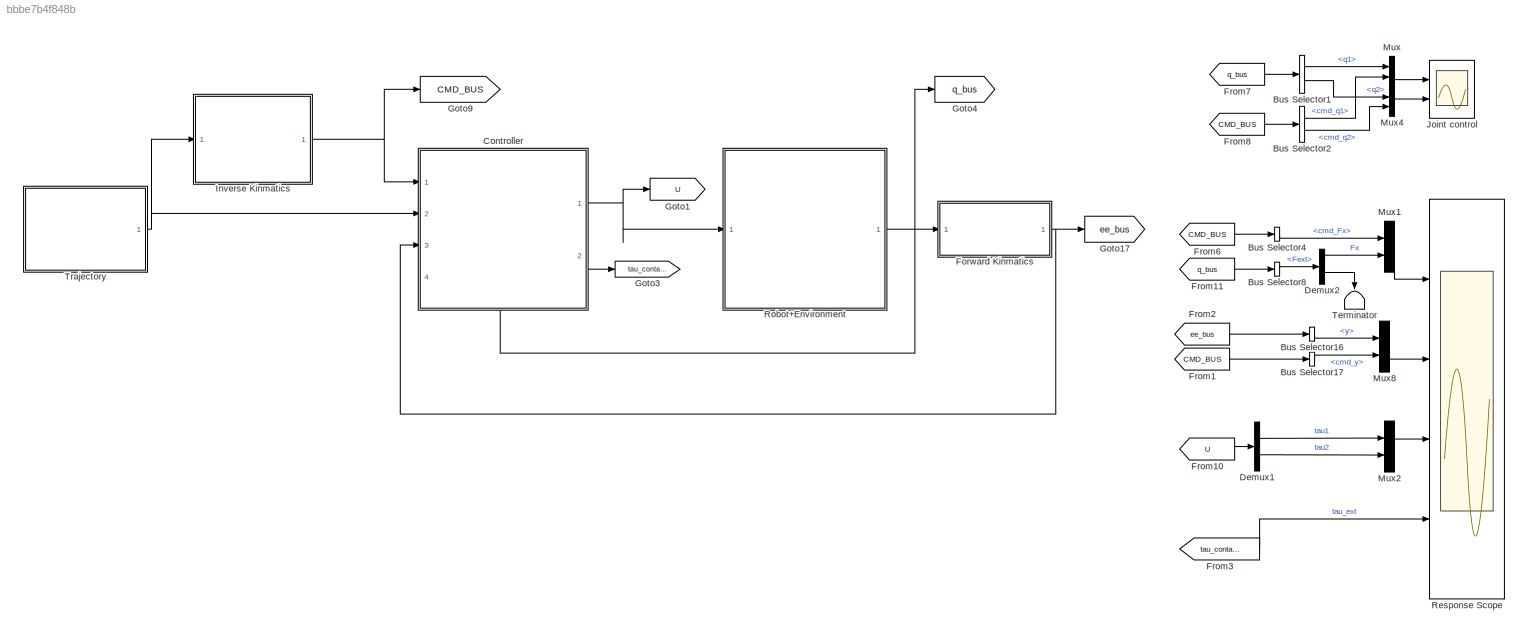
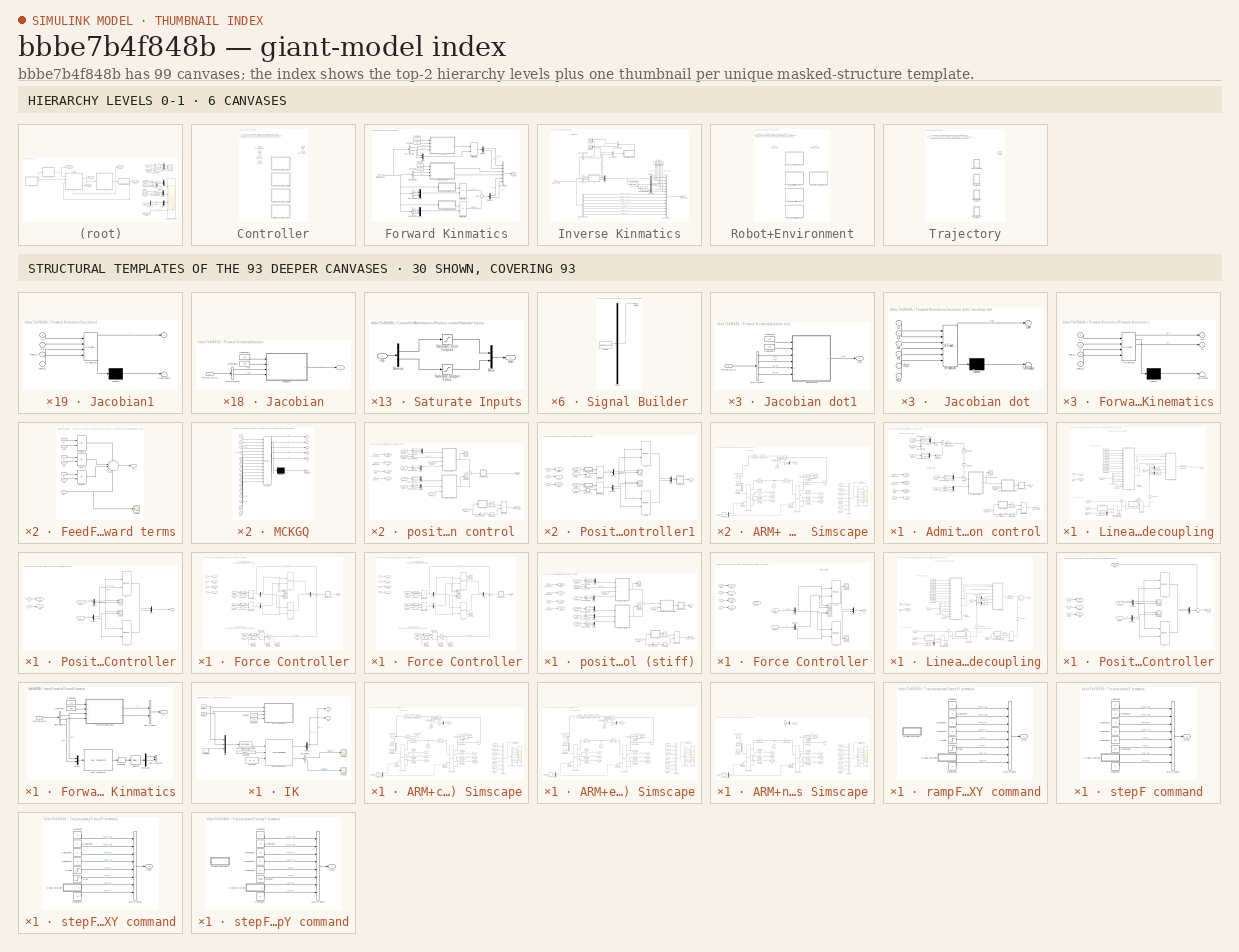
[diagram: thumbnail index - top-2 hierarchy levels (6 canvases) + 30 structural-template representatives of the remaining 93 canvases]
MODEL slx_bbbe7b4f848b
KIND model
CONFIG AbsTol = auto
CONFIG EnableMultiTasking = off
CONFIG FixedStep = auto
CONFIG MaxStep = 1e-2
CONFIG MinStep = auto
CONFIG RelTol = auto
CONFIG SampleTimeConstraint = Unconstrained
CONFIG SolverName = VariableStepAuto
CONFIG StartTime = 0.0
CONFIG StopTime = 15
BLOCK [BusSelector] Bus Selector1
  OutputSignals = q1,q2
  Ports = [1, 2]
BLOCK [BusSelector] Bus Selector16
  OutputSignals = y
  Ports = [1, 1]
BLOCK [BusSelector] Bus Selector17
  OutputSignals = cmd_y
  Ports = [1, 1]
BLOCK [BusSelector] Bus Selector2
  OutputSignals = cmd_q1,cmd_q2
  Ports = [1, 2]
BLOCK [BusSelector] Bus Selector4
  OutputSignals = cmd_Fx
  Ports = [1, 1]
BLOCK [BusSelector] Bus Selector8
  OutputSignals = Fext
  Ports = [1, 1]
BLOCK [SubSystem] Controller
  LabelModeActiveChoice = admittance_control
  PortSchema = {"entries":[{"content":{"sides":[{"content":{"connectorIds":["In1","In2","In3"]},"type":"ConnectorPlacement.EquallySpacedRectSide","uuid":"12e0e0c2-14f8-4f2c-9d40-c223a4f2431c"},{"content":{"connectorIds":["Out1","Out2"],"side":"RIGHT"},"type":"ConnectorPlacement.EquallySpacedRectSide","uuid":"b8197539-8519-4525-8d0f-ad401569c0d0"},{"content":{"connectorIds":[],"side":"TOP"},"type":"ConnectorPlace...<+408ch>
  Ports = [4, 2]
  PropagateVariantConditions = on
  RequestExecContextInheritance = off
  Variant = on
  VariantControlMode = label
BLOCK [SubSystem] Controller/Admittance+Position control
  Ports = [4, 2]
  RequestExecContextInheritance = off
  VariantControl = admittance_control
BLOCK [BusSelector] Controller/Admittance+Position control/Bus Selector10
  OutputSignals = Fext
  Ports = [1, 1]
BLOCK [BusSelector] Controller/Admittance+Position control/Bus Selector11
  OutputSignals = cmd_x,cmd_y
  Ports = [1, 2]
BLOCK [BusSelector] Controller/Admittance+Position control/Bus Selector12
  OutputSignals = x,y
  Ports = [1, 2]
BLOCK [BusSelector] Controller/Admittance+Position control/Bus Selector3
  OutputSignals = x_dd,y_dd
  Ports = [1, 2]
BLOCK [BusSelector] Controller/Admittance+Position control/Bus Selector5
  OutputSignals = Fext
  Ports = [1, 1]
BLOCK [BusSelector] Controller/Admittance+Position control/Bus Selector7
  OutputSignals = cmd_Fx,cmd_Fy
  Ports = [1, 2]
BLOCK [Inport] Controller/Admittance+Position control/CMD
  Port = 3
BLOCK [From] Controller/Admittance+Position control/From10
  GotoTag = X_CMD
BLOCK [From] Controller/Admittance+Position control/From17
  GotoTag = EE
BLOCK [From] Controller/Admittance+Position control/From2
  GotoTag = PLANT
BLOCK [From] Controller/Admittance+Position control/From4
  GotoTag = PLANT
BLOCK [From] Controller/Admittance+Position control/From5
  GotoTag = EE
BLOCK [From] Controller/Admittance+Position control/From7
  GotoTag = X_CMD
BLOCK [From] Controller/Admittance+Position control/From9
  GotoTag = PLANT
BLOCK [Goto] Controller/Admittance+Position control/Goto
  GotoTag = PLANT
BLOCK [Goto] Controller/Admittance+Position control/Goto1
  GotoTag = CMD
BLOCK [Goto] Controller/Admittance+Position control/Goto2
  GotoTag = X_CMD
BLOCK [Goto] Controller/Admittance+Position control/Goto3
  GotoTag = EE
BLOCK [Integrator] Controller/Admittance+Position control/Integrator1
  NameLocation = left
  Ports = [1, 1]
BLOCK [SubSystem] Controller/Admittance+Position control/Jacobian
  Ports = [1, 1]
  RequestExecContextInheritance = off
BLOCK [BusSelector] Controller/Admittance+Position control/Jacobian/Bus Selector
  OutputSignals = q1,q2
  Ports = [1, 2]
BLOCK [Constant] Controller/Admittance+Position control/Jacobian/Constant2
  Value = L1x
BLOCK [Constant] Controller/Admittance+Position control/Jacobian/Constant3
  Value = L2x
BLOCK [Outport] Controller/Admittance+Position control/Jacobian/J
BLOCK [SubSystem] Controller/Admittance+Position control/Jacobian/Jacobian
  ErrorFcn = Stateflow.Translate.translate
  NameLocation = top
  PermitHierarchicalResolution = ExplicitOnly
  Ports = [4, 1]
  RequestExecContextInheritance = off
  SFBlockType = MATLAB Function
  TreatAsAtomicUnit = on
BLOCK [Demux] Controller/Admittance+Position control/Jacobian/Jacobian/ Demux 
  Outputs = 1
  Ports = [1, 1]
BLOCK [S-Function] Controller/Admittance+Position control/Jacobian/Jacobian/ SFunction 
  EnableBusSupport = on
  FunctionName = sf_sfun
  PortCounts = [4 2]
  Ports = [4, 2]
  SFcnIsStateOwnerBlock = off
  SFunctionDeploymentMode = off
  Tag = Stateflow S-Function 12
BLOCK [Terminator] Controller/Admittance+Position control/Jacobian/Jacobian/ Terminator 
BLOCK [Outport] Controller/Admittance+Position control/Jacobian/Jacobian/J
BLOCK [Inport] Controller/Admittance+Position control/Jacobian/Jacobian/L_1
BLOCK [Inport] Controller/Admittance+Position control/Jacobian/Jacobian/L_2
  Port = 2
BLOCK [Inport] Controller/Admittance+Position control/Jacobian/Jacobian/theta_1
  Port = 3
BLOCK [Inport] Controller/Admittance+Position control/Jacobian/Jacobian/theta_2
  Port = 4
BLOCK [Inport] Controller/Admittance+Position control/Jacobian/MODEL_BUS
BLOCK [SubSystem] Controller/Admittance+Position control/Linearization and decoupling
  Ports = [2, 1]
  RequestExecContextInheritance = off
BLOCK [BusSelector] Controller/Admittance+Position control/Linearization and decoupling/Bus Selector14
  OutputSignals = q1_d,q2_d
  Ports = [1, 2]
BLOCK [BusSelector] Controller/Admittance+Position control/Linearization and decoupling/Bus Selector4
  OutputSignals = q1,q2,q1_d,q2_d
  Ports = [1, 4]
BLOCK [BusSelector] Controller/Admittance+Position control/Linearization and decoupling/Bus Selector5
  OutputSignals = q1,q2,q1_d,q2_d
  Ports = [1, 4]
BLOCK [Constant] Controller/Admittance+Position control/Linearization and decoupling/Constant
  Value = 0
BLOCK [Constant] Controller/Admittance+Position control/Linearization and decoupling/Constant15
  Value = b2
BLOCK [Constant] Controller/Admittance+Position control/Linearization and decoupling/Constant16
  Value = m1
BLOCK [Constant] Controller/Admittance+Position control/Linearization and decoupling/Constant17
  Value = g
BLOCK [Constant] Controller/Admittance+Position control/Linearization and decoupling/Constant18
  Value = m2
BLOCK [Constant] Controller/Admittance+Position control/Linearization and decoupling/Constant19
  Value = L1x
BLOCK [Constant] Controller/Admittance+Position control/Linearization and decoupling/Constant2
  Value = L2x
BLOCK [Constant] Controller/Admittance+Position control/Linearization and decoupling/Constant20
  Value = b1
BLOCK [Constant] Controller/Admittance+Position control/Linearization and decoupling/Constant6
  Value = L2y
BLOCK [Constant] Controller/Admittance+Position control/Linearization and decoupling/Constant7
  Value = L1y
BLOCK [SubSystem] Controller/Admittance+Position control/Linearization and decoupling/FeedForward terms
  PortSchema = {"entries":[{"content":{"sides":[{"content":{"connectorIds":["In1","In2","In3","In4","In5","In6"]},"type":"ConnectorPlacement.EquallySpacedRectSide","uuid":"236e7a2f-027c-4887-b3e9-bc0e11a59ec6"},{"content":{"connectorIds":["Out1"],"side":"RIGHT"},"type":"ConnectorPlacement.EquallySpacedRectSide","uuid":"0b727d96-7650-4ea0-95ac-5fb1bad7af10"},{"content":{"connectorIds":["In7"],"side":"TOP"},"type"...<+419ch>
  Ports = [7, 1]
  RequestExecContextInheritance = off
BLOCK [Inport] Controller/Admittance+Position control/Linearization and decoupling/FeedForward terms/C
  NameLocation = top
BLOCK [Inport] Controller/Admittance+Position control/Linearization and decoupling/FeedForward terms/G
  Port = 3
BLOCK [Inport] Controller/Admittance+Position control/Linearization and decoupling/FeedForward terms/K
  Port = 2
BLOCK [Inport] Controller/Admittance+Position control/Linearization and decoupling/FeedForward terms/M
  Port = 7
BLOCK [Product] Controller/Admittance+Position control/Linearization and decoupling/FeedForward terms/Product
  Multiplication = Matrix(*)
  Ports = [2, 1]
BLOCK [Product] Controller/Admittance+Position control/Linearization and decoupling/FeedForward terms/Product2
  Multiplication = Matrix(*)
  Ports = [2, 1]
BLOCK [Product] Controller/Admittance+Position control/Linearization and decoupling/FeedForward terms/Product3
  Multiplication = Matrix(*)
  Ports = [2, 1]
BLOCK [Outport] Controller/Admittance+Position control/Linearization and decoupling/FeedForward terms/Q
  NameLocation = top
BLOCK [Scope] Controller/Admittance+Position control/Linearization and decoupling/FeedForward terms/Scope
  Floating = off
  NumInputPorts = 1
  Ports = [1]
  ScopeSpecificationString = Simulink.scopes.TimeScopeBlockCfg('CurrentConfiguration', extmgr.ConfigurationSet(extmgr.Configuration('Core','General UI',true),extmgr.Configuration('Core','Source UI',true),extmgr.Configuration('Sources','WiredSimulink',true,'DataLoggingVariableName','ScopeData3'),extmgr.Configuration('Visuals','Time Domain',true,'SerializedDisplays',{struct('MinYLimReal','-2.62865','MaxYLimReal','17.45371','YLa...<+1363ch>
BLOCK [Sum] Controller/Admittance+Position control/Linearization and decoupling/FeedForward terms/Sum
  Inputs = +|+|+|+
  Ports = [4, 1]
BLOCK [Inport] Controller/Admittance+Position control/Linearization and decoupling/FeedForward terms/q
  Port = 4
BLOCK [Inport] Controller/Admittance+Position control/Linearization and decoupling/FeedForward terms/q_d
  Port = 5
BLOCK [Inport] Controller/Admittance+Position control/Linearization and decoupling/FeedForward terms/q_dd
  Port = 6
BLOCK [From] Controller/Admittance+Position control/Linearization and decoupling/From13
  GotoTag = PLANT
BLOCK [From] Controller/Admittance+Position control/Linearization and decoupling/From14
  GotoTag = PLANT
BLOCK [From] Controller/Admittance+Position control/Linearization and decoupling/From3
  GotoTag = PLANT
BLOCK [From] Controller/Admittance+Position control/Linearization and decoupling/From4
  GotoTag = Xdd
BLOCK [From] Controller/Admittance+Position control/Linearization and decoupling/From5
  GotoTag = PLANT
BLOCK [From] Controller/Admittance+Position control/Linearization and decoupling/From6
  GotoTag = PLANT
  NameLocation = top
BLOCK [Goto] Controller/Admittance+Position control/Linearization and decoupling/Goto
  GotoTag = PLANT
BLOCK [Goto] Controller/Admittance+Position control/Linearization and decoupling/Goto1
  GotoTag = Xdd
BLOCK [SubSystem] Controller/Admittance+Position control/Linearization and decoupling/Jacobian dot
  Ports = [1, 1]
  RequestExecContextInheritance = off
BLOCK [SubSystem] Controller/Admittance+Position control/Linearization and decoupling/Jacobian dot/ Jacobian dot
  ErrorFcn = Stateflow.Translate.translate
  NameLocation = top
  PermitHierarchicalResolution = ExplicitOnly
  Ports = [6, 1]
  RequestExecContextInheritance = off
  SFBlockType = MATLAB Function
  TreatAsAtomicUnit = on
BLOCK [Demux] Controller/Admittance+Position control/Linearization and decoupling/Jacobian dot/ Jacobian dot/ Demux 
  Outputs = 1
  Ports = [1, 1]
BLOCK [S-Function] Controller/Admittance+Position control/Linearization and decoupling/Jacobian dot/ Jacobian dot/ SFunction 
  EnableBusSupport = on
  FunctionName = sf_sfun
  PortCounts = [6 2]
  Ports = [6, 2]
  SFcnIsStateOwnerBlock = off
  SFunctionDeploymentMode = off
  Tag = Stateflow S-Function 14
BLOCK [Terminator] Controller/Admittance+Position control/Linearization and decoupling/Jacobian dot/ Jacobian dot/ Terminator 
BLOCK [Outport] Controller/Admittance+Position control/Linearization and decoupling/Jacobian dot/ Jacobian dot/J_dot
BLOCK [Inport] Controller/Admittance+Position control/Linearization and decoupling/Jacobian dot/ Jacobian dot/L_1
BLOCK [Inport] Controller/Admittance+Position control/Linearization and decoupling/Jacobian dot/ Jacobian dot/L_2
  Port = 2
BLOCK [Inport] Controller/Admittance+Position control/Linearization and decoupling/Jacobian dot/ Jacobian dot/th1
  Port = 3
BLOCK [Inport] Controller/Admittance+Position control/Linearization and decoupling/Jacobian dot/ Jacobian dot/th1_d
  Port = 5
BLOCK [Inport] Controller/Admittance+Position control/Linearization and decoupling/Jacobian dot/ Jacobian dot/th2
  Port = 4
BLOCK [Inport] Controller/Admittance+Position control/Linearization and decoupling/Jacobian dot/ Jacobian dot/th2_d
  Port = 6
BLOCK [BusSelector] Controller/Admittance+Position control/Linearization and decoupling/Jacobian dot/Bus Selector
  OutputSignals = q1,q2,q1_d,q2_d
  Ports = [1, 4]
BLOCK [Constant] Controller/Admittance+Position control/Linearization and decoupling/Jacobian dot/Constant2
  Value = L1x
BLOCK [Constant] Controller/Admittance+Position control/Linearization and decoupling/Jacobian dot/Constant3
  Value = L2x
BLOCK [Outport] Controller/Admittance+Position control/Linearization and decoupling/Jacobian dot/J_dot
BLOCK [Inport] Controller/Admittance+Position control/Linearization and decoupling/Jacobian dot/MODEL_BUS
BLOCK [SubSystem] Controller/Admittance+Position control/Linearization and decoupling/MCKGQ
  ErrorFcn = Stateflow.Translate.translate
  PermitHierarchicalResolution = ExplicitOnly
  Ports = [15, 5]
  RequestExecContextInheritance = off
  SFBlockType = MATLAB Function
  TreatAsAtomicUnit = on
BLOCK [Demux] Controller/Admittance+Position control/Linearization and decoupling/MCKGQ/ Demux 
  Outputs = 1
  Ports = [1, 1]
BLOCK [S-Function] Controller/Admittance+Position control/Linearization and decoupling/MCKGQ/ SFunction 
  EnableBusSupport = on
  FunctionName = sf_sfun
  PortCounts = [15 6]
  Ports = [15, 6]
  SFcnIsStateOwnerBlock = off
  SFunctionDeploymentMode = off
  Tag = Stateflow S-Function 18
BLOCK [Terminator] Controller/Admittance+Position control/Linearization and decoupling/MCKGQ/ Terminator 
BLOCK [Outport] Controller/Admittance+Position control/Linearization and decoupling/MCKGQ/C
  Port = 2
BLOCK [Outport] Controller/Admittance+Position control/Linearization and decoupling/MCKGQ/G
  Port = 4
BLOCK [Outport] Controller/Admittance+Position control/Linearization and decoupling/MCKGQ/K
  Port = 3
BLOCK [Inport] Controller/Admittance+Position control/Linearization and decoupling/MCKGQ/L_1x
BLOCK [Inport] Controller/Admittance+Position control/Linearization and decoupling/MCKGQ/L_1y
  Port = 2
BLOCK [Inport] Controller/Admittance+Position control/Linearization and decoupling/MCKGQ/L_2x
  Port = 3
BLOCK [Inport] Controller/Admittance+Position control/Linearization and decoupling/MCKGQ/L_2y
  Port = 4
BLOCK [Outport] Controller/Admittance+Position control/Linearization and decoupling/MCKGQ/M
BLOCK [Outport] Controller/Admittance+Position control/Linearization and decoupling/MCKGQ/Q
  Port = 5
BLOCK [Inport] Controller/Admittance+Position control/Linearization and decoupling/MCKGQ/b1
  Port = 5
BLOCK [Inport] Controller/Admittance+Position control/Linearization and decoupling/MCKGQ/b2
  Port = 6
BLOCK [Inport] Controller/Admittance+Position control/Linearization and decoupling/MCKGQ/g
  Port = 7
BLOCK [Inport] Controller/Admittance+Position control/Linearization and decoupling/MCKGQ/m1
  Port = 8
BLOCK [Inport] Controller/Admittance+Position control/Linearization and decoupling/MCKGQ/m2
  Port = 9
BLOCK [Inport] Controller/Admittance+Position control/Linearization and decoupling/MCKGQ/q1
  Port = 10
BLOCK [Inport] Controller/Admittance+Position control/Linearization and decoupling/MCKGQ/q1_D
  Port = 12
BLOCK [Inport] Controller/Admittance+Position control/Linearization and decoupling/MCKGQ/q2
  Port = 11
BLOCK [Inport] Controller/Admittance+Position control/Linearization and decoupling/MCKGQ/q2_D
  Port = 13
BLOCK [Inport] Controller/Admittance+Position control/Linearization and decoupling/MCKGQ/tau1
  Port = 14
BLOCK [Inport] Controller/Admittance+Position control/Linearization and decoupling/MCKGQ/tau2
  Port = 15
BLOCK [Product] Controller/Admittance+Position control/Linearization and decoupling/Matrix Multiply
  Multiplication = Matrix(*)
  Ports = [2, 1]
BLOCK [Product] Controller/Admittance+Position control/Linearization and decoupling/Matrix Multiply2
  Multiplication = Matrix(*)
  Ports = [2, 1]
BLOCK [Mux] Controller/Admittance+Position control/Linearization and decoupling/Mux1
  DisplayOption = bar
  Inputs = 2
  Ports = [2, 1]
BLOCK [Mux] Controller/Admittance+Position control/Linearization and decoupling/Mux2
  DisplayOption = bar
  Inputs = 2
  Ports = [2, 1]
BLOCK [Mux] Controller/Admittance+Position control/Linearization and decoupling/Mux7
  DisplayOption = bar
  Inputs = 2
  Ports = [2, 1]
BLOCK [Reshape] Controller/Admittance+Position control/Linearization and decoupling/Reshape3
  OutputDimensionality = Column vector (2-D)
  Ports = [1, 1]
BLOCK [Reshape] Controller/Admittance+Position control/Linearization and decoupling/Reshape4
  NameLocation = right
  OutputDimensionality = Column vector (2-D)
  Ports = [1, 1]
BLOCK [Reshape] Controller/Admittance+Position control/Linearization and decoupling/Reshape5
  OutputDimensionality = Column vector (2-D)
  Ports = [1, 1]
BLOCK [Scope] Controller/Admittance+Position control/Linearization and decoupling/Scope2
  Floating = off
  NameLocation = left
  NumInputPorts = 1
  Ports = [1]
  ScopeSpecificationString = Simulink.scopes.TimeScopeBlockCfg('CurrentConfiguration', extmgr.ConfigurationSet(extmgr.Configuration('Core','General UI',true),extmgr.Configuration('Core','Source UI',true),extmgr.Configuration('Sources','WiredSimulink',true,'DataLoggingVariableName','ScopeData2'),extmgr.Configuration('Visuals','Time Domain',true,'SerializedDisplays',{struct('MinYLimReal','-19.97717','MaxYLimReal','3.96256','YLa...<+1386ch>
BLOCK [Sum] Controller/Admittance+Position control/Linearization and decoupling/Sum
  Inputs = |+-
  Ports = [2, 1]
BLOCK [Terminator] Controller/Admittance+Position control/Linearization and decoupling/Terminator
BLOCK [Math] Controller/Admittance+Position control/Linearization and decoupling/Transpose3
  Operator = transpose
  Ports = [1, 1]
BLOCK [Inport] Controller/Admittance+Position control/Linearization and decoupling/a
BLOCK [SubSystem] Controller/Admittance+Position control/Linearization and decoupling/inverse jacobian
  PortSchema = {"entries":[{"content":{"sides":[{"content":{"connectorIds":[]},"type":"ConnectorPlacement.EquallySpacedRectSide","uuid":"45ce6a23-782c-403d-9b70-ff0b21a50873"},{"content":{"connectorIds":["Out1"],"side":"RIGHT"},"type":"ConnectorPlacement.EquallySpacedRectSide","uuid":"4a96e012-75b5-4df2-9421-657ae1fb9404"},{"content":{"connectorIds":["In1"],"side":"TOP"},"type":"ConnectorPlacement.EquallySpacedR...<+240ch>
  Ports = [1, 1]
  RequestExecContextInheritance = off
BLOCK [BusSelector] Controller/Admittance+Position control/Linearization and decoupling/inverse jacobian/Bus Selector
  OutputSignals = q1,q2
  Ports = [1, 2]
BLOCK [Constant] Controller/Admittance+Position control/Linearization and decoupling/inverse jacobian/Constant2
  Value = L1x
BLOCK [Constant] Controller/Admittance+Position control/Linearization and decoupling/inverse jacobian/Constant3
  Value = L2x
BLOCK [SubSystem] Controller/Admittance+Position control/Linearization and decoupling/inverse jacobian/Inverse Jacobian
  ErrorFcn = Stateflow.Translate.translate
  NameLocation = top
  PermitHierarchicalResolution = ExplicitOnly
  Ports = [4, 1]
  RequestExecContextInheritance = off
  SFBlockType = MATLAB Function
  TreatAsAtomicUnit = on
BLOCK [Demux] Controller/Admittance+Position control/Linearization and decoupling/inverse jacobian/Inverse Jacobian/ Demux 
  Outputs = 1
  Ports = [1, 1]
BLOCK [S-Function] Controller/Admittance+Position control/Linearization and decoupling/inverse jacobian/Inverse Jacobian/ SFunction 
  EnableBusSupport = on
  FunctionName = sf_sfun
  PortCounts = [4 2]
  Ports = [4, 2]
  SFcnIsStateOwnerBlock = off
  SFunctionDeploymentMode = off
  Tag = Stateflow S-Function 19
BLOCK [Terminator] Controller/Admittance+Position control/Linearization and decoupling/inverse jacobian/Inverse Jacobian/ Terminator 
BLOCK [Inport] Controller/Admittance+Position control/Linearization and decoupling/inverse jacobian/Inverse Jacobian/L_1
BLOCK [Inport] Controller/Admittance+Position control/Linearization and decoupling/inverse jacobian/Inverse Jacobian/L_2
  Port = 2
BLOCK [Outport] Controller/Admittance+Position control/Linearization and decoupling/inverse jacobian/Inverse Jacobian/inv_J
BLOCK [Inport] Controller/Admittance+Position control/Linearization and decoupling/inverse jacobian/Inverse Jacobian/th1
  Port = 3
BLOCK [Inport] Controller/Admittance+Position control/Linearization and decoupling/inverse jacobian/Inverse Jacobian/th2
  Port = 4
BLOCK [Inport] Controller/Admittance+Position control/Linearization and decoupling/inverse jacobian/MODEL_BUS
BLOCK [Outport] Controller/Admittance+Position control/Linearization and decoupling/inverse jacobian/inv_J
BLOCK [Inport] Controller/Admittance+Position control/Linearization and decoupling/plant
  Port = 2
BLOCK [Outport] Controller/Admittance+Position control/Linearization and decoupling/u
BLOCK [Product] Controller/Admittance+Position control/Matrix Multiply
  Multiplication = Matrix(*)
  Ports = [2, 1]
BLOCK [Mux] Controller/Admittance+Position control/Mux2
  DisplayOption = bar
  Inputs = 2
  Ports = [2, 1]
BLOCK [Mux] Controller/Admittance+Position control/Mux4
  DisplayOption = bar
  Inputs = 2
  Ports = [2, 1]
BLOCK [Mux] Controller/Admittance+Position control/Mux5
  DisplayOption = bar
  Inputs = 2
  Ports = [2, 1]
BLOCK [Mux] Controller/Admittance+Position control/Mux6
  DisplayOption = bar
  Inputs = 2
  Ports = [2, 1]
BLOCK [SubSystem] Controller/Admittance+Position control/Position Controller
  Ports = [2, 1]
  RequestExecContextInheritance = off
BLOCK [Reference] Controller/Admittance+Position control/Position Controller/C_q1  REF=pid_lib/PID Controller (2DOF)
  Ports = [2, 1]
  SourceBlock = pid_lib/PID Controller (2DOF)
  SourceProductBaseCode = SL
  SourceType = PID 2dof
BLOCK [Reference] Controller/Admittance+Position control/Position Controller/C_q2  REF=pid_lib/PID Controller (2DOF)
  Ports = [2, 1]
  SourceBlock = pid_lib/PID Controller (2DOF)
  SourceProductBaseCode = SL
  SourceType = PID 2dof
BLOCK [Demux] Controller/Admittance+Position control/Position Controller/Demux
  Outputs = 2
  Ports = [1, 2]
BLOCK [Demux] Controller/Admittance+Position control/Position Controller/Demux1
  Outputs = 2
  Ports = [1, 2]
BLOCK [From] Controller/Admittance+Position control/Position Controller/From10
  GotoTag = X
BLOCK [From] Controller/Admittance+Position control/Position Controller/From8
  GotoTag = Xd
BLOCK [Goto] Controller/Admittance+Position control/Position Controller/Goto1
  GotoTag = Xd
BLOCK [Goto] Controller/Admittance+Position control/Position Controller/Goto2
  GotoTag = X
BLOCK [Mux] Controller/Admittance+Position control/Position Controller/Mux
  DisplayOption = bar
  Inputs = 2
  Ports = [2, 1]
BLOCK [Scope] Controller/Admittance+Position control/Position Controller/Scope
  Floating = off
  NumInputPorts = 2
  Ports = [2]
  ScopeSpecificationString = Simulink.scopes.TimeScopeBlockCfg('CurrentConfiguration', extmgr.ConfigurationSet(extmgr.Configuration('Core','General UI',true),extmgr.Configuration('Core','Source UI',true),extmgr.Configuration('Sources','WiredSimulink',true,'DataLoggingVariableName','ScopeData3'),extmgr.Configuration('Visuals','Time Domain',true,'SerializedDisplays',{struct('MinYLimReal','-0.10937','MaxYLimReal','0.98435','YLab...<+1435ch>
BLOCK [Scope] Controller/Admittance+Position control/Position Controller/Scope2
  Floating = off
  NumInputPorts = 2
  Ports = [2]
  ScopeSpecificationString = Simulink.scopes.TimeScopeBlockCfg('CurrentConfiguration', extmgr.ConfigurationSet(extmgr.Configuration('Core','General UI',true),extmgr.Configuration('Core','Source UI',true),extmgr.Configuration('Sources','WiredSimulink',true,'DataLoggingVariableName','ScopeData5'),extmgr.Configuration('Visuals','Time Domain',true,'SerializedDisplays',{struct('MinYLimReal','-0.05403','MaxYLimReal','0.56156','YLab...<+1406ch>  <repeated x4 — deduplicated; at blocks: Scope2>
BLOCK [Inport] Controller/Admittance+Position control/Position Controller/X
  Port = 2
BLOCK [Inport] Controller/Admittance+Position control/Position Controller/X_d
BLOCK [Outport] Controller/Admittance+Position control/Position Controller/a
BLOCK [Reshape] Controller/Admittance+Position control/Reshape
  OutputDimensionality = Column vector (2-D)
  Ports = [1, 1]
BLOCK [SubSystem] Controller/Admittance+Position control/Saturate Inputs
  Ports = [1, 1]
  RequestExecContextInheritance = off
BLOCK [Demux] Controller/Admittance+Position control/Saturate Inputs/Demux
  Outputs = 2
  Ports = [1, 2]
BLOCK [Mux] Controller/Admittance+Position control/Saturate Inputs/Mux
  DisplayOption = bar
  Inputs = 2
  Ports = [2, 1]
BLOCK [Saturate] Controller/Admittance+Position control/Saturate Inputs/Saturate Gripper Force
  LowerLimit = -max_joint_torque2
  UpperLimit = max_joint_torque2
BLOCK [Saturate] Controller/Admittance+Position control/Saturate Inputs/Saturate Joint Torques
  LowerLimit = -max_joint_torque1
  UpperLimit = max_joint_torque1
BLOCK [Inport] Controller/Admittance+Position control/Saturate Inputs/inp
BLOCK [Outport] Controller/Admittance+Position control/Saturate Inputs/sat
  VectorParamsAs1DForOutWhenUnconnected = off
BLOCK [Scope] Controller/Admittance+Position control/Scope1
  Floating = off
  NumInputPorts = 1
  Ports = [1]
  ScopeSpecificationString = Simulink.scopes.TimeScopeBlockCfg('CurrentConfiguration', extmgr.ConfigurationSet(extmgr.Configuration('Core','General UI',true),extmgr.Configuration('Core','Source UI',true),extmgr.Configuration('Sources','WiredSimulink',true,'DataLoggingVariableName','ScopeData1'),extmgr.Configuration('Visuals','Time Domain',true,'SerializedDisplays',{struct('MinYLimReal','-1189.42272','MaxYLimReal','204.80447',...<+1476ch>
BLOCK [Gain] Controller/Admittance+Position control/Selection
  Gain = [1 0]
  NameLocation = left
BLOCK [Sum] Controller/Admittance+Position control/Sum
  Inputs = |+-
  Ports = [2, 1]
BLOCK [Sum] Controller/Admittance+Position control/Sum1
  Inputs = ++|
  Ports = [2, 1]
BLOCK [Sum] Controller/Admittance+Position control/Sum2
  Inputs = +|-
  Ports = [2, 1]
BLOCK [Math] Controller/Admittance+Position control/Transpose
  Operator = transpose
  Ports = [1, 1]
BLOCK [Gain] Controller/Admittance+Position control/Virtual Inertia
  Gain = Ma
BLOCK [Gain] Controller/Admittance+Position control/Virtual damping
  Gain = 1./Da
BLOCK [Inport] Controller/Admittance+Position control/ee_bus
  Port = 4
BLOCK [Inport] Controller/Admittance+Position control/plant_bus
  Port = 2
BLOCK [Inport] Controller/Admittance+Position control/q_cmd_bus
BLOCK [Outport] Controller/Admittance+Position control/tau
BLOCK [Outport] Controller/Admittance+Position control/tau_contact
  Port = 2
BLOCK [Inport] Controller/CMD
  Port = 2
BLOCK [SubSystem] Controller/Hybrid Force//position control 
  Ports = [4, 2]
  RequestExecContextInheritance = off
  VariantControl = low_stiffness_hybrid
BLOCK [SubSystem] Controller/Hybrid Force//position control (stiff)
  Ports = [4, 2]
  RequestExecContextInheritance = off
  VariantControl = high_stiffness_hybrid
BLOCK [BusSelector] Controller/Hybrid Force//position control (stiff)/Bus Selector10
  OutputSignals = Fext
  Ports = [1, 1]
BLOCK [BusSelector] Controller/Hybrid Force//position control (stiff)/Bus Selector11
  OutputSignals = cmd_x,cmd_y
  Ports = [1, 2]
BLOCK [BusSelector] Controller/Hybrid Force//position control (stiff)/Bus Selector12
  OutputSignals = x,y
  Ports = [1, 2]
BLOCK [BusSelector] Controller/Hybrid Force//position control (stiff)/Bus Selector3
  OutputSignals = x_dot,y_dot
  Ports = [1, 2]
BLOCK [BusSelector] Controller/Hybrid Force//position control (stiff)/Bus Selector6
  OutputSignals = cmd_Fx,cmd_Fy
  Ports = [1, 2]
BLOCK [BusSelector] Controller/Hybrid Force//position control (stiff)/Bus Selector9
  OutputSignals = Fext
  Ports = [1, 1]
BLOCK [Inport] Controller/Hybrid Force//position control (stiff)/CMD
  Port = 3
BLOCK [SubSystem] Controller/Hybrid Force//position control (stiff)/Force Controller
  Ports = [4, 1]
  RequestExecContextInheritance = off
BLOCK [Reference] Controller/Hybrid Force//position control (stiff)/Force Controller/C_q1  REF=pid_lib/PID Controller (2DOF)
  Ports = [2, 1]
  SourceBlock = pid_lib/PID Controller (2DOF)
  SourceProductBaseCode = SL
  SourceType = PID 2dof
BLOCK [Reference] Controller/Hybrid Force//position control (stiff)/Force Controller/C_q2  REF=pid_lib/PID Controller (2DOF)
  Ports = [2, 1]
  SourceBlock = pid_lib/PID Controller (2DOF)
  SourceProductBaseCode = SL
  SourceType = PID 2dof
BLOCK [Demux] Controller/Hybrid Force//position control (stiff)/Force Controller/Demux
  Outputs = 2
  Ports = [1, 2]
BLOCK [Demux] Controller/Hybrid Force//position control (stiff)/Force Controller/Demux1
  Outputs = 2
  Ports = [1, 2]
BLOCK [Inport] Controller/Hybrid Force//position control (stiff)/Force Controller/F
  Port = 2
BLOCK [Inport] Controller/Hybrid Force//position control (stiff)/Force Controller/Fd
BLOCK [SubSystem] Controller/Hybrid Force//position control (stiff)/Force Controller/Force Projection
  Ports = [1, 1]
  RequestExecContextInheritance = off
BLOCK [BusSelector] Controller/Hybrid Force//position control (stiff)/Force Controller/Force Projection/Bus Selector3
  OutputSignals = q1,q2
  Ports = [1, 2]
BLOCK [Constant] Controller/Hybrid Force//position control (stiff)/Force Controller/Force Projection/Constant1
  Value = L2x
BLOCK [Constant] Controller/Hybrid Force//position control (stiff)/Force Controller/Force Projection/Constant3
  Value = L1x
BLOCK [SubSystem] Controller/Hybrid Force//position control (stiff)/Force Controller/Force Projection/Force projection (StJ_t)
  ErrorFcn = Stateflow.Translate.translate
  NameLocation = top
  PermitHierarchicalResolution = ExplicitOnly
  Ports = [4, 1]
  RequestExecContextInheritance = off
  SFBlockType = MATLAB Function
  TreatAsAtomicUnit = on
BLOCK [Demux] Controller/Hybrid Force//position control (stiff)/Force Controller/Force Projection/Force projection (StJ_t)/ Demux 
  Outputs = 1
  Ports = [1, 1]
BLOCK [S-Function] Controller/Hybrid Force//position control (stiff)/Force Controller/Force Projection/Force projection (StJ_t)/ SFunction 
  EnableBusSupport = on
  FunctionName = sf_sfun
  PortCounts = [4 2]
  Ports = [4, 2]
  SFcnIsStateOwnerBlock = off
  SFunctionDeploymentMode = off
  Tag = Stateflow S-Function 2
BLOCK [Terminator] Controller/Hybrid Force//position control (stiff)/Force Controller/Force Projection/Force projection (StJ_t)/ Terminator 
BLOCK [Inport] Controller/Hybrid Force//position control (stiff)/Force Controller/Force Projection/Force projection (StJ_t)/L_1
BLOCK [Inport] Controller/Hybrid Force//position control (stiff)/Force Controller/Force Projection/Force projection (StJ_t)/L_2
  Port = 2
BLOCK [Outport] Controller/Hybrid Force//position control (stiff)/Force Controller/Force Projection/Force projection (StJ_t)/StJ_t
BLOCK [Inport] Controller/Hybrid Force//position control (stiff)/Force Controller/Force Projection/Force projection (StJ_t)/theta_1
  Port = 3
BLOCK [Inport] Controller/Hybrid Force//position control (stiff)/Force Controller/Force Projection/Force projection (StJ_t)/theta_2
  Port = 4
BLOCK [Outport] Controller/Hybrid Force//position control (stiff)/Force Controller/Force Projection/P_force
BLOCK [Inport] Controller/Hybrid Force//position control (stiff)/Force Controller/Force Projection/q
BLOCK [SubSystem] Controller/Hybrid Force//position control (stiff)/Force Controller/Force Projection1
  Ports = [1, 1]
  RequestExecContextInheritance = off
BLOCK [BusSelector] Controller/Hybrid Force//position control (stiff)/Force Controller/Force Projection1/Bus Selector3
  OutputSignals = q1,q2
  Ports = [1, 2]
BLOCK [Constant] Controller/Hybrid Force//position control (stiff)/Force Controller/Force Projection1/Constant1
  Value = L2x
BLOCK [Constant] Controller/Hybrid Force//position control (stiff)/Force Controller/Force Projection1/Constant3
  Value = L1x
BLOCK [SubSystem] Controller/Hybrid Force//position control (stiff)/Force Controller/Force Projection1/Force projection (StJ_t)
  ErrorFcn = Stateflow.Translate.translate
  NameLocation = top
  PermitHierarchicalResolution = ExplicitOnly
  Ports = [4, 1]
  RequestExecContextInheritance = off
  SFBlockType = MATLAB Function
  TreatAsAtomicUnit = on
BLOCK [Demux] Controller/Hybrid Force//position control (stiff)/Force Controller/Force Projection1/Force projection (StJ_t)/ Demux 
  Outputs = 1
  Ports = [1, 1]
BLOCK [S-Function] Controller/Hybrid Force//position control (stiff)/Force Controller/Force Projection1/Force projection (StJ_t)/ SFunction 
  EnableBusSupport = on
  FunctionName = sf_sfun
  PortCounts = [4 2]
  Ports = [4, 2]
  SFcnIsStateOwnerBlock = off
  SFunctionDeploymentMode = off
  Tag = Stateflow S-Function 3
BLOCK [Terminator] Controller/Hybrid Force//position control (stiff)/Force Controller/Force Projection1/Force projection (StJ_t)/ Terminator 
BLOCK [Inport] Controller/Hybrid Force//position control (stiff)/Force Controller/Force Projection1/Force projection (StJ_t)/L_1
BLOCK [Inport] Controller/Hybrid Force//position control (stiff)/Force Controller/Force Projection1/Force projection (StJ_t)/L_2
  Port = 2
BLOCK [Outport] Controller/Hybrid Force//position control (stiff)/Force Controller/Force Projection1/Force projection (StJ_t)/StJ_t
BLOCK [Inport] Controller/Hybrid Force//position control (stiff)/Force Controller/Force Projection1/Force projection (StJ_t)/theta_1
  Port = 3
BLOCK [Inport] Controller/Hybrid Force//position control (stiff)/Force Controller/Force Projection1/Force projection (StJ_t)/theta_2
  Port = 4
BLOCK [Outport] Controller/Hybrid Force//position control (stiff)/Force Controller/Force Projection1/P_force
BLOCK [Inport] Controller/Hybrid Force//position control (stiff)/Force Controller/Force Projection1/q
BLOCK [SubSystem] Controller/Hybrid Force//position control (stiff)/Force Controller/Force Projection2
  Ports = [1, 1]
  RequestExecContextInheritance = off
BLOCK [BusSelector] Controller/Hybrid Force//position control (stiff)/Force Controller/Force Projection2/Bus Selector3
  OutputSignals = q1,q2
  Ports = [1, 2]
BLOCK [Constant] Controller/Hybrid Force//position control (stiff)/Force Controller/Force Projection2/Constant1
  Value = L2x
BLOCK [Constant] Controller/Hybrid Force//position control (stiff)/Force Controller/Force Projection2/Constant3
  Value = L1x
BLOCK [SubSystem] Controller/Hybrid Force//position control (stiff)/Force Controller/Force Projection2/Force projection (StJ_t)
  ErrorFcn = Stateflow.Translate.translate
  NameLocation = top
  PermitHierarchicalResolution = ExplicitOnly
  Ports = [4, 1]
  RequestExecContextInheritance = off
  SFBlockType = MATLAB Function
  TreatAsAtomicUnit = on
BLOCK [Demux] Controller/Hybrid Force//position control (stiff)/Force Controller/Force Projection2/Force projection (StJ_t)/ Demux 
  Outputs = 1
  Ports = [1, 1]
BLOCK [S-Function] Controller/Hybrid Force//position control (stiff)/Force Controller/Force Projection2/Force projection (StJ_t)/ SFunction 
  EnableBusSupport = on
  FunctionName = sf_sfun
  PortCounts = [4 2]
  Ports = [4, 2]
  SFcnIsStateOwnerBlock = off
  SFunctionDeploymentMode = off
  Tag = Stateflow S-Function 4
BLOCK [Terminator] Controller/Hybrid Force//position control (stiff)/Force Controller/Force Projection2/Force projection (StJ_t)/ Terminator 
BLOCK [Inport] Controller/Hybrid Force//position control (stiff)/Force Controller/Force Projection2/Force projection (StJ_t)/L_1
BLOCK [Inport] Controller/Hybrid Force//position control (stiff)/Force Controller/Force Projection2/Force projection (StJ_t)/L_2
  Port = 2
BLOCK [Outport] Controller/Hybrid Force//position control (stiff)/Force Controller/Force Projection2/Force projection (StJ_t)/StJ_t
BLOCK [Inport] Controller/Hybrid Force//position control (stiff)/Force Controller/Force Projection2/Force projection (StJ_t)/theta_1
  Port = 3
BLOCK [Inport] Controller/Hybrid Force//position control (stiff)/Force Controller/Force Projection2/Force projection (StJ_t)/theta_2
  Port = 4
BLOCK [Outport] Controller/Hybrid Force//position control (stiff)/Force Controller/Force Projection2/P_force
BLOCK [Inport] Controller/Hybrid Force//position control (stiff)/Force Controller/Force Projection2/q
BLOCK [From] Controller/Hybrid Force//position control (stiff)/Force Controller/From1
  GotoTag = V
BLOCK [From] Controller/Hybrid Force//position control (stiff)/Force Controller/From11
  GotoTag = PLANT
BLOCK [From] Controller/Hybrid Force//position control (stiff)/Force Controller/From12
  GotoTag = F
BLOCK [From] Controller/Hybrid Force//position control (stiff)/Force Controller/From2
  GotoTag = PLANT
BLOCK [From] Controller/Hybrid Force//position control (stiff)/Force Controller/From8
  GotoTag = Fd
BLOCK [From] Controller/Hybrid Force//position control (stiff)/Force Controller/From9
  GotoTag = PLANT
BLOCK [Gain] Controller/Hybrid Force//position control (stiff)/Force Controller/Gain
  Gain = Kf_v2
BLOCK [Goto] Controller/Hybrid Force//position control (stiff)/Force Controller/Goto
  GotoTag = PLANT
BLOCK [Goto] Controller/Hybrid Force//position control (stiff)/Force Controller/Goto1
  GotoTag = Fd
BLOCK [Goto] Controller/Hybrid Force//position control (stiff)/Force Controller/Goto2
  GotoTag = F
BLOCK [Goto] Controller/Hybrid Force//position control (stiff)/Force Controller/Goto3
  GotoTag = V
BLOCK [Product] Controller/Hybrid Force//position control (stiff)/Force Controller/Matrix Multiply
  Multiplication = Matrix(*)
  Ports = [2, 1]
BLOCK [Product] Controller/Hybrid Force//position control (stiff)/Force Controller/Matrix Multiply1
  Multiplication = Matrix(*)
  Ports = [2, 1]
BLOCK [Product] Controller/Hybrid Force//position control (stiff)/Force Controller/Matrix Multiply2
  Multiplication = Matrix(*)
  Ports = [2, 1]
BLOCK [Mux] Controller/Hybrid Force//position control (stiff)/Force Controller/Mux
  DisplayOption = bar
  Inputs = 2
  Ports = [2, 1]
BLOCK [Reshape] Controller/Hybrid Force//position control (stiff)/Force Controller/Reshape
  OutputDimensionality = Column vector (2-D)
  Ports = [1, 1]
BLOCK [Reshape] Controller/Hybrid Force//position control (stiff)/Force Controller/Reshape1
  OutputDimensionality = Column vector (2-D)
  Ports = [1, 1]
BLOCK [Reshape] Controller/Hybrid Force//position control (stiff)/Force Controller/Reshape2
  OutputDimensionality = Column vector (2-D)
  Ports = [1, 1]
BLOCK [SubSystem] Controller/Hybrid Force//position control (stiff)/Force Controller/Saturate Inputs
  Ports = [1, 1]
  RequestExecContextInheritance = off
BLOCK [Demux] Controller/Hybrid Force//position control (stiff)/Force Controller/Saturate Inputs/Demux
  Outputs = 2
  Ports = [1, 2]
BLOCK [Mux] Controller/Hybrid Force//position control (stiff)/Force Controller/Saturate Inputs/Mux
  DisplayOption = bar
  Inputs = 2
  Ports = [2, 1]
BLOCK [Saturate] Controller/Hybrid Force//position control (stiff)/Force Controller/Saturate Inputs/Saturate Gripper Force
  LowerLimit = -max_joint_torque2
  UpperLimit = max_joint_torque2
BLOCK [Saturate] Controller/Hybrid Force//position control (stiff)/Force Controller/Saturate Inputs/Saturate Joint Torques
  LowerLimit = -max_joint_torque1
  UpperLimit = max_joint_torque1
BLOCK [Inport] Controller/Hybrid Force//position control (stiff)/Force Controller/Saturate Inputs/inp
BLOCK [Outport] Controller/Hybrid Force//position control (stiff)/Force Controller/Saturate Inputs/sat
  VectorParamsAs1DForOutWhenUnconnected = off
BLOCK [Scope] Controller/Hybrid Force//position control (stiff)/Force Controller/Scope
  Floating = off
  NumInputPorts = 2
  Ports = [2]
  ScopeSpecificationString = Simulink.scopes.TimeScopeBlockCfg('CurrentConfiguration', extmgr.ConfigurationSet(extmgr.Configuration('Core','General UI',true),extmgr.Configuration('Core','Source UI',true),extmgr.Configuration('Sources','WiredSimulink',true,'DataLoggingVariableName','ScopeData7'),extmgr.Configuration('Visuals','Time Domain',true,'SerializedDisplays',{struct('MinYLimReal','-37.89889','MaxYLimReal','22.24608','YL...<+1465ch>
BLOCK [Scope] Controller/Hybrid Force//position control (stiff)/Force Controller/Scope1
  Floating = off
  NumInputPorts = 2
  Ports = [2]
  ScopeSpecificationString = Simulink.scopes.TimeScopeBlockCfg('CurrentConfiguration', extmgr.ConfigurationSet(extmgr.Configuration('Core','General UI',true),extmgr.Configuration('Core','Source UI',true),extmgr.Configuration('Sources','WiredSimulink',true,'DataLoggingVariableName','ScopeData8'),extmgr.Configuration('Visuals','Time Domain',true,'SerializedDisplays',{struct('MinYLimReal','-22.9648','MaxYLimReal','206.68317','YL...<+1377ch>
BLOCK [Scope] Controller/Hybrid Force//position control (stiff)/Force Controller/Scope2
  Floating = off
  NumInputPorts = 1
  Ports = [1]
  ScopeSpecificationString = Simulink.scopes.TimeScopeBlockCfg('CurrentConfiguration', extmgr.ConfigurationSet(extmgr.Configuration('Core','General UI',true),extmgr.Configuration('Core','Source UI',true),extmgr.Configuration('Sources','WiredSimulink',true,'DataLoggingVariableName','ScopeData1'),extmgr.Configuration('Visuals','Time Domain',true,'SerializedDisplays',{struct('MinYLimReal','-0.01179','MaxYLimReal','0.01702','YLab...<+1386ch>
BLOCK [Scope] Controller/Hybrid Force//position control (stiff)/Force Controller/Scope3
  Floating = off
  NumInputPorts = 1
  Ports = [1]
  ScopeSpecificationString = Simulink.scopes.TimeScopeBlockCfg('CurrentConfiguration', extmgr.ConfigurationSet(extmgr.Configuration('Core','General UI',true),extmgr.Configuration('Core','Source UI',true),extmgr.Configuration('Sources','WiredSimulink',true,'DataLoggingVariableName','ScopeData2'),extmgr.Configuration('Visuals','Time Domain',true,'SerializedDisplays',{struct('MinYLimReal','-0.55836','MaxYLimReal','0.277','YLabel...<+1364ch>
BLOCK [Scope] Controller/Hybrid Force//position control (stiff)/Force Controller/Scope4
  Floating = off
  NumInputPorts = 1
  Ports = [1]
  ScopeSpecificationString = Simulink.scopes.TimeScopeBlockCfg('CurrentConfiguration', extmgr.ConfigurationSet(extmgr.Configuration('Core','General UI',true),extmgr.Configuration('Core','Source UI',true),extmgr.Configuration('Sources','WiredSimulink',true,'DataLoggingVariableName','ScopeData3'),extmgr.Configuration('Visuals','Time Domain',true,'SerializedDisplays',{struct('MinYLimReal','-0.083','MaxYLimReal','0.1663','YLabelR...<+1388ch>
BLOCK [Scope] Controller/Hybrid Force//position control (stiff)/Force Controller/Scope5
  Floating = off
  NumInputPorts = 1
  Ports = [1]
  ScopeSpecificationString = Simulink.scopes.TimeScopeBlockCfg('CurrentConfiguration', extmgr.ConfigurationSet(extmgr.Configuration('Core','General UI',true),extmgr.Configuration('Core','Source UI',true),extmgr.Configuration('Sources','WiredSimulink',true,'DataLoggingVariableName','ScopeData1'),extmgr.Configuration('Visuals','Time Domain',true,'SerializedDisplays',{struct('MinYLimReal','-1.00000','MaxYLimReal','1.00000','YLab...<+1386ch>
BLOCK [Scope] Controller/Hybrid Force//position control (stiff)/Force Controller/Scope6
  Floating = off
  NumInputPorts = 1
  Ports = [1]
  ScopeSpecificationString = Simulink.scopes.TimeScopeBlockCfg('CurrentConfiguration', extmgr.ConfigurationSet(extmgr.Configuration('Core','General UI',true),extmgr.Configuration('Core','Source UI',true),extmgr.Configuration('Sources','WiredSimulink',true,'DataLoggingVariableName','ScopeData2'),extmgr.Configuration('Visuals','Time Domain',true,'SerializedDisplays',{struct('MinYLimReal','-1.00000','MaxYLimReal','1.00000','YLab...<+1386ch>
BLOCK [Sum] Controller/Hybrid Force//position control (stiff)/Force Controller/Sum
  Inputs = ++-
  Ports = [3, 1]
BLOCK [Inport] Controller/Hybrid Force//position control (stiff)/Force Controller/V
  Port = 4
BLOCK [Inport] Controller/Hybrid Force//position control (stiff)/Force Controller/q
  Port = 3
BLOCK [Outport] Controller/Hybrid Force//position control (stiff)/Force Controller/tau
BLOCK [From] Controller/Hybrid Force//position control (stiff)/From10
  GotoTag = X_CMD
BLOCK [From] Controller/Hybrid Force//position control (stiff)/From11
  GotoTag = X_CMD
BLOCK [From] Controller/Hybrid Force//position control (stiff)/From12
  GotoTag = PLANT
BLOCK [From] Controller/Hybrid Force//position control (stiff)/From13
  GotoTag = EE
BLOCK [From] Controller/Hybrid Force//position control (stiff)/From17
  GotoTag = EE
BLOCK [From] Controller/Hybrid Force//position control (stiff)/From18
  GotoTag = PLANT
BLOCK [From] Controller/Hybrid Force//position control (stiff)/From4
  GotoTag = PLANT
BLOCK [From] Controller/Hybrid Force//position control (stiff)/From9
  GotoTag = PLANT
BLOCK [Goto] Controller/Hybrid Force//position control (stiff)/Goto
  GotoTag = PLANT
BLOCK [Goto] Controller/Hybrid Force//position control (stiff)/Goto1
  GotoTag = CMD
BLOCK [Goto] Controller/Hybrid Force//position control (stiff)/Goto2
  GotoTag = X_CMD
BLOCK [Goto] Controller/Hybrid Force//position control (stiff)/Goto3
  GotoTag = EE
BLOCK [SubSystem] Controller/Hybrid Force//position control (stiff)/Jacobian
  Ports = [1, 1]
  RequestExecContextInheritance = off
BLOCK [BusSelector] Controller/Hybrid Force//position control (stiff)/Jacobian/Bus Selector
  OutputSignals = q1,q2
  Ports = [1, 2]
BLOCK [Constant] Controller/Hybrid Force//position control (stiff)/Jacobian/Constant2
  Value = L1x
BLOCK [Constant] Controller/Hybrid Force//position control (stiff)/Jacobian/Constant3
  Value = L2x
BLOCK [Outport] Controller/Hybrid Force//position control (stiff)/Jacobian/J
BLOCK [SubSystem] Controller/Hybrid Force//position control (stiff)/Jacobian/Jacobian
  ErrorFcn = Stateflow.Translate.translate
  NameLocation = top
  PermitHierarchicalResolution = ExplicitOnly
  Ports = [4, 1]
  RequestExecContextInheritance = off
  SFBlockType = MATLAB Function
  TreatAsAtomicUnit = on
BLOCK [Demux] Controller/Hybrid Force//position control (stiff)/Jacobian/Jacobian/ Demux 
  Outputs = 1
  Ports = [1, 1]
BLOCK [S-Function] Controller/Hybrid Force//position control (stiff)/Jacobian/Jacobian/ SFunction 
  EnableBusSupport = on
  FunctionName = sf_sfun
  PortCounts = [4 2]
  Ports = [4, 2]
  SFcnIsStateOwnerBlock = off
  SFunctionDeploymentMode = off
  Tag = Stateflow S-Function 5
BLOCK [Terminator] Controller/Hybrid Force//position control (stiff)/Jacobian/Jacobian/ Terminator 
BLOCK [Outport] Controller/Hybrid Force//position control (stiff)/Jacobian/Jacobian/J
BLOCK [Inport] Controller/Hybrid Force//position control (stiff)/Jacobian/Jacobian/L_1
BLOCK [Inport] Controller/Hybrid Force//position control (stiff)/Jacobian/Jacobian/L_2
  Port = 2
BLOCK [Inport] Controller/Hybrid Force//position control (stiff)/Jacobian/Jacobian/theta_1
  Port = 3
BLOCK [Inport] Controller/Hybrid Force//position control (stiff)/Jacobian/Jacobian/theta_2
  Port = 4
BLOCK [Inport] Controller/Hybrid Force//position control (stiff)/Jacobian/MODEL_BUS
BLOCK [Product] Controller/Hybrid Force//position control (stiff)/Matrix Multiply
  Multiplication = Matrix(*)
  Ports = [2, 1]
BLOCK [Mux] Controller/Hybrid Force//position control (stiff)/Mux4
  DisplayOption = bar
  Inputs = 2
  Ports = [2, 1]
BLOCK [Mux] Controller/Hybrid Force//position control (stiff)/Mux5
  DisplayOption = bar
  Inputs = 2
  Ports = [2, 1]
BLOCK [Mux] Controller/Hybrid Force//position control (stiff)/Mux6
  DisplayOption = bar
  Inputs = 2
  Ports = [2, 1]
BLOCK [Mux] Controller/Hybrid Force//position control (stiff)/Mux8
  DisplayOption = bar
  Inputs = 2
  Ports = [2, 1]
BLOCK [SubSystem] Controller/Hybrid Force//position control (stiff)/Position Controller1
  Ports = [3, 1]
  RequestExecContextInheritance = off
BLOCK [Reference] Controller/Hybrid Force//position control (stiff)/Position Controller1/C_q1  REF=pid_lib/PID Controller (2DOF)
  Ports = [2, 1]
  SourceBlock = pid_lib/PID Controller (2DOF)
  SourceProductBaseCode = SL
  SourceType = PID 2dof
BLOCK [Reference] Controller/Hybrid Force//position control (stiff)/Position Controller1/C_q2  REF=pid_lib/PID Controller (2DOF)
  Ports = [2, 1]
  SourceBlock = pid_lib/PID Controller (2DOF)
  SourceProductBaseCode = SL
  SourceType = PID 2dof
BLOCK [Demux] Controller/Hybrid Force//position control (stiff)/Position Controller1/Demux
  Outputs = 2
  Ports = [1, 2]
BLOCK [Demux] Controller/Hybrid Force//position control (stiff)/Position Controller1/Demux1
  Outputs = 2
  Ports = [1, 2]
BLOCK [From] Controller/Hybrid Force//position control (stiff)/Position Controller1/From10
  GotoTag = X
BLOCK [From] Controller/Hybrid Force//position control (stiff)/Position Controller1/From11
  GotoTag = PLANT
BLOCK [From] Controller/Hybrid Force//position control (stiff)/Position Controller1/From8
  GotoTag = Xd
BLOCK [From] Controller/Hybrid Force//position control (stiff)/Position Controller1/From9
  GotoTag = PLANT
BLOCK [Goto] Controller/Hybrid Force//position control (stiff)/Position Controller1/Goto
  GotoTag = PLANT
BLOCK [Goto] Controller/Hybrid Force//position control (stiff)/Position Controller1/Goto1
  GotoTag = Xd
BLOCK [Goto] Controller/Hybrid Force//position control (stiff)/Position Controller1/Goto2
  GotoTag = X
BLOCK [Product] Controller/Hybrid Force//position control (stiff)/Position Controller1/Matrix Multiply
  Multiplication = Matrix(*)
  Ports = [2, 1]
BLOCK [Product] Controller/Hybrid Force//position control (stiff)/Position Controller1/Matrix Multiply1
  Multiplication = Matrix(*)
  Ports = [2, 1]
BLOCK [Mux] Controller/Hybrid Force//position control (stiff)/Position Controller1/Mux
  DisplayOption = bar
  Inputs = 2
  Ports = [2, 1]
BLOCK [SubSystem] Controller/Hybrid Force//position control (stiff)/Position Controller1/Position Projection
  Ports = [1, 1]
  RequestExecContextInheritance = off
BLOCK [BusSelector] Controller/Hybrid Force//position control (stiff)/Position Controller1/Position Projection/Bus Selector3
  OutputSignals = q1,q2
  Ports = [1, 2]
BLOCK [Constant] Controller/Hybrid Force//position control (stiff)/Position Controller1/Position Projection/Constant1
  Value = L2x
BLOCK [Constant] Controller/Hybrid Force//position control (stiff)/Position Controller1/Position Projection/Constant3
  Value = L1x
BLOCK [Outport] Controller/Hybrid Force//position control (stiff)/Position Controller1/Position Projection/P_pos
BLOCK [SubSystem] Controller/Hybrid Force//position control (stiff)/Position Controller1/Position Projection/Position projection (SJ)+
  ErrorFcn = Stateflow.Translate.translate
  NameLocation = top
  PermitHierarchicalResolution = ExplicitOnly
  Ports = [4, 1]
  RequestExecContextInheritance = off
  SFBlockType = MATLAB Function
  TreatAsAtomicUnit = on
BLOCK [Demux] Controller/Hybrid Force//position control (stiff)/Position Controller1/Position Projection/Position projection (SJ)+/ Demux 
  Outputs = 1
  Ports = [1, 1]
BLOCK [S-Function] Controller/Hybrid Force//position control (stiff)/Position Controller1/Position Projection/Position projection (SJ)+/ SFunction 
  EnableBusSupport = on
  FunctionName = sf_sfun
  PortCounts = [4 2]
  Ports = [4, 2]
  SFcnIsStateOwnerBlock = off
  SFunctionDeploymentMode = off
  Tag = Stateflow S-Function 7
BLOCK [Terminator] Controller/Hybrid Force//position control (stiff)/Position Controller1/Position Projection/Position projection (SJ)+/ Terminator 
BLOCK [Inport] Controller/Hybrid Force//position control (stiff)/Position Controller1/Position Projection/Position projection (SJ)+/L_1
BLOCK [Inport] Controller/Hybrid Force//position control (stiff)/Position Controller1/Position Projection/Position projection (SJ)+/L_2
  Port = 2
BLOCK [Outport] Controller/Hybrid Force//position control (stiff)/Position Controller1/Position Projection/Position projection (SJ)+/SJ_pinv
BLOCK [Inport] Controller/Hybrid Force//position control (stiff)/Position Controller1/Position Projection/Position projection (SJ)+/theta_1
  Port = 3
BLOCK [Inport] Controller/Hybrid Force//position control (stiff)/Position Controller1/Position Projection/Position projection (SJ)+/theta_2
  Port = 4
BLOCK [Inport] Controller/Hybrid Force//position control (stiff)/Position Controller1/Position Projection/q
BLOCK [SubSystem] Controller/Hybrid Force//position control (stiff)/Position Controller1/Position Projection1
  Ports = [1, 1]
  RequestExecContextInheritance = off
BLOCK [BusSelector] Controller/Hybrid Force//position control (stiff)/Position Controller1/Position Projection1/Bus Selector3
  OutputSignals = q1,q2
  Ports = [1, 2]
BLOCK [Constant] Controller/Hybrid Force//position control (stiff)/Position Controller1/Position Projection1/Constant1
  Value = L2x
BLOCK [Constant] Controller/Hybrid Force//position control (stiff)/Position Controller1/Position Projection1/Constant3
  Value = L1x
BLOCK [Outport] Controller/Hybrid Force//position control (stiff)/Position Controller1/Position Projection1/P_pos
BLOCK [SubSystem] Controller/Hybrid Force//position control (stiff)/Position Controller1/Position Projection1/Position projection (SJ)+
  ErrorFcn = Stateflow.Translate.translate
  NameLocation = top
  PermitHierarchicalResolution = ExplicitOnly
  Ports = [4, 1]
  RequestExecContextInheritance = off
  SFBlockType = MATLAB Function
  TreatAsAtomicUnit = on
BLOCK [Demux] Controller/Hybrid Force//position control (stiff)/Position Controller1/Position Projection1/Position projection (SJ)+/ Demux 
  Outputs = 1
  Ports = [1, 1]
BLOCK [S-Function] Controller/Hybrid Force//position control (stiff)/Position Controller1/Position Projection1/Position projection (SJ)+/ SFunction 
  EnableBusSupport = on
  FunctionName = sf_sfun
  PortCounts = [4 2]
  Ports = [4, 2]
  SFcnIsStateOwnerBlock = off
  SFunctionDeploymentMode = off
  Tag = Stateflow S-Function 8
BLOCK [Terminator] Controller/Hybrid Force//position control (stiff)/Position Controller1/Position Projection1/Position projection (SJ)+/ Terminator 
BLOCK [Inport] Controller/Hybrid Force//position control (stiff)/Position Controller1/Position Projection1/Position projection (SJ)+/L_1
BLOCK [Inport] Controller/Hybrid Force//position control (stiff)/Position Controller1/Position Projection1/Position projection (SJ)+/L_2
  Port = 2
BLOCK [Outport] Controller/Hybrid Force//position control (stiff)/Position Controller1/Position Projection1/Position projection (SJ)+/SJ_pinv
BLOCK [Inport] Controller/Hybrid Force//position control (stiff)/Position Controller1/Position Projection1/Position projection (SJ)+/theta_1
  Port = 3
BLOCK [Inport] Controller/Hybrid Force//position control (stiff)/Position Controller1/Position Projection1/Position projection (SJ)+/theta_2
  Port = 4
BLOCK [Inport] Controller/Hybrid Force//position control (stiff)/Position Controller1/Position Projection1/q
BLOCK [Reshape] Controller/Hybrid Force//position control (stiff)/Position Controller1/Reshape
  OutputDimensionality = Column vector (2-D)
  Ports = [1, 1]
BLOCK [Reshape] Controller/Hybrid Force//position control (stiff)/Position Controller1/Reshape1
  OutputDimensionality = Column vector (2-D)
  Ports = [1, 1]
BLOCK [SubSystem] Controller/Hybrid Force//position control (stiff)/Position Controller1/Saturate Inputs
  Ports = [1, 1]
  RequestExecContextInheritance = off
BLOCK [Demux] Controller/Hybrid Force//position control (stiff)/Position Controller1/Saturate Inputs/Demux
  Outputs = 2
  Ports = [1, 2]
BLOCK [Mux] Controller/Hybrid Force//position control (stiff)/Position Controller1/Saturate Inputs/Mux
  DisplayOption = bar
  Inputs = 2
  Ports = [2, 1]
BLOCK [Saturate] Controller/Hybrid Force//position control (stiff)/Position Controller1/Saturate Inputs/Saturate Gripper Force
  LowerLimit = -max_joint_torque2
  UpperLimit = max_joint_torque2
BLOCK [Saturate] Controller/Hybrid Force//position control (stiff)/Position Controller1/Saturate Inputs/Saturate Joint Torques
  LowerLimit = -max_joint_torque1
  UpperLimit = max_joint_torque1
BLOCK [Inport] Controller/Hybrid Force//position control (stiff)/Position Controller1/Saturate Inputs/inp
BLOCK [Outport] Controller/Hybrid Force//position control (stiff)/Position Controller1/Saturate Inputs/sat
  VectorParamsAs1DForOutWhenUnconnected = off
BLOCK [Scope] Controller/Hybrid Force//position control (stiff)/Position Controller1/Scope
  Floating = off
  NumInputPorts = 2
  Ports = [2]
  ScopeSpecificationString = Simulink.scopes.TimeScopeBlockCfg('CurrentConfiguration', extmgr.ConfigurationSet(extmgr.Configuration('Core','General UI',true),extmgr.Configuration('Core','Source UI',true),extmgr.Configuration('Sources','WiredSimulink',true,'DataLoggingVariableName','ScopeData3'),extmgr.Configuration('Visuals','Time Domain',true,'SerializedDisplays',{struct('MinYLimReal','-0.31789','MaxYLimReal','0.59088','YLab...<+1448ch>  <repeated x3 — deduplicated; at blocks: Scope>
BLOCK [Scope] Controller/Hybrid Force//position control (stiff)/Position Controller1/Scope2
  Floating = off
  NumInputPorts = 2
  Ports = [2]
BLOCK [Inport] Controller/Hybrid Force//position control (stiff)/Position Controller1/X
  Port = 2
BLOCK [Inport] Controller/Hybrid Force//position control (stiff)/Position Controller1/X_d
BLOCK [Inport] Controller/Hybrid Force//position control (stiff)/Position Controller1/q
  Port = 3
BLOCK [Outport] Controller/Hybrid Force//position control (stiff)/Position Controller1/tau
BLOCK [Reshape] Controller/Hybrid Force//position control (stiff)/Reshape
  OutputDimensionality = Column vector (2-D)
  Ports = [1, 1]
BLOCK [SubSystem] Controller/Hybrid Force//position control (stiff)/Saturate Inputs
  Ports = [1, 1]
  RequestExecContextInheritance = off
BLOCK [Demux] Controller/Hybrid Force//position control (stiff)/Saturate Inputs/Demux
  Outputs = 2
  Ports = [1, 2]
BLOCK [Mux] Controller/Hybrid Force//position control (stiff)/Saturate Inputs/Mux
  DisplayOption = bar
  Inputs = 2
  Ports = [2, 1]
BLOCK [Saturate] Controller/Hybrid Force//position control (stiff)/Saturate Inputs/Saturate Gripper Force
  LowerLimit = -max_joint_torque2
  UpperLimit = max_joint_torque2
BLOCK [Saturate] Controller/Hybrid Force//position control (stiff)/Saturate Inputs/Saturate Joint Torques
  LowerLimit = -max_joint_torque1
  UpperLimit = max_joint_torque1
BLOCK [Inport] Controller/Hybrid Force//position control (stiff)/Saturate Inputs/inp
BLOCK [Outport] Controller/Hybrid Force//position control (stiff)/Saturate Inputs/sat
  VectorParamsAs1DForOutWhenUnconnected = off
BLOCK [Scope] Controller/Hybrid Force//position control (stiff)/Scope1
  Floating = off
  NumInputPorts = 1
  Ports = [1]
  ScopeSpecificationString = Simulink.scopes.TimeScopeBlockCfg('CurrentConfiguration', extmgr.ConfigurationSet(extmgr.Configuration('Core','General UI',true),extmgr.Configuration('Core','Source UI',true),extmgr.Configuration('Sources','WiredSimulink',true,'DataLoggingVariableName','ScopeData1'),extmgr.Configuration('Visuals','Time Domain',true,'SerializedDisplays',{struct('MinYLimReal','-25.00000','MaxYLimReal','25.00000','YL...<+1464ch>
BLOCK [Scope] Controller/Hybrid Force//position control (stiff)/Scope3
  Floating = off
  NumInputPorts = 1
  Ports = [1]
  ScopeSpecificationString = Simulink.scopes.TimeScopeBlockCfg('CurrentConfiguration', extmgr.ConfigurationSet(extmgr.Configuration('Core','General UI',true),extmgr.Configuration('Core','Source UI',true),extmgr.Configuration('Sources','WiredSimulink',true,'DataLoggingVariableName','ScopeData4'),extmgr.Configuration('Visuals','Time Domain',true,'SerializedDisplays',{struct('MinYLimReal','-25.00000','MaxYLimReal','25.00000','YL...<+1431ch>
BLOCK [Sum] Controller/Hybrid Force//position control (stiff)/Sum1
  Inputs = +|+
  Ports = [2, 1]
BLOCK [Math] Controller/Hybrid Force//position control (stiff)/Transpose
  Operator = transpose
  Ports = [1, 1]
BLOCK [Inport] Controller/Hybrid Force//position control (stiff)/ee_bus
  Port = 4
BLOCK [Inport] Controller/Hybrid Force//position control (stiff)/plant_bus
  Port = 2
BLOCK [Inport] Controller/Hybrid Force//position control (stiff)/q_cmd_bus
BLOCK [Outport] Controller/Hybrid Force//position control (stiff)/tau
BLOCK [Outport] Controller/Hybrid Force//position control (stiff)/tau_contact
  Port = 2
BLOCK [BusSelector] Controller/Hybrid Force//position control /Bus Selector10
  OutputSignals = Fext
  Ports = [1, 1]
BLOCK [BusSelector] Controller/Hybrid Force//position control /Bus Selector11
  OutputSignals = cmd_x,cmd_y
  Ports = [1, 2]
BLOCK [BusSelector] Controller/Hybrid Force//position control /Bus Selector12
  OutputSignals = x,y
  Ports = [1, 2]
BLOCK [BusSelector] Controller/Hybrid Force//position control /Bus Selector3
  OutputSignals = x_dot,y_dot
  Ports = [1, 2]
BLOCK [BusSelector] Controller/Hybrid Force//position control /Bus Selector6
  OutputSignals = cmd_Fx,cmd_Fy
  Ports = [1, 2]
BLOCK [BusSelector] Controller/Hybrid Force//position control /Bus Selector9
  OutputSignals = Fext
  Ports = [1, 1]
BLOCK [Inport] Controller/Hybrid Force//position control /CMD
  Port = 3
BLOCK [SubSystem] Controller/Hybrid Force//position control /Force Controller
  Ports = [4, 1]
  RequestExecContextInheritance = off
BLOCK [Reference] Controller/Hybrid Force//position control /Force Controller/C_q1  REF=pid_lib/PID Controller (2DOF)
  Ports = [2, 1]
  SourceBlock = pid_lib/PID Controller (2DOF)
  SourceProductBaseCode = SL
  SourceType = PID 2dof
BLOCK [Reference] Controller/Hybrid Force//position control /Force Controller/C_q2  REF=pid_lib/PID Controller (2DOF)
  Ports = [2, 1]
  SourceBlock = pid_lib/PID Controller (2DOF)
  SourceProductBaseCode = SL
  SourceType = PID 2dof
BLOCK [Demux] Controller/Hybrid Force//position control /Force Controller/Demux
  Outputs = 2
  Ports = [1, 2]
BLOCK [Demux] Controller/Hybrid Force//position control /Force Controller/Demux1
  Outputs = 2
  Ports = [1, 2]
BLOCK [Inport] Controller/Hybrid Force//position control /Force Controller/F
  Port = 2
BLOCK [Inport] Controller/Hybrid Force//position control /Force Controller/Fd
BLOCK [SubSystem] Controller/Hybrid Force//position control /Force Controller/Force Projection
  Ports = [1, 1]
  RequestExecContextInheritance = off
BLOCK [BusSelector] Controller/Hybrid Force//position control /Force Controller/Force Projection/Bus Selector3
  OutputSignals = q1,q2
  Ports = [1, 2]
BLOCK [Constant] Controller/Hybrid Force//position control /Force Controller/Force Projection/Constant1
  Value = L2x
BLOCK [Constant] Controller/Hybrid Force//position control /Force Controller/Force Projection/Constant3
  Value = L1x
BLOCK [SubSystem] Controller/Hybrid Force//position control /Force Controller/Force Projection/Force projection (StJ_t)
  ErrorFcn = Stateflow.Translate.translate
  NameLocation = top
  PermitHierarchicalResolution = ExplicitOnly
  Ports = [4, 1]
  RequestExecContextInheritance = off
  SFBlockType = MATLAB Function
  TreatAsAtomicUnit = on
BLOCK [Demux] Controller/Hybrid Force//position control /Force Controller/Force Projection/Force projection (StJ_t)/ Demux 
  Outputs = 1
  Ports = [1, 1]
BLOCK [S-Function] Controller/Hybrid Force//position control /Force Controller/Force Projection/Force projection (StJ_t)/ SFunction 
  EnableBusSupport = on
  FunctionName = sf_sfun
  PortCounts = [4 2]
  Ports = [4, 2]
  SFcnIsStateOwnerBlock = off
  SFunctionDeploymentMode = off
  Tag = Stateflow S-Function 46
BLOCK [Terminator] Controller/Hybrid Force//position control /Force Controller/Force Projection/Force projection (StJ_t)/ Terminator 
BLOCK [Inport] Controller/Hybrid Force//position control /Force Controller/Force Projection/Force projection (StJ_t)/L_1
BLOCK [Inport] Controller/Hybrid Force//position control /Force Controller/Force Projection/Force projection (StJ_t)/L_2
  Port = 2
BLOCK [Outport] Controller/Hybrid Force//position control /Force Controller/Force Projection/Force projection (StJ_t)/StJ_t
BLOCK [Inport] Controller/Hybrid Force//position control /Force Controller/Force Projection/Force projection (StJ_t)/theta_1
  Port = 3
BLOCK [Inport] Controller/Hybrid Force//position control /Force Controller/Force Projection/Force projection (StJ_t)/theta_2
  Port = 4
BLOCK [Outport] Controller/Hybrid Force//position control /Force Controller/Force Projection/P_force
BLOCK [Inport] Controller/Hybrid Force//position control /Force Controller/Force Projection/q
BLOCK [SubSystem] Controller/Hybrid Force//position control /Force Controller/Force Projection1
  Ports = [1, 1]
  RequestExecContextInheritance = off
BLOCK [BusSelector] Controller/Hybrid Force//position control /Force Controller/Force Projection1/Bus Selector3
  OutputSignals = q1,q2
  Ports = [1, 2]
BLOCK [Constant] Controller/Hybrid Force//position control /Force Controller/Force Projection1/Constant1
  Value = L2x
BLOCK [Constant] Controller/Hybrid Force//position control /Force Controller/Force Projection1/Constant3
  Value = L1x
BLOCK [SubSystem] Controller/Hybrid Force//position control /Force Controller/Force Projection1/Force projection (StJ_t)
  ErrorFcn = Stateflow.Translate.translate
  NameLocation = top
  PermitHierarchicalResolution = ExplicitOnly
  Ports = [4, 1]
  RequestExecContextInheritance = off
  SFBlockType = MATLAB Function
  TreatAsAtomicUnit = on
BLOCK [Demux] Controller/Hybrid Force//position control /Force Controller/Force Projection1/Force projection (StJ_t)/ Demux 
  Outputs = 1
  Ports = [1, 1]
BLOCK [S-Function] Controller/Hybrid Force//position control /Force Controller/Force Projection1/Force projection (StJ_t)/ SFunction 
  EnableBusSupport = on
  FunctionName = sf_sfun
  PortCounts = [4 2]
  Ports = [4, 2]
  SFcnIsStateOwnerBlock = off
  SFunctionDeploymentMode = off
  Tag = Stateflow S-Function 50
BLOCK [Terminator] Controller/Hybrid Force//position control /Force Controller/Force Projection1/Force projection (StJ_t)/ Terminator 
BLOCK [Inport] Controller/Hybrid Force//position control /Force Controller/Force Projection1/Force projection (StJ_t)/L_1
BLOCK [Inport] Controller/Hybrid Force//position control /Force Controller/Force Projection1/Force projection (StJ_t)/L_2
  Port = 2
BLOCK [Outport] Controller/Hybrid Force//position control /Force Controller/Force Projection1/Force projection (StJ_t)/StJ_t
BLOCK [Inport] Controller/Hybrid Force//position control /Force Controller/Force Projection1/Force projection (StJ_t)/theta_1
  Port = 3
BLOCK [Inport] Controller/Hybrid Force//position control /Force Controller/Force Projection1/Force projection (StJ_t)/theta_2
  Port = 4
BLOCK [Outport] Controller/Hybrid Force//position control /Force Controller/Force Projection1/P_force
BLOCK [Inport] Controller/Hybrid Force//position control /Force Controller/Force Projection1/q
BLOCK [SubSystem] Controller/Hybrid Force//position control /Force Controller/Force Projection2
  Ports = [1, 1]
  RequestExecContextInheritance = off
BLOCK [BusSelector] Controller/Hybrid Force//position control /Force Controller/Force Projection2/Bus Selector3
  OutputSignals = q1,q2
  Ports = [1, 2]
BLOCK [Constant] Controller/Hybrid Force//position control /Force Controller/Force Projection2/Constant1
  Value = L2x
BLOCK [Constant] Controller/Hybrid Force//position control /Force Controller/Force Projection2/Constant3
  Value = L1x
BLOCK [SubSystem] Controller/Hybrid Force//position control /Force Controller/Force Projection2/Force projection (StJ_t)
  ErrorFcn = Stateflow.Translate.translate
  NameLocation = top
  PermitHierarchicalResolution = ExplicitOnly
  Ports = [4, 1]
  RequestExecContextInheritance = off
  SFBlockType = MATLAB Function
  TreatAsAtomicUnit = on
BLOCK [Demux] Controller/Hybrid Force//position control /Force Controller/Force Projection2/Force projection (StJ_t)/ Demux 
  Outputs = 1
  Ports = [1, 1]
BLOCK [S-Function] Controller/Hybrid Force//position control /Force Controller/Force Projection2/Force projection (StJ_t)/ SFunction 
  EnableBusSupport = on
  FunctionName = sf_sfun
  PortCounts = [4 2]
  Ports = [4, 2]
  SFcnIsStateOwnerBlock = off
  SFunctionDeploymentMode = off
  Tag = Stateflow S-Function 51
BLOCK [Terminator] Controller/Hybrid Force//position control /Force Controller/Force Projection2/Force projection (StJ_t)/ Terminator 
BLOCK [Inport] Controller/Hybrid Force//position control /Force Controller/Force Projection2/Force projection (StJ_t)/L_1
BLOCK [Inport] Controller/Hybrid Force//position control /Force Controller/Force Projection2/Force projection (StJ_t)/L_2
  Port = 2
BLOCK [Outport] Controller/Hybrid Force//position control /Force Controller/Force Projection2/Force projection (StJ_t)/StJ_t
BLOCK [Inport] Controller/Hybrid Force//position control /Force Controller/Force Projection2/Force projection (StJ_t)/theta_1
  Port = 3
BLOCK [Inport] Controller/Hybrid Force//position control /Force Controller/Force Projection2/Force projection (StJ_t)/theta_2
  Port = 4
BLOCK [Outport] Controller/Hybrid Force//position control /Force Controller/Force Projection2/P_force
BLOCK [Inport] Controller/Hybrid Force//position control /Force Controller/Force Projection2/q
BLOCK [From] Controller/Hybrid Force//position control /Force Controller/From1
  GotoTag = V
BLOCK [From] Controller/Hybrid Force//position control /Force Controller/From11
  GotoTag = PLANT
BLOCK [From] Controller/Hybrid Force//position control /Force Controller/From12
  GotoTag = F
BLOCK [From] Controller/Hybrid Force//position control /Force Controller/From2
  GotoTag = PLANT
BLOCK [From] Controller/Hybrid Force//position control /Force Controller/From8
  GotoTag = Fd
BLOCK [From] Controller/Hybrid Force//position control /Force Controller/From9
  GotoTag = PLANT
BLOCK [Gain] Controller/Hybrid Force//position control /Force Controller/Gain
  Gain = Kf_v
BLOCK [Goto] Controller/Hybrid Force//position control /Force Controller/Goto
  GotoTag = PLANT
BLOCK [Goto] Controller/Hybrid Force//position control /Force Controller/Goto1
  GotoTag = Fd
BLOCK [Goto] Controller/Hybrid Force//position control /Force Controller/Goto2
  GotoTag = F
BLOCK [Goto] Controller/Hybrid Force//position control /Force Controller/Goto3
  GotoTag = V
BLOCK [Product] Controller/Hybrid Force//position control /Force Controller/Matrix Multiply
  Multiplication = Matrix(*)
  Ports = [2, 1]
BLOCK [Product] Controller/Hybrid Force//position control /Force Controller/Matrix Multiply1
  Multiplication = Matrix(*)
  Ports = [2, 1]
BLOCK [Product] Controller/Hybrid Force//position control /Force Controller/Matrix Multiply2
  Multiplication = Matrix(*)
  Ports = [2, 1]
BLOCK [Mux] Controller/Hybrid Force//position control /Force Controller/Mux
  DisplayOption = bar
  Inputs = 2
  Ports = [2, 1]
BLOCK [Reshape] Controller/Hybrid Force//position control /Force Controller/Reshape
  OutputDimensionality = Column vector (2-D)
  Ports = [1, 1]
BLOCK [Reshape] Controller/Hybrid Force//position control /Force Controller/Reshape1
  OutputDimensionality = Column vector (2-D)
  Ports = [1, 1]
BLOCK [Reshape] Controller/Hybrid Force//position control /Force Controller/Reshape2
  OutputDimensionality = Column vector (2-D)
  Ports = [1, 1]
BLOCK [SubSystem] Controller/Hybrid Force//position control /Force Controller/Saturate Inputs
  Ports = [1, 1]
  RequestExecContextInheritance = off
BLOCK [Demux] Controller/Hybrid Force//position control /Force Controller/Saturate Inputs/Demux
  Outputs = 2
  Ports = [1, 2]
BLOCK [Mux] Controller/Hybrid Force//position control /Force Controller/Saturate Inputs/Mux
  DisplayOption = bar
  Inputs = 2
  Ports = [2, 1]
BLOCK [Saturate] Controller/Hybrid Force//position control /Force Controller/Saturate Inputs/Saturate Gripper Force
  LowerLimit = -max_joint_torque2
  UpperLimit = max_joint_torque2
BLOCK [Saturate] Controller/Hybrid Force//position control /Force Controller/Saturate Inputs/Saturate Joint Torques
  LowerLimit = -max_joint_torque1
  UpperLimit = max_joint_torque1
BLOCK [Inport] Controller/Hybrid Force//position control /Force Controller/Saturate Inputs/inp
BLOCK [Outport] Controller/Hybrid Force//position control /Force Controller/Saturate Inputs/sat
  VectorParamsAs1DForOutWhenUnconnected = off
BLOCK [Scope] Controller/Hybrid Force//position control /Force Controller/Scope
  Floating = off
  NumInputPorts = 2
  Ports = [2]
  ScopeSpecificationString = Simulink.scopes.TimeScopeBlockCfg('CurrentConfiguration', extmgr.ConfigurationSet(extmgr.Configuration('Core','General UI',true),extmgr.Configuration('Core','Source UI',true),extmgr.Configuration('Sources','WiredSimulink',true,'DataLoggingVariableName','ScopeData7'),extmgr.Configuration('Visuals','Time Domain',true,'SerializedDisplays',{struct('MinYLimReal','-57.17001','MaxYLimReal','6.53973','YLa...<+1417ch>
BLOCK [Scope] Controller/Hybrid Force//position control /Force Controller/Scope1
  Floating = off
  NumInputPorts = 2
  Ports = [2]
  ScopeSpecificationString = Simulink.scopes.TimeScopeBlockCfg('CurrentConfiguration', extmgr.ConfigurationSet(extmgr.Configuration('Core','General UI',true),extmgr.Configuration('Core','Source UI',true),extmgr.Configuration('Sources','WiredSimulink',true,'DataLoggingVariableName','ScopeData8'),extmgr.Configuration('Visuals','Time Domain',true,'SerializedDisplays',{struct('MinYLimReal','-1.06215','MaxYLimReal','9.55935','YLab...<+1369ch>
BLOCK [Scope] Controller/Hybrid Force//position control /Force Controller/Scope2
  Floating = off
  NumInputPorts = 1
  Ports = [1]
  ScopeSpecificationString = Simulink.scopes.TimeScopeBlockCfg('CurrentConfiguration', extmgr.ConfigurationSet(extmgr.Configuration('Core','General UI',true),extmgr.Configuration('Core','Source UI',true),extmgr.Configuration('Sources','WiredSimulink',true,'DataLoggingVariableName','ScopeData1'),extmgr.Configuration('Visuals','Time Domain',true,'SerializedDisplays',{struct('MinYLimReal','-16.60065','MaxYLimReal','33.26044','YL...<+1392ch>
BLOCK [Scope] Controller/Hybrid Force//position control /Force Controller/Scope3
  Floating = off
  NumInputPorts = 1
  Ports = [1]
  ScopeSpecificationString = Simulink.scopes.TimeScopeBlockCfg('CurrentConfiguration', extmgr.ConfigurationSet(extmgr.Configuration('Core','General UI',true),extmgr.Configuration('Core','Source UI',true),extmgr.Configuration('Sources','WiredSimulink',true,'DataLoggingVariableName','ScopeData2'),extmgr.Configuration('Visuals','Time Domain',true,'SerializedDisplays',{struct('MinYLimReal','-0.55836','MaxYLimReal','0.277','YLabel...<+1364ch>
BLOCK [Scope] Controller/Hybrid Force//position control /Force Controller/Scope4
  Floating = off
  NumInputPorts = 1
  Ports = [1]
  ScopeSpecificationString = Simulink.scopes.TimeScopeBlockCfg('CurrentConfiguration', extmgr.ConfigurationSet(extmgr.Configuration('Core','General UI',true),extmgr.Configuration('Core','Source UI',true),extmgr.Configuration('Sources','WiredSimulink',true,'DataLoggingVariableName','ScopeData3'),extmgr.Configuration('Visuals','Time Domain',true,'SerializedDisplays',{struct('MinYLimReal','-0.083','MaxYLimReal','0.1663','YLabelR...<+1388ch>
BLOCK [Sum] Controller/Hybrid Force//position control /Force Controller/Sum
  Inputs = ++-
  Ports = [3, 1]
BLOCK [Inport] Controller/Hybrid Force//position control /Force Controller/V
  Port = 4
BLOCK [Inport] Controller/Hybrid Force//position control /Force Controller/q
  Port = 3
BLOCK [Outport] Controller/Hybrid Force//position control /Force Controller/tau
BLOCK [From] Controller/Hybrid Force//position control /From10
  GotoTag = X_CMD
BLOCK [From] Controller/Hybrid Force//position control /From11
  GotoTag = X_CMD
BLOCK [From] Controller/Hybrid Force//position control /From12
  GotoTag = PLANT
BLOCK [From] Controller/Hybrid Force//position control /From13
  GotoTag = EE
BLOCK [From] Controller/Hybrid Force//position control /From17
  GotoTag = EE
BLOCK [From] Controller/Hybrid Force//position control /From18
  GotoTag = PLANT
BLOCK [From] Controller/Hybrid Force//position control /From4
  GotoTag = PLANT
BLOCK [From] Controller/Hybrid Force//position control /From9
  GotoTag = PLANT
BLOCK [Goto] Controller/Hybrid Force//position control /Goto
  GotoTag = PLANT
BLOCK [Goto] Controller/Hybrid Force//position control /Goto1
  GotoTag = CMD
BLOCK [Goto] Controller/Hybrid Force//position control /Goto2
  GotoTag = X_CMD
BLOCK [Goto] Controller/Hybrid Force//position control /Goto3
  GotoTag = EE
BLOCK [SubSystem] Controller/Hybrid Force//position control /Jacobian
  Ports = [1, 1]
  RequestExecContextInheritance = off
BLOCK [BusSelector] Controller/Hybrid Force//position control /Jacobian/Bus Selector
  OutputSignals = q1,q2
  Ports = [1, 2]
BLOCK [Constant] Controller/Hybrid Force//position control /Jacobian/Constant2
  Value = L1x
BLOCK [Constant] Controller/Hybrid Force//position control /Jacobian/Constant3
  Value = L2x
BLOCK [Outport] Controller/Hybrid Force//position control /Jacobian/J
BLOCK [SubSystem] Controller/Hybrid Force//position control /Jacobian/Jacobian
  ErrorFcn = Stateflow.Translate.translate
  NameLocation = top
  PermitHierarchicalResolution = ExplicitOnly
  Ports = [4, 1]
  RequestExecContextInheritance = off
  SFBlockType = MATLAB Function
  TreatAsAtomicUnit = on
BLOCK [Demux] Controller/Hybrid Force//position control /Jacobian/Jacobian/ Demux 
  Outputs = 1
  Ports = [1, 1]
BLOCK [S-Function] Controller/Hybrid Force//position control /Jacobian/Jacobian/ SFunction 
  EnableBusSupport = on
  FunctionName = sf_sfun
  PortCounts = [4 2]
  Ports = [4, 2]
  SFcnIsStateOwnerBlock = off
  SFunctionDeploymentMode = off
  Tag = Stateflow S-Function 59
BLOCK [Terminator] Controller/Hybrid Force//position control /Jacobian/Jacobian/ Terminator 
BLOCK [Outport] Controller/Hybrid Force//position control /Jacobian/Jacobian/J
BLOCK [Inport] Controller/Hybrid Force//position control /Jacobian/Jacobian/L_1
BLOCK [Inport] Controller/Hybrid Force//position control /Jacobian/Jacobian/L_2
  Port = 2
BLOCK [Inport] Controller/Hybrid Force//position control /Jacobian/Jacobian/theta_1
  Port = 3
BLOCK [Inport] Controller/Hybrid Force//position control /Jacobian/Jacobian/theta_2
  Port = 4
BLOCK [Inport] Controller/Hybrid Force//position control /Jacobian/MODEL_BUS
BLOCK [Product] Controller/Hybrid Force//position control /Matrix Multiply
  Multiplication = Matrix(*)
  Ports = [2, 1]
BLOCK [Mux] Controller/Hybrid Force//position control /Mux4
  DisplayOption = bar
  Inputs = 2
  Ports = [2, 1]
BLOCK [Mux] Controller/Hybrid Force//position control /Mux5
  DisplayOption = bar
  Inputs = 2
  Ports = [2, 1]
BLOCK [Mux] Controller/Hybrid Force//position control /Mux6
  DisplayOption = bar
  Inputs = 2
  Ports = [2, 1]
BLOCK [Mux] Controller/Hybrid Force//position control /Mux8
  DisplayOption = bar
  Inputs = 2
  Ports = [2, 1]
BLOCK [SubSystem] Controller/Hybrid Force//position control /Position Controller1
  Ports = [3, 1]
  RequestExecContextInheritance = off
BLOCK [Reference] Controller/Hybrid Force//position control /Position Controller1/C_q1  REF=pid_lib/PID Controller (2DOF)
  Ports = [2, 1]
  SourceBlock = pid_lib/PID Controller (2DOF)
  SourceProductBaseCode = SL
  SourceType = PID 2dof
BLOCK [Reference] Controller/Hybrid Force//position control /Position Controller1/C_q2  REF=pid_lib/PID Controller (2DOF)
  Ports = [2, 1]
  SourceBlock = pid_lib/PID Controller (2DOF)
  SourceProductBaseCode = SL
  SourceType = PID 2dof
BLOCK [Demux] Controller/Hybrid Force//position control /Position Controller1/Demux
  Outputs = 2
  Ports = [1, 2]
BLOCK [Demux] Controller/Hybrid Force//position control /Position Controller1/Demux1
  Outputs = 2
  Ports = [1, 2]
BLOCK [From] Controller/Hybrid Force//position control /Position Controller1/From10
  GotoTag = X
BLOCK [From] Controller/Hybrid Force//position control /Position Controller1/From11
  GotoTag = PLANT
BLOCK [From] Controller/Hybrid Force//position control /Position Controller1/From8
  GotoTag = Xd
BLOCK [From] Controller/Hybrid Force//position control /Position Controller1/From9
  GotoTag = PLANT
BLOCK [Goto] Controller/Hybrid Force//position control /Position Controller1/Goto
  GotoTag = PLANT
BLOCK [Goto] Controller/Hybrid Force//position control /Position Controller1/Goto1
  GotoTag = Xd
BLOCK [Goto] Controller/Hybrid Force//position control /Position Controller1/Goto2
  GotoTag = X
BLOCK [Product] Controller/Hybrid Force//position control /Position Controller1/Matrix Multiply
  Multiplication = Matrix(*)
  Ports = [2, 1]
BLOCK [Product] Controller/Hybrid Force//position control /Position Controller1/Matrix Multiply1
  Multiplication = Matrix(*)
  Ports = [2, 1]
BLOCK [Mux] Controller/Hybrid Force//position control /Position Controller1/Mux
  DisplayOption = bar
  Inputs = 2
  Ports = [2, 1]
BLOCK [SubSystem] Controller/Hybrid Force//position control /Position Controller1/Position Projection
  Ports = [1, 1]
  RequestExecContextInheritance = off
BLOCK [BusSelector] Controller/Hybrid Force//position control /Position Controller1/Position Projection/Bus Selector3
  OutputSignals = q1,q2
  Ports = [1, 2]
BLOCK [Constant] Controller/Hybrid Force//position control /Position Controller1/Position Projection/Constant1
  Value = L2x
BLOCK [Constant] Controller/Hybrid Force//position control /Position Controller1/Position Projection/Constant3
  Value = L1x
BLOCK [Outport] Controller/Hybrid Force//position control /Position Controller1/Position Projection/P_pos
BLOCK [SubSystem] Controller/Hybrid Force//position control /Position Controller1/Position Projection/Position projection (SJ)+
  ErrorFcn = Stateflow.Translate.translate
  NameLocation = top
  PermitHierarchicalResolution = ExplicitOnly
  Ports = [4, 1]
  RequestExecContextInheritance = off
  SFBlockType = MATLAB Function
  TreatAsAtomicUnit = on
BLOCK [Demux] Controller/Hybrid Force//position control /Position Controller1/Position Projection/Position projection (SJ)+/ Demux 
  Outputs = 1
  Ports = [1, 1]
BLOCK [S-Function] Controller/Hybrid Force//position control /Position Controller1/Position Projection/Position projection (SJ)+/ SFunction 
  EnableBusSupport = on
  FunctionName = sf_sfun
  PortCounts = [4 2]
  Ports = [4, 2]
  SFcnIsStateOwnerBlock = off
  SFunctionDeploymentMode = off
  Tag = Stateflow S-Function 47
BLOCK [Terminator] Controller/Hybrid Force//position control /Position Controller1/Position Projection/Position projection (SJ)+/ Terminator 
BLOCK [Inport] Controller/Hybrid Force//position control /Position Controller1/Position Projection/Position projection (SJ)+/L_1
BLOCK [Inport] Controller/Hybrid Force//position control /Position Controller1/Position Projection/Position projection (SJ)+/L_2
  Port = 2
BLOCK [Outport] Controller/Hybrid Force//position control /Position Controller1/Position Projection/Position projection (SJ)+/SJ_pinv
BLOCK [Inport] Controller/Hybrid Force//position control /Position Controller1/Position Projection/Position projection (SJ)+/theta_1
  Port = 3
BLOCK [Inport] Controller/Hybrid Force//position control /Position Controller1/Position Projection/Position projection (SJ)+/theta_2
  Port = 4
BLOCK [Inport] Controller/Hybrid Force//position control /Position Controller1/Position Projection/q
BLOCK [SubSystem] Controller/Hybrid Force//position control /Position Controller1/Position Projection1
  Ports = [1, 1]
  RequestExecContextInheritance = off
BLOCK [BusSelector] Controller/Hybrid Force//position control /Position Controller1/Position Projection1/Bus Selector3
  OutputSignals = q1,q2
  Ports = [1, 2]
BLOCK [Constant] Controller/Hybrid Force//position control /Position Controller1/Position Projection1/Constant1
  Value = L2x
BLOCK [Constant] Controller/Hybrid Force//position control /Position Controller1/Position Projection1/Constant3
  Value = L1x
BLOCK [Outport] Controller/Hybrid Force//position control /Position Controller1/Position Projection1/P_pos
BLOCK [SubSystem] Controller/Hybrid Force//position control /Position Controller1/Position Projection1/Position projection (SJ)+
  ErrorFcn = Stateflow.Translate.translate
  NameLocation = top
  PermitHierarchicalResolution = ExplicitOnly
  Ports = [4, 1]
  RequestExecContextInheritance = off
  SFBlockType = MATLAB Function
  TreatAsAtomicUnit = on
BLOCK [Demux] Controller/Hybrid Force//position control /Position Controller1/Position Projection1/Position projection (SJ)+/ Demux 
  Outputs = 1
  Ports = [1, 1]
BLOCK [S-Function] Controller/Hybrid Force//position control /Position Controller1/Position Projection1/Position projection (SJ)+/ SFunction 
  EnableBusSupport = on
  FunctionName = sf_sfun
  PortCounts = [4 2]
  Ports = [4, 2]
  SFcnIsStateOwnerBlock = off
  SFunctionDeploymentMode = off
  Tag = Stateflow S-Function 48
BLOCK [Terminator] Controller/Hybrid Force//position control /Position Controller1/Position Projection1/Position projection (SJ)+/ Terminator 
BLOCK [Inport] Controller/Hybrid Force//position control /Position Controller1/Position Projection1/Position projection (SJ)+/L_1
BLOCK [Inport] Controller/Hybrid Force//position control /Position Controller1/Position Projection1/Position projection (SJ)+/L_2
  Port = 2
BLOCK [Outport] Controller/Hybrid Force//position control /Position Controller1/Position Projection1/Position projection (SJ)+/SJ_pinv
BLOCK [Inport] Controller/Hybrid Force//position control /Position Controller1/Position Projection1/Position projection (SJ)+/theta_1
  Port = 3
BLOCK [Inport] Controller/Hybrid Force//position control /Position Controller1/Position Projection1/Position projection (SJ)+/theta_2
  Port = 4
BLOCK [Inport] Controller/Hybrid Force//position control /Position Controller1/Position Projection1/q
BLOCK [Reshape] Controller/Hybrid Force//position control /Position Controller1/Reshape
  OutputDimensionality = Column vector (2-D)
  Ports = [1, 1]
BLOCK [Reshape] Controller/Hybrid Force//position control /Position Controller1/Reshape1
  OutputDimensionality = Column vector (2-D)
  Ports = [1, 1]
BLOCK [SubSystem] Controller/Hybrid Force//position control /Position Controller1/Saturate Inputs
  Ports = [1, 1]
  RequestExecContextInheritance = off
BLOCK [Demux] Controller/Hybrid Force//position control /Position Controller1/Saturate Inputs/Demux
  Outputs = 2
  Ports = [1, 2]
BLOCK [Mux] Controller/Hybrid Force//position control /Position Controller1/Saturate Inputs/Mux
  DisplayOption = bar
  Inputs = 2
  Ports = [2, 1]
BLOCK [Saturate] Controller/Hybrid Force//position control /Position Controller1/Saturate Inputs/Saturate Gripper Force
  LowerLimit = -max_joint_torque2
  UpperLimit = max_joint_torque2
BLOCK [Saturate] Controller/Hybrid Force//position control /Position Controller1/Saturate Inputs/Saturate Joint Torques
  LowerLimit = -max_joint_torque1
  UpperLimit = max_joint_torque1
BLOCK [Inport] Controller/Hybrid Force//position control /Position Controller1/Saturate Inputs/inp
BLOCK [Outport] Controller/Hybrid Force//position control /Position Controller1/Saturate Inputs/sat
  VectorParamsAs1DForOutWhenUnconnected = off
BLOCK [Scope] Controller/Hybrid Force//position control /Position Controller1/Scope
  Floating = off
  NumInputPorts = 2
  Ports = [2]
BLOCK [Scope] Controller/Hybrid Force//position control /Position Controller1/Scope2
  Floating = off
  NumInputPorts = 2
  Ports = [2]
BLOCK [Inport] Controller/Hybrid Force//position control /Position Controller1/X
  Port = 2
BLOCK [Inport] Controller/Hybrid Force//position control /Position Controller1/X_d
BLOCK [Inport] Controller/Hybrid Force//position control /Position Controller1/q
  Port = 3
BLOCK [Outport] Controller/Hybrid Force//position control /Position Controller1/tau
BLOCK [Reshape] Controller/Hybrid Force//position control /Reshape
  OutputDimensionality = Column vector (2-D)
  Ports = [1, 1]
BLOCK [SubSystem] Controller/Hybrid Force//position control /Saturate Inputs
  Ports = [1, 1]
  RequestExecContextInheritance = off
BLOCK [Demux] Controller/Hybrid Force//position control /Saturate Inputs/Demux
  Outputs = 2
  Ports = [1, 2]
BLOCK [Mux] Controller/Hybrid Force//position control /Saturate Inputs/Mux
  DisplayOption = bar
  Inputs = 2
  Ports = [2, 1]
BLOCK [Saturate] Controller/Hybrid Force//position control /Saturate Inputs/Saturate Gripper Force
  LowerLimit = -max_joint_torque2
  UpperLimit = max_joint_torque2
BLOCK [Saturate] Controller/Hybrid Force//position control /Saturate Inputs/Saturate Joint Torques
  LowerLimit = -max_joint_torque1
  UpperLimit = max_joint_torque1
BLOCK [Inport] Controller/Hybrid Force//position control /Saturate Inputs/inp
BLOCK [Outport] Controller/Hybrid Force//position control /Saturate Inputs/sat
  VectorParamsAs1DForOutWhenUnconnected = off
BLOCK [Scope] Controller/Hybrid Force//position control /Scope1
  Floating = off
  NumInputPorts = 1
  Ports = [1]
  ScopeSpecificationString = Simulink.scopes.TimeScopeBlockCfg('CurrentConfiguration', extmgr.ConfigurationSet(extmgr.Configuration('Core','General UI',true),extmgr.Configuration('Core','Source UI',true),extmgr.Configuration('Sources','WiredSimulink',true,'DataLoggingVariableName','ScopeData1'),extmgr.Configuration('Visuals','Time Domain',true,'SerializedDisplays',{struct('MinYLimReal','-25.00000','MaxYLimReal','25.00000','YL...<+1464ch>
BLOCK [Scope] Controller/Hybrid Force//position control /Scope3
  Floating = off
  NumInputPorts = 1
  Ports = [1]
  ScopeSpecificationString = Simulink.scopes.TimeScopeBlockCfg('CurrentConfiguration', extmgr.ConfigurationSet(extmgr.Configuration('Core','General UI',true),extmgr.Configuration('Core','Source UI',true),extmgr.Configuration('Sources','WiredSimulink',true,'DataLoggingVariableName','ScopeData4'),extmgr.Configuration('Visuals','Time Domain',true,'SerializedDisplays',{struct('MinYLimReal','-25.00000','MaxYLimReal','25.00000','YL...<+1431ch>
BLOCK [Sum] Controller/Hybrid Force//position control /Sum1
  Inputs = +|+
  Ports = [2, 1]
BLOCK [Math] Controller/Hybrid Force//position control /Transpose
  Operator = transpose
  Ports = [1, 1]
BLOCK [Inport] Controller/Hybrid Force//position control /ee_bus
  Port = 4
BLOCK [Inport] Controller/Hybrid Force//position control /plant_bus
  Port = 2
BLOCK [Inport] Controller/Hybrid Force//position control /q_cmd_bus
BLOCK [Outport] Controller/Hybrid Force//position control /tau
BLOCK [Outport] Controller/Hybrid Force//position control /tau_contact
  Port = 2
BLOCK [SubSystem] Controller/Parallel Force//position control (stiff)
  Ports = [4, 2]
  RequestExecContextInheritance = off
  VariantControl = high_stiffness_parallel
BLOCK [BusSelector] Controller/Parallel Force//position control (stiff)/Bus Selector1
  OutputSignals = cmd_x_dd,cmd_y_dd
  Ports = [1, 2]
BLOCK [BusSelector] Controller/Parallel Force//position control (stiff)/Bus Selector10
  OutputSignals = Fext
  Ports = [1, 1]
BLOCK [BusSelector] Controller/Parallel Force//position control (stiff)/Bus Selector11
  OutputSignals = cmd_x,cmd_y
  Ports = [1, 2]
BLOCK [BusSelector] Controller/Parallel Force//position control (stiff)/Bus Selector12
  OutputSignals = x,y
  Ports = [1, 2]
BLOCK [BusSelector] Controller/Parallel Force//position control (stiff)/Bus Selector3
  OutputSignals = x_dot,y_dot
  Ports = [1, 2]
BLOCK [BusSelector] Controller/Parallel Force//position control (stiff)/Bus Selector6
  OutputSignals = cmd_Fx,cmd_Fy
  Ports = [1, 2]
BLOCK [BusSelector] Controller/Parallel Force//position control (stiff)/Bus Selector9
  OutputSignals = Fext
  Ports = [1, 1]
BLOCK [Inport] Controller/Parallel Force//position control (stiff)/CMD
  Port = 3
BLOCK [SubSystem] Controller/Parallel Force//position control (stiff)/Force Controller
  Ports = [4, 1]
  RequestExecContextInheritance = off
BLOCK [Reference] Controller/Parallel Force//position control (stiff)/Force Controller/C_q1  REF=pid_lib/PID Controller (2DOF)
  Ports = [2, 1]
  SourceBlock = pid_lib/PID Controller (2DOF)
  SourceProductBaseCode = SL
  SourceType = PID 2dof
BLOCK [Reference] Controller/Parallel Force//position control (stiff)/Force Controller/C_q2  REF=pid_lib/PID Controller (2DOF)
  Ports = [2, 1]
  SourceBlock = pid_lib/PID Controller (2DOF)
  SourceProductBaseCode = SL
  SourceType = PID 2dof
BLOCK [Demux] Controller/Parallel Force//position control (stiff)/Force Controller/Demux
  Outputs = 2
  Ports = [1, 2]
BLOCK [Demux] Controller/Parallel Force//position control (stiff)/Force Controller/Demux1
  Outputs = 2
  Ports = [1, 2]
BLOCK [Inport] Controller/Parallel Force//position control (stiff)/Force Controller/F
  Port = 2
BLOCK [Inport] Controller/Parallel Force//position control (stiff)/Force Controller/Fd
BLOCK [From] Controller/Parallel Force//position control (stiff)/Force Controller/From12
  GotoTag = F
BLOCK [From] Controller/Parallel Force//position control (stiff)/Force Controller/From8
  GotoTag = Fd
BLOCK [From] Controller/Parallel Force//position control (stiff)/Force Controller/From9
  GotoTag = PLANT
BLOCK [Goto] Controller/Parallel Force//position control (stiff)/Force Controller/Goto
  GotoTag = PLANT
BLOCK [Goto] Controller/Parallel Force//position control (stiff)/Force Controller/Goto1
  GotoTag = Fd
BLOCK [Goto] Controller/Parallel Force//position control (stiff)/Force Controller/Goto2
  GotoTag = F
BLOCK [Goto] Controller/Parallel Force//position control (stiff)/Force Controller/Goto3
  GotoTag = V
BLOCK [Mux] Controller/Parallel Force//position control (stiff)/Force Controller/Mux
  DisplayOption = bar
  Inputs = 2
  Ports = [2, 1]
BLOCK [Scope] Controller/Parallel Force//position control (stiff)/Force Controller/Scope
  Floating = off
  NumInputPorts = 2
  Ports = [2]
  ScopeSpecificationString = Simulink.scopes.TimeScopeBlockCfg('CurrentConfiguration', extmgr.ConfigurationSet(extmgr.Configuration('Core','General UI',true),extmgr.Configuration('Core','Source UI',true),extmgr.Configuration('Sources','WiredSimulink',true,'DataLoggingVariableName','ScopeData7'),extmgr.Configuration('Visuals','Time Domain',true,'SerializedDisplays',{struct('MinYLimReal','-3.75','MaxYLimReal','33.75','YLabelRea...<+1445ch>
BLOCK [Scope] Controller/Parallel Force//position control (stiff)/Force Controller/Scope1
  Floating = off
  NumInputPorts = 2
  Ports = [2]
  ScopeSpecificationString = Simulink.scopes.TimeScopeBlockCfg('CurrentConfiguration', extmgr.ConfigurationSet(extmgr.Configuration('Core','General UI',true),extmgr.Configuration('Core','Source UI',true),extmgr.Configuration('Sources','WiredSimulink',true,'DataLoggingVariableName','ScopeData8'),extmgr.Configuration('Visuals','Time Domain',true,'SerializedDisplays',{struct('MinYLimReal','-1.00000','MaxYLimReal','1.00000','YLab...<+1440ch>
BLOCK [Scope] Controller/Parallel Force//position control (stiff)/Force Controller/Scope5
  Floating = off
  NumInputPorts = 1
  Ports = [1]
  ScopeSpecificationString = Simulink.scopes.TimeScopeBlockCfg('CurrentConfiguration', extmgr.ConfigurationSet(extmgr.Configuration('Core','General UI',true),extmgr.Configuration('Core','Source UI',true),extmgr.Configuration('Sources','WiredSimulink',true,'DataLoggingVariableName','ScopeData1'),extmgr.Configuration('Visuals','Time Domain',true,'SerializedDisplays',{struct('MinYLimReal','-376.86278','MaxYLimReal','60.7712','YL...<+1371ch>
BLOCK [Scope] Controller/Parallel Force//position control (stiff)/Force Controller/Scope6
  Floating = off
  NumInputPorts = 1
  Ports = [1]
  ScopeSpecificationString = Simulink.scopes.TimeScopeBlockCfg('CurrentConfiguration', extmgr.ConfigurationSet(extmgr.Configuration('Core','General UI',true),extmgr.Configuration('Core','Source UI',true),extmgr.Configuration('Sources','WiredSimulink',true,'DataLoggingVariableName','ScopeData2'),extmgr.Configuration('Visuals','Time Domain',true,'SerializedDisplays',{struct('MinYLimReal','-1.00000','MaxYLimReal','1.00000','YLab...<+1361ch>
BLOCK [Inport] Controller/Parallel Force//position control (stiff)/Force Controller/V
  Port = 4
BLOCK [Outport] Controller/Parallel Force//position control (stiff)/Force Controller/a_f
BLOCK [Inport] Controller/Parallel Force//position control (stiff)/Force Controller/q
  Port = 3
BLOCK [From] Controller/Parallel Force//position control (stiff)/From1
  GotoTag = X_CMD
BLOCK [From] Controller/Parallel Force//position control (stiff)/From10
  GotoTag = X_CMD
BLOCK [From] Controller/Parallel Force//position control (stiff)/From11
  GotoTag = X_CMD
BLOCK [From] Controller/Parallel Force//position control (stiff)/From12
  GotoTag = PLANT
BLOCK [From] Controller/Parallel Force//position control (stiff)/From13
  GotoTag = EE
BLOCK [From] Controller/Parallel Force//position control (stiff)/From17
  GotoTag = EE
BLOCK [From] Controller/Parallel Force//position control (stiff)/From2
  GotoTag = PLANT
BLOCK [From] Controller/Parallel Force//position control (stiff)/From4
  GotoTag = PLANT
BLOCK [From] Controller/Parallel Force//position control (stiff)/From9
  GotoTag = PLANT
BLOCK [Goto] Controller/Parallel Force//position control (stiff)/Goto
  GotoTag = PLANT
BLOCK [Goto] Controller/Parallel Force//position control (stiff)/Goto1
  GotoTag = CMD
BLOCK [Goto] Controller/Parallel Force//position control (stiff)/Goto2
  GotoTag = X_CMD
BLOCK [Goto] Controller/Parallel Force//position control (stiff)/Goto3
  GotoTag = EE
BLOCK [SubSystem] Controller/Parallel Force//position control (stiff)/Jacobian
  Ports = [1, 1]
  RequestExecContextInheritance = off
BLOCK [BusSelector] Controller/Parallel Force//position control (stiff)/Jacobian/Bus Selector
  OutputSignals = q1,q2
  Ports = [1, 2]
BLOCK [Constant] Controller/Parallel Force//position control (stiff)/Jacobian/Constant2
  Value = L1x
BLOCK [Constant] Controller/Parallel Force//position control (stiff)/Jacobian/Constant3
  Value = L2x
BLOCK [Outport] Controller/Parallel Force//position control (stiff)/Jacobian/J
BLOCK [SubSystem] Controller/Parallel Force//position control (stiff)/Jacobian/Jacobian
  ErrorFcn = Stateflow.Translate.translate
  NameLocation = top
  PermitHierarchicalResolution = ExplicitOnly
  Ports = [4, 1]
  RequestExecContextInheritance = off
  SFBlockType = MATLAB Function
  TreatAsAtomicUnit = on
BLOCK [Demux] Controller/Parallel Force//position control (stiff)/Jacobian/Jacobian/ Demux 
  Outputs = 1
  Ports = [1, 1]
BLOCK [S-Function] Controller/Parallel Force//position control (stiff)/Jacobian/Jacobian/ SFunction 
  EnableBusSupport = on
  FunctionName = sf_sfun
  PortCounts = [4 2]
  Ports = [4, 2]
  SFcnIsStateOwnerBlock = off
  SFunctionDeploymentMode = off
  Tag = Stateflow S-Function 13
BLOCK [Terminator] Controller/Parallel Force//position control (stiff)/Jacobian/Jacobian/ Terminator 
BLOCK [Outport] Controller/Parallel Force//position control (stiff)/Jacobian/Jacobian/J
BLOCK [Inport] Controller/Parallel Force//position control (stiff)/Jacobian/Jacobian/L_1
BLOCK [Inport] Controller/Parallel Force//position control (stiff)/Jacobian/Jacobian/L_2
  Port = 2
BLOCK [Inport] Controller/Parallel Force//position control (stiff)/Jacobian/Jacobian/theta_1
  Port = 3
BLOCK [Inport] Controller/Parallel Force//position control (stiff)/Jacobian/Jacobian/theta_2
  Port = 4
BLOCK [Inport] Controller/Parallel Force//position control (stiff)/Jacobian/MODEL_BUS
BLOCK [SubSystem] Controller/Parallel Force//position control (stiff)/Linearization and decoupling
  Ports = [2, 1]
  RequestExecContextInheritance = off
BLOCK [BusSelector] Controller/Parallel Force//position control (stiff)/Linearization and decoupling/Bus Selector14
  OutputSignals = q1_d,q2_d
  Ports = [1, 2]
BLOCK [BusSelector] Controller/Parallel Force//position control (stiff)/Linearization and decoupling/Bus Selector2
  OutputSignals = Fext
  Ports = [1, 1]
BLOCK [BusSelector] Controller/Parallel Force//position control (stiff)/Linearization and decoupling/Bus Selector4
  OutputSignals = q1,q2,q1_d,q2_d
  Ports = [1, 4]
BLOCK [BusSelector] Controller/Parallel Force//position control (stiff)/Linearization and decoupling/Bus Selector5
  OutputSignals = q1,q2,q1_d,q2_d
  Ports = [1, 4]
BLOCK [Constant] Controller/Parallel Force//position control (stiff)/Linearization and decoupling/Constant
  Value = 0
BLOCK [Constant] Controller/Parallel Force//position control (stiff)/Linearization and decoupling/Constant15
  Value = b2
BLOCK [Constant] Controller/Parallel Force//position control (stiff)/Linearization and decoupling/Constant16
  Value = m1
BLOCK [Constant] Controller/Parallel Force//position control (stiff)/Linearization and decoupling/Constant17
  Value = g
BLOCK [Constant] Controller/Parallel Force//position control (stiff)/Linearization and decoupling/Constant18
  Value = m2
BLOCK [Constant] Controller/Parallel Force//position control (stiff)/Linearization and decoupling/Constant19
  Value = L1x
BLOCK [Constant] Controller/Parallel Force//position control (stiff)/Linearization and decoupling/Constant2
  Value = L2x
BLOCK [Constant] Controller/Parallel Force//position control (stiff)/Linearization and decoupling/Constant20
  Value = b1
BLOCK [Constant] Controller/Parallel Force//position control (stiff)/Linearization and decoupling/Constant6
  Value = L2y
BLOCK [Constant] Controller/Parallel Force//position control (stiff)/Linearization and decoupling/Constant7
  Value = L1y
BLOCK [SubSystem] Controller/Parallel Force//position control (stiff)/Linearization and decoupling/FeedForward terms
  PortSchema = {"entries":[{"content":{"sides":[{"content":{"connectorIds":["In1","In2","In3","In4","In5","In6"]},"type":"ConnectorPlacement.EquallySpacedRectSide","uuid":"236e7a2f-027c-4887-b3e9-bc0e11a59ec6"},{"content":{"connectorIds":["Out1"],"side":"RIGHT"},"type":"ConnectorPlacement.EquallySpacedRectSide","uuid":"0b727d96-7650-4ea0-95ac-5fb1bad7af10"},{"content":{"connectorIds":["In7"],"side":"TOP"},"type"...<+419ch>
  Ports = [7, 1]
  RequestExecContextInheritance = off
BLOCK [Inport] Controller/Parallel Force//position control (stiff)/Linearization and decoupling/FeedForward terms/C
  NameLocation = top
BLOCK [Inport] Controller/Parallel Force//position control (stiff)/Linearization and decoupling/FeedForward terms/G
  Port = 3
BLOCK [Inport] Controller/Parallel Force//position control (stiff)/Linearization and decoupling/FeedForward terms/K
  Port = 2
BLOCK [Inport] Controller/Parallel Force//position control (stiff)/Linearization and decoupling/FeedForward terms/M
  Port = 7
BLOCK [Product] Controller/Parallel Force//position control (stiff)/Linearization and decoupling/FeedForward terms/Product
  Multiplication = Matrix(*)
  Ports = [2, 1]
BLOCK [Product] Controller/Parallel Force//position control (stiff)/Linearization and decoupling/FeedForward terms/Product2
  Multiplication = Matrix(*)
  Ports = [2, 1]
BLOCK [Product] Controller/Parallel Force//position control (stiff)/Linearization and decoupling/FeedForward terms/Product3
  Multiplication = Matrix(*)
  Ports = [2, 1]
BLOCK [Outport] Controller/Parallel Force//position control (stiff)/Linearization and decoupling/FeedForward terms/Q
  NameLocation = top
BLOCK [Scope] Controller/Parallel Force//position control (stiff)/Linearization and decoupling/FeedForward terms/Scope
  Floating = off
  NumInputPorts = 1
  Ports = [1]
  ScopeSpecificationString = Simulink.scopes.TimeScopeBlockCfg('CurrentConfiguration', extmgr.ConfigurationSet(extmgr.Configuration('Core','General UI',true),extmgr.Configuration('Core','Source UI',true),extmgr.Configuration('Sources','WiredSimulink',true,'DataLoggingVariableName','ScopeData3'),extmgr.Configuration('Visuals','Time Domain',true,'SerializedDisplays',{struct('MinYLimReal','-2.62865','MaxYLimReal','17.45371','YLa...<+1363ch>
BLOCK [Sum] Controller/Parallel Force//position control (stiff)/Linearization and decoupling/FeedForward terms/Sum
  Inputs = +|+|+|+
  Ports = [4, 1]
BLOCK [Inport] Controller/Parallel Force//position control (stiff)/Linearization and decoupling/FeedForward terms/q
  Port = 4
BLOCK [Inport] Controller/Parallel Force//position control (stiff)/Linearization and decoupling/FeedForward terms/q_d
  Port = 5
BLOCK [Inport] Controller/Parallel Force//position control (stiff)/Linearization and decoupling/FeedForward terms/q_dd
  Port = 6
BLOCK [From] Controller/Parallel Force//position control (stiff)/Linearization and decoupling/From13
  GotoTag = PLANT
BLOCK [From] Controller/Parallel Force//position control (stiff)/Linearization and decoupling/From14
  GotoTag = PLANT
BLOCK [From] Controller/Parallel Force//position control (stiff)/Linearization and decoupling/From2
  GotoTag = PLANT
BLOCK [From] Controller/Parallel Force//position control (stiff)/Linearization and decoupling/From3
  GotoTag = PLANT
BLOCK [From] Controller/Parallel Force//position control (stiff)/Linearization and decoupling/From4
  GotoTag = Xdd
BLOCK [From] Controller/Parallel Force//position control (stiff)/Linearization and decoupling/From5
  GotoTag = PLANT
BLOCK [From] Controller/Parallel Force//position control (stiff)/Linearization and decoupling/From6
  GotoTag = PLANT
  NameLocation = top
BLOCK [Goto] Controller/Parallel Force//position control (stiff)/Linearization and decoupling/Goto
  GotoTag = PLANT
BLOCK [Goto] Controller/Parallel Force//position control (stiff)/Linearization and decoupling/Goto1
  GotoTag = Xdd
BLOCK [SubSystem] Controller/Parallel Force//position control (stiff)/Linearization and decoupling/Jacobian dot
  Ports = [1, 1]
  RequestExecContextInheritance = off
BLOCK [SubSystem] Controller/Parallel Force//position control (stiff)/Linearization and decoupling/Jacobian dot/ Jacobian dot
  ErrorFcn = Stateflow.Translate.translate
  NameLocation = top
  PermitHierarchicalResolution = ExplicitOnly
  Ports = [6, 1]
  RequestExecContextInheritance = off
  SFBlockType = MATLAB Function
  TreatAsAtomicUnit = on
BLOCK [Demux] Controller/Parallel Force//position control (stiff)/Linearization and decoupling/Jacobian dot/ Jacobian dot/ Demux 
  Outputs = 1
  Ports = [1, 1]
BLOCK [S-Function] Controller/Parallel Force//position control (stiff)/Linearization and decoupling/Jacobian dot/ Jacobian dot/ SFunction 
  EnableBusSupport = on
  FunctionName = sf_sfun
  PortCounts = [6 2]
  Ports = [6, 2]
  SFcnIsStateOwnerBlock = off
  SFunctionDeploymentMode = off
  Tag = Stateflow S-Function 16
BLOCK [Terminator] Controller/Parallel Force//position control (stiff)/Linearization and decoupling/Jacobian dot/ Jacobian dot/ Terminator 
BLOCK [Outport] Controller/Parallel Force//position control (stiff)/Linearization and decoupling/Jacobian dot/ Jacobian dot/J_dot
BLOCK [Inport] Controller/Parallel Force//position control (stiff)/Linearization and decoupling/Jacobian dot/ Jacobian dot/L_1
BLOCK [Inport] Controller/Parallel Force//position control (stiff)/Linearization and decoupling/Jacobian dot/ Jacobian dot/L_2
  Port = 2
BLOCK [Inport] Controller/Parallel Force//position control (stiff)/Linearization and decoupling/Jacobian dot/ Jacobian dot/th1
  Port = 3
BLOCK [Inport] Controller/Parallel Force//position control (stiff)/Linearization and decoupling/Jacobian dot/ Jacobian dot/th1_d
  Port = 5
BLOCK [Inport] Controller/Parallel Force//position control (stiff)/Linearization and decoupling/Jacobian dot/ Jacobian dot/th2
  Port = 4
BLOCK [Inport] Controller/Parallel Force//position control (stiff)/Linearization and decoupling/Jacobian dot/ Jacobian dot/th2_d
  Port = 6
BLOCK [BusSelector] Controller/Parallel Force//position control (stiff)/Linearization and decoupling/Jacobian dot/Bus Selector
  OutputSignals = q1,q2,q1_d,q2_d
  Ports = [1, 4]
BLOCK [Constant] Controller/Parallel Force//position control (stiff)/Linearization and decoupling/Jacobian dot/Constant2
  Value = L1x
BLOCK [Constant] Controller/Parallel Force//position control (stiff)/Linearization and decoupling/Jacobian dot/Constant3
  Value = L2x
BLOCK [Outport] Controller/Parallel Force//position control (stiff)/Linearization and decoupling/Jacobian dot/J_dot
BLOCK [Inport] Controller/Parallel Force//position control (stiff)/Linearization and decoupling/Jacobian dot/MODEL_BUS
BLOCK [SubSystem] Controller/Parallel Force//position control (stiff)/Linearization and decoupling/Jacobian1
  Ports = [1, 1]
  RequestExecContextInheritance = off
BLOCK [BusSelector] Controller/Parallel Force//position control (stiff)/Linearization and decoupling/Jacobian1/Bus Selector
  OutputSignals = q1,q2
  Ports = [1, 2]
BLOCK [Constant] Controller/Parallel Force//position control (stiff)/Linearization and decoupling/Jacobian1/Constant2
  Value = L1x
BLOCK [Constant] Controller/Parallel Force//position control (stiff)/Linearization and decoupling/Jacobian1/Constant3
  Value = L2x
BLOCK [Outport] Controller/Parallel Force//position control (stiff)/Linearization and decoupling/Jacobian1/J
BLOCK [SubSystem] Controller/Parallel Force//position control (stiff)/Linearization and decoupling/Jacobian1/Jacobian
  ErrorFcn = Stateflow.Translate.translate
  NameLocation = top
  PermitHierarchicalResolution = ExplicitOnly
  Ports = [4, 1]
  RequestExecContextInheritance = off
  SFBlockType = MATLAB Function
  TreatAsAtomicUnit = on
BLOCK [Demux] Controller/Parallel Force//position control (stiff)/Linearization and decoupling/Jacobian1/Jacobian/ Demux 
  Outputs = 1
  Ports = [1, 1]
BLOCK [S-Function] Controller/Parallel Force//position control (stiff)/Linearization and decoupling/Jacobian1/Jacobian/ SFunction 
  EnableBusSupport = on
  FunctionName = sf_sfun
  PortCounts = [4 2]
  Ports = [4, 2]
  SFcnIsStateOwnerBlock = off
  SFunctionDeploymentMode = off
  Tag = Stateflow S-Function 31
BLOCK [Terminator] Controller/Parallel Force//position control (stiff)/Linearization and decoupling/Jacobian1/Jacobian/ Terminator 
BLOCK [Outport] Controller/Parallel Force//position control (stiff)/Linearization and decoupling/Jacobian1/Jacobian/J
BLOCK [Inport] Controller/Parallel Force//position control (stiff)/Linearization and decoupling/Jacobian1/Jacobian/L_1
BLOCK [Inport] Controller/Parallel Force//position control (stiff)/Linearization and decoupling/Jacobian1/Jacobian/L_2
  Port = 2
BLOCK [Inport] Controller/Parallel Force//position control (stiff)/Linearization and decoupling/Jacobian1/Jacobian/theta_1
  Port = 3
BLOCK [Inport] Controller/Parallel Force//position control (stiff)/Linearization and decoupling/Jacobian1/Jacobian/theta_2
  Port = 4
BLOCK [Inport] Controller/Parallel Force//position control (stiff)/Linearization and decoupling/Jacobian1/MODEL_BUS
BLOCK [SubSystem] Controller/Parallel Force//position control (stiff)/Linearization and decoupling/MCKGQ
  ErrorFcn = Stateflow.Translate.translate
  PermitHierarchicalResolution = ExplicitOnly
  Ports = [15, 5]
  RequestExecContextInheritance = off
  SFBlockType = MATLAB Function
  TreatAsAtomicUnit = on
BLOCK [Demux] Controller/Parallel Force//position control (stiff)/Linearization and decoupling/MCKGQ/ Demux 
  Outputs = 1
  Ports = [1, 1]
BLOCK [S-Function] Controller/Parallel Force//position control (stiff)/Linearization and decoupling/MCKGQ/ SFunction 
  EnableBusSupport = on
  FunctionName = sf_sfun
  PortCounts = [15 6]
  Ports = [15, 6]
  SFcnIsStateOwnerBlock = off
  SFunctionDeploymentMode = off
  Tag = Stateflow S-Function 9
BLOCK [Terminator] Controller/Parallel Force//position control (stiff)/Linearization and decoupling/MCKGQ/ Terminator 
BLOCK [Outport] Controller/Parallel Force//position control (stiff)/Linearization and decoupling/MCKGQ/C
  Port = 2
BLOCK [Outport] Controller/Parallel Force//position control (stiff)/Linearization and decoupling/MCKGQ/G
  Port = 4
BLOCK [Outport] Controller/Parallel Force//position control (stiff)/Linearization and decoupling/MCKGQ/K
  Port = 3
BLOCK [Inport] Controller/Parallel Force//position control (stiff)/Linearization and decoupling/MCKGQ/L_1x
BLOCK [Inport] Controller/Parallel Force//position control (stiff)/Linearization and decoupling/MCKGQ/L_1y
  Port = 2
BLOCK [Inport] Controller/Parallel Force//position control (stiff)/Linearization and decoupling/MCKGQ/L_2x
  Port = 3
BLOCK [Inport] Controller/Parallel Force//position control (stiff)/Linearization and decoupling/MCKGQ/L_2y
  Port = 4
BLOCK [Outport] Controller/Parallel Force//position control (stiff)/Linearization and decoupling/MCKGQ/M
BLOCK [Outport] Controller/Parallel Force//position control (stiff)/Linearization and decoupling/MCKGQ/Q
  Port = 5
BLOCK [Inport] Controller/Parallel Force//position control (stiff)/Linearization and decoupling/MCKGQ/b1
  Port = 5
BLOCK [Inport] Controller/Parallel Force//position control (stiff)/Linearization and decoupling/MCKGQ/b2
  Port = 6
BLOCK [Inport] Controller/Parallel Force//position control (stiff)/Linearization and decoupling/MCKGQ/g
  Port = 7
BLOCK [Inport] Controller/Parallel Force//position control (stiff)/Linearization and decoupling/MCKGQ/m1
  Port = 8
BLOCK [Inport] Controller/Parallel Force//position control (stiff)/Linearization and decoupling/MCKGQ/m2
  Port = 9
BLOCK [Inport] Controller/Parallel Force//position control (stiff)/Linearization and decoupling/MCKGQ/q1
  Port = 10
BLOCK [Inport] Controller/Parallel Force//position control (stiff)/Linearization and decoupling/MCKGQ/q1_D
  Port = 12
BLOCK [Inport] Controller/Parallel Force//position control (stiff)/Linearization and decoupling/MCKGQ/q2
  Port = 11
BLOCK [Inport] Controller/Parallel Force//position control (stiff)/Linearization and decoupling/MCKGQ/q2_D
  Port = 13
BLOCK [Inport] Controller/Parallel Force//position control (stiff)/Linearization and decoupling/MCKGQ/tau1
  Port = 14
BLOCK [Inport] Controller/Parallel Force//position control (stiff)/Linearization and decoupling/MCKGQ/tau2
  Port = 15
BLOCK [Product] Controller/Parallel Force//position control (stiff)/Linearization and decoupling/Matrix Multiply
  Multiplication = Matrix(*)
  Ports = [2, 1]
BLOCK [Product] Controller/Parallel Force//position control (stiff)/Linearization and decoupling/Matrix Multiply1
  Multiplication = Matrix(*)
  Ports = [2, 1]
BLOCK [Product] Controller/Parallel Force//position control (stiff)/Linearization and decoupling/Matrix Multiply2
  Multiplication = Matrix(*)
  Ports = [2, 1]
BLOCK [Sum] Controller/Parallel Force//position control (stiff)/Linearization and decoupling/Minus2
  IconShape = rectangular
  Ports = [2, 1]
BLOCK [Mux] Controller/Parallel Force//position control (stiff)/Linearization and decoupling/Mux1
  DisplayOption = bar
  Inputs = 2
  Ports = [2, 1]
BLOCK [Mux] Controller/Parallel Force//position control (stiff)/Linearization and decoupling/Mux2
  DisplayOption = bar
  Inputs = 2
  Ports = [2, 1]
BLOCK [Mux] Controller/Parallel Force//position control (stiff)/Linearization and decoupling/Mux7
  DisplayOption = bar
  Inputs = 2
  Ports = [2, 1]
BLOCK [Reshape] Controller/Parallel Force//position control (stiff)/Linearization and decoupling/Reshape1
  OutputDimensionality = Column vector (2-D)
  Ports = [1, 1]
BLOCK [Reshape] Controller/Parallel Force//position control (stiff)/Linearization and decoupling/Reshape2
  NameLocation = right
  OutputDimensionality = Row vector (2-D)
  Ports = [1, 1]
BLOCK [Reshape] Controller/Parallel Force//position control (stiff)/Linearization and decoupling/Reshape3
  OutputDimensionality = Column vector (2-D)
  Ports = [1, 1]
BLOCK [Reshape] Controller/Parallel Force//position control (stiff)/Linearization and decoupling/Reshape4
  NameLocation = right
  OutputDimensionality = Column vector (2-D)
  Ports = [1, 1]
BLOCK [Reshape] Controller/Parallel Force//position control (stiff)/Linearization and decoupling/Reshape5
  OutputDimensionality = Column vector (2-D)
  Ports = [1, 1]
BLOCK [Scope] Controller/Parallel Force//position control (stiff)/Linearization and decoupling/Scope2
  Floating = off
  NameLocation = left
  NumInputPorts = 1
  Ports = [1]
  ScopeSpecificationString = Simulink.scopes.TimeScopeBlockCfg('CurrentConfiguration', extmgr.ConfigurationSet(extmgr.Configuration('Core','General UI',true),extmgr.Configuration('Core','Source UI',true),extmgr.Configuration('Sources','WiredSimulink',true,'DataLoggingVariableName','ScopeData2'),extmgr.Configuration('Visuals','Time Domain',true,'SerializedDisplays',{struct('MinYLimReal','-19.97717','MaxYLimReal','3.96256','YLa...<+1386ch>
BLOCK [Sum] Controller/Parallel Force//position control (stiff)/Linearization and decoupling/Sum
  Inputs = |+-
  Ports = [2, 1]
BLOCK [Terminator] Controller/Parallel Force//position control (stiff)/Linearization and decoupling/Terminator
BLOCK [Math] Controller/Parallel Force//position control (stiff)/Linearization and decoupling/Transpose2
  Operator = transpose
  Ports = [1, 1]
BLOCK [Math] Controller/Parallel Force//position control (stiff)/Linearization and decoupling/Transpose3
  Operator = transpose
  Ports = [1, 1]
BLOCK [Inport] Controller/Parallel Force//position control (stiff)/Linearization and decoupling/a
BLOCK [SubSystem] Controller/Parallel Force//position control (stiff)/Linearization and decoupling/inverse jacobian
  PortSchema = {"entries":[{"content":{"sides":[{"content":{"connectorIds":[]},"type":"ConnectorPlacement.EquallySpacedRectSide","uuid":"45ce6a23-782c-403d-9b70-ff0b21a50873"},{"content":{"connectorIds":["Out1"],"side":"RIGHT"},"type":"ConnectorPlacement.EquallySpacedRectSide","uuid":"4a96e012-75b5-4df2-9421-657ae1fb9404"},{"content":{"connectorIds":["In1"],"side":"TOP"},"type":"ConnectorPlacement.EquallySpacedR...<+240ch>
  Ports = [1, 1]
  RequestExecContextInheritance = off
BLOCK [BusSelector] Controller/Parallel Force//position control (stiff)/Linearization and decoupling/inverse jacobian/Bus Selector
  OutputSignals = q1,q2
  Ports = [1, 2]
BLOCK [Constant] Controller/Parallel Force//position control (stiff)/Linearization and decoupling/inverse jacobian/Constant2
  Value = L1x
BLOCK [Constant] Controller/Parallel Force//position control (stiff)/Linearization and decoupling/inverse jacobian/Constant3
  Value = L2x
BLOCK [SubSystem] Controller/Parallel Force//position control (stiff)/Linearization and decoupling/inverse jacobian/Inverse Jacobian
  ErrorFcn = Stateflow.Translate.translate
  NameLocation = top
  PermitHierarchicalResolution = ExplicitOnly
  Ports = [4, 1]
  RequestExecContextInheritance = off
  SFBlockType = MATLAB Function
  TreatAsAtomicUnit = on
BLOCK [Demux] Controller/Parallel Force//position control (stiff)/Linearization and decoupling/inverse jacobian/Inverse Jacobian/ Demux 
  Outputs = 1
  Ports = [1, 1]
BLOCK [S-Function] Controller/Parallel Force//position control (stiff)/Linearization and decoupling/inverse jacobian/Inverse Jacobian/ SFunction 
  EnableBusSupport = on
  FunctionName = sf_sfun
  PortCounts = [4 2]
  Ports = [4, 2]
  SFcnIsStateOwnerBlock = off
  SFunctionDeploymentMode = off
  Tag = Stateflow S-Function 10
BLOCK [Terminator] Controller/Parallel Force//position control (stiff)/Linearization and decoupling/inverse jacobian/Inverse Jacobian/ Terminator 
BLOCK [Inport] Controller/Parallel Force//position control (stiff)/Linearization and decoupling/inverse jacobian/Inverse Jacobian/L_1
BLOCK [Inport] Controller/Parallel Force//position control (stiff)/Linearization and decoupling/inverse jacobian/Inverse Jacobian/L_2
  Port = 2
BLOCK [Outport] Controller/Parallel Force//position control (stiff)/Linearization and decoupling/inverse jacobian/Inverse Jacobian/inv_J
BLOCK [Inport] Controller/Parallel Force//position control (stiff)/Linearization and decoupling/inverse jacobian/Inverse Jacobian/th1
  Port = 3
BLOCK [Inport] Controller/Parallel Force//position control (stiff)/Linearization and decoupling/inverse jacobian/Inverse Jacobian/th2
  Port = 4
BLOCK [Inport] Controller/Parallel Force//position control (stiff)/Linearization and decoupling/inverse jacobian/MODEL_BUS
BLOCK [Outport] Controller/Parallel Force//position control (stiff)/Linearization and decoupling/inverse jacobian/inv_J
BLOCK [Inport] Controller/Parallel Force//position control (stiff)/Linearization and decoupling/plant
  Port = 2
BLOCK [Outport] Controller/Parallel Force//position control (stiff)/Linearization and decoupling/u
BLOCK [Product] Controller/Parallel Force//position control (stiff)/Matrix Multiply
  Multiplication = Matrix(*)
  Ports = [2, 1]
BLOCK [Mux] Controller/Parallel Force//position control (stiff)/Mux1
  DisplayOption = bar
  Inputs = 2
  Ports = [2, 1]
BLOCK [Mux] Controller/Parallel Force//position control (stiff)/Mux4
  DisplayOption = bar
  Inputs = 2
  Ports = [2, 1]
BLOCK [Mux] Controller/Parallel Force//position control (stiff)/Mux5
  DisplayOption = bar
  Inputs = 2
  Ports = [2, 1]
BLOCK [Mux] Controller/Parallel Force//position control (stiff)/Mux6
  DisplayOption = bar
  Inputs = 2
  Ports = [2, 1]
BLOCK [Mux] Controller/Parallel Force//position control (stiff)/Mux8
  DisplayOption = bar
  Inputs = 2
  Ports = [2, 1]
BLOCK [SubSystem] Controller/Parallel Force//position control (stiff)/Position Controller
  Ports = [3, 1]
  RequestExecContextInheritance = off
BLOCK [Reference] Controller/Parallel Force//position control (stiff)/Position Controller/C_q1  REF=pid_lib/PID Controller (2DOF)
  Ports = [2, 1]
  SourceBlock = pid_lib/PID Controller (2DOF)
  SourceProductBaseCode = SL
  SourceType = PID 2dof
BLOCK [Reference] Controller/Parallel Force//position control (stiff)/Position Controller/C_q2  REF=pid_lib/PID Controller (2DOF)
  Ports = [2, 1]
  SourceBlock = pid_lib/PID Controller (2DOF)
  SourceProductBaseCode = SL
  SourceType = PID 2dof
BLOCK [Demux] Controller/Parallel Force//position control (stiff)/Position Controller/Demux
  Outputs = 2
  Ports = [1, 2]
BLOCK [Demux] Controller/Parallel Force//position control (stiff)/Position Controller/Demux1
  Outputs = 2
  Ports = [1, 2]
BLOCK [From] Controller/Parallel Force//position control (stiff)/Position Controller/From10
  GotoTag = X
BLOCK [From] Controller/Parallel Force//position control (stiff)/Position Controller/From8
  GotoTag = Xd
BLOCK [From] Controller/Parallel Force//position control (stiff)/Position Controller/From9
  GotoTag = Xdd
BLOCK [Goto] Controller/Parallel Force//position control (stiff)/Position Controller/Goto
  GotoTag = Xdd
BLOCK [Goto] Controller/Parallel Force//position control (stiff)/Position Controller/Goto1
  GotoTag = Xd
BLOCK [Goto] Controller/Parallel Force//position control (stiff)/Position Controller/Goto2
  GotoTag = X
BLOCK [Mux] Controller/Parallel Force//position control (stiff)/Position Controller/Mux
  DisplayOption = bar
  Inputs = 2
  Ports = [2, 1]
BLOCK [Scope] Controller/Parallel Force//position control (stiff)/Position Controller/Scope
  Floating = off
  NumInputPorts = 2
  Ports = [2]
BLOCK [Scope] Controller/Parallel Force//position control (stiff)/Position Controller/Scope2
  Floating = off
  NumInputPorts = 2
  Ports = [2]
BLOCK [Sum] Controller/Parallel Force//position control (stiff)/Position Controller/Sum
  Inputs = ++|
  Ports = [2, 1]
BLOCK [Inport] Controller/Parallel Force//position control (stiff)/Position Controller/X
  Port = 2
BLOCK [Inport] Controller/Parallel Force//position control (stiff)/Position Controller/X_d
BLOCK [Outport] Controller/Parallel Force//position control (stiff)/Position Controller/a_p
BLOCK [Inport] Controller/Parallel Force//position control (stiff)/Position Controller/xdd
  Port = 3
BLOCK [Reshape] Controller/Parallel Force//position control (stiff)/Reshape
  OutputDimensionality = Column vector (2-D)
  Ports = [1, 1]
BLOCK [SubSystem] Controller/Parallel Force//position control (stiff)/Saturate Inputs
  Ports = [1, 1]
  RequestExecContextInheritance = off
BLOCK [Demux] Controller/Parallel Force//position control (stiff)/Saturate Inputs/Demux
  Outputs = 2
  Ports = [1, 2]
BLOCK [Mux] Controller/Parallel Force//position control (stiff)/Saturate Inputs/Mux
  DisplayOption = bar
  Inputs = 2
  Ports = [2, 1]
BLOCK [Saturate] Controller/Parallel Force//position control (stiff)/Saturate Inputs/Saturate Gripper Force
  LowerLimit = -max_joint_torque2
  UpperLimit = max_joint_torque2
BLOCK [Saturate] Controller/Parallel Force//position control (stiff)/Saturate Inputs/Saturate Joint Torques
  LowerLimit = -max_joint_torque1
  UpperLimit = max_joint_torque1
BLOCK [Inport] Controller/Parallel Force//position control (stiff)/Saturate Inputs/inp
BLOCK [Outport] Controller/Parallel Force//position control (stiff)/Saturate Inputs/sat
  VectorParamsAs1DForOutWhenUnconnected = off
BLOCK [Scope] Controller/Parallel Force//position control (stiff)/Scope1
  Floating = off
  NumInputPorts = 1
  Ports = [1]
  ScopeSpecificationString = Simulink.scopes.TimeScopeBlockCfg('CurrentConfiguration', extmgr.ConfigurationSet(extmgr.Configuration('Core','General UI',true),extmgr.Configuration('Core','Source UI',true),extmgr.Configuration('Sources','WiredSimulink',true,'DataLoggingVariableName','ScopeData1'),extmgr.Configuration('Visuals','Time Domain',true,'SerializedDisplays',{struct('MinYLimReal','-1001.00000','MaxYLimReal','1309.00000'...<+1478ch>
BLOCK [Scope] Controller/Parallel Force//position control (stiff)/Scope3
  Floating = off
  NumInputPorts = 1
  Ports = [1]
  ScopeSpecificationString = Simulink.scopes.TimeScopeBlockCfg('CurrentConfiguration', extmgr.ConfigurationSet(extmgr.Configuration('Core','General UI',true),extmgr.Configuration('Core','Source UI',true),extmgr.Configuration('Sources','WiredSimulink',true,'DataLoggingVariableName','ScopeData4'),extmgr.Configuration('Visuals','Time Domain',true,'SerializedDisplays',{struct('MinYLimReal','-376.86278','MaxYLimReal','60.7712','YL...<+1435ch>
BLOCK [Sum] Controller/Parallel Force//position control (stiff)/Sum1
  Inputs = +|+
  Ports = [2, 1]
BLOCK [Math] Controller/Parallel Force//position control (stiff)/Transpose
  Operator = transpose
  Ports = [1, 1]
BLOCK [Inport] Controller/Parallel Force//position control (stiff)/ee_bus
  Port = 4
BLOCK [Inport] Controller/Parallel Force//position control (stiff)/plant_bus
  Port = 2
BLOCK [Inport] Controller/Parallel Force//position control (stiff)/q_cmd_bus
BLOCK [Outport] Controller/Parallel Force//position control (stiff)/tau
BLOCK [Outport] Controller/Parallel Force//position control (stiff)/tau_contact
  Port = 2
BLOCK [Inport] Controller/ee_bus
  Port = 3
BLOCK [Inport] Controller/plant_bus
  Port = 4
BLOCK [Inport] Controller/q_cmd_bus
BLOCK [Outport] Controller/tau
BLOCK [Outport] Controller/tau_contact
  Port = 2
BLOCK [Demux] Demux1
  Outputs = 2
  Ports = [1, 2]
BLOCK [Demux] Demux2
  Outputs = 2
  Ports = [1, 2]
BLOCK [SubSystem] Forward Kinmatics
  Ports = [1, 1]
  RequestExecContextInheritance = off
BLOCK [BusCreator] Forward Kinmatics/Bus Creator
  DisplayOption = bar
  InheritFromInputs = on
  Inputs = 6
  Ports = [6, 1]
BLOCK [BusSelector] Forward Kinmatics/Bus Selector
  OutputSignals = q1,q2
  Ports = [1, 2]
BLOCK [BusSelector] Forward Kinmatics/Bus Selector1
  OutputSignals = q1,q2
  Ports = [1, 2]
BLOCK [BusSelector] Forward Kinmatics/Bus Selector2
  OutputSignals = q1_dd,q2_dd
  Ports = [1, 2]
BLOCK [BusSelector] Forward Kinmatics/Bus Selector3
  OutputSignals = q1_d,q2_d
  Ports = [1, 2]
BLOCK [Constant] Forward Kinmatics/Constant
  Value = L1x
BLOCK [Constant] Forward Kinmatics/Constant1
  Value = L2x
BLOCK [Constant] Forward Kinmatics/Constant2
  Value = L1x
BLOCK [Constant] Forward Kinmatics/Constant3
  Value = L2x
BLOCK [Demux] Forward Kinmatics/Demux
  Outputs = 2
  Ports = [1, 2]
BLOCK [Demux] Forward Kinmatics/Demux1
  Outputs = 2
  Ports = [1, 2]
BLOCK [SubSystem] Forward Kinmatics/Forward Kinematics
  ErrorFcn = Stateflow.Translate.translate
  NameLocation = top
  PermitHierarchicalResolution = ExplicitOnly
  Ports = [4, 2]
  RequestExecContextInheritance = off
  SFBlockType = MATLAB Function
  TreatAsAtomicUnit = on
BLOCK [Demux] Forward Kinmatics/Forward Kinematics/ Demux 
  Outputs = 1
  Ports = [1, 1]
BLOCK [S-Function] Forward Kinmatics/Forward Kinematics/ SFunction 
  EnableBusSupport = on
  FunctionName = sf_sfun
  PortCounts = [4 3]
  Ports = [4, 3]
  SFcnIsStateOwnerBlock = off
  SFunctionDeploymentMode = off
  Tag = Stateflow S-Function 15
BLOCK [Terminator] Forward Kinmatics/Forward Kinematics/ Terminator 
BLOCK [Inport] Forward Kinmatics/Forward Kinematics/L_1
BLOCK [Inport] Forward Kinmatics/Forward Kinematics/L_2
  Port = 2
BLOCK [Outport] Forward Kinmatics/Forward Kinematics/XE
BLOCK [Outport] Forward Kinmatics/Forward Kinematics/YE
  Port = 2
BLOCK [Inport] Forward Kinmatics/Forward Kinematics/theta_1
  Port = 3
BLOCK [Inport] Forward Kinmatics/Forward Kinematics/theta_2
  Port = 4
BLOCK [SubSystem] Forward Kinmatics/Jacobian
  Ports = [1, 1]
  RequestExecContextInheritance = off
BLOCK [SubSystem] Forward Kinmatics/Jacobian dot1
  Ports = [1, 1]
  RequestExecContextInheritance = off
BLOCK [SubSystem] Forward Kinmatics/Jacobian dot1/ Jacobian dot
  ErrorFcn = Stateflow.Translate.translate
  NameLocation = top
  PermitHierarchicalResolution = ExplicitOnly
  Ports = [6, 1]
  RequestExecContextInheritance = off
  SFBlockType = MATLAB Function
  TreatAsAtomicUnit = on
BLOCK [Demux] Forward Kinmatics/Jacobian dot1/ Jacobian dot/ Demux 
  Outputs = 1
  Ports = [1, 1]
BLOCK [S-Function] Forward Kinmatics/Jacobian dot1/ Jacobian dot/ SFunction 
  EnableBusSupport = on
  FunctionName = sf_sfun
  PortCounts = [6 2]
  Ports = [6, 2]
  SFcnIsStateOwnerBlock = off
  SFunctionDeploymentMode = off
  Tag = Stateflow S-Function 17
BLOCK [Terminator] Forward Kinmatics/Jacobian dot1/ Jacobian dot/ Terminator 
BLOCK [Outport] Forward Kinmatics/Jacobian dot1/ Jacobian dot/J_dot
BLOCK [Inport] Forward Kinmatics/Jacobian dot1/ Jacobian dot/L_1
BLOCK [Inport] Forward Kinmatics/Jacobian dot1/ Jacobian dot/L_2
  Port = 2
BLOCK [Inport] Forward Kinmatics/Jacobian dot1/ Jacobian dot/th1
  Port = 3
BLOCK [Inport] Forward Kinmatics/Jacobian dot1/ Jacobian dot/th1_d
  Port = 5
BLOCK [Inport] Forward Kinmatics/Jacobian dot1/ Jacobian dot/th2
  Port = 4
BLOCK [Inport] Forward Kinmatics/Jacobian dot1/ Jacobian dot/th2_d
  Port = 6
BLOCK [BusSelector] Forward Kinmatics/Jacobian dot1/Bus Selector
  OutputSignals = q1,q2,q1_d,q2_d
  Ports = [1, 4]
BLOCK [Constant] Forward Kinmatics/Jacobian dot1/Constant2
  Value = L1x
BLOCK [Constant] Forward Kinmatics/Jacobian dot1/Constant3
  Value = L2x
BLOCK [Outport] Forward Kinmatics/Jacobian dot1/J_dot
BLOCK [Inport] Forward Kinmatics/Jacobian dot1/MODEL_BUS
BLOCK [BusSelector] Forward Kinmatics/Jacobian/Bus Selector
  OutputSignals = q1,q2
  Ports = [1, 2]
BLOCK [Constant] Forward Kinmatics/Jacobian/Constant2
  Value = L1x
BLOCK [Constant] Forward Kinmatics/Jacobian/Constant3
  Value = L2x
BLOCK [Outport] Forward Kinmatics/Jacobian/J
BLOCK [SubSystem] Forward Kinmatics/Jacobian/Jacobian
  ErrorFcn = Stateflow.Translate.translate
  NameLocation = top
  PermitHierarchicalResolution = ExplicitOnly
  Ports = [4, 1]
  RequestExecContextInheritance = off
  SFBlockType = MATLAB Function
  TreatAsAtomicUnit = on
BLOCK [Demux] Forward Kinmatics/Jacobian/Jacobian/ Demux 
  Outputs = 1
  Ports = [1, 1]
BLOCK [S-Function] Forward Kinmatics/Jacobian/Jacobian/ SFunction 
  EnableBusSupport = on
  FunctionName = sf_sfun
  PortCounts = [4 2]
  Ports = [4, 2]
  SFcnIsStateOwnerBlock = off
  SFunctionDeploymentMode = off
  Tag = Stateflow S-Function 6
BLOCK [Terminator] Forward Kinmatics/Jacobian/Jacobian/ Terminator 
BLOCK [Outport] Forward Kinmatics/Jacobian/Jacobian/J
BLOCK [Inport] Forward Kinmatics/Jacobian/Jacobian/L_1
BLOCK [Inport] Forward Kinmatics/Jacobian/Jacobian/L_2
  Port = 2
BLOCK [Inport] Forward Kinmatics/Jacobian/Jacobian/theta_1
  Port = 3
BLOCK [Inport] Forward Kinmatics/Jacobian/Jacobian/theta_2
  Port = 4
BLOCK [Inport] Forward Kinmatics/Jacobian/MODEL_BUS
BLOCK [SubSystem] Forward Kinmatics/Jacobian1
  ErrorFcn = Stateflow.Translate.translate
  NameLocation = top
  PermitHierarchicalResolution = ExplicitOnly
  Ports = [4, 1]
  RequestExecContextInheritance = off
  SFBlockType = MATLAB Function
  TreatAsAtomicUnit = on
BLOCK [Demux] Forward Kinmatics/Jacobian1/ Demux 
  Outputs = 1
  Ports = [1, 1]
BLOCK [S-Function] Forward Kinmatics/Jacobian1/ SFunction 
  EnableBusSupport = on
  FunctionName = sf_sfun
  PortCounts = [4 2]
  Ports = [4, 2]
  SFcnIsStateOwnerBlock = off
  SFunctionDeploymentMode = off
  Tag = Stateflow S-Function 20
BLOCK [Terminator] Forward Kinmatics/Jacobian1/ Terminator 
BLOCK [Outport] Forward Kinmatics/Jacobian1/J
BLOCK [Inport] Forward Kinmatics/Jacobian1/L_1
BLOCK [Inport] Forward Kinmatics/Jacobian1/L_2
  Port = 2
BLOCK [Inport] Forward Kinmatics/Jacobian1/theta_1
  Port = 3
BLOCK [Inport] Forward Kinmatics/Jacobian1/theta_2
  Port = 4
BLOCK [Inport] Forward Kinmatics/MODEL_BUS
BLOCK [Product] Forward Kinmatics/Matrix Multiply
  Multiplication = Matrix(*)
  Ports = [2, 1]
BLOCK [Product] Forward Kinmatics/Matrix Multiply3
  Multiplication = Matrix(*)
  Ports = [2, 1]
BLOCK [Product] Forward Kinmatics/Matrix Multiply4
  Multiplication = Matrix(*)
  Ports = [2, 1]
BLOCK [Mux] Forward Kinmatics/Mux
  DisplayOption = bar
  Inputs = 2
  Ports = [2, 1]
BLOCK [Mux] Forward Kinmatics/Mux2
  DisplayOption = bar
  Inputs = 2
  Ports = [2, 1]
BLOCK [Mux] Forward Kinmatics/Mux3
  DisplayOption = bar
  Inputs = 2
  Ports = [2, 1]
BLOCK [Sum] Forward Kinmatics/Sum
  Ports = [2, 1]
BLOCK [Outport] Forward Kinmatics/ee_bus
BLOCK [From] From1
  GotoTag = CMD_BUS
BLOCK [From] From10
  GotoTag = U
BLOCK [From] From11
  GotoTag = q_bus
BLOCK [From] From2
  GotoTag = ee_bus
BLOCK [From] From3
  GotoTag = tau_contact
BLOCK [From] From6
  GotoTag = CMD_BUS
BLOCK [From] From7
  GotoTag = q_bus
BLOCK [From] From8
  GotoTag = CMD_BUS
BLOCK [Goto] Goto1
  GotoTag = U
BLOCK [Goto] Goto17
  GotoTag = ee_bus
BLOCK [Goto] Goto3
  GotoTag = tau_contact
BLOCK [Goto] Goto4
  GotoTag = q_bus
BLOCK [Goto] Goto9
  GotoTag = CMD_BUS
BLOCK [SubSystem] Inverse Kinmatics
  Ports = [1, 1]
  RequestExecContextInheritance = off
BLOCK [BusCreator] Inverse Kinmatics/Bus Creator
  DisplayOption = bar
  InheritFromInputs = on
  Inputs = 14
  Ports = [14, 1]
BLOCK [BusCreator] Inverse Kinmatics/Bus Creator1
  DisplayOption = bar
  InheritFromInputs = on
  Inputs = 2
  Ports = [2, 1]
BLOCK [BusSelector] Inverse Kinmatics/Bus Selector
  OutputSignals = cmd_x,cmd_y
  Ports = [1, 2]
BLOCK [BusSelector] Inverse Kinmatics/Bus Selector1
  OutputSignals = cmd_x_dd,cmd_y_dd,cmd_x_d,cmd_y_d,cmd_x,cmd_y,cmd_Fx,cmd_Fy
  Ports = [1, 8]
BLOCK [BusSelector] Inverse Kinmatics/Bus Selector3
  OutputSignals = cmd_x,cmd_y
  Ports = [1, 2]
BLOCK [BusSelector] Inverse Kinmatics/Bus Selector4
  NameLocation = top
  OutputSignals = x,y
  Ports = [1, 2]
BLOCK [Inport] Inverse Kinmatics/CART_CMD
BLOCK [Outport] Inverse Kinmatics/CMD_BUS
BLOCK [Demux] Inverse Kinmatics/Demux
  Outputs = 2
  Ports = [1, 2]
BLOCK [Demux] Inverse Kinmatics/Demux1
  Outputs = 2
  Ports = [1, 2]
BLOCK [Demux] Inverse Kinmatics/Demux2
  Outputs = 2
  Ports = [1, 2]
BLOCK [Reference] Inverse Kinmatics/Discrete Derivative  REF=simulink/Discrete/Discrete Derivative
  Ports = [1, 1]
  SourceBlock = simulink/Discrete/Discrete Derivative
  SourceProductBaseCode = SL
  SourceType = Discrete Derivative
BLOCK [Reference] Inverse Kinmatics/Discrete Derivative1  REF=simulink/Discrete/Discrete Derivative
  Ports = [1, 1]
  SourceBlock = simulink/Discrete/Discrete Derivative
  SourceProductBaseCode = SL
  SourceType = Discrete Derivative
BLOCK [SubSystem] Inverse Kinmatics/Forward Kinmatics
  PortSchema = {"entries":[{"content":{"sides":[{"content":{"connectorIds":["In1"]},"type":"ConnectorPlacement.EquallySpacedRectSide","uuid":"2c0f0405-b445-4922-82b0-9ed34ea6e343"},{"content":{"connectorIds":[],"side":"RIGHT"},"type":"ConnectorPlacement.EquallySpacedRectSide","uuid":"91fea7c3-4850-470e-b524-5886f9b138cb"},{"content":{"connectorIds":["Out1"],"side":"TOP"},"type":"ConnectorPlacement.EquallySpacedR...<+240ch>
  Ports = [1, 1]
  RequestExecContextInheritance = off
BLOCK [BusCreator] Inverse Kinmatics/Forward Kinmatics/Bus Creator
  DisplayOption = bar
  InheritFromInputs = on
  Inputs = 2
  Ports = [2, 1]
BLOCK [BusCreator] Inverse Kinmatics/Forward Kinmatics/Bus Creator1
  Commented = on
  DisplayOption = bar
  InheritFromInputs = on
  Inputs = 2
  Ports = [2, 1]
BLOCK [BusSelector] Inverse Kinmatics/Forward Kinmatics/Bus Selector
  OutputSignals = q1,q2
  Ports = [1, 2]
BLOCK [Constant] Inverse Kinmatics/Forward Kinmatics/Constant
  Value = L1x
BLOCK [Constant] Inverse Kinmatics/Forward Kinmatics/Constant1
  Value = L2x
BLOCK [Demux] Inverse Kinmatics/Forward Kinmatics/Demux3
  Commented = on
  Outputs = 3
  Ports = [1, 3]
BLOCK [SubSystem] Inverse Kinmatics/Forward Kinmatics/Forward Kinematics
  ErrorFcn = Stateflow.Translate.translate
  NameLocation = top
  PermitHierarchicalResolution = ExplicitOnly
  Ports = [4, 2]
  RequestExecContextInheritance = off
  SFBlockType = MATLAB Function
  TreatAsAtomicUnit = on
BLOCK [Demux] Inverse Kinmatics/Forward Kinmatics/Forward Kinematics/ Demux 
  Outputs = 1
  Ports = [1, 1]
BLOCK [S-Function] Inverse Kinmatics/Forward Kinmatics/Forward Kinematics/ SFunction 
  EnableBusSupport = on
  FunctionName = sf_sfun
  PortCounts = [4 3]
  Ports = [4, 3]
  SFcnIsStateOwnerBlock = off
  SFunctionDeploymentMode = off
  Tag = Stateflow S-Function 1
BLOCK [Terminator] Inverse Kinmatics/Forward Kinmatics/Forward Kinematics/ Terminator 
BLOCK [Inport] Inverse Kinmatics/Forward Kinmatics/Forward Kinematics/L_1
BLOCK [Inport] Inverse Kinmatics/Forward Kinmatics/Forward Kinematics/L_2
  Port = 2
BLOCK [Outport] Inverse Kinmatics/Forward Kinmatics/Forward Kinematics/XE
BLOCK [Outport] Inverse Kinmatics/Forward Kinmatics/Forward Kinematics/YE
  Port = 2
BLOCK [Inport] Inverse Kinmatics/Forward Kinmatics/Forward Kinematics/theta_1
  Port = 3
BLOCK [Inport] Inverse Kinmatics/Forward Kinmatics/Forward Kinematics/theta_2
  Port = 4
BLOCK [Reference] Inverse Kinmatics/Forward Kinmatics/Get Transform  REF=robotmaniplib/Get Transform
  Commented = on
  Ports = [1, 1]
  SourceBlock = robotmaniplib/Get Transform
  SourceProductBaseCode = RO
  SourceType = Get Transform
BLOCK [Inport] Inverse Kinmatics/Forward Kinmatics/MODEL_BUS
BLOCK [Mux] Inverse Kinmatics/Forward Kinmatics/Mux2
  Commented = on
  DisplayOption = bar
  Inputs = 2
  Ports = [2, 1]
BLOCK [Reshape] Inverse Kinmatics/Forward Kinmatics/Reshape
  Commented = on
  Ports = [1, 1]
BLOCK [Selector] Inverse Kinmatics/Forward Kinmatics/Selector
  Commented = on
  IndexOptions = Index vector (dialog)
  Indices = [13:15]
  InputPortWidth = 16
  OutputSizes = 1
  Ports = [1, 1]
BLOCK [Outport] Inverse Kinmatics/Forward Kinmatics/xy
BLOCK [SubSystem] Inverse Kinmatics/IK
  Ports = [2, 2]
  RequestExecContextInheritance = off
BLOCK [Inport] Inverse Kinmatics/IK/<cmd_x>
BLOCK [Inport] Inverse Kinmatics/IK/<cmd_y>
  Port = 2
BLOCK [BusSelector] Inverse Kinmatics/IK/Bus Selector
  OutputSignals = Iterations,ExitFlag
  Ports = [1, 2]
BLOCK [Constant] Inverse Kinmatics/IK/Constant
  Commented = on
  Value = L1x
BLOCK [Constant] Inverse Kinmatics/IK/Constant1
  Commented = on
  Value = L2x
BLOCK [Constant] Inverse Kinmatics/IK/Constant2
  Value = 0
BLOCK [Constant] Inverse Kinmatics/IK/Constant3
  Value = [0, 0]
BLOCK [Reference] Inverse Kinmatics/IK/Coordinate Transformation Conversion  REF=robotcorelib/Coordinate Transformation Conversion
  Ports = [1, 1]
  SourceBlock = robotcorelib/Coordinate Transformation Conversion
  SourceProductBaseCode = RO
  SourceType = robotics.slcore.internal.block.CoordinateTransformationConversion
BLOCK [Demux] Inverse Kinmatics/IK/Demux
  Outputs = 2
  Ports = [1, 2]
BLOCK [Constant] Inverse Kinmatics/IK/IK Weights
  Value = [0.1, 0.1, 0, 1, 1, 0]
BLOCK [SubSystem] Inverse Kinmatics/IK/Inverse Kinematics
  Commented = on
  ErrorFcn = Stateflow.Translate.translate
  NameLocation = top
  PermitHierarchicalResolution = ExplicitOnly
  Ports = [4, 2]
  RequestExecContextInheritance = off
  SFBlockType = MATLAB Function
  TreatAsAtomicUnit = on
BLOCK [Demux] Inverse Kinmatics/IK/Inverse Kinematics/ Demux 
  Outputs = 1
  Ports = [1, 1]
BLOCK [S-Function] Inverse Kinmatics/IK/Inverse Kinematics/ SFunction 
  EnableBusSupport = on
  FunctionName = sf_sfun
  PortCounts = [4 3]
  Ports = [4, 3]
  SFcnIsStateOwnerBlock = off
  SFunctionDeploymentMode = off
  Tag = Stateflow S-Function 11
BLOCK [Terminator] Inverse Kinmatics/IK/Inverse Kinematics/ Terminator 
BLOCK [Inport] Inverse Kinmatics/IK/Inverse Kinematics/L1
  Port = 3
BLOCK [Inport] Inverse Kinmatics/IK/Inverse Kinematics/L2
  Port = 4
BLOCK [Outport] Inverse Kinmatics/IK/Inverse Kinematics/q1
BLOCK [Outport] Inverse Kinmatics/IK/Inverse Kinematics/q2
  Port = 2
BLOCK [Inport] Inverse Kinmatics/IK/Inverse Kinematics/x
BLOCK [Inport] Inverse Kinmatics/IK/Inverse Kinematics/y
  Port = 2
BLOCK [Reference] Inverse Kinmatics/IK/Inverse Kinematics1  REF=robotmaniplib/Inverse Kinematics
  Ports = [3, 2]
  SourceBlock = robotmaniplib/Inverse Kinematics
  SourceProductBaseCode = RO
  SourceType = Inverse Kinematics
BLOCK [Mux] Inverse Kinmatics/IK/Mux
  DisplayOption = bar
  Inputs = 3
  Ports = [3, 1]
BLOCK [Scope] Inverse Kinmatics/IK/Scope1
  Floating = off
  NumInputPorts = 1
  Ports = [1]
  ScopeSpecificationString = Simulink.scopes.TimeScopeBlockCfg('CurrentConfiguration', extmgr.ConfigurationSet(extmgr.Configuration('Core','General UI',true),extmgr.Configuration('Core','Source UI',true),extmgr.Configuration('Sources','WiredSimulink',true,'DataLoggingVariableName','ScopeData2'),extmgr.Configuration('Visuals','Time Domain',true,'SerializedDisplays',{struct('MinYLimReal','0.875','MaxYLimReal','2.125','YLabelRea...<+1405ch>
BLOCK [Scope] Inverse Kinmatics/IK/Scope2
  Floating = off
  NumInputPorts = 1
  Ports = [1]
  ScopeSpecificationString = Simulink.scopes.TimeScopeBlockCfg('CurrentConfiguration', extmgr.ConfigurationSet(extmgr.Configuration('Core','General UI',true),extmgr.Configuration('Core','Source UI',true),extmgr.Configuration('Sources','WiredSimulink',true,'DataLoggingVariableName','ScopeData3'),extmgr.Configuration('Visuals','Time Domain',true,'SerializedDisplays',{struct('MinYLimReal','6.00000','MaxYLimReal','26.00000','YLab...<+1402ch>
BLOCK [Outport] Inverse Kinmatics/IK/q1
BLOCK [Outport] Inverse Kinmatics/IK/q2
  Port = 2
BLOCK [Mux] Inverse Kinmatics/Mux
  DisplayOption = bar
  Inputs = 2
  Ports = [2, 1]
BLOCK [Scope] Inverse Kinmatics/Scope
  Floating = off
  NameLocation = top
  NumInputPorts = 2
  Ports = [2]
  ScopeSpecificationString = Simulink.scopes.TimeScopeBlockCfg('CurrentConfiguration', extmgr.ConfigurationSet(extmgr.Configuration('Core','General UI',true),extmgr.Configuration('Core','Source UI',true),extmgr.Configuration('Sources','WiredSimulink',true,'DataLoggingVariableName','ScopeData4'),extmgr.Configuration('Visuals','Time Domain',true,'SerializedDisplays',{struct('MinYLimReal','0.1892','MaxYLimReal','0.30329','YLabel...<+1445ch>
BLOCK [Scope] Inverse Kinmatics/Scope1
  Floating = off
  NameLocation = right
  NumInputPorts = 6
  Ports = [6]
  ScopeSpecificationString = Simulink.scopes.TimeScopeBlockCfg('CurrentConfiguration', extmgr.ConfigurationSet(extmgr.Configuration('Core','General UI',true),extmgr.Configuration('Core','Source UI',true),extmgr.Configuration('Sources','WiredSimulink',true,'DataLoggingVariableName','ScopeData1'),extmgr.Configuration('Visuals','Time Domain',true,'SerializedDisplays',{struct('MinYLimReal','0.14255','MaxYLimReal','0.57193','YLabe...<+4889ch>
BLOCK [Scope] Inverse Kinmatics/Scope2
  Floating = off
  NameLocation = top
  NumInputPorts = 2
  Ports = [2]
  ScopeSpecificationString = Simulink.scopes.TimeScopeBlockCfg('CurrentConfiguration', extmgr.ConfigurationSet(extmgr.Configuration('Core','General UI',true),extmgr.Configuration('Core','Source UI',true),extmgr.Configuration('Sources','WiredSimulink',true,'DataLoggingVariableName','ScopeData5'),extmgr.Configuration('Visuals','Time Domain',true,'SerializedDisplays',{struct('MinYLimReal','0.19115','MaxYLimReal','0.30592','YLabe...<+1448ch>
BLOCK [Scope] Joint control
  Floating = off
  NumInputPorts = 2
  Ports = [2]
  ScopeSpecificationString = Simulink.scopes.TimeScopeBlockCfg('CurrentConfiguration', extmgr.ConfigurationSet(extmgr.Configuration('Core','General UI',true),extmgr.Configuration('Core','Source UI',true),extmgr.Configuration('Sources','WiredSimulink',true,'DataLoggingVariableName','ScopeData1'),extmgr.Configuration('Visuals','Time Domain',true,'SerializedDisplays',{struct('MinYLimReal','-3.44435','MaxYLimReal','4.57203','YLab...<+2081ch>
BLOCK [Mux] Mux
  DisplayOption = bar
  Inputs = 2
  Ports = [2, 1]
BLOCK [Mux] Mux1
  DisplayOption = bar
  Inputs = 2
  Ports = [2, 1]
BLOCK [Mux] Mux2
  DisplayOption = bar
  Inputs = 2
  Ports = [2, 1]
BLOCK [Mux] Mux4
  DisplayOption = bar
  Inputs = 2
  Ports = [2, 1]
BLOCK [Mux] Mux8
  DisplayOption = bar
  Inputs = 2
  Ports = [2, 1]
BLOCK [Scope] Response Scope
  Floating = off
  NumInputPorts = 4
  Ports = [4]
  ScopeSpecificationString = Simulink.scopes.TimeScopeBlockCfg('CurrentConfiguration', extmgr.ConfigurationSet(extmgr.Configuration('Core','General UI',true),extmgr.Configuration('Core','Source UI',true),extmgr.Configuration('Sources','WiredSimulink',true,'DataLoggingVariableName','ScopeData2'),extmgr.Configuration('Visuals','Time Domain',true,'SerializedDisplays',{struct('MinYLimReal','-1','MaxYLimReal','100','YLabelReal',''...<+3706ch>
BLOCK [SubSystem] Robot+Environment
  LabelModeActiveChoice = Choice1
  Ports = [1, 1]
  RequestExecContextInheritance = off
  Variant = on
  VariantControlMode = label
BLOCK [SubSystem] Robot+Environment/ARM+ Wall(complaint)  Simscape
  Ports = [1, 1]
  RequestExecContextInheritance = off
  VariantControl = Choice0
BLOCK [BusCreator] Robot+Environment/ARM+ Wall(complaint)  Simscape/Bus Creator
  DisplayOption = bar
  InheritFromInputs = on
  Inputs = 7
  Ports = [7, 1]
BLOCK [BusSelector] Robot+Environment/ARM+ Wall(complaint)  Simscape/Bus Selector1
  OutputSignals = q1,q1_d,q1_dd,q2,q2_d,q2_dd
  Ports = [1, 6]
BLOCK [Demux] Robot+Environment/ARM+ Wall(complaint)  Simscape/Demux2
  Outputs = 2
  Ports = [1, 2]
BLOCK [Reference] Robot+Environment/ARM+ Wall(complaint)  Simscape/Environment shape  REF=sm_lib/Body Elements/Brick Solid
  NameLocation = top
  Ports = [0, 0, 0, 0, 0, 1, 1]
  SourceBlock = sm_lib/Body Elements/Brick Solid
  SourceProductBaseCode = MS
  SourceType = Brick Solid
BLOCK [From] Robot+Environment/ARM+ Wall(complaint)  Simscape/From1
  GotoTag = Fext
BLOCK [From] Robot+Environment/ARM+ Wall(complaint)  Simscape/From10
  GotoTag = q1_dd
BLOCK [From] Robot+Environment/ARM+ Wall(complaint)  Simscape/From11
  GotoTag = q2_d
BLOCK [From] Robot+Environment/ARM+ Wall(complaint)  Simscape/From14
  GotoTag = q2_dd
BLOCK [From] Robot+Environment/ARM+ Wall(complaint)  Simscape/From7
  GotoTag = q2
BLOCK [From] Robot+Environment/ARM+ Wall(complaint)  Simscape/From8
  GotoTag = q1_d
BLOCK [From] Robot+Environment/ARM+ Wall(complaint)  Simscape/From9
  GotoTag = q1
BLOCK [Goto] Robot+Environment/ARM+ Wall(complaint)  Simscape/Goto1
  GotoTag = q2_dd
BLOCK [Goto] Robot+Environment/ARM+ Wall(complaint)  Simscape/Goto2
  GotoTag = q2_d
BLOCK [Goto] Robot+Environment/ARM+ Wall(complaint)  Simscape/Goto3
  GotoTag = Fext
BLOCK [Goto] Robot+Environment/ARM+ Wall(complaint)  Simscape/Goto4
  GotoTag = q1_dd
BLOCK [Goto] Robot+Environment/ARM+ Wall(complaint)  Simscape/Goto5
  GotoTag = q1_d
BLOCK [Goto] Robot+Environment/ARM+ Wall(complaint)  Simscape/Goto6
  GotoTag = q1
BLOCK [Goto] Robot+Environment/ARM+ Wall(complaint)  Simscape/Goto7
  GotoTag = q2
BLOCK [Reference] Robot+Environment/ARM+ Wall(complaint)  Simscape/Link1  REF=sm_lib/Body Elements/Brick Solid
  NameLocation = right
  Ports = [0, 0, 0, 0, 0, 0, 1]
  SourceBlock = sm_lib/Body Elements/Brick Solid
  SourceProductBaseCode = MS
  SourceType = Brick Solid
BLOCK [Reference] Robot+Environment/ARM+ Wall(complaint)  Simscape/Link2  REF=sm_lib/Body Elements/Brick Solid
  NameLocation = top
  Ports = [0, 0, 0, 0, 0, 1, 1]
  SourceBlock = sm_lib/Body Elements/Brick Solid
  SourceProductBaseCode = MS
  SourceType = Brick Solid
BLOCK [Outport] Robot+Environment/ARM+ Wall(complaint)  Simscape/MODEL_BUS
BLOCK [Reference] Robot+Environment/ARM+ Wall(complaint)  Simscape/Mechanism Configuration  REF=sm_lib/Utilities/Mechanism
Configuration
  Ports = [0, 0, 0, 0, 0, 0, 1]
  SourceBlock = sm_lib/Utilities/Mechanism\nConfiguration
  SourceProductBaseCode = MS
  SourceType = Mechanism\nConfiguration
BLOCK [Mux] Robot+Environment/ARM+ Wall(complaint)  Simscape/Mux
  DisplayOption = bar
  Inputs = 2
  Ports = [2, 1]
BLOCK [Reference] Robot+Environment/ARM+ Wall(complaint)  Simscape/PS-Simulink Converter  REF=nesl_utility/PS-Simulink
Converter
  Ports = [0, 1, 0, 0, 0, 1]
  SourceBlock = nesl_utility/PS-Simulink\nConverter
  SourceProductBaseCode = PW,SS
  SourceType = PS-Simulink\nConverter
BLOCK [Reference] Robot+Environment/ARM+ Wall(complaint)  Simscape/PS-Simulink Converter1  REF=nesl_utility/PS-Simulink
Converter
  Ports = [0, 1, 0, 0, 0, 1]
  SourceBlock = nesl_utility/PS-Simulink\nConverter
  SourceProductBaseCode = PW,SS
  SourceType = PS-Simulink\nConverter
BLOCK [Reference] Robot+Environment/ARM+ Wall(complaint)  Simscape/PS-Simulink Converter2  REF=nesl_utility/PS-Simulink
Converter
  Ports = [0, 1, 0, 0, 0, 1]
  SourceBlock = nesl_utility/PS-Simulink\nConverter
  SourceProductBaseCode = PW,SS
  SourceType = PS-Simulink\nConverter
BLOCK [Reference] Robot+Environment/ARM+ Wall(complaint)  Simscape/PS-Simulink Converter3  REF=nesl_utility/PS-Simulink
Converter
  NameLocation = left
  Ports = [0, 1, 0, 0, 0, 1]
  SourceBlock = nesl_utility/PS-Simulink\nConverter
  SourceProductBaseCode = PW,SS
  SourceType = PS-Simulink\nConverter
BLOCK [Reference] Robot+Environment/ARM+ Wall(complaint)  Simscape/PS-Simulink Converter4  REF=nesl_utility/PS-Simulink
Converter
  Ports = [0, 1, 0, 0, 0, 1]
  SourceBlock = nesl_utility/PS-Simulink\nConverter
  SourceProductBaseCode = PW,SS
  SourceType = PS-Simulink\nConverter
BLOCK [Reference] Robot+Environment/ARM+ Wall(complaint)  Simscape/PS-Simulink Converter5  REF=nesl_utility/PS-Simulink
Converter
  Ports = [0, 1, 0, 0, 0, 1]
  SourceBlock = nesl_utility/PS-Simulink\nConverter
  SourceProductBaseCode = PW,SS
  SourceType = PS-Simulink\nConverter
BLOCK [Reference] Robot+Environment/ARM+ Wall(complaint)  Simscape/PS-Simulink Converter6  REF=nesl_utility/PS-Simulink
Converter
  Ports = [0, 1, 0, 0, 0, 1]
  SourceBlock = nesl_utility/PS-Simulink\nConverter
  SourceProductBaseCode = PW,SS
  SourceType = PS-Simulink\nConverter
BLOCK [Reference] Robot+Environment/ARM+ Wall(complaint)  Simscape/PS-Simulink Converter7  REF=nesl_utility/PS-Simulink
Converter
  NameLocation = left
  Ports = [0, 1, 0, 0, 0, 1]
  SourceBlock = nesl_utility/PS-Simulink\nConverter
  SourceProductBaseCode = PW,SS
  SourceType = PS-Simulink\nConverter
BLOCK [Reference] Robot+Environment/ARM+ Wall(complaint)  Simscape/PS-Simulink Converter8  REF=nesl_utility/PS-Simulink
Converter
  NameLocation = top
  Ports = [0, 1, 0, 0, 0, 1]
  SourceBlock = nesl_utility/PS-Simulink\nConverter
  SourceProductBaseCode = PW,SS
  SourceType = PS-Simulink\nConverter
BLOCK [Reference] Robot+Environment/ARM+ Wall(complaint)  Simscape/Revolute Joint  REF=sm_lib/Joints/Revolute Joint
  AttributesFormatString = %<DampingCoefficient>\n%<PositionTargetValue>\n%<VelocityTargetValue>
  Ports = [0, 0, 0, 0, 0, 2, 4]
  SourceBlock = sm_lib/Joints/Revolute Joint
  SourceProductBaseCode = MS
  SourceType = Revolute Joint
BLOCK [Reference] Robot+Environment/ARM+ Wall(complaint)  Simscape/Revolute Joint1  REF=sm_lib/Joints/Revolute Joint
  AttributesFormatString = %<DampingCoefficient>\n%<PositionTargetValue>\n%<VelocityTargetValue>
  Ports = [0, 0, 0, 0, 0, 2, 4]
  SourceBlock = sm_lib/Joints/Revolute Joint
  SourceProductBaseCode = MS
  SourceType = Revolute Joint
BLOCK [Reference] Robot+Environment/ARM+ Wall(complaint)  Simscape/Rigid Transform  REF=sm_lib/Frames and
Transforms/Rigid
Transform
  Ports = [0, 0, 0, 0, 0, 1, 1]
  SourceBlock = sm_lib/Frames and\nTransforms/Rigid\nTransform
  SourceProductBaseCode = MS
  SourceType = Rigid\nTransform
BLOCK [Reference] Robot+Environment/ARM+ Wall(complaint)  Simscape/Rigid Transform1  REF=sm_lib/Frames and
Transforms/Rigid
Transform
  Ports = [0, 0, 0, 0, 0, 1, 1]
  SourceBlock = sm_lib/Frames and\nTransforms/Rigid\nTransform
  SourceProductBaseCode = MS
  SourceType = Rigid\nTransform
BLOCK [Reference] Robot+Environment/ARM+ Wall(complaint)  Simscape/Rigid Transform2  REF=sm_lib/Frames and
Transforms/Rigid
Transform
  Ports = [0, 0, 0, 0, 0, 1, 1]
  SourceBlock = sm_lib/Frames and\nTransforms/Rigid\nTransform
  SourceProductBaseCode = MS
  SourceType = Rigid\nTransform
BLOCK [Reference] Robot+Environment/ARM+ Wall(complaint)  Simscape/Rigid Transform3  REF=sm_lib/Frames and
Transforms/Rigid
Transform
  Ports = [0, 0, 0, 0, 0, 1, 1]
  SourceBlock = sm_lib/Frames and\nTransforms/Rigid\nTransform
  SourceProductBaseCode = MS
  SourceType = Rigid\nTransform
BLOCK [Scope] Robot+Environment/ARM+ Wall(complaint)  Simscape/SL_ANGS
  Floating = off
  NumInputPorts = 6
  Ports = [6]
  ScopeSpecificationString = Simulink.scopes.TimeScopeBlockCfg('CurrentConfiguration', extmgr.ConfigurationSet(extmgr.Configuration('Core','General UI',true),extmgr.Configuration('Core','Source UI',true),extmgr.Configuration('Sources','WiredSimulink',true,'DataLoggingVariableName','ScopeData1'),extmgr.Configuration('Visuals','Time Domain',true,'SerializedDisplays',{struct('MinYLimReal','-55.14001','MaxYLimReal','327.33011','Y...<+4859ch>  <repeated x5 — deduplicated; at blocks: SL_ANGS>
BLOCK [SubSystem] Robot+Environment/ARM+ Wall(complaint)  Simscape/Saturate Inputs
  Ports = [1, 1]
  RequestExecContextInheritance = off
BLOCK [Demux] Robot+Environment/ARM+ Wall(complaint)  Simscape/Saturate Inputs/Demux
  Outputs = 2
  Ports = [1, 2]
BLOCK [Mux] Robot+Environment/ARM+ Wall(complaint)  Simscape/Saturate Inputs/Mux
  DisplayOption = bar
  Inputs = 2
  Ports = [2, 1]
BLOCK [Saturate] Robot+Environment/ARM+ Wall(complaint)  Simscape/Saturate Inputs/Saturate Gripper Force
  LowerLimit = -max_joint_torque2
  UpperLimit = max_joint_torque2
BLOCK [Saturate] Robot+Environment/ARM+ Wall(complaint)  Simscape/Saturate Inputs/Saturate Joint Torques
  LowerLimit = -max_joint_torque1
  UpperLimit = max_joint_torque1
BLOCK [Inport] Robot+Environment/ARM+ Wall(complaint)  Simscape/Saturate Inputs/inp
BLOCK [Outport] Robot+Environment/ARM+ Wall(complaint)  Simscape/Saturate Inputs/sat
  VectorParamsAs1DForOutWhenUnconnected = off
BLOCK [Scope] Robot+Environment/ARM+ Wall(complaint)  Simscape/Scope1
  Floating = off
  NameLocation = left
  NumInputPorts = 1
  Ports = [1]
  ScopeSpecificationString = Simulink.scopes.TimeScopeBlockCfg('CurrentConfiguration', extmgr.ConfigurationSet(extmgr.Configuration('Core','General UI',true),extmgr.Configuration('Core','Source UI',true),extmgr.Configuration('Sources','WiredSimulink',true,'DataLoggingVariableName','ScopeData2'),extmgr.Configuration('Visuals','Time Domain',true,'SerializedDisplays',{struct('MinYLimReal','-0.02118','MaxYLimReal','0.18808','YLab...<+1415ch>
BLOCK [Reference] Robot+Environment/ARM+ Wall(complaint)  Simscape/Simulink-PS Converter  REF=nesl_utility/Simulink-PS
Converter
  Ports = [1, 0, 0, 0, 0, 0, 1]
  SourceBlock = nesl_utility/Simulink-PS\nConverter
  SourceProductBaseCode = PW,SS
  SourceType = Simulink-PS\nConverter
BLOCK [Reference] Robot+Environment/ARM+ Wall(complaint)  Simscape/Simulink-PS Converter1  REF=nesl_utility/Simulink-PS
Converter
  Ports = [1, 0, 0, 0, 0, 0, 1]
  SourceBlock = nesl_utility/Simulink-PS\nConverter
  SourceProductBaseCode = PW,SS
  SourceType = Simulink-PS\nConverter
BLOCK [Reference] Robot+Environment/ARM+ Wall(complaint)  Simscape/Solver Configuration  REF=nesl_utility/Solver
Configuration
  Ports = [0, 0, 0, 0, 0, 0, 1]
  SourceBlock = nesl_utility/Solver\nConfiguration
  SourceProductBaseCode = PW,SS
  SourceType = Solver\nConfiguration
BLOCK [Reference] Robot+Environment/ARM+ Wall(complaint)  Simscape/Spatial Contact Force  REF=sm_lib/Forces and
Torques/Spatial
Contact Force
  NameLocation = top
  Ports = [0, 0, 0, 0, 0, 1, 3]
  SourceBlock = sm_lib/Forces and\nTorques/Spatial\nContact Force
  SourceProductBaseCode = MS
  SourceType = Spatial\nContact Force
BLOCK [Inport] Robot+Environment/ARM+ Wall(complaint)  Simscape/Tau_VEC
BLOCK [Terminator] Robot+Environment/ARM+ Wall(complaint)  Simscape/Terminator1
  NameLocation = top
BLOCK [Reference] Robot+Environment/ARM+ Wall(complaint)  Simscape/Transform Sensor  REF=sm_lib/Frames and
Transforms/Transform
Sensor
  NameLocation = top
  Ports = [0, 0, 0, 0, 0, 1, 2]
  SourceBlock = sm_lib/Frames and\nTransforms/Transform\nSensor
  SourceProductBaseCode = MS
  SourceType = Transform\nSensor
BLOCK [Reference] Robot+Environment/ARM+ Wall(complaint)  Simscape/World Frame  REF=sm_lib/Frames and
Transforms/World Frame
  Ports = [0, 0, 0, 0, 0, 0, 1]
  SourceBlock = sm_lib/Frames and\nTransforms/World Frame
  SourceProductBaseCode = MS
  SourceType = World Frame
BLOCK [Reference] Robot+Environment/ARM+ Wall(complaint)  Simscape/World Frame1  REF=sm_lib/Frames and
Transforms/World Frame
  NameLocation = top
  Ports = [0, 0, 0, 0, 0, 0, 1]
  SourceBlock = sm_lib/Frames and\nTransforms/World Frame
  SourceProductBaseCode = MS
  SourceType = World Frame
BLOCK [Constant] Robot+Environment/ARM+ Wall(complaint)  Simscape/Zero
  OutDataTypeStr = Inherit: Inherit via back propagation
  Value = 0
BLOCK [SubSystem] Robot+Environment/ARM+Wall(stiff) Simscape
  Ports = [1, 1]
  RequestExecContextInheritance = off
  VariantControl = Choice1
BLOCK [BusCreator] Robot+Environment/ARM+Wall(stiff) Simscape/Bus Creator
  DisplayOption = bar
  InheritFromInputs = on
  Inputs = 7
  Ports = [7, 1]
BLOCK [BusSelector] Robot+Environment/ARM+Wall(stiff) Simscape/Bus Selector1
  OutputSignals = q1,q1_d,q1_dd,q2,q2_d,q2_dd
  Ports = [1, 6]
BLOCK [Demux] Robot+Environment/ARM+Wall(stiff) Simscape/Demux2
  Outputs = 2
  Ports = [1, 2]
BLOCK [Reference] Robot+Environment/ARM+Wall(stiff) Simscape/Environment shape  REF=sm_lib/Body Elements/Brick Solid
  NameLocation = top
  Ports = [0, 0, 0, 0, 0, 1, 1]
  SourceBlock = sm_lib/Body Elements/Brick Solid
  SourceProductBaseCode = MS
  SourceType = Brick Solid
BLOCK [From] Robot+Environment/ARM+Wall(stiff) Simscape/From1
  GotoTag = Fext
BLOCK [From] Robot+Environment/ARM+Wall(stiff) Simscape/From10
  GotoTag = q1_dd
BLOCK [From] Robot+Environment/ARM+Wall(stiff) Simscape/From11
  GotoTag = q2_d
BLOCK [From] Robot+Environment/ARM+Wall(stiff) Simscape/From14
  GotoTag = q2_dd
BLOCK [From] Robot+Environment/ARM+Wall(stiff) Simscape/From7
  GotoTag = q2
BLOCK [From] Robot+Environment/ARM+Wall(stiff) Simscape/From8
  GotoTag = q1_d
BLOCK [From] Robot+Environment/ARM+Wall(stiff) Simscape/From9
  GotoTag = q1
BLOCK [Goto] Robot+Environment/ARM+Wall(stiff) Simscape/Goto1
  GotoTag = q2_dd
BLOCK [Goto] Robot+Environment/ARM+Wall(stiff) Simscape/Goto2
  GotoTag = q2_d
BLOCK [Goto] Robot+Environment/ARM+Wall(stiff) Simscape/Goto3
  GotoTag = Fext
BLOCK [Goto] Robot+Environment/ARM+Wall(stiff) Simscape/Goto4
  GotoTag = q1_dd
BLOCK [Goto] Robot+Environment/ARM+Wall(stiff) Simscape/Goto5
  GotoTag = q1_d
BLOCK [Goto] Robot+Environment/ARM+Wall(stiff) Simscape/Goto6
  GotoTag = q1
BLOCK [Goto] Robot+Environment/ARM+Wall(stiff) Simscape/Goto7
  GotoTag = q2
BLOCK [Reference] Robot+Environment/ARM+Wall(stiff) Simscape/Link1  REF=sm_lib/Body Elements/Brick Solid
  NameLocation = right
  Ports = [0, 0, 0, 0, 0, 0, 1]
  SourceBlock = sm_lib/Body Elements/Brick Solid
  SourceProductBaseCode = MS
  SourceType = Brick Solid
BLOCK [Reference] Robot+Environment/ARM+Wall(stiff) Simscape/Link2  REF=sm_lib/Body Elements/Brick Solid
  NameLocation = top
  Ports = [0, 0, 0, 0, 0, 1, 1]
  SourceBlock = sm_lib/Body Elements/Brick Solid
  SourceProductBaseCode = MS
  SourceType = Brick Solid
BLOCK [Outport] Robot+Environment/ARM+Wall(stiff) Simscape/MODEL_BUS
BLOCK [Reference] Robot+Environment/ARM+Wall(stiff) Simscape/Mechanism Configuration  REF=sm_lib/Utilities/Mechanism
Configuration
  Ports = [0, 0, 0, 0, 0, 0, 1]
  SourceBlock = sm_lib/Utilities/Mechanism\nConfiguration
  SourceProductBaseCode = MS
  SourceType = Mechanism\nConfiguration
BLOCK [Mux] Robot+Environment/ARM+Wall(stiff) Simscape/Mux
  DisplayOption = bar
  Inputs = 2
  Ports = [2, 1]
BLOCK [Reference] Robot+Environment/ARM+Wall(stiff) Simscape/PS-Simulink Converter  REF=nesl_utility/PS-Simulink
Converter
  Ports = [0, 1, 0, 0, 0, 1]
  SourceBlock = nesl_utility/PS-Simulink\nConverter
  SourceProductBaseCode = PW,SS
  SourceType = PS-Simulink\nConverter
BLOCK [Reference] Robot+Environment/ARM+Wall(stiff) Simscape/PS-Simulink Converter1  REF=nesl_utility/PS-Simulink
Converter
  Ports = [0, 1, 0, 0, 0, 1]
  SourceBlock = nesl_utility/PS-Simulink\nConverter
  SourceProductBaseCode = PW,SS
  SourceType = PS-Simulink\nConverter
BLOCK [Reference] Robot+Environment/ARM+Wall(stiff) Simscape/PS-Simulink Converter2  REF=nesl_utility/PS-Simulink
Converter
  Ports = [0, 1, 0, 0, 0, 1]
  SourceBlock = nesl_utility/PS-Simulink\nConverter
  SourceProductBaseCode = PW,SS
  SourceType = PS-Simulink\nConverter
BLOCK [Reference] Robot+Environment/ARM+Wall(stiff) Simscape/PS-Simulink Converter3  REF=nesl_utility/PS-Simulink
Converter
  NameLocation = left
  Ports = [0, 1, 0, 0, 0, 1]
  SourceBlock = nesl_utility/PS-Simulink\nConverter
  SourceProductBaseCode = PW,SS
  SourceType = PS-Simulink\nConverter
BLOCK [Reference] Robot+Environment/ARM+Wall(stiff) Simscape/PS-Simulink Converter4  REF=nesl_utility/PS-Simulink
Converter
  Ports = [0, 1, 0, 0, 0, 1]
  SourceBlock = nesl_utility/PS-Simulink\nConverter
  SourceProductBaseCode = PW,SS
  SourceType = PS-Simulink\nConverter
BLOCK [Reference] Robot+Environment/ARM+Wall(stiff) Simscape/PS-Simulink Converter5  REF=nesl_utility/PS-Simulink
Converter
  Ports = [0, 1, 0, 0, 0, 1]
  SourceBlock = nesl_utility/PS-Simulink\nConverter
  SourceProductBaseCode = PW,SS
  SourceType = PS-Simulink\nConverter
BLOCK [Reference] Robot+Environment/ARM+Wall(stiff) Simscape/PS-Simulink Converter6  REF=nesl_utility/PS-Simulink
Converter
  Ports = [0, 1, 0, 0, 0, 1]
  SourceBlock = nesl_utility/PS-Simulink\nConverter
  SourceProductBaseCode = PW,SS
  SourceType = PS-Simulink\nConverter
BLOCK [Reference] Robot+Environment/ARM+Wall(stiff) Simscape/PS-Simulink Converter7  REF=nesl_utility/PS-Simulink
Converter
  NameLocation = left
  Ports = [0, 1, 0, 0, 0, 1]
  SourceBlock = nesl_utility/PS-Simulink\nConverter
  SourceProductBaseCode = PW,SS
  SourceType = PS-Simulink\nConverter
BLOCK [Reference] Robot+Environment/ARM+Wall(stiff) Simscape/PS-Simulink Converter8  REF=nesl_utility/PS-Simulink
Converter
  NameLocation = top
  Ports = [0, 1, 0, 0, 0, 1]
  SourceBlock = nesl_utility/PS-Simulink\nConverter
  SourceProductBaseCode = PW,SS
  SourceType = PS-Simulink\nConverter
BLOCK [Reference] Robot+Environment/ARM+Wall(stiff) Simscape/Revolute Joint  REF=sm_lib/Joints/Revolute Joint
  AttributesFormatString = %<DampingCoefficient>\n%<PositionTargetValue>\n%<VelocityTargetValue>
  Ports = [0, 0, 0, 0, 0, 2, 4]
  SourceBlock = sm_lib/Joints/Revolute Joint
  SourceProductBaseCode = MS
  SourceType = Revolute Joint
BLOCK [Reference] Robot+Environment/ARM+Wall(stiff) Simscape/Revolute Joint1  REF=sm_lib/Joints/Revolute Joint
  AttributesFormatString = %<DampingCoefficient>\n%<PositionTargetValue>\n%<VelocityTargetValue>
  Ports = [0, 0, 0, 0, 0, 2, 4]
  SourceBlock = sm_lib/Joints/Revolute Joint
  SourceProductBaseCode = MS
  SourceType = Revolute Joint
BLOCK [Reference] Robot+Environment/ARM+Wall(stiff) Simscape/Rigid Transform  REF=sm_lib/Frames and
Transforms/Rigid
Transform
  Ports = [0, 0, 0, 0, 0, 1, 1]
  SourceBlock = sm_lib/Frames and\nTransforms/Rigid\nTransform
  SourceProductBaseCode = MS
  SourceType = Rigid\nTransform
BLOCK [Reference] Robot+Environment/ARM+Wall(stiff) Simscape/Rigid Transform1  REF=sm_lib/Frames and
Transforms/Rigid
Transform
  Ports = [0, 0, 0, 0, 0, 1, 1]
  SourceBlock = sm_lib/Frames and\nTransforms/Rigid\nTransform
  SourceProductBaseCode = MS
  SourceType = Rigid\nTransform
BLOCK [Reference] Robot+Environment/ARM+Wall(stiff) Simscape/Rigid Transform2  REF=sm_lib/Frames and
Transforms/Rigid
Transform
  Ports = [0, 0, 0, 0, 0, 1, 1]
  SourceBlock = sm_lib/Frames and\nTransforms/Rigid\nTransform
  SourceProductBaseCode = MS
  SourceType = Rigid\nTransform
BLOCK [Reference] Robot+Environment/ARM+Wall(stiff) Simscape/Rigid Transform3  REF=sm_lib/Frames and
Transforms/Rigid
Transform
  Ports = [0, 0, 0, 0, 0, 1, 1]
  SourceBlock = sm_lib/Frames and\nTransforms/Rigid\nTransform
  SourceProductBaseCode = MS
  SourceType = Rigid\nTransform
BLOCK [Scope] Robot+Environment/ARM+Wall(stiff) Simscape/SL_ANGS
  Floating = off
  NumInputPorts = 6
  Ports = [6]
BLOCK [SubSystem] Robot+Environment/ARM+Wall(stiff) Simscape/Saturate Inputs
  Ports = [1, 1]
  RequestExecContextInheritance = off
BLOCK [Demux] Robot+Environment/ARM+Wall(stiff) Simscape/Saturate Inputs/Demux
  Outputs = 2
  Ports = [1, 2]
BLOCK [Mux] Robot+Environment/ARM+Wall(stiff) Simscape/Saturate Inputs/Mux
  DisplayOption = bar
  Inputs = 2
  Ports = [2, 1]
BLOCK [Saturate] Robot+Environment/ARM+Wall(stiff) Simscape/Saturate Inputs/Saturate Gripper Force
  LowerLimit = -max_joint_torque2
  UpperLimit = max_joint_torque2
BLOCK [Saturate] Robot+Environment/ARM+Wall(stiff) Simscape/Saturate Inputs/Saturate Joint Torques
  LowerLimit = -max_joint_torque1
  UpperLimit = max_joint_torque1
BLOCK [Inport] Robot+Environment/ARM+Wall(stiff) Simscape/Saturate Inputs/inp
BLOCK [Outport] Robot+Environment/ARM+Wall(stiff) Simscape/Saturate Inputs/sat
  VectorParamsAs1DForOutWhenUnconnected = off
BLOCK [Scope] Robot+Environment/ARM+Wall(stiff) Simscape/Scope1
  Floating = off
  NameLocation = left
  NumInputPorts = 1
  Ports = [1]
  ScopeSpecificationString = Simulink.scopes.TimeScopeBlockCfg('CurrentConfiguration', extmgr.ConfigurationSet(extmgr.Configuration('Core','General UI',true),extmgr.Configuration('Core','Source UI',true),extmgr.Configuration('Sources','WiredSimulink',true,'DataLoggingVariableName','ScopeData2'),extmgr.Configuration('Visuals','Time Domain',true,'SerializedDisplays',{struct('MinYLimReal','-0.02118','MaxYLimReal','0.18808','YLab...<+1415ch>
BLOCK [Reference] Robot+Environment/ARM+Wall(stiff) Simscape/Simulink-PS Converter  REF=nesl_utility/Simulink-PS
Converter
  Ports = [1, 0, 0, 0, 0, 0, 1]
  SourceBlock = nesl_utility/Simulink-PS\nConverter
  SourceProductBaseCode = PW,SS
  SourceType = Simulink-PS\nConverter
BLOCK [Reference] Robot+Environment/ARM+Wall(stiff) Simscape/Simulink-PS Converter1  REF=nesl_utility/Simulink-PS
Converter
  Ports = [1, 0, 0, 0, 0, 0, 1]
  SourceBlock = nesl_utility/Simulink-PS\nConverter
  SourceProductBaseCode = PW,SS
  SourceType = Simulink-PS\nConverter
BLOCK [Reference] Robot+Environment/ARM+Wall(stiff) Simscape/Solver Configuration  REF=nesl_utility/Solver
Configuration
  Ports = [0, 0, 0, 0, 0, 0, 1]
  SourceBlock = nesl_utility/Solver\nConfiguration
  SourceProductBaseCode = PW,SS
  SourceType = Solver\nConfiguration
BLOCK [Reference] Robot+Environment/ARM+Wall(stiff) Simscape/Spatial Contact Force  REF=sm_lib/Forces and
Torques/Spatial
Contact Force
  NameLocation = top
  Ports = [0, 0, 0, 0, 0, 1, 3]
  SourceBlock = sm_lib/Forces and\nTorques/Spatial\nContact Force
  SourceProductBaseCode = MS
  SourceType = Spatial\nContact Force
BLOCK [Inport] Robot+Environment/ARM+Wall(stiff) Simscape/Tau_VEC
BLOCK [Terminator] Robot+Environment/ARM+Wall(stiff) Simscape/Terminator1
  NameLocation = top
BLOCK [Reference] Robot+Environment/ARM+Wall(stiff) Simscape/Transform Sensor  REF=sm_lib/Frames and
Transforms/Transform
Sensor
  NameLocation = top
  Ports = [0, 0, 0, 0, 0, 1, 2]
  SourceBlock = sm_lib/Frames and\nTransforms/Transform\nSensor
  SourceProductBaseCode = MS
  SourceType = Transform\nSensor
BLOCK [Reference] Robot+Environment/ARM+Wall(stiff) Simscape/World Frame  REF=sm_lib/Frames and
Transforms/World Frame
  Ports = [0, 0, 0, 0, 0, 0, 1]
  SourceBlock = sm_lib/Frames and\nTransforms/World Frame
  SourceProductBaseCode = MS
  SourceType = World Frame
BLOCK [Reference] Robot+Environment/ARM+Wall(stiff) Simscape/World Frame1  REF=sm_lib/Frames and
Transforms/World Frame
  NameLocation = top
  Ports = [0, 0, 0, 0, 0, 0, 1]
  SourceBlock = sm_lib/Frames and\nTransforms/World Frame
  SourceProductBaseCode = MS
  SourceType = World Frame
BLOCK [Constant] Robot+Environment/ARM+Wall(stiff) Simscape/Zero
  OutDataTypeStr = Inherit: Inherit via back propagation
  Value = 0
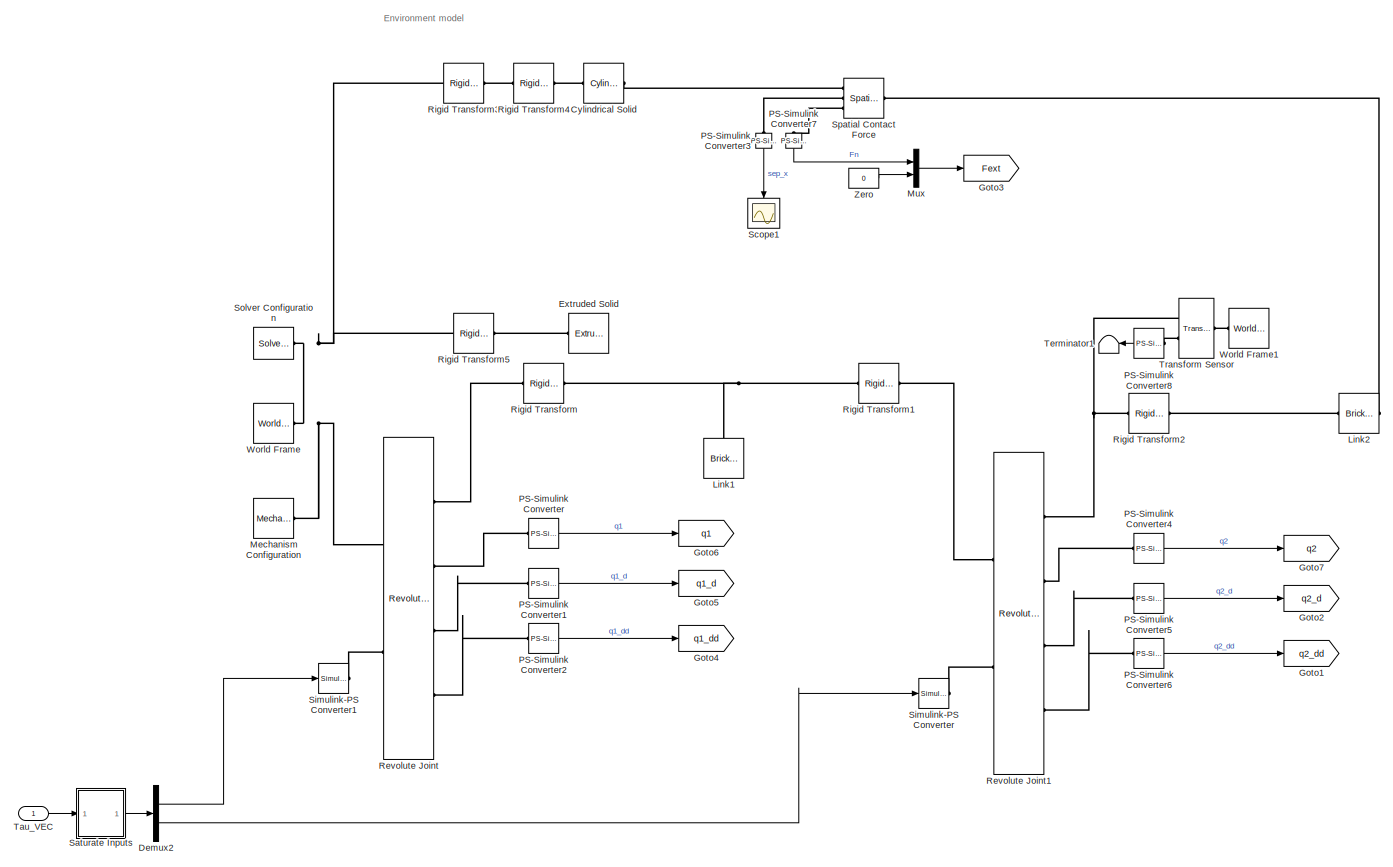
[diagram: Robot+Environment/ARM+curve(stiff) Simscape - part 1/2, most of the canvas]
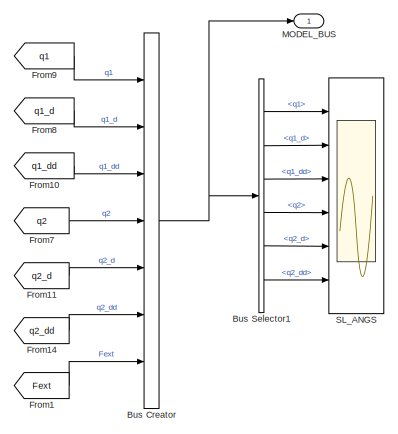
[diagram: Robot+Environment/ARM+curve(stiff) Simscape - part 2/2, bottom right region]
BLOCK [SubSystem] Robot+Environment/ARM+curve(stiff) Simscape
  Ports = [1, 1]
  RequestExecContextInheritance = off
  VariantControl = Choice3
BLOCK [BusCreator] Robot+Environment/ARM+curve(stiff) Simscape/Bus Creator
  DisplayOption = bar
  InheritFromInputs = on
  Inputs = 7
  Ports = [7, 1]
BLOCK [BusSelector] Robot+Environment/ARM+curve(stiff) Simscape/Bus Selector1
  OutputSignals = q1,q1_d,q1_dd,q2,q2_d,q2_dd
  Ports = [1, 6]
BLOCK [Reference] Robot+Environment/ARM+curve(stiff) Simscape/Cylindrical Solid  REF=sm_lib/Body Elements/Cylindrical Solid
  NameLocation = top
  Ports = [0, 0, 0, 0, 0, 1, 1]
  SourceBlock = sm_lib/Body Elements/Cylindrical Solid
  SourceProductBaseCode = MS
  SourceType = Cylindrical Solid
BLOCK [Demux] Robot+Environment/ARM+curve(stiff) Simscape/Demux2
  Outputs = 2
  Ports = [1, 2]
BLOCK [Reference] Robot+Environment/ARM+curve(stiff) Simscape/Extruded Solid  REF=sm_lib/Body Elements/Extruded Solid
  NameLocation = top
  Ports = [0, 0, 0, 0, 0, 1, 1]
  SourceBlock = sm_lib/Body Elements/Extruded Solid
  SourceProductBaseCode = MS
  SourceType = Extruded Solid
BLOCK [From] Robot+Environment/ARM+curve(stiff) Simscape/From1
  GotoTag = Fext
BLOCK [From] Robot+Environment/ARM+curve(stiff) Simscape/From10
  GotoTag = q1_dd
BLOCK [From] Robot+Environment/ARM+curve(stiff) Simscape/From11
  GotoTag = q2_d
BLOCK [From] Robot+Environment/ARM+curve(stiff) Simscape/From14
  GotoTag = q2_dd
BLOCK [From] Robot+Environment/ARM+curve(stiff) Simscape/From7
  GotoTag = q2
BLOCK [From] Robot+Environment/ARM+curve(stiff) Simscape/From8
  GotoTag = q1_d
BLOCK [From] Robot+Environment/ARM+curve(stiff) Simscape/From9
  GotoTag = q1
BLOCK [Goto] Robot+Environment/ARM+curve(stiff) Simscape/Goto1
  GotoTag = q2_dd
BLOCK [Goto] Robot+Environment/ARM+curve(stiff) Simscape/Goto2
  GotoTag = q2_d
BLOCK [Goto] Robot+Environment/ARM+curve(stiff) Simscape/Goto3
  GotoTag = Fext
BLOCK [Goto] Robot+Environment/ARM+curve(stiff) Simscape/Goto4
  GotoTag = q1_dd
BLOCK [Goto] Robot+Environment/ARM+curve(stiff) Simscape/Goto5
  GotoTag = q1_d
BLOCK [Goto] Robot+Environment/ARM+curve(stiff) Simscape/Goto6
  GotoTag = q1
BLOCK [Goto] Robot+Environment/ARM+curve(stiff) Simscape/Goto7
  GotoTag = q2
BLOCK [Reference] Robot+Environment/ARM+curve(stiff) Simscape/Link1  REF=sm_lib/Body Elements/Brick Solid
  NameLocation = right
  Ports = [0, 0, 0, 0, 0, 0, 1]
  SourceBlock = sm_lib/Body Elements/Brick Solid
  SourceProductBaseCode = MS
  SourceType = Brick Solid
BLOCK [Reference] Robot+Environment/ARM+curve(stiff) Simscape/Link2  REF=sm_lib/Body Elements/Brick Solid
  NameLocation = top
  Ports = [0, 0, 0, 0, 0, 1, 1]
  SourceBlock = sm_lib/Body Elements/Brick Solid
  SourceProductBaseCode = MS
  SourceType = Brick Solid
BLOCK [Outport] Robot+Environment/ARM+curve(stiff) Simscape/MODEL_BUS
BLOCK [Reference] Robot+Environment/ARM+curve(stiff) Simscape/Mechanism Configuration  REF=sm_lib/Utilities/Mechanism
Configuration
  Ports = [0, 0, 0, 0, 0, 0, 1]
  SourceBlock = sm_lib/Utilities/Mechanism\nConfiguration
  SourceProductBaseCode = MS
  SourceType = Mechanism\nConfiguration
BLOCK [Mux] Robot+Environment/ARM+curve(stiff) Simscape/Mux
  DisplayOption = bar
  Inputs = 2
  Ports = [2, 1]
BLOCK [Reference] Robot+Environment/ARM+curve(stiff) Simscape/PS-Simulink Converter  REF=nesl_utility/PS-Simulink
Converter
  Ports = [0, 1, 0, 0, 0, 1]
  SourceBlock = nesl_utility/PS-Simulink\nConverter
  SourceProductBaseCode = PW,SS
  SourceType = PS-Simulink\nConverter
BLOCK [Reference] Robot+Environment/ARM+curve(stiff) Simscape/PS-Simulink Converter1  REF=nesl_utility/PS-Simulink
Converter
  Ports = [0, 1, 0, 0, 0, 1]
  SourceBlock = nesl_utility/PS-Simulink\nConverter
  SourceProductBaseCode = PW,SS
  SourceType = PS-Simulink\nConverter
BLOCK [Reference] Robot+Environment/ARM+curve(stiff) Simscape/PS-Simulink Converter2  REF=nesl_utility/PS-Simulink
Converter
  Ports = [0, 1, 0, 0, 0, 1]
  SourceBlock = nesl_utility/PS-Simulink\nConverter
  SourceProductBaseCode = PW,SS
  SourceType = PS-Simulink\nConverter
BLOCK [Reference] Robot+Environment/ARM+curve(stiff) Simscape/PS-Simulink Converter3  REF=nesl_utility/PS-Simulink
Converter
  NameLocation = left
  Ports = [0, 1, 0, 0, 0, 1]
  SourceBlock = nesl_utility/PS-Simulink\nConverter
  SourceProductBaseCode = PW,SS
  SourceType = PS-Simulink\nConverter
BLOCK [Reference] Robot+Environment/ARM+curve(stiff) Simscape/PS-Simulink Converter4  REF=nesl_utility/PS-Simulink
Converter
  Ports = [0, 1, 0, 0, 0, 1]
  SourceBlock = nesl_utility/PS-Simulink\nConverter
  SourceProductBaseCode = PW,SS
  SourceType = PS-Simulink\nConverter
BLOCK [Reference] Robot+Environment/ARM+curve(stiff) Simscape/PS-Simulink Converter5  REF=nesl_utility/PS-Simulink
Converter
  Ports = [0, 1, 0, 0, 0, 1]
  SourceBlock = nesl_utility/PS-Simulink\nConverter
  SourceProductBaseCode = PW,SS
  SourceType = PS-Simulink\nConverter
BLOCK [Reference] Robot+Environment/ARM+curve(stiff) Simscape/PS-Simulink Converter6  REF=nesl_utility/PS-Simulink
Converter
  Ports = [0, 1, 0, 0, 0, 1]
  SourceBlock = nesl_utility/PS-Simulink\nConverter
  SourceProductBaseCode = PW,SS
  SourceType = PS-Simulink\nConverter
BLOCK [Reference] Robot+Environment/ARM+curve(stiff) Simscape/PS-Simulink Converter7  REF=nesl_utility/PS-Simulink
Converter
  NameLocation = left
  Ports = [0, 1, 0, 0, 0, 1]
  SourceBlock = nesl_utility/PS-Simulink\nConverter
  SourceProductBaseCode = PW,SS
  SourceType = PS-Simulink\nConverter
BLOCK [Reference] Robot+Environment/ARM+curve(stiff) Simscape/PS-Simulink Converter8  REF=nesl_utility/PS-Simulink
Converter
  NameLocation = top
  Ports = [0, 1, 0, 0, 0, 1]
  SourceBlock = nesl_utility/PS-Simulink\nConverter
  SourceProductBaseCode = PW,SS
  SourceType = PS-Simulink\nConverter
BLOCK [Reference] Robot+Environment/ARM+curve(stiff) Simscape/Revolute Joint  REF=sm_lib/Joints/Revolute Joint
  AttributesFormatString = %<DampingCoefficient>\n%<PositionTargetValue>\n%<VelocityTargetValue>
  Ports = [0, 0, 0, 0, 0, 2, 4]
  SourceBlock = sm_lib/Joints/Revolute Joint
  SourceProductBaseCode = MS
  SourceType = Revolute Joint
BLOCK [Reference] Robot+Environment/ARM+curve(stiff) Simscape/Revolute Joint1  REF=sm_lib/Joints/Revolute Joint
  AttributesFormatString = %<DampingCoefficient>\n%<PositionTargetValue>\n%<VelocityTargetValue>
  Ports = [0, 0, 0, 0, 0, 2, 4]
  SourceBlock = sm_lib/Joints/Revolute Joint
  SourceProductBaseCode = MS
  SourceType = Revolute Joint
BLOCK [Reference] Robot+Environment/ARM+curve(stiff) Simscape/Rigid Transform  REF=sm_lib/Frames and
Transforms/Rigid
Transform
  Ports = [0, 0, 0, 0, 0, 1, 1]
  SourceBlock = sm_lib/Frames and\nTransforms/Rigid\nTransform
  SourceProductBaseCode = MS
  SourceType = Rigid\nTransform
BLOCK [Reference] Robot+Environment/ARM+curve(stiff) Simscape/Rigid Transform1  REF=sm_lib/Frames and
Transforms/Rigid
Transform
  Ports = [0, 0, 0, 0, 0, 1, 1]
  SourceBlock = sm_lib/Frames and\nTransforms/Rigid\nTransform
  SourceProductBaseCode = MS
  SourceType = Rigid\nTransform
BLOCK [Reference] Robot+Environment/ARM+curve(stiff) Simscape/Rigid Transform2  REF=sm_lib/Frames and
Transforms/Rigid
Transform
  Ports = [0, 0, 0, 0, 0, 1, 1]
  SourceBlock = sm_lib/Frames and\nTransforms/Rigid\nTransform
  SourceProductBaseCode = MS
  SourceType = Rigid\nTransform
BLOCK [Reference] Robot+Environment/ARM+curve(stiff) Simscape/Rigid Transform3  REF=sm_lib/Frames and
Transforms/Rigid
Transform
  Ports = [0, 0, 0, 0, 0, 1, 1]
  SourceBlock = sm_lib/Frames and\nTransforms/Rigid\nTransform
  SourceProductBaseCode = MS
  SourceType = Rigid\nTransform
BLOCK [Reference] Robot+Environment/ARM+curve(stiff) Simscape/Rigid Transform4  REF=sm_lib/Frames and
Transforms/Rigid
Transform
  Ports = [0, 0, 0, 0, 0, 1, 1]
  SourceBlock = sm_lib/Frames and\nTransforms/Rigid\nTransform
  SourceProductBaseCode = MS
  SourceType = Rigid\nTransform
BLOCK [Reference] Robot+Environment/ARM+curve(stiff) Simscape/Rigid Transform5  REF=sm_lib/Frames and
Transforms/Rigid
Transform
  Ports = [0, 0, 0, 0, 0, 1, 1]
  SourceBlock = sm_lib/Frames and\nTransforms/Rigid\nTransform
  SourceProductBaseCode = MS
  SourceType = Rigid\nTransform
BLOCK [Scope] Robot+Environment/ARM+curve(stiff) Simscape/SL_ANGS
  Floating = off
  NumInputPorts = 6
  Ports = [6]
BLOCK [SubSystem] Robot+Environment/ARM+curve(stiff) Simscape/Saturate Inputs
  Ports = [1, 1]
  RequestExecContextInheritance = off
BLOCK [Demux] Robot+Environment/ARM+curve(stiff) Simscape/Saturate Inputs/Demux
  Outputs = 2
  Ports = [1, 2]
BLOCK [Mux] Robot+Environment/ARM+curve(stiff) Simscape/Saturate Inputs/Mux
  DisplayOption = bar
  Inputs = 2
  Ports = [2, 1]
BLOCK [Saturate] Robot+Environment/ARM+curve(stiff) Simscape/Saturate Inputs/Saturate Gripper Force
  LowerLimit = -max_joint_torque2
  UpperLimit = max_joint_torque2
BLOCK [Saturate] Robot+Environment/ARM+curve(stiff) Simscape/Saturate Inputs/Saturate Joint Torques
  LowerLimit = -max_joint_torque1
  UpperLimit = max_joint_torque1
BLOCK [Inport] Robot+Environment/ARM+curve(stiff) Simscape/Saturate Inputs/inp
BLOCK [Outport] Robot+Environment/ARM+curve(stiff) Simscape/Saturate Inputs/sat
  VectorParamsAs1DForOutWhenUnconnected = off
BLOCK [Scope] Robot+Environment/ARM+curve(stiff) Simscape/Scope1
  Floating = off
  NameLocation = left
  NumInputPorts = 1
  Ports = [1]
  ScopeSpecificationString = Simulink.scopes.TimeScopeBlockCfg('CurrentConfiguration', extmgr.ConfigurationSet(extmgr.Configuration('Core','General UI',true),extmgr.Configuration('Core','Source UI',true),extmgr.Configuration('Sources','WiredSimulink',true,'DataLoggingVariableName','ScopeData2'),extmgr.Configuration('Visuals','Time Domain',true,'SerializedDisplays',{struct('MinYLimReal','0.06697','MaxYLimReal','0.29811','YLabe...<+1413ch>
BLOCK [Reference] Robot+Environment/ARM+curve(stiff) Simscape/Simulink-PS Converter  REF=nesl_utility/Simulink-PS
Converter
  Ports = [1, 0, 0, 0, 0, 0, 1]
  SourceBlock = nesl_utility/Simulink-PS\nConverter
  SourceProductBaseCode = PW,SS
  SourceType = Simulink-PS\nConverter
BLOCK [Reference] Robot+Environment/ARM+curve(stiff) Simscape/Simulink-PS Converter1  REF=nesl_utility/Simulink-PS
Converter
  Ports = [1, 0, 0, 0, 0, 0, 1]
  SourceBlock = nesl_utility/Simulink-PS\nConverter
  SourceProductBaseCode = PW,SS
  SourceType = Simulink-PS\nConverter
BLOCK [Reference] Robot+Environment/ARM+curve(stiff) Simscape/Solver Configuration  REF=nesl_utility/Solver
Configuration
  Ports = [0, 0, 0, 0, 0, 0, 1]
  SourceBlock = nesl_utility/Solver\nConfiguration
  SourceProductBaseCode = PW,SS
  SourceType = Solver\nConfiguration
BLOCK [Reference] Robot+Environment/ARM+curve(stiff) Simscape/Spatial Contact Force  REF=sm_lib/Forces and
Torques/Spatial
Contact Force
  NameLocation = top
  Ports = [0, 0, 0, 0, 0, 1, 3]
  SourceBlock = sm_lib/Forces and\nTorques/Spatial\nContact Force
  SourceProductBaseCode = MS
  SourceType = Spatial\nContact Force
BLOCK [Inport] Robot+Environment/ARM+curve(stiff) Simscape/Tau_VEC
BLOCK [Terminator] Robot+Environment/ARM+curve(stiff) Simscape/Terminator1
  NameLocation = top
BLOCK [Reference] Robot+Environment/ARM+curve(stiff) Simscape/Transform Sensor  REF=sm_lib/Frames and
Transforms/Transform
Sensor
  NameLocation = top
  Ports = [0, 0, 0, 0, 0, 1, 2]
  SourceBlock = sm_lib/Frames and\nTransforms/Transform\nSensor
  SourceProductBaseCode = MS
  SourceType = Transform\nSensor
BLOCK [Reference] Robot+Environment/ARM+curve(stiff) Simscape/World Frame  REF=sm_lib/Frames and
Transforms/World Frame
  Ports = [0, 0, 0, 0, 0, 0, 1]
  SourceBlock = sm_lib/Frames and\nTransforms/World Frame
  SourceProductBaseCode = MS
  SourceType = World Frame
BLOCK [Reference] Robot+Environment/ARM+curve(stiff) Simscape/World Frame1  REF=sm_lib/Frames and
Transforms/World Frame
  NameLocation = top
  Ports = [0, 0, 0, 0, 0, 0, 1]
  SourceBlock = sm_lib/Frames and\nTransforms/World Frame
  SourceProductBaseCode = MS
  SourceType = World Frame
BLOCK [Constant] Robot+Environment/ARM+curve(stiff) Simscape/Zero
  OutDataTypeStr = Inherit: Inherit via back propagation
  Value = 0
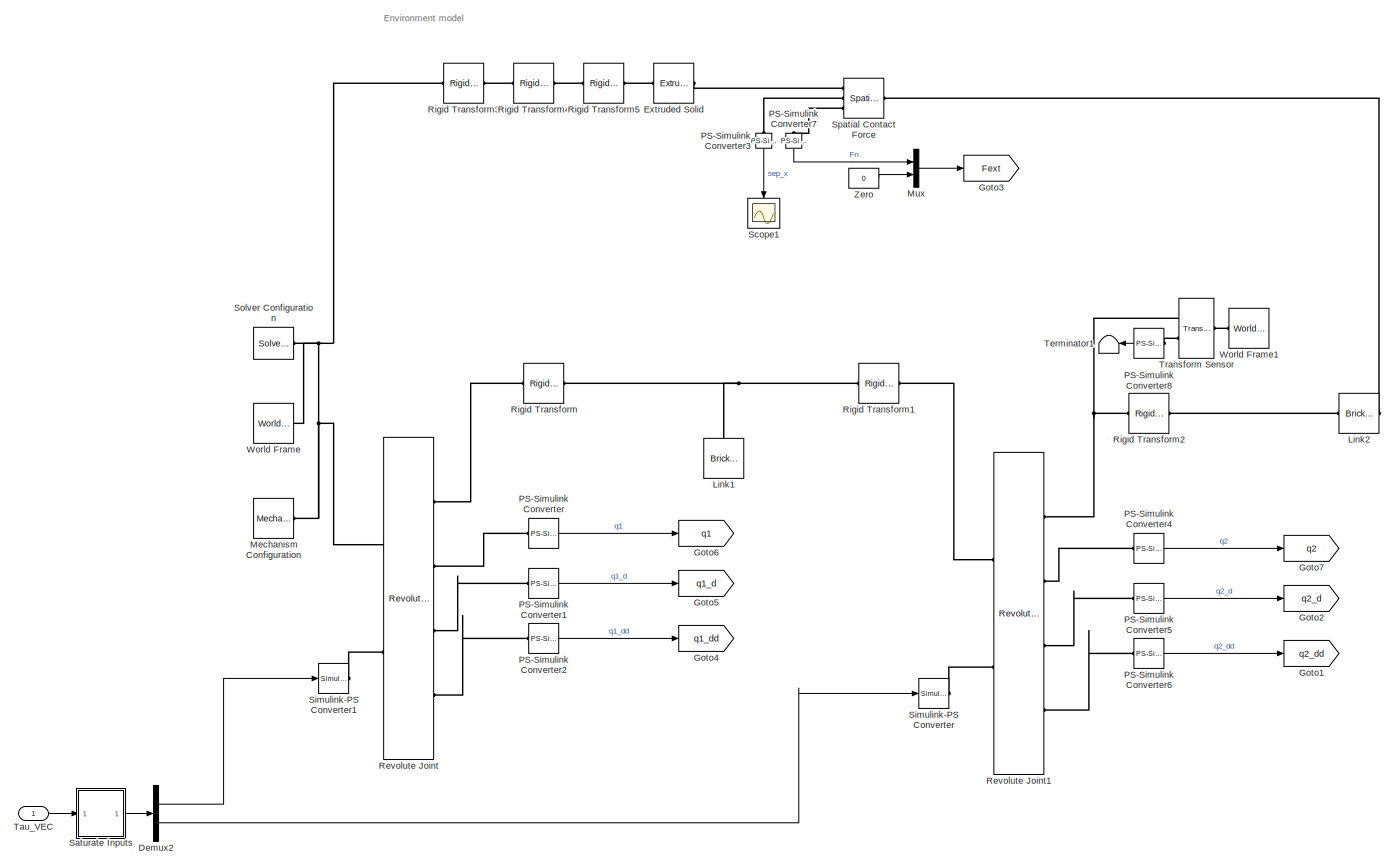
[diagram: Robot+Environment/ARM+extrude(stiff) Simscape - part 1/2, most of the canvas]
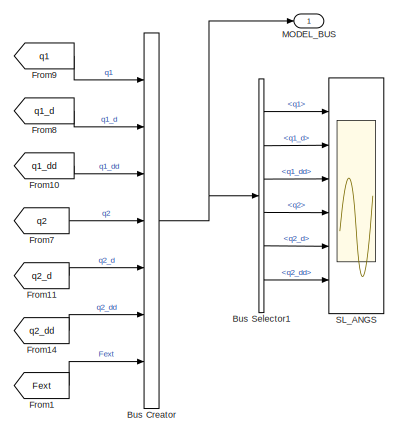
[diagram: Robot+Environment/ARM+extrude(stiff) Simscape - part 2/2, bottom right region]
BLOCK [SubSystem] Robot+Environment/ARM+extrude(stiff) Simscape
  Ports = [1, 1]
  RequestExecContextInheritance = off
  VariantControl = Choice4
BLOCK [BusCreator] Robot+Environment/ARM+extrude(stiff) Simscape/Bus Creator
  DisplayOption = bar
  InheritFromInputs = on
  Inputs = 7
  Ports = [7, 1]
BLOCK [BusSelector] Robot+Environment/ARM+extrude(stiff) Simscape/Bus Selector1
  OutputSignals = q1,q1_d,q1_dd,q2,q2_d,q2_dd
  Ports = [1, 6]
BLOCK [Demux] Robot+Environment/ARM+extrude(stiff) Simscape/Demux2
  Outputs = 2
  Ports = [1, 2]
BLOCK [Reference] Robot+Environment/ARM+extrude(stiff) Simscape/Extruded Solid  REF=sm_lib/Body Elements/Extruded Solid
  NameLocation = top
  Ports = [0, 0, 0, 0, 0, 1, 1]
  SourceBlock = sm_lib/Body Elements/Extruded Solid
  SourceProductBaseCode = MS
  SourceType = Extruded Solid
BLOCK [From] Robot+Environment/ARM+extrude(stiff) Simscape/From1
  GotoTag = Fext
BLOCK [From] Robot+Environment/ARM+extrude(stiff) Simscape/From10
  GotoTag = q1_dd
BLOCK [From] Robot+Environment/ARM+extrude(stiff) Simscape/From11
  GotoTag = q2_d
BLOCK [From] Robot+Environment/ARM+extrude(stiff) Simscape/From14
  GotoTag = q2_dd
BLOCK [From] Robot+Environment/ARM+extrude(stiff) Simscape/From7
  GotoTag = q2
BLOCK [From] Robot+Environment/ARM+extrude(stiff) Simscape/From8
  GotoTag = q1_d
BLOCK [From] Robot+Environment/ARM+extrude(stiff) Simscape/From9
  GotoTag = q1
BLOCK [Goto] Robot+Environment/ARM+extrude(stiff) Simscape/Goto1
  GotoTag = q2_dd
BLOCK [Goto] Robot+Environment/ARM+extrude(stiff) Simscape/Goto2
  GotoTag = q2_d
BLOCK [Goto] Robot+Environment/ARM+extrude(stiff) Simscape/Goto3
  GotoTag = Fext
BLOCK [Goto] Robot+Environment/ARM+extrude(stiff) Simscape/Goto4
  GotoTag = q1_dd
BLOCK [Goto] Robot+Environment/ARM+extrude(stiff) Simscape/Goto5
  GotoTag = q1_d
BLOCK [Goto] Robot+Environment/ARM+extrude(stiff) Simscape/Goto6
  GotoTag = q1
BLOCK [Goto] Robot+Environment/ARM+extrude(stiff) Simscape/Goto7
  GotoTag = q2
BLOCK [Reference] Robot+Environment/ARM+extrude(stiff) Simscape/Link1  REF=sm_lib/Body Elements/Brick Solid
  NameLocation = right
  Ports = [0, 0, 0, 0, 0, 0, 1]
  SourceBlock = sm_lib/Body Elements/Brick Solid
  SourceProductBaseCode = MS
  SourceType = Brick Solid
BLOCK [Reference] Robot+Environment/ARM+extrude(stiff) Simscape/Link2  REF=sm_lib/Body Elements/Brick Solid
  NameLocation = top
  Ports = [0, 0, 0, 0, 0, 1, 1]
  SourceBlock = sm_lib/Body Elements/Brick Solid
  SourceProductBaseCode = MS
  SourceType = Brick Solid
BLOCK [Outport] Robot+Environment/ARM+extrude(stiff) Simscape/MODEL_BUS
BLOCK [Reference] Robot+Environment/ARM+extrude(stiff) Simscape/Mechanism Configuration  REF=sm_lib/Utilities/Mechanism
Configuration
  Ports = [0, 0, 0, 0, 0, 0, 1]
  SourceBlock = sm_lib/Utilities/Mechanism\nConfiguration
  SourceProductBaseCode = MS
  SourceType = Mechanism\nConfiguration
BLOCK [Mux] Robot+Environment/ARM+extrude(stiff) Simscape/Mux
  DisplayOption = bar
  Inputs = 2
  Ports = [2, 1]
BLOCK [Reference] Robot+Environment/ARM+extrude(stiff) Simscape/PS-Simulink Converter  REF=nesl_utility/PS-Simulink
Converter
  Ports = [0, 1, 0, 0, 0, 1]
  SourceBlock = nesl_utility/PS-Simulink\nConverter
  SourceProductBaseCode = PW,SS
  SourceType = PS-Simulink\nConverter
BLOCK [Reference] Robot+Environment/ARM+extrude(stiff) Simscape/PS-Simulink Converter1  REF=nesl_utility/PS-Simulink
Converter
  Ports = [0, 1, 0, 0, 0, 1]
  SourceBlock = nesl_utility/PS-Simulink\nConverter
  SourceProductBaseCode = PW,SS
  SourceType = PS-Simulink\nConverter
BLOCK [Reference] Robot+Environment/ARM+extrude(stiff) Simscape/PS-Simulink Converter2  REF=nesl_utility/PS-Simulink
Converter
  Ports = [0, 1, 0, 0, 0, 1]
  SourceBlock = nesl_utility/PS-Simulink\nConverter
  SourceProductBaseCode = PW,SS
  SourceType = PS-Simulink\nConverter
BLOCK [Reference] Robot+Environment/ARM+extrude(stiff) Simscape/PS-Simulink Converter3  REF=nesl_utility/PS-Simulink
Converter
  NameLocation = left
  Ports = [0, 1, 0, 0, 0, 1]
  SourceBlock = nesl_utility/PS-Simulink\nConverter
  SourceProductBaseCode = PW,SS
  SourceType = PS-Simulink\nConverter
BLOCK [Reference] Robot+Environment/ARM+extrude(stiff) Simscape/PS-Simulink Converter4  REF=nesl_utility/PS-Simulink
Converter
  Ports = [0, 1, 0, 0, 0, 1]
  SourceBlock = nesl_utility/PS-Simulink\nConverter
  SourceProductBaseCode = PW,SS
  SourceType = PS-Simulink\nConverter
BLOCK [Reference] Robot+Environment/ARM+extrude(stiff) Simscape/PS-Simulink Converter5  REF=nesl_utility/PS-Simulink
Converter
  Ports = [0, 1, 0, 0, 0, 1]
  SourceBlock = nesl_utility/PS-Simulink\nConverter
  SourceProductBaseCode = PW,SS
  SourceType = PS-Simulink\nConverter
BLOCK [Reference] Robot+Environment/ARM+extrude(stiff) Simscape/PS-Simulink Converter6  REF=nesl_utility/PS-Simulink
Converter
  Ports = [0, 1, 0, 0, 0, 1]
  SourceBlock = nesl_utility/PS-Simulink\nConverter
  SourceProductBaseCode = PW,SS
  SourceType = PS-Simulink\nConverter
BLOCK [Reference] Robot+Environment/ARM+extrude(stiff) Simscape/PS-Simulink Converter7  REF=nesl_utility/PS-Simulink
Converter
  NameLocation = left
  Ports = [0, 1, 0, 0, 0, 1]
  SourceBlock = nesl_utility/PS-Simulink\nConverter
  SourceProductBaseCode = PW,SS
  SourceType = PS-Simulink\nConverter
BLOCK [Reference] Robot+Environment/ARM+extrude(stiff) Simscape/PS-Simulink Converter8  REF=nesl_utility/PS-Simulink
Converter
  NameLocation = top
  Ports = [0, 1, 0, 0, 0, 1]
  SourceBlock = nesl_utility/PS-Simulink\nConverter
  SourceProductBaseCode = PW,SS
  SourceType = PS-Simulink\nConverter
BLOCK [Reference] Robot+Environment/ARM+extrude(stiff) Simscape/Revolute Joint  REF=sm_lib/Joints/Revolute Joint
  AttributesFormatString = %<DampingCoefficient>\n%<PositionTargetValue>\n%<VelocityTargetValue>
  Ports = [0, 0, 0, 0, 0, 2, 4]
  SourceBlock = sm_lib/Joints/Revolute Joint
  SourceProductBaseCode = MS
  SourceType = Revolute Joint
BLOCK [Reference] Robot+Environment/ARM+extrude(stiff) Simscape/Revolute Joint1  REF=sm_lib/Joints/Revolute Joint
  AttributesFormatString = %<DampingCoefficient>\n%<PositionTargetValue>\n%<VelocityTargetValue>
  Ports = [0, 0, 0, 0, 0, 2, 4]
  SourceBlock = sm_lib/Joints/Revolute Joint
  SourceProductBaseCode = MS
  SourceType = Revolute Joint
BLOCK [Reference] Robot+Environment/ARM+extrude(stiff) Simscape/Rigid Transform  REF=sm_lib/Frames and
Transforms/Rigid
Transform
  Ports = [0, 0, 0, 0, 0, 1, 1]
  SourceBlock = sm_lib/Frames and\nTransforms/Rigid\nTransform
  SourceProductBaseCode = MS
  SourceType = Rigid\nTransform
BLOCK [Reference] Robot+Environment/ARM+extrude(stiff) Simscape/Rigid Transform1  REF=sm_lib/Frames and
Transforms/Rigid
Transform
  Ports = [0, 0, 0, 0, 0, 1, 1]
  SourceBlock = sm_lib/Frames and\nTransforms/Rigid\nTransform
  SourceProductBaseCode = MS
  SourceType = Rigid\nTransform
BLOCK [Reference] Robot+Environment/ARM+extrude(stiff) Simscape/Rigid Transform2  REF=sm_lib/Frames and
Transforms/Rigid
Transform
  Ports = [0, 0, 0, 0, 0, 1, 1]
  SourceBlock = sm_lib/Frames and\nTransforms/Rigid\nTransform
  SourceProductBaseCode = MS
  SourceType = Rigid\nTransform
BLOCK [Reference] Robot+Environment/ARM+extrude(stiff) Simscape/Rigid Transform3  REF=sm_lib/Frames and
Transforms/Rigid
Transform
  Ports = [0, 0, 0, 0, 0, 1, 1]
  SourceBlock = sm_lib/Frames and\nTransforms/Rigid\nTransform
  SourceProductBaseCode = MS
  SourceType = Rigid\nTransform
BLOCK [Reference] Robot+Environment/ARM+extrude(stiff) Simscape/Rigid Transform4  REF=sm_lib/Frames and
Transforms/Rigid
Transform
  Ports = [0, 0, 0, 0, 0, 1, 1]
  SourceBlock = sm_lib/Frames and\nTransforms/Rigid\nTransform
  SourceProductBaseCode = MS
  SourceType = Rigid\nTransform
BLOCK [Reference] Robot+Environment/ARM+extrude(stiff) Simscape/Rigid Transform5  REF=sm_lib/Frames and
Transforms/Rigid
Transform
  Ports = [0, 0, 0, 0, 0, 1, 1]
  SourceBlock = sm_lib/Frames and\nTransforms/Rigid\nTransform
  SourceProductBaseCode = MS
  SourceType = Rigid\nTransform
BLOCK [Scope] Robot+Environment/ARM+extrude(stiff) Simscape/SL_ANGS
  Floating = off
  NumInputPorts = 6
  Ports = [6]
BLOCK [SubSystem] Robot+Environment/ARM+extrude(stiff) Simscape/Saturate Inputs
  Ports = [1, 1]
  RequestExecContextInheritance = off
BLOCK [Demux] Robot+Environment/ARM+extrude(stiff) Simscape/Saturate Inputs/Demux
  Outputs = 2
  Ports = [1, 2]
BLOCK [Mux] Robot+Environment/ARM+extrude(stiff) Simscape/Saturate Inputs/Mux
  DisplayOption = bar
  Inputs = 2
  Ports = [2, 1]
BLOCK [Saturate] Robot+Environment/ARM+extrude(stiff) Simscape/Saturate Inputs/Saturate Gripper Force
  LowerLimit = -max_joint_torque2
  UpperLimit = max_joint_torque2
BLOCK [Saturate] Robot+Environment/ARM+extrude(stiff) Simscape/Saturate Inputs/Saturate Joint Torques
  LowerLimit = -max_joint_torque1
  UpperLimit = max_joint_torque1
BLOCK [Inport] Robot+Environment/ARM+extrude(stiff) Simscape/Saturate Inputs/inp
BLOCK [Outport] Robot+Environment/ARM+extrude(stiff) Simscape/Saturate Inputs/sat
  VectorParamsAs1DForOutWhenUnconnected = off
BLOCK [Scope] Robot+Environment/ARM+extrude(stiff) Simscape/Scope1
  Floating = off
  NameLocation = left
  NumInputPorts = 1
  Ports = [1]
  ScopeSpecificationString = Simulink.scopes.TimeScopeBlockCfg('CurrentConfiguration', extmgr.ConfigurationSet(extmgr.Configuration('Core','General UI',true),extmgr.Configuration('Core','Source UI',true),extmgr.Configuration('Sources','WiredSimulink',true,'DataLoggingVariableName','ScopeData2'),extmgr.Configuration('Visuals','Time Domain',true,'SerializedDisplays',{struct('MinYLimReal','-0.02203','MaxYLimReal','0.19238','YLab...<+1415ch>
BLOCK [Reference] Robot+Environment/ARM+extrude(stiff) Simscape/Simulink-PS Converter  REF=nesl_utility/Simulink-PS
Converter
  Ports = [1, 0, 0, 0, 0, 0, 1]
  SourceBlock = nesl_utility/Simulink-PS\nConverter
  SourceProductBaseCode = PW,SS
  SourceType = Simulink-PS\nConverter
BLOCK [Reference] Robot+Environment/ARM+extrude(stiff) Simscape/Simulink-PS Converter1  REF=nesl_utility/Simulink-PS
Converter
  Ports = [1, 0, 0, 0, 0, 0, 1]
  SourceBlock = nesl_utility/Simulink-PS\nConverter
  SourceProductBaseCode = PW,SS
  SourceType = Simulink-PS\nConverter
BLOCK [Reference] Robot+Environment/ARM+extrude(stiff) Simscape/Solver Configuration  REF=nesl_utility/Solver
Configuration
  Ports = [0, 0, 0, 0, 0, 0, 1]
  SourceBlock = nesl_utility/Solver\nConfiguration
  SourceProductBaseCode = PW,SS
  SourceType = Solver\nConfiguration
BLOCK [Reference] Robot+Environment/ARM+extrude(stiff) Simscape/Spatial Contact Force  REF=sm_lib/Forces and
Torques/Spatial
Contact Force
  NameLocation = top
  Ports = [0, 0, 0, 0, 0, 1, 3]
  SourceBlock = sm_lib/Forces and\nTorques/Spatial\nContact Force
  SourceProductBaseCode = MS
  SourceType = Spatial\nContact Force
BLOCK [Inport] Robot+Environment/ARM+extrude(stiff) Simscape/Tau_VEC
BLOCK [Terminator] Robot+Environment/ARM+extrude(stiff) Simscape/Terminator1
  NameLocation = top
BLOCK [Reference] Robot+Environment/ARM+extrude(stiff) Simscape/Transform Sensor  REF=sm_lib/Frames and
Transforms/Transform
Sensor
  NameLocation = top
  Ports = [0, 0, 0, 0, 0, 1, 2]
  SourceBlock = sm_lib/Frames and\nTransforms/Transform\nSensor
  SourceProductBaseCode = MS
  SourceType = Transform\nSensor
BLOCK [Reference] Robot+Environment/ARM+extrude(stiff) Simscape/World Frame  REF=sm_lib/Frames and
Transforms/World Frame
  Ports = [0, 0, 0, 0, 0, 0, 1]
  SourceBlock = sm_lib/Frames and\nTransforms/World Frame
  SourceProductBaseCode = MS
  SourceType = World Frame
BLOCK [Reference] Robot+Environment/ARM+extrude(stiff) Simscape/World Frame1  REF=sm_lib/Frames and
Transforms/World Frame
  NameLocation = top
  Ports = [0, 0, 0, 0, 0, 0, 1]
  SourceBlock = sm_lib/Frames and\nTransforms/World Frame
  SourceProductBaseCode = MS
  SourceType = World Frame
BLOCK [Constant] Robot+Environment/ARM+extrude(stiff) Simscape/Zero
  OutDataTypeStr = Inherit: Inherit via back propagation
  Value = 0
BLOCK [SubSystem] Robot+Environment/ARM+no constraints Simscape
  Ports = [1, 1]
  RequestExecContextInheritance = off
  VariantControl = Choice5
BLOCK [BusCreator] Robot+Environment/ARM+no constraints Simscape/Bus Creator
  DisplayOption = bar
  InheritFromInputs = on
  Inputs = 7
  Ports = [7, 1]
BLOCK [BusSelector] Robot+Environment/ARM+no constraints Simscape/Bus Selector1
  OutputSignals = q1,q1_d,q1_dd,q2,q2_d,q2_dd
  Ports = [1, 6]
BLOCK [Demux] Robot+Environment/ARM+no constraints Simscape/Demux2
  Outputs = 2
  Ports = [1, 2]
BLOCK [From] Robot+Environment/ARM+no constraints Simscape/From1
  GotoTag = Fext
BLOCK [From] Robot+Environment/ARM+no constraints Simscape/From10
  GotoTag = q1_dd
BLOCK [From] Robot+Environment/ARM+no constraints Simscape/From11
  GotoTag = q2_d
BLOCK [From] Robot+Environment/ARM+no constraints Simscape/From14
  GotoTag = q2_dd
BLOCK [From] Robot+Environment/ARM+no constraints Simscape/From7
  GotoTag = q2
BLOCK [From] Robot+Environment/ARM+no constraints Simscape/From8
  GotoTag = q1_d
BLOCK [From] Robot+Environment/ARM+no constraints Simscape/From9
  GotoTag = q1
BLOCK [Goto] Robot+Environment/ARM+no constraints Simscape/Goto1
  GotoTag = q2_dd
BLOCK [Goto] Robot+Environment/ARM+no constraints Simscape/Goto2
  GotoTag = q2_d
BLOCK [Goto] Robot+Environment/ARM+no constraints Simscape/Goto3
  GotoTag = Fext
BLOCK [Goto] Robot+Environment/ARM+no constraints Simscape/Goto4
  GotoTag = q1_dd
BLOCK [Goto] Robot+Environment/ARM+no constraints Simscape/Goto5
  GotoTag = q1_d
BLOCK [Goto] Robot+Environment/ARM+no constraints Simscape/Goto6
  GotoTag = q1
BLOCK [Goto] Robot+Environment/ARM+no constraints Simscape/Goto7
  GotoTag = q2
BLOCK [Reference] Robot+Environment/ARM+no constraints Simscape/Link1  REF=sm_lib/Body Elements/Brick Solid
  NameLocation = right
  Ports = [0, 0, 0, 0, 0, 0, 1]
  SourceBlock = sm_lib/Body Elements/Brick Solid
  SourceProductBaseCode = MS
  SourceType = Brick Solid
BLOCK [Reference] Robot+Environment/ARM+no constraints Simscape/Link2  REF=sm_lib/Body Elements/Brick Solid
  NameLocation = top
  Ports = [0, 0, 0, 0, 0, 0, 1]
  SourceBlock = sm_lib/Body Elements/Brick Solid
  SourceProductBaseCode = MS
  SourceType = Brick Solid
BLOCK [Outport] Robot+Environment/ARM+no constraints Simscape/MODEL_BUS
BLOCK [Reference] Robot+Environment/ARM+no constraints Simscape/Mechanism Configuration  REF=sm_lib/Utilities/Mechanism
Configuration
  Ports = [0, 0, 0, 0, 0, 0, 1]
  SourceBlock = sm_lib/Utilities/Mechanism\nConfiguration
  SourceProductBaseCode = MS
  SourceType = Mechanism\nConfiguration
BLOCK [Mux] Robot+Environment/ARM+no constraints Simscape/Mux
  DisplayOption = bar
  Inputs = 2
  Ports = [2, 1]
BLOCK [Reference] Robot+Environment/ARM+no constraints Simscape/PS-Simulink Converter  REF=nesl_utility/PS-Simulink
Converter
  Ports = [0, 1, 0, 0, 0, 1]
  SourceBlock = nesl_utility/PS-Simulink\nConverter
  SourceProductBaseCode = PW,SS
  SourceType = PS-Simulink\nConverter
BLOCK [Reference] Robot+Environment/ARM+no constraints Simscape/PS-Simulink Converter1  REF=nesl_utility/PS-Simulink
Converter
  Ports = [0, 1, 0, 0, 0, 1]
  SourceBlock = nesl_utility/PS-Simulink\nConverter
  SourceProductBaseCode = PW,SS
  SourceType = PS-Simulink\nConverter
BLOCK [Reference] Robot+Environment/ARM+no constraints Simscape/PS-Simulink Converter2  REF=nesl_utility/PS-Simulink
Converter
  Ports = [0, 1, 0, 0, 0, 1]
  SourceBlock = nesl_utility/PS-Simulink\nConverter
  SourceProductBaseCode = PW,SS
  SourceType = PS-Simulink\nConverter
BLOCK [Reference] Robot+Environment/ARM+no constraints Simscape/PS-Simulink Converter4  REF=nesl_utility/PS-Simulink
Converter
  Ports = [0, 1, 0, 0, 0, 1]
  SourceBlock = nesl_utility/PS-Simulink\nConverter
  SourceProductBaseCode = PW,SS
  SourceType = PS-Simulink\nConverter
BLOCK [Reference] Robot+Environment/ARM+no constraints Simscape/PS-Simulink Converter5  REF=nesl_utility/PS-Simulink
Converter
  Ports = [0, 1, 0, 0, 0, 1]
  SourceBlock = nesl_utility/PS-Simulink\nConverter
  SourceProductBaseCode = PW,SS
  SourceType = PS-Simulink\nConverter
BLOCK [Reference] Robot+Environment/ARM+no constraints Simscape/PS-Simulink Converter6  REF=nesl_utility/PS-Simulink
Converter
  Ports = [0, 1, 0, 0, 0, 1]
  SourceBlock = nesl_utility/PS-Simulink\nConverter
  SourceProductBaseCode = PW,SS
  SourceType = PS-Simulink\nConverter
BLOCK [Reference] Robot+Environment/ARM+no constraints Simscape/PS-Simulink Converter8  REF=nesl_utility/PS-Simulink
Converter
  NameLocation = top
  Ports = [0, 1, 0, 0, 0, 1]
  SourceBlock = nesl_utility/PS-Simulink\nConverter
  SourceProductBaseCode = PW,SS
  SourceType = PS-Simulink\nConverter
BLOCK [Reference] Robot+Environment/ARM+no constraints Simscape/Revolute Joint  REF=sm_lib/Joints/Revolute Joint
  AttributesFormatString = %<DampingCoefficient>\n%<PositionTargetValue>\n%<VelocityTargetValue>
  Ports = [0, 0, 0, 0, 0, 2, 4]
  SourceBlock = sm_lib/Joints/Revolute Joint
  SourceProductBaseCode = MS
  SourceType = Revolute Joint
BLOCK [Reference] Robot+Environment/ARM+no constraints Simscape/Revolute Joint1  REF=sm_lib/Joints/Revolute Joint
  AttributesFormatString = %<DampingCoefficient>\n%<PositionTargetValue>\n%<VelocityTargetValue>
  Ports = [0, 0, 0, 0, 0, 2, 4]
  SourceBlock = sm_lib/Joints/Revolute Joint
  SourceProductBaseCode = MS
  SourceType = Revolute Joint
BLOCK [Reference] Robot+Environment/ARM+no constraints Simscape/Rigid Transform  REF=sm_lib/Frames and
Transforms/Rigid
Transform
  Ports = [0, 0, 0, 0, 0, 1, 1]
  SourceBlock = sm_lib/Frames and\nTransforms/Rigid\nTransform
  SourceProductBaseCode = MS
  SourceType = Rigid\nTransform
BLOCK [Reference] Robot+Environment/ARM+no constraints Simscape/Rigid Transform1  REF=sm_lib/Frames and
Transforms/Rigid
Transform
  Ports = [0, 0, 0, 0, 0, 1, 1]
  SourceBlock = sm_lib/Frames and\nTransforms/Rigid\nTransform
  SourceProductBaseCode = MS
  SourceType = Rigid\nTransform
BLOCK [Reference] Robot+Environment/ARM+no constraints Simscape/Rigid Transform2  REF=sm_lib/Frames and
Transforms/Rigid
Transform
  Ports = [0, 0, 0, 0, 0, 1, 1]
  SourceBlock = sm_lib/Frames and\nTransforms/Rigid\nTransform
  SourceProductBaseCode = MS
  SourceType = Rigid\nTransform
BLOCK [Scope] Robot+Environment/ARM+no constraints Simscape/SL_ANGS
  Floating = off
  NumInputPorts = 6
  Ports = [6]
BLOCK [SubSystem] Robot+Environment/ARM+no constraints Simscape/Saturate Inputs
  Ports = [1, 1]
  RequestExecContextInheritance = off
BLOCK [Demux] Robot+Environment/ARM+no constraints Simscape/Saturate Inputs/Demux
  Outputs = 2
  Ports = [1, 2]
BLOCK [Mux] Robot+Environment/ARM+no constraints Simscape/Saturate Inputs/Mux
  DisplayOption = bar
  Inputs = 2
  Ports = [2, 1]
BLOCK [Saturate] Robot+Environment/ARM+no constraints Simscape/Saturate Inputs/Saturate Gripper Force
  LowerLimit = -max_joint_torque2
  UpperLimit = max_joint_torque2
BLOCK [Saturate] Robot+Environment/ARM+no constraints Simscape/Saturate Inputs/Saturate Joint Torques
  LowerLimit = -max_joint_torque1
  UpperLimit = max_joint_torque1
BLOCK [Inport] Robot+Environment/ARM+no constraints Simscape/Saturate Inputs/inp
BLOCK [Outport] Robot+Environment/ARM+no constraints Simscape/Saturate Inputs/sat
  VectorParamsAs1DForOutWhenUnconnected = off
BLOCK [Reference] Robot+Environment/ARM+no constraints Simscape/Simulink-PS Converter  REF=nesl_utility/Simulink-PS
Converter
  Ports = [1, 0, 0, 0, 0, 0, 1]
  SourceBlock = nesl_utility/Simulink-PS\nConverter
  SourceProductBaseCode = PW,SS
  SourceType = Simulink-PS\nConverter
BLOCK [Reference] Robot+Environment/ARM+no constraints Simscape/Simulink-PS Converter1  REF=nesl_utility/Simulink-PS
Converter
  Ports = [1, 0, 0, 0, 0, 0, 1]
  SourceBlock = nesl_utility/Simulink-PS\nConverter
  SourceProductBaseCode = PW,SS
  SourceType = Simulink-PS\nConverter
BLOCK [Reference] Robot+Environment/ARM+no constraints Simscape/Solver Configuration  REF=nesl_utility/Solver
Configuration
  Ports = [0, 0, 0, 0, 0, 0, 1]
  SourceBlock = nesl_utility/Solver\nConfiguration
  SourceProductBaseCode = PW,SS
  SourceType = Solver\nConfiguration
BLOCK [Inport] Robot+Environment/ARM+no constraints Simscape/Tau_VEC
BLOCK [Terminator] Robot+Environment/ARM+no constraints Simscape/Terminator1
  NameLocation = top
BLOCK [Reference] Robot+Environment/ARM+no constraints Simscape/Transform Sensor  REF=sm_lib/Frames and
Transforms/Transform
Sensor
  NameLocation = top
  Ports = [0, 0, 0, 0, 0, 1, 2]
  SourceBlock = sm_lib/Frames and\nTransforms/Transform\nSensor
  SourceProductBaseCode = MS
  SourceType = Transform\nSensor
BLOCK [Reference] Robot+Environment/ARM+no constraints Simscape/World Frame  REF=sm_lib/Frames and
Transforms/World Frame
  Ports = [0, 0, 0, 0, 0, 0, 1]
  SourceBlock = sm_lib/Frames and\nTransforms/World Frame
  SourceProductBaseCode = MS
  SourceType = World Frame
BLOCK [Reference] Robot+Environment/ARM+no constraints Simscape/World Frame1  REF=sm_lib/Frames and
Transforms/World Frame
  NameLocation = top
  Ports = [0, 0, 0, 0, 0, 0, 1]
  SourceBlock = sm_lib/Frames and\nTransforms/World Frame
  SourceProductBaseCode = MS
  SourceType = World Frame
BLOCK [Constant] Robot+Environment/ARM+no constraints Simscape/Zero
  OutDataTypeStr = Inherit: Inherit via back propagation
  Value = 0
BLOCK [Constant] Robot+Environment/ARM+no constraints Simscape/Zero1
  OutDataTypeStr = Inherit: Inherit via back propagation
  Value = 0
BLOCK [Outport] Robot+Environment/MODEL_BUS
BLOCK [Inport] Robot+Environment/Tau_VEC
BLOCK [Terminator] Terminator
  NameLocation = left
BLOCK [SubSystem] Trajectory
  LabelModeActiveChoice = rampF-stepXY
  Ports = [0, 1]
  RequestExecContextInheritance = off
  Variant = on
  VariantControlMode = label
BLOCK [Outport] Trajectory/CMD
BLOCK [SubSystem] Trajectory/rampFx-stepXY command
  Ports = [0, 1]
  RequestExecContextInheritance = off
  VariantControl = rampF-stepXY
BLOCK [BusCreator] Trajectory/rampFx-stepXY command/Bus Creator
  DisplayOption = bar
  InheritFromInputs = on
  Inputs = 8
  Ports = [8, 1]
BLOCK [Outport] Trajectory/rampFx-stepXY command/CMD
BLOCK [Constant] Trajectory/rampFx-stepXY command/Constant
  Value = 0
BLOCK [Constant] Trajectory/rampFx-stepXY command/Constant1
  Value = 0
BLOCK [Constant] Trajectory/rampFx-stepXY command/Constant2
  Value = 0
BLOCK [Constant] Trajectory/rampFx-stepXY command/Constant3
  Value = 0
BLOCK [Constant] Trajectory/rampFx-stepXY command/Constant4
  Value = 0
BLOCK [SubSystem] Trajectory/rampFx-stepXY command/Signal Builder
  ClipboardFcn = sigbuilder_block('clipboard');
  CloseFcn = sigbuilder_block('close');
  ContinueFcn = sigbuilder_block('continue');
  CopyFcn = sigbuilder_block('copy');
  DeleteFcn = sigbuilder_block('delete');
  LoadFcn = sigbuilder_block('load');
  MaskHideContents = on
  ModelCloseFcn = sigbuilder_block('modelClose');
  NameChangeFcn = sigbuilder_block('namechange');
  OpenFcn = sigbuilder_block('open',[437.6 199.2 550.4 400 ]);
  PauseFcn = sigbuilder_block('pause');
  Ports = [0, 1]
  PreSaveFcn = sigbuilder_block('preSave');
  RequestExecContextInheritance = off
  StartFcn = sigbuilder_block('start');
  StopFcn = sigbuilder_block('stop');
  Tag = STV Subsys
BLOCK [Demux] Trajectory/rampFx-stepXY command/Signal Builder/Demux
  DisplayOption = none
  Outputs = 1
  Ports = [1, 1]
  Tag = STV Demux
BLOCK [FromWorkspace] Trajectory/rampFx-stepXY command/Signal Builder/FromWs
  Tag = STV FromWs
  VariableName = tuvar
BLOCK [Outport] Trajectory/rampFx-stepXY command/Signal Builder/Signal 1
  Tag = STV Outport
BLOCK [SubSystem] Trajectory/rampFx-stepXY command/Signal Builder1
  ClipboardFcn = sigbuilder_block('clipboard');
  CloseFcn = sigbuilder_block('close');
  ContinueFcn = sigbuilder_block('continue');
  CopyFcn = sigbuilder_block('copy');
  DeleteFcn = sigbuilder_block('delete');
  LoadFcn = sigbuilder_block('load');
  MaskHideContents = on
  ModelCloseFcn = sigbuilder_block('modelClose');
  NameChangeFcn = sigbuilder_block('namechange');
  OpenFcn = sigbuilder_block('open',[4.8 36 1142.4 525.6 ]);
  PauseFcn = sigbuilder_block('pause');
  Ports = [0, 1]
  PreSaveFcn = sigbuilder_block('preSave');
  RequestExecContextInheritance = off
  StartFcn = sigbuilder_block('start');
  StopFcn = sigbuilder_block('stop');
  Tag = STV Subsys
BLOCK [Demux] Trajectory/rampFx-stepXY command/Signal Builder1/Demux
  DisplayOption = none
  Outputs = 1
  Ports = [1, 1]
  Tag = STV Demux
BLOCK [FromWorkspace] Trajectory/rampFx-stepXY command/Signal Builder1/FromWs
  Tag = STV FromWs
  VariableName = tuvar
BLOCK [Outport] Trajectory/rampFx-stepXY command/Signal Builder1/Signal 1
  Tag = STV Outport
BLOCK [Step] Trajectory/rampFx-stepXY command/Step
  After = 0.25
  Before = 0.2
  SampleTime = 0
  Time = 5
BLOCK [Step] Trajectory/rampFx-stepXY command/Step2
  After = 0.46
  Before = 0.44
  SampleTime = 0
  Time = 2
BLOCK [SubSystem] Trajectory/stepF command
  Ports = [0, 1]
  RequestExecContextInheritance = off
  VariantControl = stepF
BLOCK [BusCreator] Trajectory/stepF command/Bus Creator
  DisplayOption = bar
  InheritFromInputs = on
  Inputs = 8
  Ports = [8, 1]
BLOCK [Outport] Trajectory/stepF command/CMD
BLOCK [Constant] Trajectory/stepF command/Constant
  Value = 0
BLOCK [Constant] Trajectory/stepF command/Constant1
  Value = 0
BLOCK [Constant] Trajectory/stepF command/Constant2
  Value = 0
BLOCK [Constant] Trajectory/stepF command/Constant3
  Value = 0
BLOCK [Constant] Trajectory/stepF command/Constant4
  Value = 0
BLOCK [Constant] Trajectory/stepF command/Constant5
  Value = 0.2
BLOCK [Constant] Trajectory/stepF command/Constant6
  Value = 0.44
BLOCK [SubSystem] Trajectory/stepF command/Signal Builder
  ClipboardFcn = sigbuilder_block('clipboard');
  CloseFcn = sigbuilder_block('close');
  ContinueFcn = sigbuilder_block('continue');
  CopyFcn = sigbuilder_block('copy');
  DeleteFcn = sigbuilder_block('delete');
  LoadFcn = sigbuilder_block('load');
  MaskHideContents = on
  ModelCloseFcn = sigbuilder_block('modelClose');
  NameChangeFcn = sigbuilder_block('namechange');
  OpenFcn = sigbuilder_block('open',[437.6 199.2 550.4 400 ]);
  PauseFcn = sigbuilder_block('pause');
  Ports = [0, 1]
  PreSaveFcn = sigbuilder_block('preSave');
  RequestExecContextInheritance = off
  StartFcn = sigbuilder_block('start');
  StopFcn = sigbuilder_block('stop');
  Tag = STV Subsys
BLOCK [Demux] Trajectory/stepF command/Signal Builder/Demux
  DisplayOption = none
  Outputs = 1
  Ports = [1, 1]
  Tag = STV Demux
BLOCK [FromWorkspace] Trajectory/stepF command/Signal Builder/FromWs
  Tag = STV FromWs
  VariableName = tuvar
BLOCK [Outport] Trajectory/stepF command/Signal Builder/Signal 1
  Tag = STV Outport
BLOCK [SubSystem] Trajectory/stepF-stepXY command
  Ports = [0, 1]
  RequestExecContextInheritance = off
  VariantControl = stepF-stepXY
BLOCK [BusCreator] Trajectory/stepF-stepXY command/Bus Creator
  DisplayOption = bar
  InheritFromInputs = on
  Inputs = 8
  Ports = [8, 1]
BLOCK [Outport] Trajectory/stepF-stepXY command/CMD
BLOCK [Constant] Trajectory/stepF-stepXY command/Constant
  Value = 0
BLOCK [Constant] Trajectory/stepF-stepXY command/Constant1
  Value = 0
BLOCK [Constant] Trajectory/stepF-stepXY command/Constant2
  Value = 0
BLOCK [Constant] Trajectory/stepF-stepXY command/Constant3
  Value = 0
BLOCK [Constant] Trajectory/stepF-stepXY command/Constant4
  Value = 0
BLOCK [SubSystem] Trajectory/stepF-stepXY command/Signal Builder
  ClipboardFcn = sigbuilder_block('clipboard');
  CloseFcn = sigbuilder_block('close');
  ContinueFcn = sigbuilder_block('continue');
  CopyFcn = sigbuilder_block('copy');
  DeleteFcn = sigbuilder_block('delete');
  LoadFcn = sigbuilder_block('load');
  MaskHideContents = on
  ModelCloseFcn = sigbuilder_block('modelClose');
  NameChangeFcn = sigbuilder_block('namechange');
  OpenFcn = sigbuilder_block('open',[437.6 199.2 550.4 400 ]);
  PauseFcn = sigbuilder_block('pause');
  Ports = [0, 1]
  PreSaveFcn = sigbuilder_block('preSave');
  RequestExecContextInheritance = off
  StartFcn = sigbuilder_block('start');
  StopFcn = sigbuilder_block('stop');
  Tag = STV Subsys
BLOCK [Demux] Trajectory/stepF-stepXY command/Signal Builder/Demux
  DisplayOption = none
  Outputs = 1
  Ports = [1, 1]
  Tag = STV Demux
BLOCK [FromWorkspace] Trajectory/stepF-stepXY command/Signal Builder/FromWs
  Tag = STV FromWs
  VariableName = tuvar
BLOCK [Outport] Trajectory/stepF-stepXY command/Signal Builder/Signal 1
  Tag = STV Outport
BLOCK [Step] Trajectory/stepF-stepXY command/Step
  After = 0.25
  Before = 0.2
  SampleTime = 0
  Time = 5
BLOCK [Step] Trajectory/stepF-stepXY command/Step2
  After = 0.46
  Before = 0.44
  SampleTime = 0
  Time = 2
BLOCK [SubSystem] Trajectory/stepFx-rampY command
  Ports = [0, 1]
  RequestExecContextInheritance = off
  VariantControl = stepF-rampY
BLOCK [BusCreator] Trajectory/stepFx-rampY command/Bus Creator
  DisplayOption = bar
  InheritFromInputs = on
  Inputs = 8
  Ports = [8, 1]
BLOCK [Outport] Trajectory/stepFx-rampY command/CMD
BLOCK [Constant] Trajectory/stepFx-rampY command/Constant
  Value = 0
BLOCK [Constant] Trajectory/stepFx-rampY command/Constant1
  Value = 0
BLOCK [Constant] Trajectory/stepFx-rampY command/Constant2
  Value = 0
BLOCK [Constant] Trajectory/stepFx-rampY command/Constant3
  Value = 0
BLOCK [Constant] Trajectory/stepFx-rampY command/Constant4
  Value = 0
BLOCK [Constant] Trajectory/stepFx-rampY command/Constant6
  Value = 0
BLOCK [Reference] Trajectory/stepFx-rampY command/Ramp2  REF=simulink/Sources/Ramp
  Ports = [0, 1]
  SourceBlock = simulink/Sources/Ramp
  SourceProductBaseCode = SL
  SourceType = Ramp
BLOCK [SubSystem] Trajectory/stepFx-rampY command/Signal Builder
  ClipboardFcn = sigbuilder_block('clipboard');
  CloseFcn = sigbuilder_block('close');
  ContinueFcn = sigbuilder_block('continue');
  CopyFcn = sigbuilder_block('copy');
  DeleteFcn = sigbuilder_block('delete');
  LoadFcn = sigbuilder_block('load');
  MaskHideContents = on
  ModelCloseFcn = sigbuilder_block('modelClose');
  NameChangeFcn = sigbuilder_block('namechange');
  OpenFcn = sigbuilder_block('open',[437.6 199.2 550.4 400 ]);
  PauseFcn = sigbuilder_block('pause');
  Ports = [0, 1]
  PreSaveFcn = sigbuilder_block('preSave');
  RequestExecContextInheritance = off
  StartFcn = sigbuilder_block('start');
  StopFcn = sigbuilder_block('stop');
  Tag = STV Subsys
BLOCK [Demux] Trajectory/stepFx-rampY command/Signal Builder/Demux
  DisplayOption = none
  Outputs = 1
  Ports = [1, 1]
  Tag = STV Demux
BLOCK [FromWorkspace] Trajectory/stepFx-rampY command/Signal Builder/FromWs
  Tag = STV FromWs
  VariableName = tuvar
BLOCK [Outport] Trajectory/stepFx-rampY command/Signal Builder/Signal 1
  Tag = STV Outport
BLOCK [SubSystem] Trajectory/stepFx-rampY command/Signal Builder1
  ClipboardFcn = sigbuilder_block('clipboard');
  CloseFcn = sigbuilder_block('close');
  ContinueFcn = sigbuilder_block('continue');
  CopyFcn = sigbuilder_block('copy');
  DeleteFcn = sigbuilder_block('delete');
  LoadFcn = sigbuilder_block('load');
  MaskHideContents = on
  ModelCloseFcn = sigbuilder_block('modelClose');
  NameChangeFcn = sigbuilder_block('namechange');
  OpenFcn = sigbuilder_block('open',[4.8 36 1142.4 525.6 ]);
  PauseFcn = sigbuilder_block('pause');
  Ports = [0, 1]
  PreSaveFcn = sigbuilder_block('preSave');
  RequestExecContextInheritance = off
  StartFcn = sigbuilder_block('start');
  StopFcn = sigbuilder_block('stop');
  Tag = STV Subsys
BLOCK [Demux] Trajectory/stepFx-rampY command/Signal Builder1/Demux
  DisplayOption = none
  Outputs = 1
  Ports = [1, 1]
  Tag = STV Demux
BLOCK [FromWorkspace] Trajectory/stepFx-rampY command/Signal Builder1/FromWs
  Tag = STV FromWs
  VariableName = tuvar
BLOCK [Outport] Trajectory/stepFx-rampY command/Signal Builder1/Signal 1
  Tag = STV Outport
ANNOTATION Controller: 1) Add Subsystem or Model blocks as valid variant choices. 2) You cannot connect blocks at this level. At simulation, connectivity is automatically determined, based on the active variant and port name matching.
ANNOTATION Controller/Admittance+Position control: Feedback linearization
ANNOTATION Controller/Admittance+Position control: Impedance dynamics
ANNOTATION Controller/Admittance+Position control: Position control
ANNOTATION Controller/Admittance+Position control/Linearization and decoupling: Control decoupling and Linearization
ANNOTATION Controller/Admittance+Position control/Linearization and decoupling: Inverse Dynamics
ANNOTATION Controller/Admittance+Position control/Linearization and decoupling: inv_J(a-Jdot_qdot)
ANNOTATION Controller/Hybrid Force//position control (stiff)/Force Controller: Velocity damping to slow down motion in Force constrained directions
ANNOTATION Controller/Hybrid Force//position control (stiff)/Force Controller: Force feedforward term Force is projected first with projection matrix
ANNOTATION Controller/Hybrid Force//position control /Force Controller: Velocity damping to slow down motion in Force constrained directions
ANNOTATION Controller/Hybrid Force//position control /Force Controller: Force feedforward term Force is projected first with projection matrix
ANNOTATION Controller/Parallel Force//position control (stiff)/Force Controller: PI force controllers
ANNOTATION Controller/Parallel Force//position control (stiff)/Linearization and decoupling: Control decoupling and Linearization
ANNOTATION Controller/Parallel Force//position control (stiff)/Linearization and decoupling: Inverse Dynamics
ANNOTATION Controller/Parallel Force//position control (stiff)/Linearization and decoupling: Measured contact torques (J^T*F)
ANNOTATION Controller/Parallel Force//position control (stiff)/Linearization and decoupling: inv_J(a-Jdot_qdot)
ANNOTATION Inverse Kinmatics: Confirm IK works
ANNOTATION Robot+Environment: 1) Add Subsystem or Model blocks as valid variant choices. 2) You cannot connect blocks at this level. At simulation, connectivity is automatically determined, based on the active variant and port name matching.
ANNOTATION Robot+Environment/ARM+ Wall(complaint)  Simscape: Environment model
ANNOTATION Robot+Environment/ARM+Wall(stiff) Simscape: Environment model
ANNOTATION Robot+Environment/ARM+curve(stiff) Simscape: Environment model
ANNOTATION Robot+Environment/ARM+extrude(stiff) Simscape: Environment model
ANNOTATION Trajectory: 1) Add Subsystem or Model blocks as valid variant choices. 2) You cannot connect blocks at this level. At simulation, connectivity is automatically determined, based on the active variant and port name matching.
LINE Bus Selector16:1 -> Mux8:1
LINE Bus Selector17:1 -> Mux8:2
LINE Bus Selector1:1 -> Mux:1
LINE Bus Selector1:2 -> Mux4:1
LINE Bus Selector2:1 -> Mux:2
LINE Bus Selector2:2 -> Mux4:2
LINE Bus Selector4:1 -> Mux1:1
LINE Bus Selector8:1 -> Demux2:1
LINE Controller/Admittance+Position control/Bus Selector10:1 -> Controller/Admittance+Position control/Reshape:1
LINE Controller/Admittance+Position control/Bus Selector11:1 -> Controller/Admittance+Position control/Mux5:1
LINE Controller/Admittance+Position control/Bus Selector11:2 -> Controller/Admittance+Position control/Mux5:2
LINE Controller/Admittance+Position control/Bus Selector12:1 -> Controller/Admittance+Position control/Mux6:1
LINE Controller/Admittance+Position control/Bus Selector12:2 -> Controller/Admittance+Position control/Mux6:2
LINE Controller/Admittance+Position control/Bus Selector3:1 -> Controller/Admittance+Position control/Mux4:1
LINE Controller/Admittance+Position control/Bus Selector3:2 -> Controller/Admittance+Position control/Mux4:2
LINE Controller/Admittance+Position control/Bus Selector5:1 -> Controller/Admittance+Position control/Sum2:2
LINE Controller/Admittance+Position control/Bus Selector7:1 -> Controller/Admittance+Position control/Mux2:1
LINE Controller/Admittance+Position control/Bus Selector7:2 -> Controller/Admittance+Position control/Mux2:2
LINE Controller/Admittance+Position control/CMD:1 -> Controller/Admittance+Position control/Goto2:1
LINE Controller/Admittance+Position control/From10:1 -> Controller/Admittance+Position control/Bus Selector11:1
LINE Controller/Admittance+Position control/From17:1 -> Controller/Admittance+Position control/Bus Selector12:1
LINE Controller/Admittance+Position control/From2:1 -> Controller/Admittance+Position control/Linearization and decoupling:2
NET Controller/Admittance+Position control/From4:1 -> Controller/Admittance+Position control/Bus Selector10:1, Controller/Admittance+Position control/Jacobian:1
LINE Controller/Admittance+Position control/From5:1 -> Controller/Admittance+Position control/Bus Selector3:1
LINE Controller/Admittance+Position control/From7:1 -> Controller/Admittance+Position control/Bus Selector7:1
LINE Controller/Admittance+Position control/From9:1 -> Controller/Admittance+Position control/Bus Selector5:1
LINE Controller/Admittance+Position control/Integrator1:1 -> Controller/Admittance+Position control/Selection:1
LINE Controller/Admittance+Position control/Jacobian/Bus Selector:1 -> Controller/Admittance+Position control/Jacobian/Jacobian:3
LINE Controller/Admittance+Position control/Jacobian/Bus Selector:2 -> Controller/Admittance+Position control/Jacobian/Jacobian:4
LINE Controller/Admittance+Position control/Jacobian/Constant2:1 -> Controller/Admittance+Position control/Jacobian/Jacobian:1
LINE Controller/Admittance+Position control/Jacobian/Constant3:1 -> Controller/Admittance+Position control/Jacobian/Jacobian:2
LINE Controller/Admittance+Position control/Jacobian/Jacobian:1 -> Controller/Admittance+Position control/Jacobian/J:1
LINE Controller/Admittance+Position control/Jacobian/MODEL_BUS:1 -> Controller/Admittance+Position control/Jacobian/Bus Selector:1
LINE Controller/Admittance+Position control/Jacobian:1 -> Controller/Admittance+Position control/Transpose:1
LINE Controller/Admittance+Position control/Linearization and decoupling/Bus Selector14:1 -> Controller/Admittance+Position control/Linearization and decoupling/Mux1:1
LINE Controller/Admittance+Position control/Linearization and decoupling/Bus Selector14:2 -> Controller/Admittance+Position control/Linearization and decoupling/Mux1:2
LINE Controller/Admittance+Position control/Linearization and decoupling/Bus Selector4:1 -> Controller/Admittance+Position control/Linearization and decoupling/Mux2:1
LINE Controller/Admittance+Position control/Linearization and decoupling/Bus Selector4:2 -> Controller/Admittance+Position control/Linearization and decoupling/Mux2:2
LINE Controller/Admittance+Position control/Linearization and decoupling/Bus Selector4:3 -> Controller/Admittance+Position control/Linearization and decoupling/Mux7:1
LINE Controller/Admittance+Position control/Linearization and decoupling/Bus Selector4:4 -> Controller/Admittance+Position control/Linearization and decoupling/Mux7:2
LINE Controller/Admittance+Position control/Linearization and decoupling/Bus Selector5:1 -> Controller/Admittance+Position control/Linearization and decoupling/MCKGQ:10
LINE Controller/Admittance+Position control/Linearization and decoupling/Bus Selector5:2 -> Controller/Admittance+Position control/Linearization and decoupling/MCKGQ:11
LINE Controller/Admittance+Position control/Linearization and decoupling/Bus Selector5:3 -> Controller/Admittance+Position control/Linearization and decoupling/MCKGQ:12
LINE Controller/Admittance+Position control/Linearization and decoupling/Bus Selector5:4 -> Controller/Admittance+Position control/Linearization and decoupling/MCKGQ:13
LINE Controller/Admittance+Position control/Linearization and decoupling/Constant15:1 -> Controller/Admittance+Position control/Linearization and decoupling/MCKGQ:6
LINE Controller/Admittance+Position control/Linearization and decoupling/Constant16:1 -> Controller/Admittance+Position control/Linearization and decoupling/MCKGQ:8
LINE Controller/Admittance+Position control/Linearization and decoupling/Constant17:1 -> Controller/Admittance+Position control/Linearization and decoupling/MCKGQ:7
LINE Controller/Admittance+Position control/Linearization and decoupling/Constant18:1 -> Controller/Admittance+Position control/Linearization and decoupling/MCKGQ:9
LINE Controller/Admittance+Position control/Linearization and decoupling/Constant19:1 -> Controller/Admittance+Position control/Linearization and decoupling/MCKGQ:1
LINE Controller/Admittance+Position control/Linearization and decoupling/Constant20:1 -> Controller/Admittance+Position control/Linearization and decoupling/MCKGQ:5
LINE Controller/Admittance+Position control/Linearization and decoupling/Constant2:1 -> Controller/Admittance+Position control/Linearization and decoupling/MCKGQ:3
LINE Controller/Admittance+Position control/Linearization and decoupling/Constant6:1 -> Controller/Admittance+Position control/Linearization and decoupling/MCKGQ:4
LINE Controller/Admittance+Position control/Linearization and decoupling/Constant7:1 -> Controller/Admittance+Position control/Linearization and decoupling/MCKGQ:2
NET Controller/Admittance+Position control/Linearization and decoupling/Constant:1 -> Controller/Admittance+Position control/Linearization and decoupling/MCKGQ:14, Controller/Admittance+Position control/Linearization and decoupling/MCKGQ:15
LINE Controller/Admittance+Position control/Linearization and decoupling/FeedForward terms/C:1 -> Controller/Admittance+Position control/Linearization and decoupling/FeedForward terms/Product3:1
NET Controller/Admittance+Position control/Linearization and decoupling/FeedForward terms/G:1 -> Controller/Admittance+Position control/Linearization and decoupling/FeedForward terms/Scope:1, Controller/Admittance+Position control/Linearization and decoupling/FeedForward terms/Sum:4
LINE Controller/Admittance+Position control/Linearization and decoupling/FeedForward terms/K:1 -> Controller/Admittance+Position control/Linearization and decoupling/FeedForward terms/Product:1
LINE Controller/Admittance+Position control/Linearization and decoupling/FeedForward terms/M:1 -> Controller/Admittance+Position control/Linearization and decoupling/FeedForward terms/Product2:1
LINE Controller/Admittance+Position control/Linearization and decoupling/FeedForward terms/Product2:1 -> Controller/Admittance+Position control/Linearization and decoupling/FeedForward terms/Sum:1
LINE Controller/Admittance+Position control/Linearization and decoupling/FeedForward terms/Product3:1 -> Controller/Admittance+Position control/Linearization and decoupling/FeedForward terms/Sum:2
LINE Controller/Admittance+Position control/Linearization and decoupling/FeedForward terms/Product:1 -> Controller/Admittance+Position control/Linearization and decoupling/FeedForward terms/Sum:3
LINE Controller/Admittance+Position control/Linearization and decoupling/FeedForward terms/Sum:1 -> Controller/Admittance+Position control/Linearization and decoupling/FeedForward terms/Q:1
LINE Controller/Admittance+Position control/Linearization and decoupling/FeedForward terms/q:1 -> Controller/Admittance+Position control/Linearization and decoupling/FeedForward terms/Product:2
LINE Controller/Admittance+Position control/Linearization and decoupling/FeedForward terms/q_d:1 -> Controller/Admittance+Position control/Linearization and decoupling/FeedForward terms/Product3:2
LINE Controller/Admittance+Position control/Linearization and decoupling/FeedForward terms/q_dd:1 -> Controller/Admittance+Position control/Linearization and decoupling/FeedForward terms/Product2:2
LINE Controller/Admittance+Position control/Linearization and decoupling/FeedForward terms:1 -> Controller/Admittance+Position control/Linearization and decoupling/Transpose3:1
LINE Controller/Admittance+Position control/Linearization and decoupling/From13:1 -> Controller/Admittance+Position control/Linearization and decoupling/Jacobian dot:1
LINE Controller/Admittance+Position control/Linearization and decoupling/From14:1 -> Controller/Admittance+Position control/Linearization and decoupling/Bus Selector14:1
LINE Controller/Admittance+Position control/Linearization and decoupling/From3:1 -> Controller/Admittance+Position control/Linearization and decoupling/Bus Selector4:1
LINE Controller/Admittance+Position control/Linearization and decoupling/From4:1 -> Controller/Admittance+Position control/Linearization and decoupling/Sum:1
LINE Controller/Admittance+Position control/Linearization and decoupling/From5:1 -> Controller/Admittance+Position control/Linearization and decoupling/Bus Selector5:1
LINE Controller/Admittance+Position control/Linearization and decoupling/From6:1 -> Controller/Admittance+Position control/Linearization and decoupling/inverse jacobian:1
LINE Controller/Admittance+Position control/Linearization and decoupling/Jacobian dot/ Jacobian dot:1 -> Controller/Admittance+Position control/Linearization and decoupling/Jacobian dot/J_dot:1
LINE Controller/Admittance+Position control/Linearization and decoupling/Jacobian dot/Bus Selector:1 -> Controller/Admittance+Position control/Linearization and decoupling/Jacobian dot/ Jacobian dot:3
LINE Controller/Admittance+Position control/Linearization and decoupling/Jacobian dot/Bus Selector:2 -> Controller/Admittance+Position control/Linearization and decoupling/Jacobian dot/ Jacobian dot:4
LINE Controller/Admittance+Position control/Linearization and decoupling/Jacobian dot/Bus Selector:3 -> Controller/Admittance+Position control/Linearization and decoupling/Jacobian dot/ Jacobian dot:5
LINE Controller/Admittance+Position control/Linearization and decoupling/Jacobian dot/Bus Selector:4 -> Controller/Admittance+Position control/Linearization and decoupling/Jacobian dot/ Jacobian dot:6
LINE Controller/Admittance+Position control/Linearization and decoupling/Jacobian dot/Constant2:1 -> Controller/Admittance+Position control/Linearization and decoupling/Jacobian dot/ Jacobian dot:1
LINE Controller/Admittance+Position control/Linearization and decoupling/Jacobian dot/Constant3:1 -> Controller/Admittance+Position control/Linearization and decoupling/Jacobian dot/ Jacobian dot:2
LINE Controller/Admittance+Position control/Linearization and decoupling/Jacobian dot/MODEL_BUS:1 -> Controller/Admittance+Position control/Linearization and decoupling/Jacobian dot/Bus Selector:1
LINE Controller/Admittance+Position control/Linearization and decoupling/Jacobian dot:1 -> Controller/Admittance+Position control/Linearization and decoupling/Matrix Multiply:1
LINE Controller/Admittance+Position control/Linearization and decoupling/MCKGQ:1 -> Controller/Admittance+Position control/Linearization and decoupling/FeedForward terms:7
LINE Controller/Admittance+Position control/Linearization and decoupling/MCKGQ:2 -> Controller/Admittance+Position control/Linearization and decoupling/FeedForward terms:1
LINE Controller/Admittance+Position control/Linearization and decoupling/MCKGQ:3 -> Controller/Admittance+Position control/Linearization and decoupling/FeedForward terms:2
LINE Controller/Admittance+Position control/Linearization and decoupling/MCKGQ:4 -> Controller/Admittance+Position control/Linearization and decoupling/FeedForward terms:3
LINE Controller/Admittance+Position control/Linearization and decoupling/MCKGQ:5 -> Controller/Admittance+Position control/Linearization and decoupling/Terminator:1
LINE Controller/Admittance+Position control/Linearization and decoupling/Matrix Multiply2:1 -> Controller/Admittance+Position control/Linearization and decoupling/Reshape4:1
NET Controller/Admittance+Position control/Linearization and decoupling/Matrix Multiply:1 -> Controller/Admittance+Position control/Linearization and decoupling/Scope2:1, Controller/Admittance+Position control/Linearization and decoupling/Sum:2
LINE Controller/Admittance+Position control/Linearization and decoupling/Mux1:1 -> Controller/Admittance+Position control/Linearization and decoupling/Matrix Multiply:2
LINE Controller/Admittance+Position control/Linearization and decoupling/Mux2:1 -> Controller/Admittance+Position control/Linearization and decoupling/Reshape3:1
LINE Controller/Admittance+Position control/Linearization and decoupling/Mux7:1 -> Controller/Admittance+Position control/Linearization and decoupling/Reshape5:1
LINE Controller/Admittance+Position control/Linearization and decoupling/Reshape3:1 -> Controller/Admittance+Position control/Linearization and decoupling/FeedForward terms:4
LINE Controller/Admittance+Position control/Linearization and decoupling/Reshape4:1 -> Controller/Admittance+Position control/Linearization and decoupling/FeedForward terms:6
LINE Controller/Admittance+Position control/Linearization and decoupling/Reshape5:1 -> Controller/Admittance+Position control/Linearization and decoupling/FeedForward terms:5
LINE Controller/Admittance+Position control/Linearization and decoupling/Sum:1 -> Controller/Admittance+Position control/Linearization and decoupling/Matrix Multiply2:2
LINE Controller/Admittance+Position control/Linearization and decoupling/Transpose3:1 -> Controller/Admittance+Position control/Linearization and decoupling/u:1
LINE Controller/Admittance+Position control/Linearization and decoupling/a:1 -> Controller/Admittance+Position control/Linearization and decoupling/Goto1:1
LINE Controller/Admittance+Position control/Linearization and decoupling/inverse jacobian/Bus Selector:1 -> Controller/Admittance+Position control/Linearization and decoupling/inverse jacobian/Inverse Jacobian:3
LINE Controller/Admittance+Position control/Linearization and decoupling/inverse jacobian/Bus Selector:2 -> Controller/Admittance+Position control/Linearization and decoupling/inverse jacobian/Inverse Jacobian:4
LINE Controller/Admittance+Position control/Linearization and decoupling/inverse jacobian/Constant2:1 -> Controller/Admittance+Position control/Linearization and decoupling/inverse jacobian/Inverse Jacobian:1
LINE Controller/Admittance+Position control/Linearization and decoupling/inverse jacobian/Constant3:1 -> Controller/Admittance+Position control/Linearization and decoupling/inverse jacobian/Inverse Jacobian:2
LINE Controller/Admittance+Position control/Linearization and decoupling/inverse jacobian/Inverse Jacobian:1 -> Controller/Admittance+Position control/Linearization and decoupling/inverse jacobian/inv_J:1
LINE Controller/Admittance+Position control/Linearization and decoupling/inverse jacobian/MODEL_BUS:1 -> Controller/Admittance+Position control/Linearization and decoupling/inverse jacobian/Bus Selector:1
LINE Controller/Admittance+Position control/Linearization and decoupling/inverse jacobian:1 -> Controller/Admittance+Position control/Linearization and decoupling/Matrix Multiply2:1
LINE Controller/Admittance+Position control/Linearization and decoupling/plant:1 -> Controller/Admittance+Position control/Linearization and decoupling/Goto:1
LINE Controller/Admittance+Position control/Linearization and decoupling:1 -> Controller/Admittance+Position control/Saturate Inputs:1
LINE Controller/Admittance+Position control/Matrix Multiply:1 -> Controller/Admittance+Position control/tau_contact:1
LINE Controller/Admittance+Position control/Mux2:1 -> Controller/Admittance+Position control/Sum2:1
LINE Controller/Admittance+Position control/Mux4:1 -> Controller/Admittance+Position control/Virtual Inertia:1
LINE Controller/Admittance+Position control/Mux5:1 -> Controller/Admittance+Position control/Sum1:2
LINE Controller/Admittance+Position control/Mux6:1 -> Controller/Admittance+Position control/Position Controller:2
LINE Controller/Admittance+Position control/Position Controller/C_q1:1 -> Controller/Admittance+Position control/Position Controller/Mux:1
LINE Controller/Admittance+Position control/Position Controller/C_q2:1 -> Controller/Admittance+Position control/Position Controller/Mux:2
NET Controller/Admittance+Position control/Position Controller/Demux1:1 -> Controller/Admittance+Position control/Position Controller/C_q1:2, Controller/Admittance+Position control/Position Controller/Scope:2
NET Controller/Admittance+Position control/Position Controller/Demux1:2 -> Controller/Admittance+Position control/Position Controller/C_q2:2, Controller/Admittance+Position control/Position Controller/Scope2:2
NET Controller/Admittance+Position control/Position Controller/Demux:1 -> Controller/Admittance+Position control/Position Controller/C_q1:1, Controller/Admittance+Position control/Position Controller/Scope:1
NET Controller/Admittance+Position control/Position Controller/Demux:2 -> Controller/Admittance+Position control/Position Controller/C_q2:1, Controller/Admittance+Position control/Position Controller/Scope2:1
LINE Controller/Admittance+Position control/Position Controller/From10:1 -> Controller/Admittance+Position control/Position Controller/Demux1:1
LINE Controller/Admittance+Position control/Position Controller/From8:1 -> Controller/Admittance+Position control/Position Controller/Demux:1
LINE Controller/Admittance+Position control/Position Controller/Mux:1 -> Controller/Admittance+Position control/Position Controller/a:1
LINE Controller/Admittance+Position control/Position Controller/X:1 -> Controller/Admittance+Position control/Position Controller/Goto2:1
LINE Controller/Admittance+Position control/Position Controller/X_d:1 -> Controller/Admittance+Position control/Position Controller/Goto1:1
NET Controller/Admittance+Position control/Position Controller:1 -> Controller/Admittance+Position control/Linearization and decoupling:1, Controller/Admittance+Position control/Scope1:1
LINE Controller/Admittance+Position control/Reshape:1 -> Controller/Admittance+Position control/Matrix Multiply:2
LINE Controller/Admittance+Position control/Saturate Inputs/Demux:1 -> Controller/Admittance+Position control/Saturate Inputs/Saturate Joint Torques:1
LINE Controller/Admittance+Position control/Saturate Inputs/Demux:2 -> Controller/Admittance+Position control/Saturate Inputs/Saturate Gripper Force:1
LINE Controller/Admittance+Position control/Saturate Inputs/Mux:1 -> Controller/Admittance+Position control/Saturate Inputs/sat:1
LINE Controller/Admittance+Position control/Saturate Inputs/Saturate Gripper Force:1 -> Controller/Admittance+Position control/Saturate Inputs/Mux:2
LINE Controller/Admittance+Position control/Saturate Inputs/Saturate Joint Torques:1 -> Controller/Admittance+Position control/Saturate Inputs/Mux:1
LINE Controller/Admittance+Position control/Saturate Inputs/inp:1 -> Controller/Admittance+Position control/Saturate Inputs/Demux:1
LINE Controller/Admittance+Position control/Saturate Inputs:1 -> Controller/Admittance+Position control/tau:1
LINE Controller/Admittance+Position control/Selection:1 -> Controller/Admittance+Position control/Sum1:1
LINE Controller/Admittance+Position control/Sum1:1 -> Controller/Admittance+Position control/Position Controller:1
LINE Controller/Admittance+Position control/Sum2:1 -> Controller/Admittance+Position control/Sum:1
LINE Controller/Admittance+Position control/Sum:1 -> Controller/Admittance+Position control/Virtual damping:1
LINE Controller/Admittance+Position control/Transpose:1 -> Controller/Admittance+Position control/Matrix Multiply:1
LINE Controller/Admittance+Position control/Virtual Inertia:1 -> Controller/Admittance+Position control/Sum:2
LINE Controller/Admittance+Position control/Virtual damping:1 -> Controller/Admittance+Position control/Integrator1:1
LINE Controller/Admittance+Position control/ee_bus:1 -> Controller/Admittance+Position control/Goto3:1
LINE Controller/Admittance+Position control/plant_bus:1 -> Controller/Admittance+Position control/Goto:1
LINE Controller/Admittance+Position control/q_cmd_bus:1 -> Controller/Admittance+Position control/Goto1:1
LINE Controller/Hybrid Force//position control (stiff)/Bus Selector10:1 -> Controller/Hybrid Force//position control (stiff)/Reshape:1
LINE Controller/Hybrid Force//position control (stiff)/Bus Selector11:1 -> Controller/Hybrid Force//position control (stiff)/Mux5:1
LINE Controller/Hybrid Force//position control (stiff)/Bus Selector11:2 -> Controller/Hybrid Force//position control (stiff)/Mux5:2
LINE Controller/Hybrid Force//position control (stiff)/Bus Selector12:1 -> Controller/Hybrid Force//position control (stiff)/Mux6:1
LINE Controller/Hybrid Force//position control (stiff)/Bus Selector12:2 -> Controller/Hybrid Force//position control (stiff)/Mux6:2
LINE Controller/Hybrid Force//position control (stiff)/Bus Selector3:1 -> Controller/Hybrid Force//position control (stiff)/Mux8:1
LINE Controller/Hybrid Force//position control (stiff)/Bus Selector3:2 -> Controller/Hybrid Force//position control (stiff)/Mux8:2
LINE Controller/Hybrid Force//position control (stiff)/Bus Selector6:1 -> Controller/Hybrid Force//position control (stiff)/Mux4:1
LINE Controller/Hybrid Force//position control (stiff)/Bus Selector6:2 -> Controller/Hybrid Force//position control (stiff)/Mux4:2
LINE Controller/Hybrid Force//position control (stiff)/Bus Selector9:1 -> Controller/Hybrid Force//position control (stiff)/Force Controller:2
LINE Controller/Hybrid Force//position control (stiff)/CMD:1 -> Controller/Hybrid Force//position control (stiff)/Goto2:1
NET Controller/Hybrid Force//position control (stiff)/Force Controller/C_q1:1 -> Controller/Hybrid Force//position control (stiff)/Force Controller/Mux:1, Controller/Hybrid Force//position control (stiff)/Force Controller/Scope5:1
NET Controller/Hybrid Force//position control (stiff)/Force Controller/C_q2:1 -> Controller/Hybrid Force//position control (stiff)/Force Controller/Mux:2, Controller/Hybrid Force//position control (stiff)/Force Controller/Scope6:1
NET Controller/Hybrid Force//position control (stiff)/Force Controller/Demux1:1 -> Controller/Hybrid Force//position control (stiff)/Force Controller/C_q1:2, Controller/Hybrid Force//position control (stiff)/Force Controller/Scope:2
NET Controller/Hybrid Force//position control (stiff)/Force Controller/Demux1:2 -> Controller/Hybrid Force//position control (stiff)/Force Controller/C_q2:2, Controller/Hybrid Force//position control (stiff)/Force Controller/Scope1:2
NET Controller/Hybrid Force//position control (stiff)/Force Controller/Demux:1 -> Controller/Hybrid Force//position control (stiff)/Force Controller/C_q1:1, Controller/Hybrid Force//position control (stiff)/Force Controller/Scope:1
NET Controller/Hybrid Force//position control (stiff)/Force Controller/Demux:2 -> Controller/Hybrid Force//position control (stiff)/Force Controller/C_q2:1, Controller/Hybrid Force//position control (stiff)/Force Controller/Scope1:1
LINE Controller/Hybrid Force//position control (stiff)/Force Controller/F:1 -> Controller/Hybrid Force//position control (stiff)/Force Controller/Goto2:1
LINE Controller/Hybrid Force//position control (stiff)/Force Controller/Fd:1 -> Controller/Hybrid Force//position control (stiff)/Force Controller/Goto1:1
LINE Controller/Hybrid Force//position control (stiff)/Force Controller/Force Projection/Bus Selector3:1 -> Controller/Hybrid Force//position control (stiff)/Force Controller/Force Projection/Force projection (StJ_t):3
LINE Controller/Hybrid Force//position control (stiff)/Force Controller/Force Projection/Bus Selector3:2 -> Controller/Hybrid Force//position control (stiff)/Force Controller/Force Projection/Force projection (StJ_t):4
LINE Controller/Hybrid Force//position control (stiff)/Force Controller/Force Projection/Constant1:1 -> Controller/Hybrid Force//position control (stiff)/Force Controller/Force Projection/Force projection (StJ_t):2
LINE Controller/Hybrid Force//position control (stiff)/Force Controller/Force Projection/Constant3:1 -> Controller/Hybrid Force//position control (stiff)/Force Controller/Force Projection/Force projection (StJ_t):1
LINE Controller/Hybrid Force//position control (stiff)/Force Controller/Force Projection/Force projection (StJ_t):1 -> Controller/Hybrid Force//position control (stiff)/Force Controller/Force Projection/P_force:1
LINE Controller/Hybrid Force//position control (stiff)/Force Controller/Force Projection/q:1 -> Controller/Hybrid Force//position control (stiff)/Force Controller/Force Projection/Bus Selector3:1
LINE Controller/Hybrid Force//position control (stiff)/Force Controller/Force Projection1/Bus Selector3:1 -> Controller/Hybrid Force//position control (stiff)/Force Controller/Force Projection1/Force projection (StJ_t):3
LINE Controller/Hybrid Force//position control (stiff)/Force Controller/Force Projection1/Bus Selector3:2 -> Controller/Hybrid Force//position control (stiff)/Force Controller/Force Projection1/Force projection (StJ_t):4
LINE Controller/Hybrid Force//position control (stiff)/Force Controller/Force Projection1/Constant1:1 -> Controller/Hybrid Force//position control (stiff)/Force Controller/Force Projection1/Force projection (StJ_t):2
LINE Controller/Hybrid Force//position control (stiff)/Force Controller/Force Projection1/Constant3:1 -> Controller/Hybrid Force//position control (stiff)/Force Controller/Force Projection1/Force projection (StJ_t):1
LINE Controller/Hybrid Force//position control (stiff)/Force Controller/Force Projection1/Force projection (StJ_t):1 -> Controller/Hybrid Force//position control (stiff)/Force Controller/Force Projection1/P_force:1
LINE Controller/Hybrid Force//position control (stiff)/Force Controller/Force Projection1/q:1 -> Controller/Hybrid Force//position control (stiff)/Force Controller/Force Projection1/Bus Selector3:1
LINE Controller/Hybrid Force//position control (stiff)/Force Controller/Force Projection1:1 -> Controller/Hybrid Force//position control (stiff)/Force Controller/Matrix Multiply1:1
LINE Controller/Hybrid Force//position control (stiff)/Force Controller/Force Projection2/Bus Selector3:1 -> Controller/Hybrid Force//position control (stiff)/Force Controller/Force Projection2/Force projection (StJ_t):3
LINE Controller/Hybrid Force//position control (stiff)/Force Controller/Force Projection2/Bus Selector3:2 -> Controller/Hybrid Force//position control (stiff)/Force Controller/Force Projection2/Force projection (StJ_t):4
LINE Controller/Hybrid Force//position control (stiff)/Force Controller/Force Projection2/Constant1:1 -> Controller/Hybrid Force//position control (stiff)/Force Controller/Force Projection2/Force projection (StJ_t):2
LINE Controller/Hybrid Force//position control (stiff)/Force Controller/Force Projection2/Constant3:1 -> Controller/Hybrid Force//position control (stiff)/Force Controller/Force Projection2/Force projection (StJ_t):1
LINE Controller/Hybrid Force//position control (stiff)/Force Controller/Force Projection2/Force projection (StJ_t):1 -> Controller/Hybrid Force//position control (stiff)/Force Controller/Force Projection2/P_force:1
LINE Controller/Hybrid Force//position control (stiff)/Force Controller/Force Projection2/q:1 -> Controller/Hybrid Force//position control (stiff)/Force Controller/Force Projection2/Bus Selector3:1
LINE Controller/Hybrid Force//position control (stiff)/Force Controller/Force Projection2:1 -> Controller/Hybrid Force//position control (stiff)/Force Controller/Matrix Multiply2:1
LINE Controller/Hybrid Force//position control (stiff)/Force Controller/Force Projection:1 -> Controller/Hybrid Force//position control (stiff)/Force Controller/Matrix Multiply:1
LINE Controller/Hybrid Force//position control (stiff)/Force Controller/From11:1 -> Controller/Hybrid Force//position control (stiff)/Force Controller/Force Projection1:1
LINE Controller/Hybrid Force//position control (stiff)/Force Controller/From12:1 -> Controller/Hybrid Force//position control (stiff)/Force Controller/Reshape1:1
NET Controller/Hybrid Force//position control (stiff)/Force Controller/From1:1 -> Controller/Hybrid Force//position control (stiff)/Force Controller/Reshape2:1, Controller/Hybrid Force//position control (stiff)/Force Controller/Scope3:1
LINE Controller/Hybrid Force//position control (stiff)/Force Controller/From2:1 -> Controller/Hybrid Force//position control (stiff)/Force Controller/Force Projection2:1
LINE Controller/Hybrid Force//position control (stiff)/Force Controller/From8:1 -> Controller/Hybrid Force//position control (stiff)/Force Controller/Reshape:1
LINE Controller/Hybrid Force//position control (stiff)/Force Controller/From9:1 -> Controller/Hybrid Force//position control (stiff)/Force Controller/Force Projection:1
NET Controller/Hybrid Force//position control (stiff)/Force Controller/Gain:1 -> Controller/Hybrid Force//position control (stiff)/Force Controller/Scope2:1, Controller/Hybrid Force//position control (stiff)/Force Controller/Sum:3
LINE Controller/Hybrid Force//position control (stiff)/Force Controller/Matrix Multiply1:1 -> Controller/Hybrid Force//position control (stiff)/Force Controller/Demux1:1
NET Controller/Hybrid Force//position control (stiff)/Force Controller/Matrix Multiply2:1 -> Controller/Hybrid Force//position control (stiff)/Force Controller/Gain:1, Controller/Hybrid Force//position control (stiff)/Force Controller/Scope4:1
NET Controller/Hybrid Force//position control (stiff)/Force Controller/Matrix Multiply:1 -> Controller/Hybrid Force//position control (stiff)/Force Controller/Demux:1, Controller/Hybrid Force//position control (stiff)/Force Controller/Sum:1
LINE Controller/Hybrid Force//position control (stiff)/Force Controller/Mux:1 -> Controller/Hybrid Force//position control (stiff)/Force Controller/Sum:2
LINE Controller/Hybrid Force//position control (stiff)/Force Controller/Reshape1:1 -> Controller/Hybrid Force//position control (stiff)/Force Controller/Matrix Multiply1:2
LINE Controller/Hybrid Force//position control (stiff)/Force Controller/Reshape2:1 -> Controller/Hybrid Force//position control (stiff)/Force Controller/Matrix Multiply2:2
LINE Controller/Hybrid Force//position control (stiff)/Force Controller/Reshape:1 -> Controller/Hybrid Force//position control (stiff)/Force Controller/Matrix Multiply:2
LINE Controller/Hybrid Force//position control (stiff)/Force Controller/Saturate Inputs/Demux:1 -> Controller/Hybrid Force//position control (stiff)/Force Controller/Saturate Inputs/Saturate Joint Torques:1
LINE Controller/Hybrid Force//position control (stiff)/Force Controller/Saturate Inputs/Demux:2 -> Controller/Hybrid Force//position control (stiff)/Force Controller/Saturate Inputs/Saturate Gripper Force:1
LINE Controller/Hybrid Force//position control (stiff)/Force Controller/Saturate Inputs/Mux:1 -> Controller/Hybrid Force//position control (stiff)/Force Controller/Saturate Inputs/sat:1
LINE Controller/Hybrid Force//position control (stiff)/Force Controller/Saturate Inputs/Saturate Gripper Force:1 -> Controller/Hybrid Force//position control (stiff)/Force Controller/Saturate Inputs/Mux:2
LINE Controller/Hybrid Force//position control (stiff)/Force Controller/Saturate Inputs/Saturate Joint Torques:1 -> Controller/Hybrid Force//position control (stiff)/Force Controller/Saturate Inputs/Mux:1
LINE Controller/Hybrid Force//position control (stiff)/Force Controller/Saturate Inputs/inp:1 -> Controller/Hybrid Force//position control (stiff)/Force Controller/Saturate Inputs/Demux:1
LINE Controller/Hybrid Force//position control (stiff)/Force Controller/Saturate Inputs:1 -> Controller/Hybrid Force//position control (stiff)/Force Controller/tau:1
LINE Controller/Hybrid Force//position control (stiff)/Force Controller/Sum:1 -> Controller/Hybrid Force//position control (stiff)/Force Controller/Saturate Inputs:1
LINE Controller/Hybrid Force//position control (stiff)/Force Controller/V:1 -> Controller/Hybrid Force//position control (stiff)/Force Controller/Goto3:1
LINE Controller/Hybrid Force//position control (stiff)/Force Controller/q:1 -> Controller/Hybrid Force//position control (stiff)/Force Controller/Goto:1
NET Controller/Hybrid Force//position control (stiff)/Force Controller:1 -> Controller/Hybrid Force//position control (stiff)/Scope3:1, Controller/Hybrid Force//position control (stiff)/Sum1:1
LINE Controller/Hybrid Force//position control (stiff)/From10:1 -> Controller/Hybrid Force//position control (stiff)/Bus Selector11:1
LINE Controller/Hybrid Force//position control (stiff)/From11:1 -> Controller/Hybrid Force//position control (stiff)/Bus Selector6:1
LINE Controller/Hybrid Force//position control (stiff)/From12:1 -> Controller/Hybrid Force//position control (stiff)/Bus Selector9:1
LINE Controller/Hybrid Force//position control (stiff)/From13:1 -> Controller/Hybrid Force//position control (stiff)/Bus Selector3:1
LINE Controller/Hybrid Force//position control (stiff)/From17:1 -> Controller/Hybrid Force//position control (stiff)/Bus Selector12:1
LINE Controller/Hybrid Force//position control (stiff)/From18:1 -> Controller/Hybrid Force//position control (stiff)/Position Controller1:3
NET Controller/Hybrid Force//position control (stiff)/From4:1 -> Controller/Hybrid Force//position control (stiff)/Bus Selector10:1, Controller/Hybrid Force//position control (stiff)/Jacobian:1
LINE Controller/Hybrid Force//position control (stiff)/From9:1 -> Controller/Hybrid Force//position control (stiff)/Force Controller:3
LINE Controller/Hybrid Force//position control (stiff)/Jacobian/Bus Selector:1 -> Controller/Hybrid Force//position control (stiff)/Jacobian/Jacobian:3
LINE Controller/Hybrid Force//position control (stiff)/Jacobian/Bus Selector:2 -> Controller/Hybrid Force//position control (stiff)/Jacobian/Jacobian:4
LINE Controller/Hybrid Force//position control (stiff)/Jacobian/Constant2:1 -> Controller/Hybrid Force//position control (stiff)/Jacobian/Jacobian:1
LINE Controller/Hybrid Force//position control (stiff)/Jacobian/Constant3:1 -> Controller/Hybrid Force//position control (stiff)/Jacobian/Jacobian:2
LINE Controller/Hybrid Force//position control (stiff)/Jacobian/Jacobian:1 -> Controller/Hybrid Force//position control (stiff)/Jacobian/J:1
LINE Controller/Hybrid Force//position control (stiff)/Jacobian/MODEL_BUS:1 -> Controller/Hybrid Force//position control (stiff)/Jacobian/Bus Selector:1
LINE Controller/Hybrid Force//position control (stiff)/Jacobian:1 -> Controller/Hybrid Force//position control (stiff)/Transpose:1
LINE Controller/Hybrid Force//position control (stiff)/Matrix Multiply:1 -> Controller/Hybrid Force//position control (stiff)/tau_contact:1
LINE Controller/Hybrid Force//position control (stiff)/Mux4:1 -> Controller/Hybrid Force//position control (stiff)/Force Controller:1
LINE Controller/Hybrid Force//position control (stiff)/Mux5:1 -> Controller/Hybrid Force//position control (stiff)/Position Controller1:1
LINE Controller/Hybrid Force//position control (stiff)/Mux6:1 -> Controller/Hybrid Force//position control (stiff)/Position Controller1:2
LINE Controller/Hybrid Force//position control (stiff)/Mux8:1 -> Controller/Hybrid Force//position control (stiff)/Force Controller:4
LINE Controller/Hybrid Force//position control (stiff)/Position Controller1/C_q1:1 -> Controller/Hybrid Force//position control (stiff)/Position Controller1/Mux:1
LINE Controller/Hybrid Force//position control (stiff)/Position Controller1/C_q2:1 -> Controller/Hybrid Force//position control (stiff)/Position Controller1/Mux:2
NET Controller/Hybrid Force//position control (stiff)/Position Controller1/Demux1:1 -> Controller/Hybrid Force//position control (stiff)/Position Controller1/C_q1:2, Controller/Hybrid Force//position control (stiff)/Position Controller1/Scope:2
NET Controller/Hybrid Force//position control (stiff)/Position Controller1/Demux1:2 -> Controller/Hybrid Force//position control (stiff)/Position Controller1/C_q2:2, Controller/Hybrid Force//position control (stiff)/Position Controller1/Scope2:2
NET Controller/Hybrid Force//position control (stiff)/Position Controller1/Demux:1 -> Controller/Hybrid Force//position control (stiff)/Position Controller1/C_q1:1, Controller/Hybrid Force//position control (stiff)/Position Controller1/Scope:1
NET Controller/Hybrid Force//position control (stiff)/Position Controller1/Demux:2 -> Controller/Hybrid Force//position control (stiff)/Position Controller1/C_q2:1, Controller/Hybrid Force//position control (stiff)/Position Controller1/Scope2:1
LINE Controller/Hybrid Force//position control (stiff)/Position Controller1/From10:1 -> Controller/Hybrid Force//position control (stiff)/Position Controller1/Reshape1:1
LINE Controller/Hybrid Force//position control (stiff)/Position Controller1/From11:1 -> Controller/Hybrid Force//position control (stiff)/Position Controller1/Position Projection1:1
LINE Controller/Hybrid Force//position control (stiff)/Position Controller1/From8:1 -> Controller/Hybrid Force//position control (stiff)/Position Controller1/Reshape:1
LINE Controller/Hybrid Force//position control (stiff)/Position Controller1/From9:1 -> Controller/Hybrid Force//position control (stiff)/Position Controller1/Position Projection:1
LINE Controller/Hybrid Force//position control (stiff)/Position Controller1/Matrix Multiply1:1 -> Controller/Hybrid Force//position control (stiff)/Position Controller1/Demux1:1
LINE Controller/Hybrid Force//position control (stiff)/Position Controller1/Matrix Multiply:1 -> Controller/Hybrid Force//position control (stiff)/Position Controller1/Demux:1
LINE Controller/Hybrid Force//position control (stiff)/Position Controller1/Mux:1 -> Controller/Hybrid Force//position control (stiff)/Position Controller1/Saturate Inputs:1
LINE Controller/Hybrid Force//position control (stiff)/Position Controller1/Position Projection/Bus Selector3:1 -> Controller/Hybrid Force//position control (stiff)/Position Controller1/Position Projection/Position projection (SJ)+:3
LINE Controller/Hybrid Force//position control (stiff)/Position Controller1/Position Projection/Bus Selector3:2 -> Controller/Hybrid Force//position control (stiff)/Position Controller1/Position Projection/Position projection (SJ)+:4
LINE Controller/Hybrid Force//position control (stiff)/Position Controller1/Position Projection/Constant1:1 -> Controller/Hybrid Force//position control (stiff)/Position Controller1/Position Projection/Position projection (SJ)+:2
LINE Controller/Hybrid Force//position control (stiff)/Position Controller1/Position Projection/Constant3:1 -> Controller/Hybrid Force//position control (stiff)/Position Controller1/Position Projection/Position projection (SJ)+:1
LINE Controller/Hybrid Force//position control (stiff)/Position Controller1/Position Projection/Position projection (SJ)+:1 -> Controller/Hybrid Force//position control (stiff)/Position Controller1/Position Projection/P_pos:1
LINE Controller/Hybrid Force//position control (stiff)/Position Controller1/Position Projection/q:1 -> Controller/Hybrid Force//position control (stiff)/Position Controller1/Position Projection/Bus Selector3:1
LINE Controller/Hybrid Force//position control (stiff)/Position Controller1/Position Projection1/Bus Selector3:1 -> Controller/Hybrid Force//position control (stiff)/Position Controller1/Position Projection1/Position projection (SJ)+:3
LINE Controller/Hybrid Force//position control (stiff)/Position Controller1/Position Projection1/Bus Selector3:2 -> Controller/Hybrid Force//position control (stiff)/Position Controller1/Position Projection1/Position projection (SJ)+:4
LINE Controller/Hybrid Force//position control (stiff)/Position Controller1/Position Projection1/Constant1:1 -> Controller/Hybrid Force//position control (stiff)/Position Controller1/Position Projection1/Position projection (SJ)+:2
LINE Controller/Hybrid Force//position control (stiff)/Position Controller1/Position Projection1/Constant3:1 -> Controller/Hybrid Force//position control (stiff)/Position Controller1/Position Projection1/Position projection (SJ)+:1
LINE Controller/Hybrid Force//position control (stiff)/Position Controller1/Position Projection1/Position projection (SJ)+:1 -> Controller/Hybrid Force//position control (stiff)/Position Controller1/Position Projection1/P_pos:1
LINE Controller/Hybrid Force//position control (stiff)/Position Controller1/Position Projection1/q:1 -> Controller/Hybrid Force//position control (stiff)/Position Controller1/Position Projection1/Bus Selector3:1
LINE Controller/Hybrid Force//position control (stiff)/Position Controller1/Position Projection1:1 -> Controller/Hybrid Force//position control (stiff)/Position Controller1/Matrix Multiply1:1
LINE Controller/Hybrid Force//position control (stiff)/Position Controller1/Position Projection:1 -> Controller/Hybrid Force//position control (stiff)/Position Controller1/Matrix Multiply:1
LINE Controller/Hybrid Force//position control (stiff)/Position Controller1/Reshape1:1 -> Controller/Hybrid Force//position control (stiff)/Position Controller1/Matrix Multiply1:2
LINE Controller/Hybrid Force//position control (stiff)/Position Controller1/Reshape:1 -> Controller/Hybrid Force//position control (stiff)/Position Controller1/Matrix Multiply:2
LINE Controller/Hybrid Force//position control (stiff)/Position Controller1/Saturate Inputs/Demux:1 -> Controller/Hybrid Force//position control (stiff)/Position Controller1/Saturate Inputs/Saturate Joint Torques:1
LINE Controller/Hybrid Force//position control (stiff)/Position Controller1/Saturate Inputs/Demux:2 -> Controller/Hybrid Force//position control (stiff)/Position Controller1/Saturate Inputs/Saturate Gripper Force:1
LINE Controller/Hybrid Force//position control (stiff)/Position Controller1/Saturate Inputs/Mux:1 -> Controller/Hybrid Force//position control (stiff)/Position Controller1/Saturate Inputs/sat:1
LINE Controller/Hybrid Force//position control (stiff)/Position Controller1/Saturate Inputs/Saturate Gripper Force:1 -> Controller/Hybrid Force//position control (stiff)/Position Controller1/Saturate Inputs/Mux:2
LINE Controller/Hybrid Force//position control (stiff)/Position Controller1/Saturate Inputs/Saturate Joint Torques:1 -> Controller/Hybrid Force//position control (stiff)/Position Controller1/Saturate Inputs/Mux:1
LINE Controller/Hybrid Force//position control (stiff)/Position Controller1/Saturate Inputs/inp:1 -> Controller/Hybrid Force//position control (stiff)/Position Controller1/Saturate Inputs/Demux:1
LINE Controller/Hybrid Force//position control (stiff)/Position Controller1/Saturate Inputs:1 -> Controller/Hybrid Force//position control (stiff)/Position Controller1/tau:1
LINE Controller/Hybrid Force//position control (stiff)/Position Controller1/X:1 -> Controller/Hybrid Force//position control (stiff)/Position Controller1/Goto2:1
LINE Controller/Hybrid Force//position control (stiff)/Position Controller1/X_d:1 -> Controller/Hybrid Force//position control (stiff)/Position Controller1/Goto1:1
LINE Controller/Hybrid Force//position control (stiff)/Position Controller1/q:1 -> Controller/Hybrid Force//position control (stiff)/Position Controller1/Goto:1
NET Controller/Hybrid Force//position control (stiff)/Position Controller1:1 -> Controller/Hybrid Force//position control (stiff)/Scope1:1, Controller/Hybrid Force//position control (stiff)/Sum1:2
LINE Controller/Hybrid Force//position control (stiff)/Reshape:1 -> Controller/Hybrid Force//position control (stiff)/Matrix Multiply:2
LINE Controller/Hybrid Force//position control (stiff)/Saturate Inputs/Demux:1 -> Controller/Hybrid Force//position control (stiff)/Saturate Inputs/Saturate Joint Torques:1
LINE Controller/Hybrid Force//position control (stiff)/Saturate Inputs/Demux:2 -> Controller/Hybrid Force//position control (stiff)/Saturate Inputs/Saturate Gripper Force:1
LINE Controller/Hybrid Force//position control (stiff)/Saturate Inputs/Mux:1 -> Controller/Hybrid Force//position control (stiff)/Saturate Inputs/sat:1
LINE Controller/Hybrid Force//position control (stiff)/Saturate Inputs/Saturate Gripper Force:1 -> Controller/Hybrid Force//position control (stiff)/Saturate Inputs/Mux:2
LINE Controller/Hybrid Force//position control (stiff)/Saturate Inputs/Saturate Joint Torques:1 -> Controller/Hybrid Force//position control (stiff)/Saturate Inputs/Mux:1
LINE Controller/Hybrid Force//position control (stiff)/Saturate Inputs/inp:1 -> Controller/Hybrid Force//position control (stiff)/Saturate Inputs/Demux:1
LINE Controller/Hybrid Force//position control (stiff)/Saturate Inputs:1 -> Controller/Hybrid Force//position control (stiff)/tau:1
LINE Controller/Hybrid Force//position control (stiff)/Sum1:1 -> Controller/Hybrid Force//position control (stiff)/Saturate Inputs:1
LINE Controller/Hybrid Force//position control (stiff)/Transpose:1 -> Controller/Hybrid Force//position control (stiff)/Matrix Multiply:1
LINE Controller/Hybrid Force//position control (stiff)/ee_bus:1 -> Controller/Hybrid Force//position control (stiff)/Goto3:1
LINE Controller/Hybrid Force//position control (stiff)/plant_bus:1 -> Controller/Hybrid Force//position control (stiff)/Goto:1
LINE Controller/Hybrid Force//position control (stiff)/q_cmd_bus:1 -> Controller/Hybrid Force//position control (stiff)/Goto1:1
LINE Controller/Hybrid Force//position control /Bus Selector10:1 -> Controller/Hybrid Force//position control /Reshape:1
LINE Controller/Hybrid Force//position control /Bus Selector11:1 -> Controller/Hybrid Force//position control /Mux5:1
LINE Controller/Hybrid Force//position control /Bus Selector11:2 -> Controller/Hybrid Force//position control /Mux5:2
LINE Controller/Hybrid Force//position control /Bus Selector12:1 -> Controller/Hybrid Force//position control /Mux6:1
LINE Controller/Hybrid Force//position control /Bus Selector12:2 -> Controller/Hybrid Force//position control /Mux6:2
LINE Controller/Hybrid Force//position control /Bus Selector3:1 -> Controller/Hybrid Force//position control /Mux8:1
LINE Controller/Hybrid Force//position control /Bus Selector3:2 -> Controller/Hybrid Force//position control /Mux8:2
LINE Controller/Hybrid Force//position control /Bus Selector6:1 -> Controller/Hybrid Force//position control /Mux4:1
LINE Controller/Hybrid Force//position control /Bus Selector6:2 -> Controller/Hybrid Force//position control /Mux4:2
LINE Controller/Hybrid Force//position control /Bus Selector9:1 -> Controller/Hybrid Force//position control /Force Controller:2
LINE Controller/Hybrid Force//position control /CMD:1 -> Controller/Hybrid Force//position control /Goto2:1
LINE Controller/Hybrid Force//position control /Force Controller/C_q1:1 -> Controller/Hybrid Force//position control /Force Controller/Mux:1
LINE Controller/Hybrid Force//position control /Force Controller/C_q2:1 -> Controller/Hybrid Force//position control /Force Controller/Mux:2
NET Controller/Hybrid Force//position control /Force Controller/Demux1:1 -> Controller/Hybrid Force//position control /Force Controller/C_q1:2, Controller/Hybrid Force//position control /Force Controller/Scope:2
NET Controller/Hybrid Force//position control /Force Controller/Demux1:2 -> Controller/Hybrid Force//position control /Force Controller/C_q2:2, Controller/Hybrid Force//position control /Force Controller/Scope1:2
NET Controller/Hybrid Force//position control /Force Controller/Demux:1 -> Controller/Hybrid Force//position control /Force Controller/C_q1:1, Controller/Hybrid Force//position control /Force Controller/Scope:1
NET Controller/Hybrid Force//position control /Force Controller/Demux:2 -> Controller/Hybrid Force//position control /Force Controller/C_q2:1, Controller/Hybrid Force//position control /Force Controller/Scope1:1
LINE Controller/Hybrid Force//position control /Force Controller/F:1 -> Controller/Hybrid Force//position control /Force Controller/Goto2:1
LINE Controller/Hybrid Force//position control /Force Controller/Fd:1 -> Controller/Hybrid Force//position control /Force Controller/Goto1:1
LINE Controller/Hybrid Force//position control /Force Controller/Force Projection/Bus Selector3:1 -> Controller/Hybrid Force//position control /Force Controller/Force Projection/Force projection (StJ_t):3
LINE Controller/Hybrid Force//position control /Force Controller/Force Projection/Bus Selector3:2 -> Controller/Hybrid Force//position control /Force Controller/Force Projection/Force projection (StJ_t):4
LINE Controller/Hybrid Force//position control /Force Controller/Force Projection/Constant1:1 -> Controller/Hybrid Force//position control /Force Controller/Force Projection/Force projection (StJ_t):2
LINE Controller/Hybrid Force//position control /Force Controller/Force Projection/Constant3:1 -> Controller/Hybrid Force//position control /Force Controller/Force Projection/Force projection (StJ_t):1
LINE Controller/Hybrid Force//position control /Force Controller/Force Projection/Force projection (StJ_t):1 -> Controller/Hybrid Force//position control /Force Controller/Force Projection/P_force:1
LINE Controller/Hybrid Force//position control /Force Controller/Force Projection/q:1 -> Controller/Hybrid Force//position control /Force Controller/Force Projection/Bus Selector3:1
LINE Controller/Hybrid Force//position control /Force Controller/Force Projection1/Bus Selector3:1 -> Controller/Hybrid Force//position control /Force Controller/Force Projection1/Force projection (StJ_t):3
LINE Controller/Hybrid Force//position control /Force Controller/Force Projection1/Bus Selector3:2 -> Controller/Hybrid Force//position control /Force Controller/Force Projection1/Force projection (StJ_t):4
LINE Controller/Hybrid Force//position control /Force Controller/Force Projection1/Constant1:1 -> Controller/Hybrid Force//position control /Force Controller/Force Projection1/Force projection (StJ_t):2
LINE Controller/Hybrid Force//position control /Force Controller/Force Projection1/Constant3:1 -> Controller/Hybrid Force//position control /Force Controller/Force Projection1/Force projection (StJ_t):1
LINE Controller/Hybrid Force//position control /Force Controller/Force Projection1/Force projection (StJ_t):1 -> Controller/Hybrid Force//position control /Force Controller/Force Projection1/P_force:1
LINE Controller/Hybrid Force//position control /Force Controller/Force Projection1/q:1 -> Controller/Hybrid Force//position control /Force Controller/Force Projection1/Bus Selector3:1
LINE Controller/Hybrid Force//position control /Force Controller/Force Projection1:1 -> Controller/Hybrid Force//position control /Force Controller/Matrix Multiply1:1
LINE Controller/Hybrid Force//position control /Force Controller/Force Projection2/Bus Selector3:1 -> Controller/Hybrid Force//position control /Force Controller/Force Projection2/Force projection (StJ_t):3
LINE Controller/Hybrid Force//position control /Force Controller/Force Projection2/Bus Selector3:2 -> Controller/Hybrid Force//position control /Force Controller/Force Projection2/Force projection (StJ_t):4
LINE Controller/Hybrid Force//position control /Force Controller/Force Projection2/Constant1:1 -> Controller/Hybrid Force//position control /Force Controller/Force Projection2/Force projection (StJ_t):2
LINE Controller/Hybrid Force//position control /Force Controller/Force Projection2/Constant3:1 -> Controller/Hybrid Force//position control /Force Controller/Force Projection2/Force projection (StJ_t):1
LINE Controller/Hybrid Force//position control /Force Controller/Force Projection2/Force projection (StJ_t):1 -> Controller/Hybrid Force//position control /Force Controller/Force Projection2/P_force:1
LINE Controller/Hybrid Force//position control /Force Controller/Force Projection2/q:1 -> Controller/Hybrid Force//position control /Force Controller/Force Projection2/Bus Selector3:1
LINE Controller/Hybrid Force//position control /Force Controller/Force Projection2:1 -> Controller/Hybrid Force//position control /Force Controller/Matrix Multiply2:1
LINE Controller/Hybrid Force//position control /Force Controller/Force Projection:1 -> Controller/Hybrid Force//position control /Force Controller/Matrix Multiply:1
LINE Controller/Hybrid Force//position control /Force Controller/From11:1 -> Controller/Hybrid Force//position control /Force Controller/Force Projection1:1
LINE Controller/Hybrid Force//position control /Force Controller/From12:1 -> Controller/Hybrid Force//position control /Force Controller/Reshape1:1
NET Controller/Hybrid Force//position control /Force Controller/From1:1 -> Controller/Hybrid Force//position control /Force Controller/Reshape2:1, Controller/Hybrid Force//position control /Force Controller/Scope3:1
LINE Controller/Hybrid Force//position control /Force Controller/From2:1 -> Controller/Hybrid Force//position control /Force Controller/Force Projection2:1
LINE Controller/Hybrid Force//position control /Force Controller/From8:1 -> Controller/Hybrid Force//position control /Force Controller/Reshape:1
LINE Controller/Hybrid Force//position control /Force Controller/From9:1 -> Controller/Hybrid Force//position control /Force Controller/Force Projection:1
NET Controller/Hybrid Force//position control /Force Controller/Gain:1 -> Controller/Hybrid Force//position control /Force Controller/Scope2:1, Controller/Hybrid Force//position control /Force Controller/Sum:3
LINE Controller/Hybrid Force//position control /Force Controller/Matrix Multiply1:1 -> Controller/Hybrid Force//position control /Force Controller/Demux1:1
NET Controller/Hybrid Force//position control /Force Controller/Matrix Multiply2:1 -> Controller/Hybrid Force//position control /Force Controller/Gain:1, Controller/Hybrid Force//position control /Force Controller/Scope4:1
NET Controller/Hybrid Force//position control /Force Controller/Matrix Multiply:1 -> Controller/Hybrid Force//position control /Force Controller/Demux:1, Controller/Hybrid Force//position control /Force Controller/Sum:1
LINE Controller/Hybrid Force//position control /Force Controller/Mux:1 -> Controller/Hybrid Force//position control /Force Controller/Sum:2
LINE Controller/Hybrid Force//position control /Force Controller/Reshape1:1 -> Controller/Hybrid Force//position control /Force Controller/Matrix Multiply1:2
LINE Controller/Hybrid Force//position control /Force Controller/Reshape2:1 -> Controller/Hybrid Force//position control /Force Controller/Matrix Multiply2:2
LINE Controller/Hybrid Force//position control /Force Controller/Reshape:1 -> Controller/Hybrid Force//position control /Force Controller/Matrix Multiply:2
LINE Controller/Hybrid Force//position control /Force Controller/Saturate Inputs/Demux:1 -> Controller/Hybrid Force//position control /Force Controller/Saturate Inputs/Saturate Joint Torques:1
LINE Controller/Hybrid Force//position control /Force Controller/Saturate Inputs/Demux:2 -> Controller/Hybrid Force//position control /Force Controller/Saturate Inputs/Saturate Gripper Force:1
LINE Controller/Hybrid Force//position control /Force Controller/Saturate Inputs/Mux:1 -> Controller/Hybrid Force//position control /Force Controller/Saturate Inputs/sat:1
LINE Controller/Hybrid Force//position control /Force Controller/Saturate Inputs/Saturate Gripper Force:1 -> Controller/Hybrid Force//position control /Force Controller/Saturate Inputs/Mux:2
LINE Controller/Hybrid Force//position control /Force Controller/Saturate Inputs/Saturate Joint Torques:1 -> Controller/Hybrid Force//position control /Force Controller/Saturate Inputs/Mux:1
LINE Controller/Hybrid Force//position control /Force Controller/Saturate Inputs/inp:1 -> Controller/Hybrid Force//position control /Force Controller/Saturate Inputs/Demux:1
LINE Controller/Hybrid Force//position control /Force Controller/Saturate Inputs:1 -> Controller/Hybrid Force//position control /Force Controller/tau:1
LINE Controller/Hybrid Force//position control /Force Controller/Sum:1 -> Controller/Hybrid Force//position control /Force Controller/Saturate Inputs:1
LINE Controller/Hybrid Force//position control /Force Controller/V:1 -> Controller/Hybrid Force//position control /Force Controller/Goto3:1
LINE Controller/Hybrid Force//position control /Force Controller/q:1 -> Controller/Hybrid Force//position control /Force Controller/Goto:1
NET Controller/Hybrid Force//position control /Force Controller:1 -> Controller/Hybrid Force//position control /Scope3:1, Controller/Hybrid Force//position control /Sum1:1
LINE Controller/Hybrid Force//position control /From10:1 -> Controller/Hybrid Force//position control /Bus Selector11:1
LINE Controller/Hybrid Force//position control /From11:1 -> Controller/Hybrid Force//position control /Bus Selector6:1
LINE Controller/Hybrid Force//position control /From12:1 -> Controller/Hybrid Force//position control /Bus Selector9:1
LINE Controller/Hybrid Force//position control /From13:1 -> Controller/Hybrid Force//position control /Bus Selector3:1
LINE Controller/Hybrid Force//position control /From17:1 -> Controller/Hybrid Force//position control /Bus Selector12:1
LINE Controller/Hybrid Force//position control /From18:1 -> Controller/Hybrid Force//position control /Position Controller1:3
NET Controller/Hybrid Force//position control /From4:1 -> Controller/Hybrid Force//position control /Bus Selector10:1, Controller/Hybrid Force//position control /Jacobian:1
LINE Controller/Hybrid Force//position control /From9:1 -> Controller/Hybrid Force//position control /Force Controller:3
LINE Controller/Hybrid Force//position control /Jacobian/Bus Selector:1 -> Controller/Hybrid Force//position control /Jacobian/Jacobian:3
LINE Controller/Hybrid Force//position control /Jacobian/Bus Selector:2 -> Controller/Hybrid Force//position control /Jacobian/Jacobian:4
LINE Controller/Hybrid Force//position control /Jacobian/Constant2:1 -> Controller/Hybrid Force//position control /Jacobian/Jacobian:1
LINE Controller/Hybrid Force//position control /Jacobian/Constant3:1 -> Controller/Hybrid Force//position control /Jacobian/Jacobian:2
LINE Controller/Hybrid Force//position control /Jacobian/Jacobian:1 -> Controller/Hybrid Force//position control /Jacobian/J:1
LINE Controller/Hybrid Force//position control /Jacobian/MODEL_BUS:1 -> Controller/Hybrid Force//position control /Jacobian/Bus Selector:1
LINE Controller/Hybrid Force//position control /Jacobian:1 -> Controller/Hybrid Force//position control /Transpose:1
LINE Controller/Hybrid Force//position control /Matrix Multiply:1 -> Controller/Hybrid Force//position control /tau_contact:1
LINE Controller/Hybrid Force//position control /Mux4:1 -> Controller/Hybrid Force//position control /Force Controller:1
LINE Controller/Hybrid Force//position control /Mux5:1 -> Controller/Hybrid Force//position control /Position Controller1:1
LINE Controller/Hybrid Force//position control /Mux6:1 -> Controller/Hybrid Force//position control /Position Controller1:2
LINE Controller/Hybrid Force//position control /Mux8:1 -> Controller/Hybrid Force//position control /Force Controller:4
LINE Controller/Hybrid Force//position control /Position Controller1/C_q1:1 -> Controller/Hybrid Force//position control /Position Controller1/Mux:1
LINE Controller/Hybrid Force//position control /Position Controller1/C_q2:1 -> Controller/Hybrid Force//position control /Position Controller1/Mux:2
NET Controller/Hybrid Force//position control /Position Controller1/Demux1:1 -> Controller/Hybrid Force//position control /Position Controller1/C_q1:2, Controller/Hybrid Force//position control /Position Controller1/Scope:2
NET Controller/Hybrid Force//position control /Position Controller1/Demux1:2 -> Controller/Hybrid Force//position control /Position Controller1/C_q2:2, Controller/Hybrid Force//position control /Position Controller1/Scope2:2
NET Controller/Hybrid Force//position control /Position Controller1/Demux:1 -> Controller/Hybrid Force//position control /Position Controller1/C_q1:1, Controller/Hybrid Force//position control /Position Controller1/Scope:1
NET Controller/Hybrid Force//position control /Position Controller1/Demux:2 -> Controller/Hybrid Force//position control /Position Controller1/C_q2:1, Controller/Hybrid Force//position control /Position Controller1/Scope2:1
LINE Controller/Hybrid Force//position control /Position Controller1/From10:1 -> Controller/Hybrid Force//position control /Position Controller1/Reshape1:1
LINE Controller/Hybrid Force//position control /Position Controller1/From11:1 -> Controller/Hybrid Force//position control /Position Controller1/Position Projection1:1
LINE Controller/Hybrid Force//position control /Position Controller1/From8:1 -> Controller/Hybrid Force//position control /Position Controller1/Reshape:1
LINE Controller/Hybrid Force//position control /Position Controller1/From9:1 -> Controller/Hybrid Force//position control /Position Controller1/Position Projection:1
LINE Controller/Hybrid Force//position control /Position Controller1/Matrix Multiply1:1 -> Controller/Hybrid Force//position control /Position Controller1/Demux1:1
LINE Controller/Hybrid Force//position control /Position Controller1/Matrix Multiply:1 -> Controller/Hybrid Force//position control /Position Controller1/Demux:1
LINE Controller/Hybrid Force//position control /Position Controller1/Mux:1 -> Controller/Hybrid Force//position control /Position Controller1/Saturate Inputs:1
LINE Controller/Hybrid Force//position control /Position Controller1/Position Projection/Bus Selector3:1 -> Controller/Hybrid Force//position control /Position Controller1/Position Projection/Position projection (SJ)+:3
LINE Controller/Hybrid Force//position control /Position Controller1/Position Projection/Bus Selector3:2 -> Controller/Hybrid Force//position control /Position Controller1/Position Projection/Position projection (SJ)+:4
LINE Controller/Hybrid Force//position control /Position Controller1/Position Projection/Constant1:1 -> Controller/Hybrid Force//position control /Position Controller1/Position Projection/Position projection (SJ)+:2
LINE Controller/Hybrid Force//position control /Position Controller1/Position Projection/Constant3:1 -> Controller/Hybrid Force//position control /Position Controller1/Position Projection/Position projection (SJ)+:1
LINE Controller/Hybrid Force//position control /Position Controller1/Position Projection/Position projection (SJ)+:1 -> Controller/Hybrid Force//position control /Position Controller1/Position Projection/P_pos:1
LINE Controller/Hybrid Force//position control /Position Controller1/Position Projection/q:1 -> Controller/Hybrid Force//position control /Position Controller1/Position Projection/Bus Selector3:1
LINE Controller/Hybrid Force//position control /Position Controller1/Position Projection1/Bus Selector3:1 -> Controller/Hybrid Force//position control /Position Controller1/Position Projection1/Position projection (SJ)+:3
LINE Controller/Hybrid Force//position control /Position Controller1/Position Projection1/Bus Selector3:2 -> Controller/Hybrid Force//position control /Position Controller1/Position Projection1/Position projection (SJ)+:4
LINE Controller/Hybrid Force//position control /Position Controller1/Position Projection1/Constant1:1 -> Controller/Hybrid Force//position control /Position Controller1/Position Projection1/Position projection (SJ)+:2
LINE Controller/Hybrid Force//position control /Position Controller1/Position Projection1/Constant3:1 -> Controller/Hybrid Force//position control /Position Controller1/Position Projection1/Position projection (SJ)+:1
LINE Controller/Hybrid Force//position control /Position Controller1/Position Projection1/Position projection (SJ)+:1 -> Controller/Hybrid Force//position control /Position Controller1/Position Projection1/P_pos:1
LINE Controller/Hybrid Force//position control /Position Controller1/Position Projection1/q:1 -> Controller/Hybrid Force//position control /Position Controller1/Position Projection1/Bus Selector3:1
LINE Controller/Hybrid Force//position control /Position Controller1/Position Projection1:1 -> Controller/Hybrid Force//position control /Position Controller1/Matrix Multiply1:1
LINE Controller/Hybrid Force//position control /Position Controller1/Position Projection:1 -> Controller/Hybrid Force//position control /Position Controller1/Matrix Multiply:1
LINE Controller/Hybrid Force//position control /Position Controller1/Reshape1:1 -> Controller/Hybrid Force//position control /Position Controller1/Matrix Multiply1:2
LINE Controller/Hybrid Force//position control /Position Controller1/Reshape:1 -> Controller/Hybrid Force//position control /Position Controller1/Matrix Multiply:2
LINE Controller/Hybrid Force//position control /Position Controller1/Saturate Inputs/Demux:1 -> Controller/Hybrid Force//position control /Position Controller1/Saturate Inputs/Saturate Joint Torques:1
LINE Controller/Hybrid Force//position control /Position Controller1/Saturate Inputs/Demux:2 -> Controller/Hybrid Force//position control /Position Controller1/Saturate Inputs/Saturate Gripper Force:1
LINE Controller/Hybrid Force//position control /Position Controller1/Saturate Inputs/Mux:1 -> Controller/Hybrid Force//position control /Position Controller1/Saturate Inputs/sat:1
LINE Controller/Hybrid Force//position control /Position Controller1/Saturate Inputs/Saturate Gripper Force:1 -> Controller/Hybrid Force//position control /Position Controller1/Saturate Inputs/Mux:2
LINE Controller/Hybrid Force//position control /Position Controller1/Saturate Inputs/Saturate Joint Torques:1 -> Controller/Hybrid Force//position control /Position Controller1/Saturate Inputs/Mux:1
LINE Controller/Hybrid Force//position control /Position Controller1/Saturate Inputs/inp:1 -> Controller/Hybrid Force//position control /Position Controller1/Saturate Inputs/Demux:1
LINE Controller/Hybrid Force//position control /Position Controller1/Saturate Inputs:1 -> Controller/Hybrid Force//position control /Position Controller1/tau:1
LINE Controller/Hybrid Force//position control /Position Controller1/X:1 -> Controller/Hybrid Force//position control /Position Controller1/Goto2:1
LINE Controller/Hybrid Force//position control /Position Controller1/X_d:1 -> Controller/Hybrid Force//position control /Position Controller1/Goto1:1
LINE Controller/Hybrid Force//position control /Position Controller1/q:1 -> Controller/Hybrid Force//position control /Position Controller1/Goto:1
NET Controller/Hybrid Force//position control /Position Controller1:1 -> Controller/Hybrid Force//position control /Scope1:1, Controller/Hybrid Force//position control /Sum1:2
LINE Controller/Hybrid Force//position control /Reshape:1 -> Controller/Hybrid Force//position control /Matrix Multiply:2
LINE Controller/Hybrid Force//position control /Saturate Inputs/Demux:1 -> Controller/Hybrid Force//position control /Saturate Inputs/Saturate Joint Torques:1
LINE Controller/Hybrid Force//position control /Saturate Inputs/Demux:2 -> Controller/Hybrid Force//position control /Saturate Inputs/Saturate Gripper Force:1
LINE Controller/Hybrid Force//position control /Saturate Inputs/Mux:1 -> Controller/Hybrid Force//position control /Saturate Inputs/sat:1
LINE Controller/Hybrid Force//position control /Saturate Inputs/Saturate Gripper Force:1 -> Controller/Hybrid Force//position control /Saturate Inputs/Mux:2
LINE Controller/Hybrid Force//position control /Saturate Inputs/Saturate Joint Torques:1 -> Controller/Hybrid Force//position control /Saturate Inputs/Mux:1
LINE Controller/Hybrid Force//position control /Saturate Inputs/inp:1 -> Controller/Hybrid Force//position control /Saturate Inputs/Demux:1
LINE Controller/Hybrid Force//position control /Saturate Inputs:1 -> Controller/Hybrid Force//position control /tau:1
LINE Controller/Hybrid Force//position control /Sum1:1 -> Controller/Hybrid Force//position control /Saturate Inputs:1
LINE Controller/Hybrid Force//position control /Transpose:1 -> Controller/Hybrid Force//position control /Matrix Multiply:1
LINE Controller/Hybrid Force//position control /ee_bus:1 -> Controller/Hybrid Force//position control /Goto3:1
LINE Controller/Hybrid Force//position control /plant_bus:1 -> Controller/Hybrid Force//position control /Goto:1
LINE Controller/Hybrid Force//position control /q_cmd_bus:1 -> Controller/Hybrid Force//position control /Goto1:1
LINE Controller/Parallel Force//position control (stiff)/Bus Selector10:1 -> Controller/Parallel Force//position control (stiff)/Reshape:1
LINE Controller/Parallel Force//position control (stiff)/Bus Selector11:1 -> Controller/Parallel Force//position control (stiff)/Mux5:1
LINE Controller/Parallel Force//position control (stiff)/Bus Selector11:2 -> Controller/Parallel Force//position control (stiff)/Mux5:2
LINE Controller/Parallel Force//position control (stiff)/Bus Selector12:1 -> Controller/Parallel Force//position control (stiff)/Mux6:1
LINE Controller/Parallel Force//position control (stiff)/Bus Selector12:2 -> Controller/Parallel Force//position control (stiff)/Mux6:2
LINE Controller/Parallel Force//position control (stiff)/Bus Selector1:1 -> Controller/Parallel Force//position control (stiff)/Mux1:1
LINE Controller/Parallel Force//position control (stiff)/Bus Selector1:2 -> Controller/Parallel Force//position control (stiff)/Mux1:2
LINE Controller/Parallel Force//position control (stiff)/Bus Selector3:1 -> Controller/Parallel Force//position control (stiff)/Mux8:1
LINE Controller/Parallel Force//position control (stiff)/Bus Selector3:2 -> Controller/Parallel Force//position control (stiff)/Mux8:2
LINE Controller/Parallel Force//position control (stiff)/Bus Selector6:1 -> Controller/Parallel Force//position control (stiff)/Mux4:1
LINE Controller/Parallel Force//position control (stiff)/Bus Selector6:2 -> Controller/Parallel Force//position control (stiff)/Mux4:2
LINE Controller/Parallel Force//position control (stiff)/Bus Selector9:1 -> Controller/Parallel Force//position control (stiff)/Force Controller:2
LINE Controller/Parallel Force//position control (stiff)/CMD:1 -> Controller/Parallel Force//position control (stiff)/Goto2:1
NET Controller/Parallel Force//position control (stiff)/Force Controller/C_q1:1 -> Controller/Parallel Force//position control (stiff)/Force Controller/Mux:1, Controller/Parallel Force//position control (stiff)/Force Controller/Scope5:1
NET Controller/Parallel Force//position control (stiff)/Force Controller/C_q2:1 -> Controller/Parallel Force//position control (stiff)/Force Controller/Mux:2, Controller/Parallel Force//position control (stiff)/Force Controller/Scope6:1
NET Controller/Parallel Force//position control (stiff)/Force Controller/Demux1:1 -> Controller/Parallel Force//position control (stiff)/Force Controller/C_q1:2, Controller/Parallel Force//position control (stiff)/Force Controller/Scope:2
NET Controller/Parallel Force//position control (stiff)/Force Controller/Demux1:2 -> Controller/Parallel Force//position control (stiff)/Force Controller/C_q2:2, Controller/Parallel Force//position control (stiff)/Force Controller/Scope1:2
NET Controller/Parallel Force//position control (stiff)/Force Controller/Demux:1 -> Controller/Parallel Force//position control (stiff)/Force Controller/C_q1:1, Controller/Parallel Force//position control (stiff)/Force Controller/Scope:1
NET Controller/Parallel Force//position control (stiff)/Force Controller/Demux:2 -> Controller/Parallel Force//position control (stiff)/Force Controller/C_q2:1, Controller/Parallel Force//position control (stiff)/Force Controller/Scope1:1
LINE Controller/Parallel Force//position control (stiff)/Force Controller/F:1 -> Controller/Parallel Force//position control (stiff)/Force Controller/Goto2:1
LINE Controller/Parallel Force//position control (stiff)/Force Controller/Fd:1 -> Controller/Parallel Force//position control (stiff)/Force Controller/Goto1:1
LINE Controller/Parallel Force//position control (stiff)/Force Controller/From12:1 -> Controller/Parallel Force//position control (stiff)/Force Controller/Demux1:1
LINE Controller/Parallel Force//position control (stiff)/Force Controller/From8:1 -> Controller/Parallel Force//position control (stiff)/Force Controller/Demux:1
LINE Controller/Parallel Force//position control (stiff)/Force Controller/Mux:1 -> Controller/Parallel Force//position control (stiff)/Force Controller/a_f:1
LINE Controller/Parallel Force//position control (stiff)/Force Controller/V:1 -> Controller/Parallel Force//position control (stiff)/Force Controller/Goto3:1
LINE Controller/Parallel Force//position control (stiff)/Force Controller/q:1 -> Controller/Parallel Force//position control (stiff)/Force Controller/Goto:1
NET Controller/Parallel Force//position control (stiff)/Force Controller:1 -> Controller/Parallel Force//position control (stiff)/Scope3:1, Controller/Parallel Force//position control (stiff)/Sum1:1
LINE Controller/Parallel Force//position control (stiff)/From10:1 -> Controller/Parallel Force//position control (stiff)/Bus Selector11:1
LINE Controller/Parallel Force//position control (stiff)/From11:1 -> Controller/Parallel Force//position control (stiff)/Bus Selector6:1
LINE Controller/Parallel Force//position control (stiff)/From12:1 -> Controller/Parallel Force//position control (stiff)/Bus Selector9:1
LINE Controller/Parallel Force//position control (stiff)/From13:1 -> Controller/Parallel Force//position control (stiff)/Bus Selector3:1
LINE Controller/Parallel Force//position control (stiff)/From17:1 -> Controller/Parallel Force//position control (stiff)/Bus Selector12:1
LINE Controller/Parallel Force//position control (stiff)/From1:1 -> Controller/Parallel Force//position control (stiff)/Bus Selector1:1
LINE Controller/Parallel Force//position control (stiff)/From2:1 -> Controller/Parallel Force//position control (stiff)/Linearization and decoupling:2
NET Controller/Parallel Force//position control (stiff)/From4:1 -> Controller/Parallel Force//position control (stiff)/Bus Selector10:1, Controller/Parallel Force//position control (stiff)/Jacobian:1
LINE Controller/Parallel Force//position control (stiff)/From9:1 -> Controller/Parallel Force//position control (stiff)/Force Controller:3
LINE Controller/Parallel Force//position control (stiff)/Jacobian/Bus Selector:1 -> Controller/Parallel Force//position control (stiff)/Jacobian/Jacobian:3
LINE Controller/Parallel Force//position control (stiff)/Jacobian/Bus Selector:2 -> Controller/Parallel Force//position control (stiff)/Jacobian/Jacobian:4
LINE Controller/Parallel Force//position control (stiff)/Jacobian/Constant2:1 -> Controller/Parallel Force//position control (stiff)/Jacobian/Jacobian:1
LINE Controller/Parallel Force//position control (stiff)/Jacobian/Constant3:1 -> Controller/Parallel Force//position control (stiff)/Jacobian/Jacobian:2
LINE Controller/Parallel Force//position control (stiff)/Jacobian/Jacobian:1 -> Controller/Parallel Force//position control (stiff)/Jacobian/J:1
LINE Controller/Parallel Force//position control (stiff)/Jacobian/MODEL_BUS:1 -> Controller/Parallel Force//position control (stiff)/Jacobian/Bus Selector:1
LINE Controller/Parallel Force//position control (stiff)/Jacobian:1 -> Controller/Parallel Force//position control (stiff)/Transpose:1
LINE Controller/Parallel Force//position control (stiff)/Linearization and decoupling/Bus Selector14:1 -> Controller/Parallel Force//position control (stiff)/Linearization and decoupling/Mux1:1
LINE Controller/Parallel Force//position control (stiff)/Linearization and decoupling/Bus Selector14:2 -> Controller/Parallel Force//position control (stiff)/Linearization and decoupling/Mux1:2
LINE Controller/Parallel Force//position control (stiff)/Linearization and decoupling/Bus Selector2:1 -> Controller/Parallel Force//position control (stiff)/Linearization and decoupling/Reshape1:1
LINE Controller/Parallel Force//position control (stiff)/Linearization and decoupling/Bus Selector4:1 -> Controller/Parallel Force//position control (stiff)/Linearization and decoupling/Mux2:1
LINE Controller/Parallel Force//position control (stiff)/Linearization and decoupling/Bus Selector4:2 -> Controller/Parallel Force//position control (stiff)/Linearization and decoupling/Mux2:2
LINE Controller/Parallel Force//position control (stiff)/Linearization and decoupling/Bus Selector4:3 -> Controller/Parallel Force//position control (stiff)/Linearization and decoupling/Mux7:1
LINE Controller/Parallel Force//position control (stiff)/Linearization and decoupling/Bus Selector4:4 -> Controller/Parallel Force//position control (stiff)/Linearization and decoupling/Mux7:2
LINE Controller/Parallel Force//position control (stiff)/Linearization and decoupling/Bus Selector5:1 -> Controller/Parallel Force//position control (stiff)/Linearization and decoupling/MCKGQ:10
LINE Controller/Parallel Force//position control (stiff)/Linearization and decoupling/Bus Selector5:2 -> Controller/Parallel Force//position control (stiff)/Linearization and decoupling/MCKGQ:11
LINE Controller/Parallel Force//position control (stiff)/Linearization and decoupling/Bus Selector5:3 -> Controller/Parallel Force//position control (stiff)/Linearization and decoupling/MCKGQ:12
LINE Controller/Parallel Force//position control (stiff)/Linearization and decoupling/Bus Selector5:4 -> Controller/Parallel Force//position control (stiff)/Linearization and decoupling/MCKGQ:13
LINE Controller/Parallel Force//position control (stiff)/Linearization and decoupling/Constant15:1 -> Controller/Parallel Force//position control (stiff)/Linearization and decoupling/MCKGQ:6
LINE Controller/Parallel Force//position control (stiff)/Linearization and decoupling/Constant16:1 -> Controller/Parallel Force//position control (stiff)/Linearization and decoupling/MCKGQ:8
LINE Controller/Parallel Force//position control (stiff)/Linearization and decoupling/Constant17:1 -> Controller/Parallel Force//position control (stiff)/Linearization and decoupling/MCKGQ:7
LINE Controller/Parallel Force//position control (stiff)/Linearization and decoupling/Constant18:1 -> Controller/Parallel Force//position control (stiff)/Linearization and decoupling/MCKGQ:9
LINE Controller/Parallel Force//position control (stiff)/Linearization and decoupling/Constant19:1 -> Controller/Parallel Force//position control (stiff)/Linearization and decoupling/MCKGQ:1
LINE Controller/Parallel Force//position control (stiff)/Linearization and decoupling/Constant20:1 -> Controller/Parallel Force//position control (stiff)/Linearization and decoupling/MCKGQ:5
LINE Controller/Parallel Force//position control (stiff)/Linearization and decoupling/Constant2:1 -> Controller/Parallel Force//position control (stiff)/Linearization and decoupling/MCKGQ:3
LINE Controller/Parallel Force//position control (stiff)/Linearization and decoupling/Constant6:1 -> Controller/Parallel Force//position control (stiff)/Linearization and decoupling/MCKGQ:4
LINE Controller/Parallel Force//position control (stiff)/Linearization and decoupling/Constant7:1 -> Controller/Parallel Force//position control (stiff)/Linearization and decoupling/MCKGQ:2
NET Controller/Parallel Force//position control (stiff)/Linearization and decoupling/Constant:1 -> Controller/Parallel Force//position control (stiff)/Linearization and decoupling/MCKGQ:14, Controller/Parallel Force//position control (stiff)/Linearization and decoupling/MCKGQ:15
LINE Controller/Parallel Force//position control (stiff)/Linearization and decoupling/FeedForward terms/C:1 -> Controller/Parallel Force//position control (stiff)/Linearization and decoupling/FeedForward terms/Product3:1
NET Controller/Parallel Force//position control (stiff)/Linearization and decoupling/FeedForward terms/G:1 -> Controller/Parallel Force//position control (stiff)/Linearization and decoupling/FeedForward terms/Scope:1, Controller/Parallel Force//position control (stiff)/Linearization and decoupling/FeedForward terms/Sum:4
LINE Controller/Parallel Force//position control (stiff)/Linearization and decoupling/FeedForward terms/K:1 -> Controller/Parallel Force//position control (stiff)/Linearization and decoupling/FeedForward terms/Product:1
LINE Controller/Parallel Force//position control (stiff)/Linearization and decoupling/FeedForward terms/M:1 -> Controller/Parallel Force//position control (stiff)/Linearization and decoupling/FeedForward terms/Product2:1
LINE Controller/Parallel Force//position control (stiff)/Linearization and decoupling/FeedForward terms/Product2:1 -> Controller/Parallel Force//position control (stiff)/Linearization and decoupling/FeedForward terms/Sum:1
LINE Controller/Parallel Force//position control (stiff)/Linearization and decoupling/FeedForward terms/Product3:1 -> Controller/Parallel Force//position control (stiff)/Linearization and decoupling/FeedForward terms/Sum:2
LINE Controller/Parallel Force//position control (stiff)/Linearization and decoupling/FeedForward terms/Product:1 -> Controller/Parallel Force//position control (stiff)/Linearization and decoupling/FeedForward terms/Sum:3
LINE Controller/Parallel Force//position control (stiff)/Linearization and decoupling/FeedForward terms/Sum:1 -> Controller/Parallel Force//position control (stiff)/Linearization and decoupling/FeedForward terms/Q:1
LINE Controller/Parallel Force//position control (stiff)/Linearization and decoupling/FeedForward terms/q:1 -> Controller/Parallel Force//position control (stiff)/Linearization and decoupling/FeedForward terms/Product:2
LINE Controller/Parallel Force//position control (stiff)/Linearization and decoupling/FeedForward terms/q_d:1 -> Controller/Parallel Force//position control (stiff)/Linearization and decoupling/FeedForward terms/Product3:2
LINE Controller/Parallel Force//position control (stiff)/Linearization and decoupling/FeedForward terms/q_dd:1 -> Controller/Parallel Force//position control (stiff)/Linearization and decoupling/FeedForward terms/Product2:2
LINE Controller/Parallel Force//position control (stiff)/Linearization and decoupling/FeedForward terms:1 -> Controller/Parallel Force//position control (stiff)/Linearization and decoupling/Transpose3:1
LINE Controller/Parallel Force//position control (stiff)/Linearization and decoupling/From13:1 -> Controller/Parallel Force//position control (stiff)/Linearization and decoupling/Jacobian dot:1
LINE Controller/Parallel Force//position control (stiff)/Linearization and decoupling/From14:1 -> Controller/Parallel Force//position control (stiff)/Linearization and decoupling/Bus Selector14:1
NET Controller/Parallel Force//position control (stiff)/Linearization and decoupling/From2:1 -> Controller/Parallel Force//position control (stiff)/Linearization and decoupling/Bus Selector2:1, Controller/Parallel Force//position control (stiff)/Linearization and decoupling/Jacobian1:1
LINE Controller/Parallel Force//position control (stiff)/Linearization and decoupling/From3:1 -> Controller/Parallel Force//position control (stiff)/Linearization and decoupling/Bus Selector4:1
LINE Controller/Parallel Force//position control (stiff)/Linearization and decoupling/From4:1 -> Controller/Parallel Force//position control (stiff)/Linearization and decoupling/Sum:1
LINE Controller/Parallel Force//position control (stiff)/Linearization and decoupling/From5:1 -> Controller/Parallel Force//position control (stiff)/Linearization and decoupling/Bus Selector5:1
LINE Controller/Parallel Force//position control (stiff)/Linearization and decoupling/From6:1 -> Controller/Parallel Force//position control (stiff)/Linearization and decoupling/inverse jacobian:1
LINE Controller/Parallel Force//position control (stiff)/Linearization and decoupling/Jacobian dot/ Jacobian dot:1 -> Controller/Parallel Force//position control (stiff)/Linearization and decoupling/Jacobian dot/J_dot:1
LINE Controller/Parallel Force//position control (stiff)/Linearization and decoupling/Jacobian dot/Bus Selector:1 -> Controller/Parallel Force//position control (stiff)/Linearization and decoupling/Jacobian dot/ Jacobian dot:3
LINE Controller/Parallel Force//position control (stiff)/Linearization and decoupling/Jacobian dot/Bus Selector:2 -> Controller/Parallel Force//position control (stiff)/Linearization and decoupling/Jacobian dot/ Jacobian dot:4
LINE Controller/Parallel Force//position control (stiff)/Linearization and decoupling/Jacobian dot/Bus Selector:3 -> Controller/Parallel Force//position control (stiff)/Linearization and decoupling/Jacobian dot/ Jacobian dot:5
LINE Controller/Parallel Force//position control (stiff)/Linearization and decoupling/Jacobian dot/Bus Selector:4 -> Controller/Parallel Force//position control (stiff)/Linearization and decoupling/Jacobian dot/ Jacobian dot:6
LINE Controller/Parallel Force//position control (stiff)/Linearization and decoupling/Jacobian dot/Constant2:1 -> Controller/Parallel Force//position control (stiff)/Linearization and decoupling/Jacobian dot/ Jacobian dot:1
LINE Controller/Parallel Force//position control (stiff)/Linearization and decoupling/Jacobian dot/Constant3:1 -> Controller/Parallel Force//position control (stiff)/Linearization and decoupling/Jacobian dot/ Jacobian dot:2
LINE Controller/Parallel Force//position control (stiff)/Linearization and decoupling/Jacobian dot/MODEL_BUS:1 -> Controller/Parallel Force//position control (stiff)/Linearization and decoupling/Jacobian dot/Bus Selector:1
LINE Controller/Parallel Force//position control (stiff)/Linearization and decoupling/Jacobian dot:1 -> Controller/Parallel Force//position control (stiff)/Linearization and decoupling/Matrix Multiply:1
LINE Controller/Parallel Force//position control (stiff)/Linearization and decoupling/Jacobian1/Bus Selector:1 -> Controller/Parallel Force//position control (stiff)/Linearization and decoupling/Jacobian1/Jacobian:3
LINE Controller/Parallel Force//position control (stiff)/Linearization and decoupling/Jacobian1/Bus Selector:2 -> Controller/Parallel Force//position control (stiff)/Linearization and decoupling/Jacobian1/Jacobian:4
LINE Controller/Parallel Force//position control (stiff)/Linearization and decoupling/Jacobian1/Constant2:1 -> Controller/Parallel Force//position control (stiff)/Linearization and decoupling/Jacobian1/Jacobian:1
LINE Controller/Parallel Force//position control (stiff)/Linearization and decoupling/Jacobian1/Constant3:1 -> Controller/Parallel Force//position control (stiff)/Linearization and decoupling/Jacobian1/Jacobian:2
LINE Controller/Parallel Force//position control (stiff)/Linearization and decoupling/Jacobian1/Jacobian:1 -> Controller/Parallel Force//position control (stiff)/Linearization and decoupling/Jacobian1/J:1
LINE Controller/Parallel Force//position control (stiff)/Linearization and decoupling/Jacobian1/MODEL_BUS:1 -> Controller/Parallel Force//position control (stiff)/Linearization and decoupling/Jacobian1/Bus Selector:1
LINE Controller/Parallel Force//position control (stiff)/Linearization and decoupling/Jacobian1:1 -> Controller/Parallel Force//position control (stiff)/Linearization and decoupling/Transpose2:1
LINE Controller/Parallel Force//position control (stiff)/Linearization and decoupling/MCKGQ:1 -> Controller/Parallel Force//position control (stiff)/Linearization and decoupling/FeedForward terms:7
LINE Controller/Parallel Force//position control (stiff)/Linearization and decoupling/MCKGQ:2 -> Controller/Parallel Force//position control (stiff)/Linearization and decoupling/FeedForward terms:1
LINE Controller/Parallel Force//position control (stiff)/Linearization and decoupling/MCKGQ:3 -> Controller/Parallel Force//position control (stiff)/Linearization and decoupling/FeedForward terms:2
LINE Controller/Parallel Force//position control (stiff)/Linearization and decoupling/MCKGQ:4 -> Controller/Parallel Force//position control (stiff)/Linearization and decoupling/FeedForward terms:3
LINE Controller/Parallel Force//position control (stiff)/Linearization and decoupling/MCKGQ:5 -> Controller/Parallel Force//position control (stiff)/Linearization and decoupling/Terminator:1
LINE Controller/Parallel Force//position control (stiff)/Linearization and decoupling/Matrix Multiply1:1 -> Controller/Parallel Force//position control (stiff)/Linearization and decoupling/Reshape2:1
LINE Controller/Parallel Force//position control (stiff)/Linearization and decoupling/Matrix Multiply2:1 -> Controller/Parallel Force//position control (stiff)/Linearization and decoupling/Reshape4:1
NET Controller/Parallel Force//position control (stiff)/Linearization and decoupling/Matrix Multiply:1 -> Controller/Parallel Force//position control (stiff)/Linearization and decoupling/Scope2:1, Controller/Parallel Force//position control (stiff)/Linearization and decoupling/Sum:2
LINE Controller/Parallel Force//position control (stiff)/Linearization and decoupling/Minus2:1 -> Controller/Parallel Force//position control (stiff)/Linearization and decoupling/u:1
LINE Controller/Parallel Force//position control (stiff)/Linearization and decoupling/Mux1:1 -> Controller/Parallel Force//position control (stiff)/Linearization and decoupling/Matrix Multiply:2
LINE Controller/Parallel Force//position control (stiff)/Linearization and decoupling/Mux2:1 -> Controller/Parallel Force//position control (stiff)/Linearization and decoupling/Reshape3:1
LINE Controller/Parallel Force//position control (stiff)/Linearization and decoupling/Mux7:1 -> Controller/Parallel Force//position control (stiff)/Linearization and decoupling/Reshape5:1
LINE Controller/Parallel Force//position control (stiff)/Linearization and decoupling/Reshape1:1 -> Controller/Parallel Force//position control (stiff)/Linearization and decoupling/Matrix Multiply1:2
LINE Controller/Parallel Force//position control (stiff)/Linearization and decoupling/Reshape2:1 -> Controller/Parallel Force//position control (stiff)/Linearization and decoupling/Minus2:2
LINE Controller/Parallel Force//position control (stiff)/Linearization and decoupling/Reshape3:1 -> Controller/Parallel Force//position control (stiff)/Linearization and decoupling/FeedForward terms:4
LINE Controller/Parallel Force//position control (stiff)/Linearization and decoupling/Reshape4:1 -> Controller/Parallel Force//position control (stiff)/Linearization and decoupling/FeedForward terms:6
LINE Controller/Parallel Force//position control (stiff)/Linearization and decoupling/Reshape5:1 -> Controller/Parallel Force//position control (stiff)/Linearization and decoupling/FeedForward terms:5
LINE Controller/Parallel Force//position control (stiff)/Linearization and decoupling/Sum:1 -> Controller/Parallel Force//position control (stiff)/Linearization and decoupling/Matrix Multiply2:2
LINE Controller/Parallel Force//position control (stiff)/Linearization and decoupling/Transpose2:1 -> Controller/Parallel Force//position control (stiff)/Linearization and decoupling/Matrix Multiply1:1
LINE Controller/Parallel Force//position control (stiff)/Linearization and decoupling/Transpose3:1 -> Controller/Parallel Force//position control (stiff)/Linearization and decoupling/Minus2:1
LINE Controller/Parallel Force//position control (stiff)/Linearization and decoupling/a:1 -> Controller/Parallel Force//position control (stiff)/Linearization and decoupling/Goto1:1
LINE Controller/Parallel Force//position control (stiff)/Linearization and decoupling/inverse jacobian/Bus Selector:1 -> Controller/Parallel Force//position control (stiff)/Linearization and decoupling/inverse jacobian/Inverse Jacobian:3
LINE Controller/Parallel Force//position control (stiff)/Linearization and decoupling/inverse jacobian/Bus Selector:2 -> Controller/Parallel Force//position control (stiff)/Linearization and decoupling/inverse jacobian/Inverse Jacobian:4
LINE Controller/Parallel Force//position control (stiff)/Linearization and decoupling/inverse jacobian/Constant2:1 -> Controller/Parallel Force//position control (stiff)/Linearization and decoupling/inverse jacobian/Inverse Jacobian:1
LINE Controller/Parallel Force//position control (stiff)/Linearization and decoupling/inverse jacobian/Constant3:1 -> Controller/Parallel Force//position control (stiff)/Linearization and decoupling/inverse jacobian/Inverse Jacobian:2
LINE Controller/Parallel Force//position control (stiff)/Linearization and decoupling/inverse jacobian/Inverse Jacobian:1 -> Controller/Parallel Force//position control (stiff)/Linearization and decoupling/inverse jacobian/inv_J:1
LINE Controller/Parallel Force//position control (stiff)/Linearization and decoupling/inverse jacobian/MODEL_BUS:1 -> Controller/Parallel Force//position control (stiff)/Linearization and decoupling/inverse jacobian/Bus Selector:1
LINE Controller/Parallel Force//position control (stiff)/Linearization and decoupling/inverse jacobian:1 -> Controller/Parallel Force//position control (stiff)/Linearization and decoupling/Matrix Multiply2:1
LINE Controller/Parallel Force//position control (stiff)/Linearization and decoupling/plant:1 -> Controller/Parallel Force//position control (stiff)/Linearization and decoupling/Goto:1
LINE Controller/Parallel Force//position control (stiff)/Linearization and decoupling:1 -> Controller/Parallel Force//position control (stiff)/Saturate Inputs:1
LINE Controller/Parallel Force//position control (stiff)/Matrix Multiply:1 -> Controller/Parallel Force//position control (stiff)/tau_contact:1
LINE Controller/Parallel Force//position control (stiff)/Mux1:1 -> Controller/Parallel Force//position control (stiff)/Position Controller:3
LINE Controller/Parallel Force//position control (stiff)/Mux4:1 -> Controller/Parallel Force//position control (stiff)/Force Controller:1
LINE Controller/Parallel Force//position control (stiff)/Mux5:1 -> Controller/Parallel Force//position control (stiff)/Position Controller:1
LINE Controller/Parallel Force//position control (stiff)/Mux6:1 -> Controller/Parallel Force//position control (stiff)/Position Controller:2
LINE Controller/Parallel Force//position control (stiff)/Mux8:1 -> Controller/Parallel Force//position control (stiff)/Force Controller:4
LINE Controller/Parallel Force//position control (stiff)/Position Controller/C_q1:1 -> Controller/Parallel Force//position control (stiff)/Position Controller/Mux:1
LINE Controller/Parallel Force//position control (stiff)/Position Controller/C_q2:1 -> Controller/Parallel Force//position control (stiff)/Position Controller/Mux:2
NET Controller/Parallel Force//position control (stiff)/Position Controller/Demux1:1 -> Controller/Parallel Force//position control (stiff)/Position Controller/C_q1:2, Controller/Parallel Force//position control (stiff)/Position Controller/Scope:2
NET Controller/Parallel Force//position control (stiff)/Position Controller/Demux1:2 -> Controller/Parallel Force//position control (stiff)/Position Controller/C_q2:2, Controller/Parallel Force//position control (stiff)/Position Controller/Scope2:2
NET Controller/Parallel Force//position control (stiff)/Position Controller/Demux:1 -> Controller/Parallel Force//position control (stiff)/Position Controller/C_q1:1, Controller/Parallel Force//position control (stiff)/Position Controller/Scope:1
NET Controller/Parallel Force//position control (stiff)/Position Controller/Demux:2 -> Controller/Parallel Force//position control (stiff)/Position Controller/C_q2:1, Controller/Parallel Force//position control (stiff)/Position Controller/Scope2:1
LINE Controller/Parallel Force//position control (stiff)/Position Controller/From10:1 -> Controller/Parallel Force//position control (stiff)/Position Controller/Demux1:1
LINE Controller/Parallel Force//position control (stiff)/Position Controller/From8:1 -> Controller/Parallel Force//position control (stiff)/Position Controller/Demux:1
LINE Controller/Parallel Force//position control (stiff)/Position Controller/From9:1 -> Controller/Parallel Force//position control (stiff)/Position Controller/Sum:1
LINE Controller/Parallel Force//position control (stiff)/Position Controller/Mux:1 -> Controller/Parallel Force//position control (stiff)/Position Controller/Sum:2
LINE Controller/Parallel Force//position control (stiff)/Position Controller/Sum:1 -> Controller/Parallel Force//position control (stiff)/Position Controller/a_p:1
LINE Controller/Parallel Force//position control (stiff)/Position Controller/X:1 -> Controller/Parallel Force//position control (stiff)/Position Controller/Goto2:1
LINE Controller/Parallel Force//position control (stiff)/Position Controller/X_d:1 -> Controller/Parallel Force//position control (stiff)/Position Controller/Goto1:1
LINE Controller/Parallel Force//position control (stiff)/Position Controller/xdd:1 -> Controller/Parallel Force//position control (stiff)/Position Controller/Goto:1
NET Controller/Parallel Force//position control (stiff)/Position Controller:1 -> Controller/Parallel Force//position control (stiff)/Scope1:1, Controller/Parallel Force//position control (stiff)/Sum1:2
LINE Controller/Parallel Force//position control (stiff)/Reshape:1 -> Controller/Parallel Force//position control (stiff)/Matrix Multiply:2
LINE Controller/Parallel Force//position control (stiff)/Saturate Inputs/Demux:1 -> Controller/Parallel Force//position control (stiff)/Saturate Inputs/Saturate Joint Torques:1
LINE Controller/Parallel Force//position control (stiff)/Saturate Inputs/Demux:2 -> Controller/Parallel Force//position control (stiff)/Saturate Inputs/Saturate Gripper Force:1
LINE Controller/Parallel Force//position control (stiff)/Saturate Inputs/Mux:1 -> Controller/Parallel Force//position control (stiff)/Saturate Inputs/sat:1
LINE Controller/Parallel Force//position control (stiff)/Saturate Inputs/Saturate Gripper Force:1 -> Controller/Parallel Force//position control (stiff)/Saturate Inputs/Mux:2
LINE Controller/Parallel Force//position control (stiff)/Saturate Inputs/Saturate Joint Torques:1 -> Controller/Parallel Force//position control (stiff)/Saturate Inputs/Mux:1
LINE Controller/Parallel Force//position control (stiff)/Saturate Inputs/inp:1 -> Controller/Parallel Force//position control (stiff)/Saturate Inputs/Demux:1
LINE Controller/Parallel Force//position control (stiff)/Saturate Inputs:1 -> Controller/Parallel Force//position control (stiff)/tau:1
LINE Controller/Parallel Force//position control (stiff)/Sum1:1 -> Controller/Parallel Force//position control (stiff)/Linearization and decoupling:1
LINE Controller/Parallel Force//position control (stiff)/Transpose:1 -> Controller/Parallel Force//position control (stiff)/Matrix Multiply:1
LINE Controller/Parallel Force//position control (stiff)/ee_bus:1 -> Controller/Parallel Force//position control (stiff)/Goto3:1
LINE Controller/Parallel Force//position control (stiff)/plant_bus:1 -> Controller/Parallel Force//position control (stiff)/Goto:1
LINE Controller/Parallel Force//position control (stiff)/q_cmd_bus:1 -> Controller/Parallel Force//position control (stiff)/Goto1:1
NET Controller:1 -> Goto1:1, Robot+Environment:1
LINE Controller:2 -> Goto3:1
LINE Demux1:1 -> Mux2:1
LINE Demux1:2 -> Mux2:2
LINE Demux2:1 -> Mux1:2
LINE Demux2:2 -> Terminator:1
LINE Forward Kinmatics/Bus Creator:1 -> Forward Kinmatics/ee_bus:1
NET Forward Kinmatics/Bus Selector1:1 -> Forward Kinmatics/Jacobian1:3, Forward Kinmatics/Mux:1
NET Forward Kinmatics/Bus Selector1:2 -> Forward Kinmatics/Jacobian1:4, Forward Kinmatics/Mux:2
LINE Forward Kinmatics/Bus Selector2:1 -> Forward Kinmatics/Mux2:1
LINE Forward Kinmatics/Bus Selector2:2 -> Forward Kinmatics/Mux2:2
LINE Forward Kinmatics/Bus Selector3:1 -> Forward Kinmatics/Mux3:1
LINE Forward Kinmatics/Bus Selector3:2 -> Forward Kinmatics/Mux3:2
LINE Forward Kinmatics/Bus Selector:1 -> Forward Kinmatics/Forward Kinematics:3
LINE Forward Kinmatics/Bus Selector:2 -> Forward Kinmatics/Forward Kinematics:4
LINE Forward Kinmatics/Constant1:1 -> Forward Kinmatics/Forward Kinematics:2
LINE Forward Kinmatics/Constant2:1 -> Forward Kinmatics/Jacobian1:1
LINE Forward Kinmatics/Constant3:1 -> Forward Kinmatics/Jacobian1:2
LINE Forward Kinmatics/Constant:1 -> Forward Kinmatics/Forward Kinematics:1
LINE Forward Kinmatics/Demux1:1 -> Forward Kinmatics/Bus Creator:5
LINE Forward Kinmatics/Demux1:2 -> Forward Kinmatics/Bus Creator:6
LINE Forward Kinmatics/Demux:1 -> Forward Kinmatics/Bus Creator:1
LINE Forward Kinmatics/Demux:2 -> Forward Kinmatics/Bus Creator:2
LINE Forward Kinmatics/Forward Kinematics:1 -> Forward Kinmatics/Bus Creator:3
LINE Forward Kinmatics/Forward Kinematics:2 -> Forward Kinmatics/Bus Creator:4
LINE Forward Kinmatics/Jacobian dot1/ Jacobian dot:1 -> Forward Kinmatics/Jacobian dot1/J_dot:1
LINE Forward Kinmatics/Jacobian dot1/Bus Selector:1 -> Forward Kinmatics/Jacobian dot1/ Jacobian dot:3
LINE Forward Kinmatics/Jacobian dot1/Bus Selector:2 -> Forward Kinmatics/Jacobian dot1/ Jacobian dot:4
LINE Forward Kinmatics/Jacobian dot1/Bus Selector:3 -> Forward Kinmatics/Jacobian dot1/ Jacobian dot:5
LINE Forward Kinmatics/Jacobian dot1/Bus Selector:4 -> Forward Kinmatics/Jacobian dot1/ Jacobian dot:6
LINE Forward Kinmatics/Jacobian dot1/Constant2:1 -> Forward Kinmatics/Jacobian dot1/ Jacobian dot:1
LINE Forward Kinmatics/Jacobian dot1/Constant3:1 -> Forward Kinmatics/Jacobian dot1/ Jacobian dot:2
LINE Forward Kinmatics/Jacobian dot1/MODEL_BUS:1 -> Forward Kinmatics/Jacobian dot1/Bus Selector:1
LINE Forward Kinmatics/Jacobian dot1:1 -> Forward Kinmatics/Matrix Multiply4:1
LINE Forward Kinmatics/Jacobian/Bus Selector:1 -> Forward Kinmatics/Jacobian/Jacobian:3
LINE Forward Kinmatics/Jacobian/Bus Selector:2 -> Forward Kinmatics/Jacobian/Jacobian:4
LINE Forward Kinmatics/Jacobian/Constant2:1 -> Forward Kinmatics/Jacobian/Jacobian:1
LINE Forward Kinmatics/Jacobian/Constant3:1 -> Forward Kinmatics/Jacobian/Jacobian:2
LINE Forward Kinmatics/Jacobian/Jacobian:1 -> Forward Kinmatics/Jacobian/J:1
LINE Forward Kinmatics/Jacobian/MODEL_BUS:1 -> Forward Kinmatics/Jacobian/Bus Selector:1
LINE Forward Kinmatics/Jacobian1:1 -> Forward Kinmatics/Matrix Multiply:1
LINE Forward Kinmatics/Jacobian:1 -> Forward Kinmatics/Matrix Multiply3:1
NET Forward Kinmatics/MODEL_BUS:1 -> Forward Kinmatics/Bus Selector1:1, Forward Kinmatics/Bus Selector2:1, Forward Kinmatics/Bus Selector3:1, Forward Kinmatics/Bus Selector:1, Forward Kinmatics/Jacobian dot1:1, Forward Kinmatics/Jacobian:1
LINE Forward Kinmatics/Matrix Multiply3:1 -> Forward Kinmatics/Sum:1
LINE Forward Kinmatics/Matrix Multiply4:1 -> Forward Kinmatics/Sum:2
LINE Forward Kinmatics/Matrix Multiply:1 -> Forward Kinmatics/Demux:1
LINE Forward Kinmatics/Mux2:1 -> Forward Kinmatics/Matrix Multiply3:2
LINE Forward Kinmatics/Mux3:1 -> Forward Kinmatics/Matrix Multiply4:2
LINE Forward Kinmatics/Mux:1 -> Forward Kinmatics/Matrix Multiply:2
LINE Forward Kinmatics/Sum:1 -> Forward Kinmatics/Demux1:1
NET Forward Kinmatics:1 -> Controller:3, Goto17:1
LINE From10:1 -> Demux1:1
LINE From11:1 -> Bus Selector8:1
LINE From1:1 -> Bus Selector17:1
LINE From2:1 -> Bus Selector16:1
LINE From3:1 -> Response Scope:4
LINE From6:1 -> Bus Selector4:1
LINE From7:1 -> Bus Selector1:1
LINE From8:1 -> Bus Selector2:1
LINE Inverse Kinmatics/Bus Creator1:1 -> Inverse Kinmatics/Forward Kinmatics:1
LINE Inverse Kinmatics/Bus Creator:1 -> Inverse Kinmatics/CMD_BUS:1
LINE Inverse Kinmatics/Bus Selector1:1 -> Inverse Kinmatics/Bus Creator:7
LINE Inverse Kinmatics/Bus Selector1:2 -> Inverse Kinmatics/Bus Creator:8
LINE Inverse Kinmatics/Bus Selector1:3 -> Inverse Kinmatics/Bus Creator:9
LINE Inverse Kinmatics/Bus Selector1:4 -> Inverse Kinmatics/Bus Creator:10
LINE Inverse Kinmatics/Bus Selector1:5 -> Inverse Kinmatics/Bus Creator:11
LINE Inverse Kinmatics/Bus Selector1:6 -> Inverse Kinmatics/Bus Creator:12
LINE Inverse Kinmatics/Bus Selector1:7 -> Inverse Kinmatics/Bus Creator:13
LINE Inverse Kinmatics/Bus Selector1:8 -> Inverse Kinmatics/Bus Creator:14
LINE Inverse Kinmatics/Bus Selector3:1 -> Inverse Kinmatics/Scope:2
LINE Inverse Kinmatics/Bus Selector3:2 -> Inverse Kinmatics/Scope2:2
LINE Inverse Kinmatics/Bus Selector4:1 -> Inverse Kinmatics/Scope:1
LINE Inverse Kinmatics/Bus Selector4:2 -> Inverse Kinmatics/Scope2:1
LINE Inverse Kinmatics/Bus Selector:1 -> Inverse Kinmatics/IK:1
LINE Inverse Kinmatics/Bus Selector:2 -> Inverse Kinmatics/IK:2
NET Inverse Kinmatics/CART_CMD:1 -> Inverse Kinmatics/Bus Selector1:1, Inverse Kinmatics/Bus Selector3:1, Inverse Kinmatics/Bus Selector:1
NET Inverse Kinmatics/Demux1:1 -> Inverse Kinmatics/Bus Creator:3, Inverse Kinmatics/Scope1:3
NET Inverse Kinmatics/Demux1:2 -> Inverse Kinmatics/Bus Creator:4, Inverse Kinmatics/Scope1:4
NET Inverse Kinmatics/Demux2:1 -> Inverse Kinmatics/Bus Creator:5, Inverse Kinmatics/Scope1:5
NET Inverse Kinmatics/Demux2:2 -> Inverse Kinmatics/Bus Creator:6, Inverse Kinmatics/Scope1:6
NET Inverse Kinmatics/Demux:1 -> Inverse Kinmatics/Bus Creator:1, Inverse Kinmatics/Scope1:1
NET Inverse Kinmatics/Demux:2 -> Inverse Kinmatics/Bus Creator:2, Inverse Kinmatics/Scope1:2
LINE Inverse Kinmatics/Discrete Derivative1:1 -> Inverse Kinmatics/Demux2:1
NET Inverse Kinmatics/Discrete Derivative:1 -> Inverse Kinmatics/Demux1:1, Inverse Kinmatics/Discrete Derivative1:1
LINE Inverse Kinmatics/Forward Kinmatics/Bus Creator:1 -> Inverse Kinmatics/Forward Kinmatics/xy:1
NET Inverse Kinmatics/Forward Kinmatics/Bus Selector:1 -> Inverse Kinmatics/Forward Kinmatics/Forward Kinematics:3, Inverse Kinmatics/Forward Kinmatics/Mux2:1
NET Inverse Kinmatics/Forward Kinmatics/Bus Selector:2 -> Inverse Kinmatics/Forward Kinmatics/Forward Kinematics:4, Inverse Kinmatics/Forward Kinmatics/Mux2:2
LINE Inverse Kinmatics/Forward Kinmatics/Constant1:1 -> Inverse Kinmatics/Forward Kinmatics/Forward Kinematics:2
LINE Inverse Kinmatics/Forward Kinmatics/Constant:1 -> Inverse Kinmatics/Forward Kinmatics/Forward Kinematics:1
LINE Inverse Kinmatics/Forward Kinmatics/Demux3:1 -> Inverse Kinmatics/Forward Kinmatics/Bus Creator1:1
LINE Inverse Kinmatics/Forward Kinmatics/Demux3:2 -> Inverse Kinmatics/Forward Kinmatics/Bus Creator1:2
LINE Inverse Kinmatics/Forward Kinmatics/Forward Kinematics:1 -> Inverse Kinmatics/Forward Kinmatics/Bus Creator:1
LINE Inverse Kinmatics/Forward Kinmatics/Forward Kinematics:2 -> Inverse Kinmatics/Forward Kinmatics/Bus Creator:2
LINE Inverse Kinmatics/Forward Kinmatics/Get Transform:1 -> Inverse Kinmatics/Forward Kinmatics/Reshape:1
LINE Inverse Kinmatics/Forward Kinmatics/MODEL_BUS:1 -> Inverse Kinmatics/Forward Kinmatics/Bus Selector:1
LINE Inverse Kinmatics/Forward Kinmatics/Mux2:1 -> Inverse Kinmatics/Forward Kinmatics/Get Transform:1
LINE Inverse Kinmatics/Forward Kinmatics/Reshape:1 -> Inverse Kinmatics/Forward Kinmatics/Selector:1
LINE Inverse Kinmatics/Forward Kinmatics/Selector:1 -> Inverse Kinmatics/Forward Kinmatics/Demux3:1
LINE Inverse Kinmatics/Forward Kinmatics:1 -> Inverse Kinmatics/Bus Selector4:1
NET Inverse Kinmatics/IK/<cmd_x>:1 -> Inverse Kinmatics/IK/Inverse Kinematics:1, Inverse Kinmatics/IK/Mux:1
NET Inverse Kinmatics/IK/<cmd_y>:1 -> Inverse Kinmatics/IK/Inverse Kinematics:2, Inverse Kinmatics/IK/Mux:2
LINE Inverse Kinmatics/IK/Bus Selector:1 -> Inverse Kinmatics/IK/Scope2:1
LINE Inverse Kinmatics/IK/Bus Selector:2 -> Inverse Kinmatics/IK/Scope1:1
LINE Inverse Kinmatics/IK/Constant1:1 -> Inverse Kinmatics/IK/Inverse Kinematics:4
LINE Inverse Kinmatics/IK/Constant2:1 -> Inverse Kinmatics/IK/Mux:3
LINE Inverse Kinmatics/IK/Constant3:1 -> Inverse Kinmatics/IK/Inverse Kinematics1:3
LINE Inverse Kinmatics/IK/Constant:1 -> Inverse Kinmatics/IK/Inverse Kinematics:3
LINE Inverse Kinmatics/IK/Coordinate Transformation Conversion:1 -> Inverse Kinmatics/IK/Inverse Kinematics1:1
LINE Inverse Kinmatics/IK/Demux:1 -> Inverse Kinmatics/IK/q1:1
LINE Inverse Kinmatics/IK/Demux:2 -> Inverse Kinmatics/IK/q2:1
LINE Inverse Kinmatics/IK/IK Weights:1 -> Inverse Kinmatics/IK/Inverse Kinematics1:2
LINE Inverse Kinmatics/IK/Inverse Kinematics1:1 -> Inverse Kinmatics/IK/Demux:1
LINE Inverse Kinmatics/IK/Inverse Kinematics1:2 -> Inverse Kinmatics/IK/Bus Selector:1
LINE Inverse Kinmatics/IK/Mux:1 -> Inverse Kinmatics/IK/Coordinate Transformation Conversion:1
NET Inverse Kinmatics/IK:1 -> Inverse Kinmatics/Bus Creator1:1, Inverse Kinmatics/Mux:1
NET Inverse Kinmatics/IK:2 -> Inverse Kinmatics/Bus Creator1:2, Inverse Kinmatics/Mux:2
NET Inverse Kinmatics/Mux:1 -> Inverse Kinmatics/Demux:1, Inverse Kinmatics/Discrete Derivative:1
NET Inverse Kinmatics:1 -> Controller:1, Goto9:1
LINE Mux1:1 -> Response Scope:1
LINE Mux2:1 -> Response Scope:3
LINE Mux4:1 -> Joint control:2
LINE Mux8:1 -> Response Scope:2
LINE Mux:1 -> Joint control:1
NET Robot+Environment/ARM+ Wall(complaint)  Simscape/Bus Creator:1 -> Robot+Environment/ARM+ Wall(complaint)  Simscape/Bus Selector1:1, Robot+Environment/ARM+ Wall(complaint)  Simscape/MODEL_BUS:1
LINE Robot+Environment/ARM+ Wall(complaint)  Simscape/Bus Selector1:1 -> Robot+Environment/ARM+ Wall(complaint)  Simscape/SL_ANGS:1
LINE Robot+Environment/ARM+ Wall(complaint)  Simscape/Bus Selector1:2 -> Robot+Environment/ARM+ Wall(complaint)  Simscape/SL_ANGS:2
LINE Robot+Environment/ARM+ Wall(complaint)  Simscape/Bus Selector1:3 -> Robot+Environment/ARM+ Wall(complaint)  Simscape/SL_ANGS:3
LINE Robot+Environment/ARM+ Wall(complaint)  Simscape/Bus Selector1:4 -> Robot+Environment/ARM+ Wall(complaint)  Simscape/SL_ANGS:4
LINE Robot+Environment/ARM+ Wall(complaint)  Simscape/Bus Selector1:5 -> Robot+Environment/ARM+ Wall(complaint)  Simscape/SL_ANGS:5
LINE Robot+Environment/ARM+ Wall(complaint)  Simscape/Bus Selector1:6 -> Robot+Environment/ARM+ Wall(complaint)  Simscape/SL_ANGS:6
LINE Robot+Environment/ARM+ Wall(complaint)  Simscape/Demux2:1 -> Robot+Environment/ARM+ Wall(complaint)  Simscape/Simulink-PS Converter1:1
LINE Robot+Environment/ARM+ Wall(complaint)  Simscape/Demux2:2 -> Robot+Environment/ARM+ Wall(complaint)  Simscape/Simulink-PS Converter:1
LINE Robot+Environment/ARM+ Wall(complaint)  Simscape/From10:1 -> Robot+Environment/ARM+ Wall(complaint)  Simscape/Bus Creator:3
LINE Robot+Environment/ARM+ Wall(complaint)  Simscape/From11:1 -> Robot+Environment/ARM+ Wall(complaint)  Simscape/Bus Creator:5
LINE Robot+Environment/ARM+ Wall(complaint)  Simscape/From14:1 -> Robot+Environment/ARM+ Wall(complaint)  Simscape/Bus Creator:6
LINE Robot+Environment/ARM+ Wall(complaint)  Simscape/From1:1 -> Robot+Environment/ARM+ Wall(complaint)  Simscape/Bus Creator:7
LINE Robot+Environment/ARM+ Wall(complaint)  Simscape/From7:1 -> Robot+Environment/ARM+ Wall(complaint)  Simscape/Bus Creator:4
LINE Robot+Environment/ARM+ Wall(complaint)  Simscape/From8:1 -> Robot+Environment/ARM+ Wall(complaint)  Simscape/Bus Creator:2
LINE Robot+Environment/ARM+ Wall(complaint)  Simscape/From9:1 -> Robot+Environment/ARM+ Wall(complaint)  Simscape/Bus Creator:1
LINE Robot+Environment/ARM+ Wall(complaint)  Simscape/Mux:1 -> Robot+Environment/ARM+ Wall(complaint)  Simscape/Goto3:1
LINE Robot+Environment/ARM+ Wall(complaint)  Simscape/PS-Simulink Converter1:1 -> Robot+Environment/ARM+ Wall(complaint)  Simscape/Goto5:1
LINE Robot+Environment/ARM+ Wall(complaint)  Simscape/PS-Simulink Converter2:1 -> Robot+Environment/ARM+ Wall(complaint)  Simscape/Goto4:1
LINE Robot+Environment/ARM+ Wall(complaint)  Simscape/PS-Simulink Converter3:1 -> Robot+Environment/ARM+ Wall(complaint)  Simscape/Scope1:1
LINE Robot+Environment/ARM+ Wall(complaint)  Simscape/PS-Simulink Converter4:1 -> Robot+Environment/ARM+ Wall(complaint)  Simscape/Goto7:1
LINE Robot+Environment/ARM+ Wall(complaint)  Simscape/PS-Simulink Converter5:1 -> Robot+Environment/ARM+ Wall(complaint)  Simscape/Goto2:1
LINE Robot+Environment/ARM+ Wall(complaint)  Simscape/PS-Simulink Converter6:1 -> Robot+Environment/ARM+ Wall(complaint)  Simscape/Goto1:1
LINE Robot+Environment/ARM+ Wall(complaint)  Simscape/PS-Simulink Converter7:1 -> Robot+Environment/ARM+ Wall(complaint)  Simscape/Mux:1
LINE Robot+Environment/ARM+ Wall(complaint)  Simscape/PS-Simulink Converter8:1 -> Robot+Environment/ARM+ Wall(complaint)  Simscape/Terminator1:1
LINE Robot+Environment/ARM+ Wall(complaint)  Simscape/PS-Simulink Converter:1 -> Robot+Environment/ARM+ Wall(complaint)  Simscape/Goto6:1
LINE Robot+Environment/ARM+ Wall(complaint)  Simscape/Saturate Inputs/Demux:1 -> Robot+Environment/ARM+ Wall(complaint)  Simscape/Saturate Inputs/Saturate Joint Torques:1
LINE Robot+Environment/ARM+ Wall(complaint)  Simscape/Saturate Inputs/Demux:2 -> Robot+Environment/ARM+ Wall(complaint)  Simscape/Saturate Inputs/Saturate Gripper Force:1
LINE Robot+Environment/ARM+ Wall(complaint)  Simscape/Saturate Inputs/Mux:1 -> Robot+Environment/ARM+ Wall(complaint)  Simscape/Saturate Inputs/sat:1
LINE Robot+Environment/ARM+ Wall(complaint)  Simscape/Saturate Inputs/Saturate Gripper Force:1 -> Robot+Environment/ARM+ Wall(complaint)  Simscape/Saturate Inputs/Mux:2
LINE Robot+Environment/ARM+ Wall(complaint)  Simscape/Saturate Inputs/Saturate Joint Torques:1 -> Robot+Environment/ARM+ Wall(complaint)  Simscape/Saturate Inputs/Mux:1
LINE Robot+Environment/ARM+ Wall(complaint)  Simscape/Saturate Inputs/inp:1 -> Robot+Environment/ARM+ Wall(complaint)  Simscape/Saturate Inputs/Demux:1
LINE Robot+Environment/ARM+ Wall(complaint)  Simscape/Saturate Inputs:1 -> Robot+Environment/ARM+ Wall(complaint)  Simscape/Demux2:1
LINE Robot+Environment/ARM+ Wall(complaint)  Simscape/Tau_VEC:1 -> Robot+Environment/ARM+ Wall(complaint)  Simscape/Saturate Inputs:1
LINE Robot+Environment/ARM+ Wall(complaint)  Simscape/Zero:1 -> Robot+Environment/ARM+ Wall(complaint)  Simscape/Mux:2
NET Robot+Environment/ARM+Wall(stiff) Simscape/Bus Creator:1 -> Robot+Environment/ARM+Wall(stiff) Simscape/Bus Selector1:1, Robot+Environment/ARM+Wall(stiff) Simscape/MODEL_BUS:1
LINE Robot+Environment/ARM+Wall(stiff) Simscape/Bus Selector1:1 -> Robot+Environment/ARM+Wall(stiff) Simscape/SL_ANGS:1
LINE Robot+Environment/ARM+Wall(stiff) Simscape/Bus Selector1:2 -> Robot+Environment/ARM+Wall(stiff) Simscape/SL_ANGS:2
LINE Robot+Environment/ARM+Wall(stiff) Simscape/Bus Selector1:3 -> Robot+Environment/ARM+Wall(stiff) Simscape/SL_ANGS:3
LINE Robot+Environment/ARM+Wall(stiff) Simscape/Bus Selector1:4 -> Robot+Environment/ARM+Wall(stiff) Simscape/SL_ANGS:4
LINE Robot+Environment/ARM+Wall(stiff) Simscape/Bus Selector1:5 -> Robot+Environment/ARM+Wall(stiff) Simscape/SL_ANGS:5
LINE Robot+Environment/ARM+Wall(stiff) Simscape/Bus Selector1:6 -> Robot+Environment/ARM+Wall(stiff) Simscape/SL_ANGS:6
LINE Robot+Environment/ARM+Wall(stiff) Simscape/Demux2:1 -> Robot+Environment/ARM+Wall(stiff) Simscape/Simulink-PS Converter1:1
LINE Robot+Environment/ARM+Wall(stiff) Simscape/Demux2:2 -> Robot+Environment/ARM+Wall(stiff) Simscape/Simulink-PS Converter:1
LINE Robot+Environment/ARM+Wall(stiff) Simscape/From10:1 -> Robot+Environment/ARM+Wall(stiff) Simscape/Bus Creator:3
LINE Robot+Environment/ARM+Wall(stiff) Simscape/From11:1 -> Robot+Environment/ARM+Wall(stiff) Simscape/Bus Creator:5
LINE Robot+Environment/ARM+Wall(stiff) Simscape/From14:1 -> Robot+Environment/ARM+Wall(stiff) Simscape/Bus Creator:6
LINE Robot+Environment/ARM+Wall(stiff) Simscape/From1:1 -> Robot+Environment/ARM+Wall(stiff) Simscape/Bus Creator:7
LINE Robot+Environment/ARM+Wall(stiff) Simscape/From7:1 -> Robot+Environment/ARM+Wall(stiff) Simscape/Bus Creator:4
LINE Robot+Environment/ARM+Wall(stiff) Simscape/From8:1 -> Robot+Environment/ARM+Wall(stiff) Simscape/Bus Creator:2
LINE Robot+Environment/ARM+Wall(stiff) Simscape/From9:1 -> Robot+Environment/ARM+Wall(stiff) Simscape/Bus Creator:1
LINE Robot+Environment/ARM+Wall(stiff) Simscape/Mux:1 -> Robot+Environment/ARM+Wall(stiff) Simscape/Goto3:1
LINE Robot+Environment/ARM+Wall(stiff) Simscape/PS-Simulink Converter1:1 -> Robot+Environment/ARM+Wall(stiff) Simscape/Goto5:1
LINE Robot+Environment/ARM+Wall(stiff) Simscape/PS-Simulink Converter2:1 -> Robot+Environment/ARM+Wall(stiff) Simscape/Goto4:1
LINE Robot+Environment/ARM+Wall(stiff) Simscape/PS-Simulink Converter3:1 -> Robot+Environment/ARM+Wall(stiff) Simscape/Scope1:1
LINE Robot+Environment/ARM+Wall(stiff) Simscape/PS-Simulink Converter4:1 -> Robot+Environment/ARM+Wall(stiff) Simscape/Goto7:1
LINE Robot+Environment/ARM+Wall(stiff) Simscape/PS-Simulink Converter5:1 -> Robot+Environment/ARM+Wall(stiff) Simscape/Goto2:1
LINE Robot+Environment/ARM+Wall(stiff) Simscape/PS-Simulink Converter6:1 -> Robot+Environment/ARM+Wall(stiff) Simscape/Goto1:1
LINE Robot+Environment/ARM+Wall(stiff) Simscape/PS-Simulink Converter7:1 -> Robot+Environment/ARM+Wall(stiff) Simscape/Mux:1
LINE Robot+Environment/ARM+Wall(stiff) Simscape/PS-Simulink Converter8:1 -> Robot+Environment/ARM+Wall(stiff) Simscape/Terminator1:1
LINE Robot+Environment/ARM+Wall(stiff) Simscape/PS-Simulink Converter:1 -> Robot+Environment/ARM+Wall(stiff) Simscape/Goto6:1
LINE Robot+Environment/ARM+Wall(stiff) Simscape/Saturate Inputs/Demux:1 -> Robot+Environment/ARM+Wall(stiff) Simscape/Saturate Inputs/Saturate Joint Torques:1
LINE Robot+Environment/ARM+Wall(stiff) Simscape/Saturate Inputs/Demux:2 -> Robot+Environment/ARM+Wall(stiff) Simscape/Saturate Inputs/Saturate Gripper Force:1
LINE Robot+Environment/ARM+Wall(stiff) Simscape/Saturate Inputs/Mux:1 -> Robot+Environment/ARM+Wall(stiff) Simscape/Saturate Inputs/sat:1
LINE Robot+Environment/ARM+Wall(stiff) Simscape/Saturate Inputs/Saturate Gripper Force:1 -> Robot+Environment/ARM+Wall(stiff) Simscape/Saturate Inputs/Mux:2
LINE Robot+Environment/ARM+Wall(stiff) Simscape/Saturate Inputs/Saturate Joint Torques:1 -> Robot+Environment/ARM+Wall(stiff) Simscape/Saturate Inputs/Mux:1
LINE Robot+Environment/ARM+Wall(stiff) Simscape/Saturate Inputs/inp:1 -> Robot+Environment/ARM+Wall(stiff) Simscape/Saturate Inputs/Demux:1
LINE Robot+Environment/ARM+Wall(stiff) Simscape/Saturate Inputs:1 -> Robot+Environment/ARM+Wall(stiff) Simscape/Demux2:1
LINE Robot+Environment/ARM+Wall(stiff) Simscape/Tau_VEC:1 -> Robot+Environment/ARM+Wall(stiff) Simscape/Saturate Inputs:1
LINE Robot+Environment/ARM+Wall(stiff) Simscape/Zero:1 -> Robot+Environment/ARM+Wall(stiff) Simscape/Mux:2
NET Robot+Environment/ARM+curve(stiff) Simscape/Bus Creator:1 -> Robot+Environment/ARM+curve(stiff) Simscape/Bus Selector1:1, Robot+Environment/ARM+curve(stiff) Simscape/MODEL_BUS:1
LINE Robot+Environment/ARM+curve(stiff) Simscape/Bus Selector1:1 -> Robot+Environment/ARM+curve(stiff) Simscape/SL_ANGS:1
LINE Robot+Environment/ARM+curve(stiff) Simscape/Bus Selector1:2 -> Robot+Environment/ARM+curve(stiff) Simscape/SL_ANGS:2
LINE Robot+Environment/ARM+curve(stiff) Simscape/Bus Selector1:3 -> Robot+Environment/ARM+curve(stiff) Simscape/SL_ANGS:3
LINE Robot+Environment/ARM+curve(stiff) Simscape/Bus Selector1:4 -> Robot+Environment/ARM+curve(stiff) Simscape/SL_ANGS:4
LINE Robot+Environment/ARM+curve(stiff) Simscape/Bus Selector1:5 -> Robot+Environment/ARM+curve(stiff) Simscape/SL_ANGS:5
LINE Robot+Environment/ARM+curve(stiff) Simscape/Bus Selector1:6 -> Robot+Environment/ARM+curve(stiff) Simscape/SL_ANGS:6
LINE Robot+Environment/ARM+curve(stiff) Simscape/Demux2:1 -> Robot+Environment/ARM+curve(stiff) Simscape/Simulink-PS Converter1:1
LINE Robot+Environment/ARM+curve(stiff) Simscape/Demux2:2 -> Robot+Environment/ARM+curve(stiff) Simscape/Simulink-PS Converter:1
LINE Robot+Environment/ARM+curve(stiff) Simscape/From10:1 -> Robot+Environment/ARM+curve(stiff) Simscape/Bus Creator:3
LINE Robot+Environment/ARM+curve(stiff) Simscape/From11:1 -> Robot+Environment/ARM+curve(stiff) Simscape/Bus Creator:5
LINE Robot+Environment/ARM+curve(stiff) Simscape/From14:1 -> Robot+Environment/ARM+curve(stiff) Simscape/Bus Creator:6
LINE Robot+Environment/ARM+curve(stiff) Simscape/From1:1 -> Robot+Environment/ARM+curve(stiff) Simscape/Bus Creator:7
LINE Robot+Environment/ARM+curve(stiff) Simscape/From7:1 -> Robot+Environment/ARM+curve(stiff) Simscape/Bus Creator:4
LINE Robot+Environment/ARM+curve(stiff) Simscape/From8:1 -> Robot+Environment/ARM+curve(stiff) Simscape/Bus Creator:2
LINE Robot+Environment/ARM+curve(stiff) Simscape/From9:1 -> Robot+Environment/ARM+curve(stiff) Simscape/Bus Creator:1
LINE Robot+Environment/ARM+curve(stiff) Simscape/Mux:1 -> Robot+Environment/ARM+curve(stiff) Simscape/Goto3:1
LINE Robot+Environment/ARM+curve(stiff) Simscape/PS-Simulink Converter1:1 -> Robot+Environment/ARM+curve(stiff) Simscape/Goto5:1
LINE Robot+Environment/ARM+curve(stiff) Simscape/PS-Simulink Converter2:1 -> Robot+Environment/ARM+curve(stiff) Simscape/Goto4:1
LINE Robot+Environment/ARM+curve(stiff) Simscape/PS-Simulink Converter3:1 -> Robot+Environment/ARM+curve(stiff) Simscape/Scope1:1
LINE Robot+Environment/ARM+curve(stiff) Simscape/PS-Simulink Converter4:1 -> Robot+Environment/ARM+curve(stiff) Simscape/Goto7:1
LINE Robot+Environment/ARM+curve(stiff) Simscape/PS-Simulink Converter5:1 -> Robot+Environment/ARM+curve(stiff) Simscape/Goto2:1
LINE Robot+Environment/ARM+curve(stiff) Simscape/PS-Simulink Converter6:1 -> Robot+Environment/ARM+curve(stiff) Simscape/Goto1:1
LINE Robot+Environment/ARM+curve(stiff) Simscape/PS-Simulink Converter7:1 -> Robot+Environment/ARM+curve(stiff) Simscape/Mux:1
LINE Robot+Environment/ARM+curve(stiff) Simscape/PS-Simulink Converter8:1 -> Robot+Environment/ARM+curve(stiff) Simscape/Terminator1:1
LINE Robot+Environment/ARM+curve(stiff) Simscape/PS-Simulink Converter:1 -> Robot+Environment/ARM+curve(stiff) Simscape/Goto6:1
LINE Robot+Environment/ARM+curve(stiff) Simscape/Saturate Inputs/Demux:1 -> Robot+Environment/ARM+curve(stiff) Simscape/Saturate Inputs/Saturate Joint Torques:1
LINE Robot+Environment/ARM+curve(stiff) Simscape/Saturate Inputs/Demux:2 -> Robot+Environment/ARM+curve(stiff) Simscape/Saturate Inputs/Saturate Gripper Force:1
LINE Robot+Environment/ARM+curve(stiff) Simscape/Saturate Inputs/Mux:1 -> Robot+Environment/ARM+curve(stiff) Simscape/Saturate Inputs/sat:1
LINE Robot+Environment/ARM+curve(stiff) Simscape/Saturate Inputs/Saturate Gripper Force:1 -> Robot+Environment/ARM+curve(stiff) Simscape/Saturate Inputs/Mux:2
LINE Robot+Environment/ARM+curve(stiff) Simscape/Saturate Inputs/Saturate Joint Torques:1 -> Robot+Environment/ARM+curve(stiff) Simscape/Saturate Inputs/Mux:1
LINE Robot+Environment/ARM+curve(stiff) Simscape/Saturate Inputs/inp:1 -> Robot+Environment/ARM+curve(stiff) Simscape/Saturate Inputs/Demux:1
LINE Robot+Environment/ARM+curve(stiff) Simscape/Saturate Inputs:1 -> Robot+Environment/ARM+curve(stiff) Simscape/Demux2:1
LINE Robot+Environment/ARM+curve(stiff) Simscape/Tau_VEC:1 -> Robot+Environment/ARM+curve(stiff) Simscape/Saturate Inputs:1
LINE Robot+Environment/ARM+curve(stiff) Simscape/Zero:1 -> Robot+Environment/ARM+curve(stiff) Simscape/Mux:2
NET Robot+Environment/ARM+extrude(stiff) Simscape/Bus Creator:1 -> Robot+Environment/ARM+extrude(stiff) Simscape/Bus Selector1:1, Robot+Environment/ARM+extrude(stiff) Simscape/MODEL_BUS:1
LINE Robot+Environment/ARM+extrude(stiff) Simscape/Bus Selector1:1 -> Robot+Environment/ARM+extrude(stiff) Simscape/SL_ANGS:1
LINE Robot+Environment/ARM+extrude(stiff) Simscape/Bus Selector1:2 -> Robot+Environment/ARM+extrude(stiff) Simscape/SL_ANGS:2
LINE Robot+Environment/ARM+extrude(stiff) Simscape/Bus Selector1:3 -> Robot+Environment/ARM+extrude(stiff) Simscape/SL_ANGS:3
LINE Robot+Environment/ARM+extrude(stiff) Simscape/Bus Selector1:4 -> Robot+Environment/ARM+extrude(stiff) Simscape/SL_ANGS:4
LINE Robot+Environment/ARM+extrude(stiff) Simscape/Bus Selector1:5 -> Robot+Environment/ARM+extrude(stiff) Simscape/SL_ANGS:5
LINE Robot+Environment/ARM+extrude(stiff) Simscape/Bus Selector1:6 -> Robot+Environment/ARM+extrude(stiff) Simscape/SL_ANGS:6
LINE Robot+Environment/ARM+extrude(stiff) Simscape/Demux2:1 -> Robot+Environment/ARM+extrude(stiff) Simscape/Simulink-PS Converter1:1
LINE Robot+Environment/ARM+extrude(stiff) Simscape/Demux2:2 -> Robot+Environment/ARM+extrude(stiff) Simscape/Simulink-PS Converter:1
LINE Robot+Environment/ARM+extrude(stiff) Simscape/From10:1 -> Robot+Environment/ARM+extrude(stiff) Simscape/Bus Creator:3
LINE Robot+Environment/ARM+extrude(stiff) Simscape/From11:1 -> Robot+Environment/ARM+extrude(stiff) Simscape/Bus Creator:5
LINE Robot+Environment/ARM+extrude(stiff) Simscape/From14:1 -> Robot+Environment/ARM+extrude(stiff) Simscape/Bus Creator:6
LINE Robot+Environment/ARM+extrude(stiff) Simscape/From1:1 -> Robot+Environment/ARM+extrude(stiff) Simscape/Bus Creator:7
LINE Robot+Environment/ARM+extrude(stiff) Simscape/From7:1 -> Robot+Environment/ARM+extrude(stiff) Simscape/Bus Creator:4
LINE Robot+Environment/ARM+extrude(stiff) Simscape/From8:1 -> Robot+Environment/ARM+extrude(stiff) Simscape/Bus Creator:2
LINE Robot+Environment/ARM+extrude(stiff) Simscape/From9:1 -> Robot+Environment/ARM+extrude(stiff) Simscape/Bus Creator:1
LINE Robot+Environment/ARM+extrude(stiff) Simscape/Mux:1 -> Robot+Environment/ARM+extrude(stiff) Simscape/Goto3:1
LINE Robot+Environment/ARM+extrude(stiff) Simscape/PS-Simulink Converter1:1 -> Robot+Environment/ARM+extrude(stiff) Simscape/Goto5:1
LINE Robot+Environment/ARM+extrude(stiff) Simscape/PS-Simulink Converter2:1 -> Robot+Environment/ARM+extrude(stiff) Simscape/Goto4:1
LINE Robot+Environment/ARM+extrude(stiff) Simscape/PS-Simulink Converter3:1 -> Robot+Environment/ARM+extrude(stiff) Simscape/Scope1:1
LINE Robot+Environment/ARM+extrude(stiff) Simscape/PS-Simulink Converter4:1 -> Robot+Environment/ARM+extrude(stiff) Simscape/Goto7:1
LINE Robot+Environment/ARM+extrude(stiff) Simscape/PS-Simulink Converter5:1 -> Robot+Environment/ARM+extrude(stiff) Simscape/Goto2:1
LINE Robot+Environment/ARM+extrude(stiff) Simscape/PS-Simulink Converter6:1 -> Robot+Environment/ARM+extrude(stiff) Simscape/Goto1:1
LINE Robot+Environment/ARM+extrude(stiff) Simscape/PS-Simulink Converter7:1 -> Robot+Environment/ARM+extrude(stiff) Simscape/Mux:1
LINE Robot+Environment/ARM+extrude(stiff) Simscape/PS-Simulink Converter8:1 -> Robot+Environment/ARM+extrude(stiff) Simscape/Terminator1:1
LINE Robot+Environment/ARM+extrude(stiff) Simscape/PS-Simulink Converter:1 -> Robot+Environment/ARM+extrude(stiff) Simscape/Goto6:1
LINE Robot+Environment/ARM+extrude(stiff) Simscape/Saturate Inputs/Demux:1 -> Robot+Environment/ARM+extrude(stiff) Simscape/Saturate Inputs/Saturate Joint Torques:1
LINE Robot+Environment/ARM+extrude(stiff) Simscape/Saturate Inputs/Demux:2 -> Robot+Environment/ARM+extrude(stiff) Simscape/Saturate Inputs/Saturate Gripper Force:1
LINE Robot+Environment/ARM+extrude(stiff) Simscape/Saturate Inputs/Mux:1 -> Robot+Environment/ARM+extrude(stiff) Simscape/Saturate Inputs/sat:1
LINE Robot+Environment/ARM+extrude(stiff) Simscape/Saturate Inputs/Saturate Gripper Force:1 -> Robot+Environment/ARM+extrude(stiff) Simscape/Saturate Inputs/Mux:2
LINE Robot+Environment/ARM+extrude(stiff) Simscape/Saturate Inputs/Saturate Joint Torques:1 -> Robot+Environment/ARM+extrude(stiff) Simscape/Saturate Inputs/Mux:1
LINE Robot+Environment/ARM+extrude(stiff) Simscape/Saturate Inputs/inp:1 -> Robot+Environment/ARM+extrude(stiff) Simscape/Saturate Inputs/Demux:1
LINE Robot+Environment/ARM+extrude(stiff) Simscape/Saturate Inputs:1 -> Robot+Environment/ARM+extrude(stiff) Simscape/Demux2:1
LINE Robot+Environment/ARM+extrude(stiff) Simscape/Tau_VEC:1 -> Robot+Environment/ARM+extrude(stiff) Simscape/Saturate Inputs:1
LINE Robot+Environment/ARM+extrude(stiff) Simscape/Zero:1 -> Robot+Environment/ARM+extrude(stiff) Simscape/Mux:2
NET Robot+Environment/ARM+no constraints Simscape/Bus Creator:1 -> Robot+Environment/ARM+no constraints Simscape/Bus Selector1:1, Robot+Environment/ARM+no constraints Simscape/MODEL_BUS:1
LINE Robot+Environment/ARM+no constraints Simscape/Bus Selector1:1 -> Robot+Environment/ARM+no constraints Simscape/SL_ANGS:1
LINE Robot+Environment/ARM+no constraints Simscape/Bus Selector1:2 -> Robot+Environment/ARM+no constraints Simscape/SL_ANGS:2
LINE Robot+Environment/ARM+no constraints Simscape/Bus Selector1:3 -> Robot+Environment/ARM+no constraints Simscape/SL_ANGS:3
LINE Robot+Environment/ARM+no constraints Simscape/Bus Selector1:4 -> Robot+Environment/ARM+no constraints Simscape/SL_ANGS:4
LINE Robot+Environment/ARM+no constraints Simscape/Bus Selector1:5 -> Robot+Environment/ARM+no constraints Simscape/SL_ANGS:5
LINE Robot+Environment/ARM+no constraints Simscape/Bus Selector1:6 -> Robot+Environment/ARM+no constraints Simscape/SL_ANGS:6
LINE Robot+Environment/ARM+no constraints Simscape/Demux2:1 -> Robot+Environment/ARM+no constraints Simscape/Simulink-PS Converter1:1
LINE Robot+Environment/ARM+no constraints Simscape/Demux2:2 -> Robot+Environment/ARM+no constraints Simscape/Simulink-PS Converter:1
LINE Robot+Environment/ARM+no constraints Simscape/From10:1 -> Robot+Environment/ARM+no constraints Simscape/Bus Creator:3
LINE Robot+Environment/ARM+no constraints Simscape/From11:1 -> Robot+Environment/ARM+no constraints Simscape/Bus Creator:5
LINE Robot+Environment/ARM+no constraints Simscape/From14:1 -> Robot+Environment/ARM+no constraints Simscape/Bus Creator:6
LINE Robot+Environment/ARM+no constraints Simscape/From1:1 -> Robot+Environment/ARM+no constraints Simscape/Bus Creator:7
LINE Robot+Environment/ARM+no constraints Simscape/From7:1 -> Robot+Environment/ARM+no constraints Simscape/Bus Creator:4
LINE Robot+Environment/ARM+no constraints Simscape/From8:1 -> Robot+Environment/ARM+no constraints Simscape/Bus Creator:2
LINE Robot+Environment/ARM+no constraints Simscape/From9:1 -> Robot+Environment/ARM+no constraints Simscape/Bus Creator:1
LINE Robot+Environment/ARM+no constraints Simscape/Mux:1 -> Robot+Environment/ARM+no constraints Simscape/Goto3:1
LINE Robot+Environment/ARM+no constraints Simscape/PS-Simulink Converter1:1 -> Robot+Environment/ARM+no constraints Simscape/Goto5:1
LINE Robot+Environment/ARM+no constraints Simscape/PS-Simulink Converter2:1 -> Robot+Environment/ARM+no constraints Simscape/Goto4:1
LINE Robot+Environment/ARM+no constraints Simscape/PS-Simulink Converter4:1 -> Robot+Environment/ARM+no constraints Simscape/Goto7:1
LINE Robot+Environment/ARM+no constraints Simscape/PS-Simulink Converter5:1 -> Robot+Environment/ARM+no constraints Simscape/Goto2:1
LINE Robot+Environment/ARM+no constraints Simscape/PS-Simulink Converter6:1 -> Robot+Environment/ARM+no constraints Simscape/Goto1:1
LINE Robot+Environment/ARM+no constraints Simscape/PS-Simulink Converter8:1 -> Robot+Environment/ARM+no constraints Simscape/Terminator1:1
LINE Robot+Environment/ARM+no constraints Simscape/PS-Simulink Converter:1 -> Robot+Environment/ARM+no constraints Simscape/Goto6:1
LINE Robot+Environment/ARM+no constraints Simscape/Saturate Inputs/Demux:1 -> Robot+Environment/ARM+no constraints Simscape/Saturate Inputs/Saturate Joint Torques:1
LINE Robot+Environment/ARM+no constraints Simscape/Saturate Inputs/Demux:2 -> Robot+Environment/ARM+no constraints Simscape/Saturate Inputs/Saturate Gripper Force:1
LINE Robot+Environment/ARM+no constraints Simscape/Saturate Inputs/Mux:1 -> Robot+Environment/ARM+no constraints Simscape/Saturate Inputs/sat:1
LINE Robot+Environment/ARM+no constraints Simscape/Saturate Inputs/Saturate Gripper Force:1 -> Robot+Environment/ARM+no constraints Simscape/Saturate Inputs/Mux:2
LINE Robot+Environment/ARM+no constraints Simscape/Saturate Inputs/Saturate Joint Torques:1 -> Robot+Environment/ARM+no constraints Simscape/Saturate Inputs/Mux:1
LINE Robot+Environment/ARM+no constraints Simscape/Saturate Inputs/inp:1 -> Robot+Environment/ARM+no constraints Simscape/Saturate Inputs/Demux:1
LINE Robot+Environment/ARM+no constraints Simscape/Saturate Inputs:1 -> Robot+Environment/ARM+no constraints Simscape/Demux2:1
LINE Robot+Environment/ARM+no constraints Simscape/Tau_VEC:1 -> Robot+Environment/ARM+no constraints Simscape/Saturate Inputs:1
LINE Robot+Environment/ARM+no constraints Simscape/Zero1:1 -> Robot+Environment/ARM+no constraints Simscape/Mux:1
LINE Robot+Environment/ARM+no constraints Simscape/Zero:1 -> Robot+Environment/ARM+no constraints Simscape/Mux:2
NET Robot+Environment:1 -> Controller:4, Forward Kinmatics:1, Goto4:1
LINE Trajectory/rampFx-stepXY command/Bus Creator:1 -> Trajectory/rampFx-stepXY command/CMD:1
LINE Trajectory/rampFx-stepXY command/Constant1:1 -> Trajectory/rampFx-stepXY command/Bus Creator:2
LINE Trajectory/rampFx-stepXY command/Constant2:1 -> Trajectory/rampFx-stepXY command/Bus Creator:3
LINE Trajectory/rampFx-stepXY command/Constant3:1 -> Trajectory/rampFx-stepXY command/Bus Creator:4
LINE Trajectory/rampFx-stepXY command/Constant4:1 -> Trajectory/rampFx-stepXY command/Bus Creator:8
LINE Trajectory/rampFx-stepXY command/Constant:1 -> Trajectory/rampFx-stepXY command/Bus Creator:1
LINE Trajectory/rampFx-stepXY command/Signal Builder:1 -> Trajectory/rampFx-stepXY command/Bus Creator:7
LINE Trajectory/rampFx-stepXY command/Step2:1 -> Trajectory/rampFx-stepXY command/Bus Creator:5
LINE Trajectory/rampFx-stepXY command/Step:1 -> Trajectory/rampFx-stepXY command/Bus Creator:6
LINE Trajectory/stepF command/Bus Creator:1 -> Trajectory/stepF command/CMD:1
LINE Trajectory/stepF command/Constant1:1 -> Trajectory/stepF command/Bus Creator:2
LINE Trajectory/stepF command/Constant2:1 -> Trajectory/stepF command/Bus Creator:3
LINE Trajectory/stepF command/Constant3:1 -> Trajectory/stepF command/Bus Creator:4
LINE Trajectory/stepF command/Constant4:1 -> Trajectory/stepF command/Bus Creator:8
LINE Trajectory/stepF command/Constant5:1 -> Trajectory/stepF command/Bus Creator:6
LINE Trajectory/stepF command/Constant6:1 -> Trajectory/stepF command/Bus Creator:5
LINE Trajectory/stepF command/Constant:1 -> Trajectory/stepF command/Bus Creator:1
LINE Trajectory/stepF command/Signal Builder:1 -> Trajectory/stepF command/Bus Creator:7
LINE Trajectory/stepF-stepXY command/Bus Creator:1 -> Trajectory/stepF-stepXY command/CMD:1
LINE Trajectory/stepF-stepXY command/Constant1:1 -> Trajectory/stepF-stepXY command/Bus Creator:2
LINE Trajectory/stepF-stepXY command/Constant2:1 -> Trajectory/stepF-stepXY command/Bus Creator:3
LINE Trajectory/stepF-stepXY command/Constant3:1 -> Trajectory/stepF-stepXY command/Bus Creator:4
LINE Trajectory/stepF-stepXY command/Constant4:1 -> Trajectory/stepF-stepXY command/Bus Creator:8
LINE Trajectory/stepF-stepXY command/Constant:1 -> Trajectory/stepF-stepXY command/Bus Creator:1
LINE Trajectory/stepF-stepXY command/Signal Builder:1 -> Trajectory/stepF-stepXY command/Bus Creator:7
LINE Trajectory/stepF-stepXY command/Step2:1 -> Trajectory/stepF-stepXY command/Bus Creator:5
LINE Trajectory/stepF-stepXY command/Step:1 -> Trajectory/stepF-stepXY command/Bus Creator:6
LINE Trajectory/stepFx-rampY command/Bus Creator:1 -> Trajectory/stepFx-rampY command/CMD:1
LINE Trajectory/stepFx-rampY command/Constant1:1 -> Trajectory/stepFx-rampY command/Bus Creator:2
LINE Trajectory/stepFx-rampY command/Constant2:1 -> Trajectory/stepFx-rampY command/Bus Creator:3
LINE Trajectory/stepFx-rampY command/Constant3:1 -> Trajectory/stepFx-rampY command/Bus Creator:4
LINE Trajectory/stepFx-rampY command/Constant4:1 -> Trajectory/stepFx-rampY command/Bus Creator:8
LINE Trajectory/stepFx-rampY command/Constant6:1 -> Trajectory/stepFx-rampY command/Bus Creator:5
LINE Trajectory/stepFx-rampY command/Constant:1 -> Trajectory/stepFx-rampY command/Bus Creator:1
LINE Trajectory/stepFx-rampY command/Ramp2:1 -> Trajectory/stepFx-rampY command/Bus Creator:6
LINE Trajectory/stepFx-rampY command/Signal Builder:1 -> Trajectory/stepFx-rampY command/Bus Creator:7
NET Trajectory:1 -> Controller:2, Inverse Kinmatics:1
PLINE Robot+Environment/ARM+ Wall(complaint)  Simscape/Environment shape:LConn1 -- Robot+Environment/ARM+ Wall(complaint)  Simscape/Spatial Contact Force:RConn1
PLINE Robot+Environment/ARM+ Wall(complaint)  Simscape/Environment shape:RConn1 -- Robot+Environment/ARM+ Wall(complaint)  Simscape/Rigid Transform3:RConn1
PNET net1: Robot+Environment/ARM+ Wall(complaint)  Simscape/Link1:RConn1 -- Robot+Environment/ARM+ Wall(complaint)  Simscape/Rigid Transform1:LConn1 -- Robot+Environment/ARM+ Wall(complaint)  Simscape/Rigid Transform:RConn1
PLINE Robot+Environment/ARM+ Wall(complaint)  Simscape/Link2:LConn1 -- Robot+Environment/ARM+ Wall(complaint)  Simscape/Spatial Contact Force:LConn1
PLINE Robot+Environment/ARM+ Wall(complaint)  Simscape/Link2:RConn1 -- Robot+Environment/ARM+ Wall(complaint)  Simscape/Rigid Transform2:RConn1
PNET net2: Robot+Environment/ARM+ Wall(complaint)  Simscape/Mechanism Configuration:RConn1 -- Robot+Environment/ARM+ Wall(complaint)  Simscape/Revolute Joint:LConn1 -- Robot+Environment/ARM+ Wall(complaint)  Simscape/Rigid Transform3:LConn1 -- Robot+Environment/ARM+ Wall(complaint)  Simscape/Solver Configuration:RConn1 -- Robot+Environment/ARM+ Wall(complaint)  Simscape/World Frame:RConn1
PLINE Robot+Environment/ARM+ Wall(complaint)  Simscape/PS-Simulink Converter1:LConn1 -- Robot+Environment/ARM+ Wall(complaint)  Simscape/Revolute Joint:RConn3
PLINE Robot+Environment/ARM+ Wall(complaint)  Simscape/PS-Simulink Converter2:LConn1 -- Robot+Environment/ARM+ Wall(complaint)  Simscape/Revolute Joint:RConn4
PLINE Robot+Environment/ARM+ Wall(complaint)  Simscape/PS-Simulink Converter3:LConn1 -- Robot+Environment/ARM+ Wall(complaint)  Simscape/Spatial Contact Force:RConn2
PLINE Robot+Environment/ARM+ Wall(complaint)  Simscape/PS-Simulink Converter4:LConn1 -- Robot+Environment/ARM+ Wall(complaint)  Simscape/Revolute Joint1:RConn2
PLINE Robot+Environment/ARM+ Wall(complaint)  Simscape/PS-Simulink Converter5:LConn1 -- Robot+Environment/ARM+ Wall(complaint)  Simscape/Revolute Joint1:RConn3
PLINE Robot+Environment/ARM+ Wall(complaint)  Simscape/PS-Simulink Converter6:LConn1 -- Robot+Environment/ARM+ Wall(complaint)  Simscape/Revolute Joint1:RConn4
PLINE Robot+Environment/ARM+ Wall(complaint)  Simscape/PS-Simulink Converter7:LConn1 -- Robot+Environment/ARM+ Wall(complaint)  Simscape/Spatial Contact Force:RConn3
PLINE Robot+Environment/ARM+ Wall(complaint)  Simscape/PS-Simulink Converter8:LConn1 -- Robot+Environment/ARM+ Wall(complaint)  Simscape/Transform Sensor:RConn2
PLINE Robot+Environment/ARM+ Wall(complaint)  Simscape/PS-Simulink Converter:LConn1 -- Robot+Environment/ARM+ Wall(complaint)  Simscape/Revolute Joint:RConn2
PLINE Robot+Environment/ARM+ Wall(complaint)  Simscape/Revolute Joint1:LConn1 -- Robot+Environment/ARM+ Wall(complaint)  Simscape/Rigid Transform1:RConn1
PLINE Robot+Environment/ARM+ Wall(complaint)  Simscape/Revolute Joint1:LConn2 -- Robot+Environment/ARM+ Wall(complaint)  Simscape/Simulink-PS Converter:RConn1
PNET net3: Robot+Environment/ARM+ Wall(complaint)  Simscape/Revolute Joint1:RConn1 -- Robot+Environment/ARM+ Wall(complaint)  Simscape/Rigid Transform2:LConn1 -- Robot+Environment/ARM+ Wall(complaint)  Simscape/Transform Sensor:RConn1
PLINE Robot+Environment/ARM+ Wall(complaint)  Simscape/Revolute Joint:LConn2 -- Robot+Environment/ARM+ Wall(complaint)  Simscape/Simulink-PS Converter1:RConn1
PLINE Robot+Environment/ARM+ Wall(complaint)  Simscape/Revolute Joint:RConn1 -- Robot+Environment/ARM+ Wall(complaint)  Simscape/Rigid Transform:LConn1
PLINE Robot+Environment/ARM+ Wall(complaint)  Simscape/Transform Sensor:LConn1 -- Robot+Environment/ARM+ Wall(complaint)  Simscape/World Frame1:RConn1
PLINE Robot+Environment/ARM+Wall(stiff) Simscape/Environment shape:LConn1 -- Robot+Environment/ARM+Wall(stiff) Simscape/Spatial Contact Force:RConn1
PLINE Robot+Environment/ARM+Wall(stiff) Simscape/Environment shape:RConn1 -- Robot+Environment/ARM+Wall(stiff) Simscape/Rigid Transform3:RConn1
PNET net4: Robot+Environment/ARM+Wall(stiff) Simscape/Link1:RConn1 -- Robot+Environment/ARM+Wall(stiff) Simscape/Rigid Transform1:LConn1 -- Robot+Environment/ARM+Wall(stiff) Simscape/Rigid Transform:RConn1
PLINE Robot+Environment/ARM+Wall(stiff) Simscape/Link2:LConn1 -- Robot+Environment/ARM+Wall(stiff) Simscape/Spatial Contact Force:LConn1
PLINE Robot+Environment/ARM+Wall(stiff) Simscape/Link2:RConn1 -- Robot+Environment/ARM+Wall(stiff) Simscape/Rigid Transform2:RConn1
PNET net5: Robot+Environment/ARM+Wall(stiff) Simscape/Mechanism Configuration:RConn1 -- Robot+Environment/ARM+Wall(stiff) Simscape/Revolute Joint:LConn1 -- Robot+Environment/ARM+Wall(stiff) Simscape/Rigid Transform3:LConn1 -- Robot+Environment/ARM+Wall(stiff) Simscape/Solver Configuration:RConn1 -- Robot+Environment/ARM+Wall(stiff) Simscape/World Frame:RConn1
PLINE Robot+Environment/ARM+Wall(stiff) Simscape/PS-Simulink Converter1:LConn1 -- Robot+Environment/ARM+Wall(stiff) Simscape/Revolute Joint:RConn3
PLINE Robot+Environment/ARM+Wall(stiff) Simscape/PS-Simulink Converter2:LConn1 -- Robot+Environment/ARM+Wall(stiff) Simscape/Revolute Joint:RConn4
PLINE Robot+Environment/ARM+Wall(stiff) Simscape/PS-Simulink Converter3:LConn1 -- Robot+Environment/ARM+Wall(stiff) Simscape/Spatial Contact Force:RConn2
PLINE Robot+Environment/ARM+Wall(stiff) Simscape/PS-Simulink Converter4:LConn1 -- Robot+Environment/ARM+Wall(stiff) Simscape/Revolute Joint1:RConn2
PLINE Robot+Environment/ARM+Wall(stiff) Simscape/PS-Simulink Converter5:LConn1 -- Robot+Environment/ARM+Wall(stiff) Simscape/Revolute Joint1:RConn3
PLINE Robot+Environment/ARM+Wall(stiff) Simscape/PS-Simulink Converter6:LConn1 -- Robot+Environment/ARM+Wall(stiff) Simscape/Revolute Joint1:RConn4
PLINE Robot+Environment/ARM+Wall(stiff) Simscape/PS-Simulink Converter7:LConn1 -- Robot+Environment/ARM+Wall(stiff) Simscape/Spatial Contact Force:RConn3
PLINE Robot+Environment/ARM+Wall(stiff) Simscape/PS-Simulink Converter8:LConn1 -- Robot+Environment/ARM+Wall(stiff) Simscape/Transform Sensor:RConn2
PLINE Robot+Environment/ARM+Wall(stiff) Simscape/PS-Simulink Converter:LConn1 -- Robot+Environment/ARM+Wall(stiff) Simscape/Revolute Joint:RConn2
PLINE Robot+Environment/ARM+Wall(stiff) Simscape/Revolute Joint1:LConn1 -- Robot+Environment/ARM+Wall(stiff) Simscape/Rigid Transform1:RConn1
PLINE Robot+Environment/ARM+Wall(stiff) Simscape/Revolute Joint1:LConn2 -- Robot+Environment/ARM+Wall(stiff) Simscape/Simulink-PS Converter:RConn1
PNET net6: Robot+Environment/ARM+Wall(stiff) Simscape/Revolute Joint1:RConn1 -- Robot+Environment/ARM+Wall(stiff) Simscape/Rigid Transform2:LConn1 -- Robot+Environment/ARM+Wall(stiff) Simscape/Transform Sensor:RConn1
PLINE Robot+Environment/ARM+Wall(stiff) Simscape/Revolute Joint:LConn2 -- Robot+Environment/ARM+Wall(stiff) Simscape/Simulink-PS Converter1:RConn1
PLINE Robot+Environment/ARM+Wall(stiff) Simscape/Revolute Joint:RConn1 -- Robot+Environment/ARM+Wall(stiff) Simscape/Rigid Transform:LConn1
PLINE Robot+Environment/ARM+Wall(stiff) Simscape/Transform Sensor:LConn1 -- Robot+Environment/ARM+Wall(stiff) Simscape/World Frame1:RConn1
PLINE Robot+Environment/ARM+curve(stiff) Simscape/Cylindrical Solid:LConn1 -- Robot+Environment/ARM+curve(stiff) Simscape/Spatial Contact Force:RConn1
PLINE Robot+Environment/ARM+curve(stiff) Simscape/Cylindrical Solid:RConn1 -- Robot+Environment/ARM+curve(stiff) Simscape/Rigid Transform4:RConn1
PLINE Robot+Environment/ARM+curve(stiff) Simscape/Extruded Solid:RConn1 -- Robot+Environment/ARM+curve(stiff) Simscape/Rigid Transform5:RConn1
PNET net7: Robot+Environment/ARM+curve(stiff) Simscape/Link1:RConn1 -- Robot+Environment/ARM+curve(stiff) Simscape/Rigid Transform1:LConn1 -- Robot+Environment/ARM+curve(stiff) Simscape/Rigid Transform:RConn1
PLINE Robot+Environment/ARM+curve(stiff) Simscape/Link2:LConn1 -- Robot+Environment/ARM+curve(stiff) Simscape/Spatial Contact Force:LConn1
PLINE Robot+Environment/ARM+curve(stiff) Simscape/Link2:RConn1 -- Robot+Environment/ARM+curve(stiff) Simscape/Rigid Transform2:RConn1
PNET net8: Robot+Environment/ARM+curve(stiff) Simscape/Mechanism Configuration:RConn1 -- Robot+Environment/ARM+curve(stiff) Simscape/Revolute Joint:LConn1 -- Robot+Environment/ARM+curve(stiff) Simscape/Rigid Transform3:LConn1 -- Robot+Environment/ARM+curve(stiff) Simscape/Rigid Transform5:LConn1 -- Robot+Environment/ARM+curve(stiff) Simscape/Solver Configuration:RConn1 -- Robot+Environment/ARM+curve(stiff) Simscape/World Frame:RConn1
PLINE Robot+Environment/ARM+curve(stiff) Simscape/PS-Simulink Converter1:LConn1 -- Robot+Environment/ARM+curve(stiff) Simscape/Revolute Joint:RConn3
PLINE Robot+Environment/ARM+curve(stiff) Simscape/PS-Simulink Converter2:LConn1 -- Robot+Environment/ARM+curve(stiff) Simscape/Revolute Joint:RConn4
PLINE Robot+Environment/ARM+curve(stiff) Simscape/PS-Simulink Converter3:LConn1 -- Robot+Environment/ARM+curve(stiff) Simscape/Spatial Contact Force:RConn2
PLINE Robot+Environment/ARM+curve(stiff) Simscape/PS-Simulink Converter4:LConn1 -- Robot+Environment/ARM+curve(stiff) Simscape/Revolute Joint1:RConn2
PLINE Robot+Environment/ARM+curve(stiff) Simscape/PS-Simulink Converter5:LConn1 -- Robot+Environment/ARM+curve(stiff) Simscape/Revolute Joint1:RConn3
PLINE Robot+Environment/ARM+curve(stiff) Simscape/PS-Simulink Converter6:LConn1 -- Robot+Environment/ARM+curve(stiff) Simscape/Revolute Joint1:RConn4
PLINE Robot+Environment/ARM+curve(stiff) Simscape/PS-Simulink Converter7:LConn1 -- Robot+Environment/ARM+curve(stiff) Simscape/Spatial Contact Force:RConn3
PLINE Robot+Environment/ARM+curve(stiff) Simscape/PS-Simulink Converter8:LConn1 -- Robot+Environment/ARM+curve(stiff) Simscape/Transform Sensor:RConn2
PLINE Robot+Environment/ARM+curve(stiff) Simscape/PS-Simulink Converter:LConn1 -- Robot+Environment/ARM+curve(stiff) Simscape/Revolute Joint:RConn2
PLINE Robot+Environment/ARM+curve(stiff) Simscape/Revolute Joint1:LConn1 -- Robot+Environment/ARM+curve(stiff) Simscape/Rigid Transform1:RConn1
PLINE Robot+Environment/ARM+curve(stiff) Simscape/Revolute Joint1:LConn2 -- Robot+Environment/ARM+curve(stiff) Simscape/Simulink-PS Converter:RConn1
PNET net9: Robot+Environment/ARM+curve(stiff) Simscape/Revolute Joint1:RConn1 -- Robot+Environment/ARM+curve(stiff) Simscape/Rigid Transform2:LConn1 -- Robot+Environment/ARM+curve(stiff) Simscape/Transform Sensor:RConn1
PLINE Robot+Environment/ARM+curve(stiff) Simscape/Revolute Joint:LConn2 -- Robot+Environment/ARM+curve(stiff) Simscape/Simulink-PS Converter1:RConn1
PLINE Robot+Environment/ARM+curve(stiff) Simscape/Revolute Joint:RConn1 -- Robot+Environment/ARM+curve(stiff) Simscape/Rigid Transform:LConn1
PLINE Robot+Environment/ARM+curve(stiff) Simscape/Rigid Transform3:RConn1 -- Robot+Environment/ARM+curve(stiff) Simscape/Rigid Transform4:LConn1
PLINE Robot+Environment/ARM+curve(stiff) Simscape/Transform Sensor:LConn1 -- Robot+Environment/ARM+curve(stiff) Simscape/World Frame1:RConn1
PLINE Robot+Environment/ARM+extrude(stiff) Simscape/Extruded Solid:LConn1 -- Robot+Environment/ARM+extrude(stiff) Simscape/Spatial Contact Force:RConn1
PLINE Robot+Environment/ARM+extrude(stiff) Simscape/Extruded Solid:RConn1 -- Robot+Environment/ARM+extrude(stiff) Simscape/Rigid Transform5:RConn1
PNET net10: Robot+Environment/ARM+extrude(stiff) Simscape/Link1:RConn1 -- Robot+Environment/ARM+extrude(stiff) Simscape/Rigid Transform1:LConn1 -- Robot+Environment/ARM+extrude(stiff) Simscape/Rigid Transform:RConn1
PLINE Robot+Environment/ARM+extrude(stiff) Simscape/Link2:LConn1 -- Robot+Environment/ARM+extrude(stiff) Simscape/Spatial Contact Force:LConn1
PLINE Robot+Environment/ARM+extrude(stiff) Simscape/Link2:RConn1 -- Robot+Environment/ARM+extrude(stiff) Simscape/Rigid Transform2:RConn1
PNET net11: Robot+Environment/ARM+extrude(stiff) Simscape/Mechanism Configuration:RConn1 -- Robot+Environment/ARM+extrude(stiff) Simscape/Revolute Joint:LConn1 -- Robot+Environment/ARM+extrude(stiff) Simscape/Rigid Transform3:LConn1 -- Robot+Environment/ARM+extrude(stiff) Simscape/Solver Configuration:RConn1 -- Robot+Environment/ARM+extrude(stiff) Simscape/World Frame:RConn1
PLINE Robot+Environment/ARM+extrude(stiff) Simscape/PS-Simulink Converter1:LConn1 -- Robot+Environment/ARM+extrude(stiff) Simscape/Revolute Joint:RConn3
PLINE Robot+Environment/ARM+extrude(stiff) Simscape/PS-Simulink Converter2:LConn1 -- Robot+Environment/ARM+extrude(stiff) Simscape/Revolute Joint:RConn4
PLINE Robot+Environment/ARM+extrude(stiff) Simscape/PS-Simulink Converter3:LConn1 -- Robot+Environment/ARM+extrude(stiff) Simscape/Spatial Contact Force:RConn2
PLINE Robot+Environment/ARM+extrude(stiff) Simscape/PS-Simulink Converter4:LConn1 -- Robot+Environment/ARM+extrude(stiff) Simscape/Revolute Joint1:RConn2
PLINE Robot+Environment/ARM+extrude(stiff) Simscape/PS-Simulink Converter5:LConn1 -- Robot+Environment/ARM+extrude(stiff) Simscape/Revolute Joint1:RConn3
PLINE Robot+Environment/ARM+extrude(stiff) Simscape/PS-Simulink Converter6:LConn1 -- Robot+Environment/ARM+extrude(stiff) Simscape/Revolute Joint1:RConn4
PLINE Robot+Environment/ARM+extrude(stiff) Simscape/PS-Simulink Converter7:LConn1 -- Robot+Environment/ARM+extrude(stiff) Simscape/Spatial Contact Force:RConn3
PLINE Robot+Environment/ARM+extrude(stiff) Simscape/PS-Simulink Converter8:LConn1 -- Robot+Environment/ARM+extrude(stiff) Simscape/Transform Sensor:RConn2
PLINE Robot+Environment/ARM+extrude(stiff) Simscape/PS-Simulink Converter:LConn1 -- Robot+Environment/ARM+extrude(stiff) Simscape/Revolute Joint:RConn2
PLINE Robot+Environment/ARM+extrude(stiff) Simscape/Revolute Joint1:LConn1 -- Robot+Environment/ARM+extrude(stiff) Simscape/Rigid Transform1:RConn1
PLINE Robot+Environment/ARM+extrude(stiff) Simscape/Revolute Joint1:LConn2 -- Robot+Environment/ARM+extrude(stiff) Simscape/Simulink-PS Converter:RConn1
PNET net12: Robot+Environment/ARM+extrude(stiff) Simscape/Revolute Joint1:RConn1 -- Robot+Environment/ARM+extrude(stiff) Simscape/Rigid Transform2:LConn1 -- Robot+Environment/ARM+extrude(stiff) Simscape/Transform Sensor:RConn1
PLINE Robot+Environment/ARM+extrude(stiff) Simscape/Revolute Joint:LConn2 -- Robot+Environment/ARM+extrude(stiff) Simscape/Simulink-PS Converter1:RConn1
PLINE Robot+Environment/ARM+extrude(stiff) Simscape/Revolute Joint:RConn1 -- Robot+Environment/ARM+extrude(stiff) Simscape/Rigid Transform:LConn1
PLINE Robot+Environment/ARM+extrude(stiff) Simscape/Rigid Transform3:RConn1 -- Robot+Environment/ARM+extrude(stiff) Simscape/Rigid Transform4:LConn1
PLINE Robot+Environment/ARM+extrude(stiff) Simscape/Rigid Transform4:RConn1 -- Robot+Environment/ARM+extrude(stiff) Simscape/Rigid Transform5:LConn1
PLINE Robot+Environment/ARM+extrude(stiff) Simscape/Transform Sensor:LConn1 -- Robot+Environment/ARM+extrude(stiff) Simscape/World Frame1:RConn1
PNET net13: Robot+Environment/ARM+no constraints Simscape/Link1:RConn1 -- Robot+Environment/ARM+no constraints Simscape/Rigid Transform1:LConn1 -- Robot+Environment/ARM+no constraints Simscape/Rigid Transform:RConn1
PLINE Robot+Environment/ARM+no constraints Simscape/Link2:RConn1 -- Robot+Environment/ARM+no constraints Simscape/Rigid Transform2:RConn1
PNET net14: Robot+Environment/ARM+no constraints Simscape/Mechanism Configuration:RConn1 -- Robot+Environment/ARM+no constraints Simscape/Revolute Joint:LConn1 -- Robot+Environment/ARM+no constraints Simscape/Solver Configuration:RConn1 -- Robot+Environment/ARM+no constraints Simscape/World Frame:RConn1
PLINE Robot+Environment/ARM+no constraints Simscape/PS-Simulink Converter1:LConn1 -- Robot+Environment/ARM+no constraints Simscape/Revolute Joint:RConn3
PLINE Robot+Environment/ARM+no constraints Simscape/PS-Simulink Converter2:LConn1 -- Robot+Environment/ARM+no constraints Simscape/Revolute Joint:RConn4
PLINE Robot+Environment/ARM+no constraints Simscape/PS-Simulink Converter4:LConn1 -- Robot+Environment/ARM+no constraints Simscape/Revolute Joint1:RConn2
PLINE Robot+Environment/ARM+no constraints Simscape/PS-Simulink Converter5:LConn1 -- Robot+Environment/ARM+no constraints Simscape/Revolute Joint1:RConn3
PLINE Robot+Environment/ARM+no constraints Simscape/PS-Simulink Converter6:LConn1 -- Robot+Environment/ARM+no constraints Simscape/Revolute Joint1:RConn4
PLINE Robot+Environment/ARM+no constraints Simscape/PS-Simulink Converter8:LConn1 -- Robot+Environment/ARM+no constraints Simscape/Transform Sensor:RConn2
PLINE Robot+Environment/ARM+no constraints Simscape/PS-Simulink Converter:LConn1 -- Robot+Environment/ARM+no constraints Simscape/Revolute Joint:RConn2
PLINE Robot+Environment/ARM+no constraints Simscape/Revolute Joint1:LConn1 -- Robot+Environment/ARM+no constraints Simscape/Rigid Transform1:RConn1
PLINE Robot+Environment/ARM+no constraints Simscape/Revolute Joint1:LConn2 -- Robot+Environment/ARM+no constraints Simscape/Simulink-PS Converter:RConn1
PNET net15: Robot+Environment/ARM+no constraints Simscape/Revolute Joint1:RConn1 -- Robot+Environment/ARM+no constraints Simscape/Rigid Transform2:LConn1 -- Robot+Environment/ARM+no constraints Simscape/Transform Sensor:RConn1
PLINE Robot+Environment/ARM+no constraints Simscape/Revolute Joint:LConn2 -- Robot+Environment/ARM+no constraints Simscape/Simulink-PS Converter1:RConn1
PLINE Robot+Environment/ARM+no constraints Simscape/Revolute Joint:RConn1 -- Robot+Environment/ARM+no constraints Simscape/Rigid Transform:LConn1
PLINE Robot+Environment/ARM+no constraints Simscape/Transform Sensor:LConn1 -- Robot+Environment/ARM+no constraints Simscape/World Frame1:RConn1
note: NET lines group one-source signal fan-out (src -> all destinations, sorted); 1:1 wires keep LINE; PNET lines group multi-terminal physical nets as a canonical sorted terminal list (undirected conserving connections); 2-terminal nets keep the pairwise PLINE form
CHART Controller/Parallel Force//position control (stiff)/Linearization and decoupling/MCKGQ states=1 transitions=1
  STATE_LABEL 'eML_blk_kernel()'
  STATE_LABEL 'SCRIPT:\nfunction [M,C,K,G,Q] = MCKGQ(L_1x,L_1y,L_2x,L_2y,b1,b2,g,m1,m2,q1,q2,q1_D,q2_D,tau1,tau2)\n%#codegen\n\n%    This function was generated by the Symbolic Math Toolbox version 8.7.\n%    30-May-2022 13:59:37\n\nM = reshape([(L_1x.^2.*m1)./3.0+L_1x.^2.*m2+(L_1y.^2.*m1)./1.2e+1+(L_2x.^2.*m2)./4.0+L_1x.*L_2x.*m2.*cos(q2),(L_2x.*m2.*(L_2x+L_1x.*cos(q2).*2.0))./4.0,(L_2x.*m2.*(L_2x+L_1x.*cos(q2).*2.0))...<+466ch>'
CHART Controller/Parallel Force//position control (stiff)/Linearization and decoupling/inverse jacobian/Inverse Jacobian states=1 transitions=1
  STATE_LABEL 'eML_blk_kernel()'
  STATE_LABEL 'SCRIPT:\nfunction inv_J = inv_jacobian(L_1,L_2,th1,th2)\n\ninv_J = [\n% [                            -cos(th1 + th2)/(L_1*cos(th1 + th2)*sin(th1) - L_1*sin(th1 + th2)*cos(th1)),                             -sin(th1 + th2)/(L_1*cos(th1 + th2)*sin(th1) - L_1*sin(th1 + th2)*cos(th1))];\n% [(L_2*cos(th1 + th2) + L_1*cos(th1))/(L_1*L_2*cos(th1 + th2)*sin(th1) - L_1*L_2*sin(th1 + th2)*cos(th1)), (L_2*sin(th1...<+331ch>'
CHART Inverse Kinmatics/IK/Inverse Kinematics states=1 transitions=1
  STATE_LABEL 'eML_blk_kernel()'
  STATE_LABEL 'SCRIPT:\nfunction [q1, q2]= ik_rr(x,y,L1,L2)\n%IK_RR \n\n\ntmp = (x^2+y^2-L1^2-L2^2)/(2*L1*L2);\nif abs(tmp-1)<0.0001\n    tmp = 1;\nend\n\nif abs(tmp)>1\n    q2=0;\nelse\n    q2 = acos(tmp);\n    if isnan(q2) || isinf(q2) || ~isreal(q2)\n        q2 = 0;\n    end\nend\n\nq1 = atan2(y,x)-atan2(L2*sin(q2), L1+L2*cos(q2));\nif isnan(q1) || isinf(q1) || ~isreal(q1)\n    q1 = 0;\nend\n\n\n\n'
CHART Controller/Admittance+Position control/Jacobian/Jacobian states=1 transitions=1
  STATE_LABEL 'eML_blk_kernel()'
  STATE_LABEL 'SCRIPT:\nfunction J = jacobian_geom(L_1,L_2,theta_1,theta_2)\n\nJ = [\n       -L_1.*sin(theta_1)-L_2.*sin(theta_1+theta_2) , -L_2.*sin(theta_1+theta_2) ;\n        L_1.*cos(theta_1)+L_2.*cos(theta_1+theta_2) ,  L_2.*cos(theta_1+theta_2) ;\n    ];\n\n\n'  <repeated x7 — deduplicated; at blocks: Jacobian, Jacobian1>
CHART Controller/Parallel Force//position control (stiff)/Jacobian/Jacobian states=1 transitions=1
  STATE_LABEL 'eML_blk_kernel()'
CHART Controller/Admittance+Position control/Linearization and decoupling/Jacobian dot/ Jacobian dot states=1 transitions=1
  STATE_LABEL 'eML_blk_kernel()'
  STATE_LABEL 'SCRIPT:\nfunction J_dot = jacobian_dot(L_1,L_2,th1,th2,th1_d, th2_d)\n\nJ_dot = [\n    [- L_2*cos(th1 + th2)*(th1_d + th2_d) - L_1*th1_d*cos(th1), -L_2*cos(th1 + th2)*(th1_d + th2_d)];\n    [- L_1*th1_d*sin(th1) - L_2*sin(th1 + th2)*(th1_d + th2_d), -L_2*sin(th1 + th2)*(th1_d + th2_d)];\n];\n\n\n\n'  <repeated x3 — deduplicated; at blocks: Jacobian dot>
CHART Forward Kinmatics/Forward Kinematics states=1 transitions=1
  STATE_LABEL 'eML_blk_kernel()'
  STATE_LABEL 'SCRIPT:\nfunction [XE,YE] = FK(L_1,L_2,theta_1,theta_2)\n\nXE = L_2.*cos(theta_1+theta_2)+L_1.*cos(theta_1);\nif nargout > 1\n    YE = L_2.*sin(theta_1+theta_2)+L_1.*sin(theta_1);\nend\n'
CHART Controller/Parallel Force//position control (stiff)/Linearization and decoupling/Jacobian dot/ Jacobian dot states=1 transitions=1
  STATE_LABEL 'eML_blk_kernel()'
CHART Forward Kinmatics/Jacobian dot1/ Jacobian dot states=1 transitions=1
  STATE_LABEL 'eML_blk_kernel()'
CHART Controller/Admittance+Position control/Linearization and decoupling/MCKGQ states=1 transitions=1
  STATE_LABEL 'eML_blk_kernel()'
  STATE_LABEL 'SCRIPT:\nfunction [M,C,K,G,Q] = MCKGQ(L_1x,L_1y,L_2x,L_2y,b1,b2,g,m1,m2,q1,q2,q1_D,q2_D,tau1,tau2)\n%#codegen\n\n%    This function was generated by the Symbolic Math Toolbox version 8.7.\n%    30-May-2022 13:59:37\n\nM = reshape([(L_1x.^2.*m1)./3.0+L_1x.^2.*m2+(L_1y.^2.*m1)./1.2e+1+(L_2x.^2.*m2)./4.0+L_1x.*L_2x.*m2.*cos(q2),(L_2x.*m2.*(L_2x+L_1x.*cos(q2).*2.0))./4.0,(L_2x.*m2.*(L_2x+L_1x.*cos(q2).*2.0))...<+466ch>'
CHART Controller/Admittance+Position control/Linearization and decoupling/inverse jacobian/Inverse Jacobian states=1 transitions=1
  STATE_LABEL 'eML_blk_kernel()'
  STATE_LABEL 'SCRIPT:\nfunction inv_J = inv_jacobian(L_1,L_2,th1,th2)\n\ninv_J = [\n% [                            -cos(th1 + th2)/(L_1*cos(th1 + th2)*sin(th1) - L_1*sin(th1 + th2)*cos(th1)),                             -sin(th1 + th2)/(L_1*cos(th1 + th2)*sin(th1) - L_1*sin(th1 + th2)*cos(th1))];\n% [(L_2*cos(th1 + th2) + L_1*cos(th1))/(L_1*L_2*cos(th1 + th2)*sin(th1) - L_1*L_2*sin(th1 + th2)*cos(th1)), (L_2*sin(th1...<+331ch>'
CHART Inverse Kinmatics/Forward Kinmatics/Forward Kinematics states=1 transitions=1
  STATE_LABEL 'eML_blk_kernel()'
  STATE_LABEL 'SCRIPT:\nfunction [XE,YE] = FK(L_1,L_2,theta_1,theta_2)\n\nXE = L_2.*cos(theta_1+theta_2)+L_1.*cos(theta_1);\nif nargout > 1\n    YE = L_2.*sin(theta_1+theta_2)+L_1.*sin(theta_1);\nend\n'
CHART Forward Kinmatics/Jacobian1 states=1 transitions=1
  STATE_LABEL 'eML_blk_kernel()'
CHART Controller/Parallel Force//position control (stiff)/Linearization and decoupling/Jacobian1/Jacobian states=1 transitions=1
  STATE_LABEL 'eML_blk_kernel()'
CHART Controller/Hybrid Force//position control /Force Controller/Force Projection/Force projection (StJ_t) states=1 transitions=1
  STATE_LABEL 'eML_blk_kernel()'
  STATE_LABEL 'SCRIPT:\nfunction StJ_t = P_force(L_1,L_2,theta_1,theta_2)\n% Force projection (StJ_t)\n% StJ_t = transpose((1-S)*J)\n\n% force control in X axis\nStJ_t = [\n    [- L_1*sin(theta_1) - L_2*sin(theta_1 + theta_2), 0]\n    [                    -L_2*sin(theta_1 + theta_2), 0]\n];\n\n% no force control at all\n\n% StJ_t = [\n%     0   0;\n%     0   0;\n% ];\n\n'  <repeated x6 — deduplicated; at blocks: Force projection (StJ_t)>
CHART Controller/Hybrid Force//position control /Position Controller1/Position Projection/Position projection (SJ)+ states=1 transitions=1
  STATE_LABEL 'eML_blk_kernel()'
  STATE_LABEL 'SCRIPT:\nfunction SJ_pinv = P_position(L_1,L_2,theta_1,theta_2)\n% Position projection pinv(SJ)\n% StJ_t = transpose((1-S)*J)\n\n% position control in y axis\nSJ_pinv = [\n[0, (L_2*cos((theta_1))*L_1^2 + L_1*cos((theta_1) + (theta_2))*L_2^2)/(L_2^2*cos(theta_1 + theta_2)*L_1^2*cos((theta_1)) + L_1^2*cos(theta_1)*cos((theta_1) + (theta_2))*L_2^2 + L_1*L_2*cos(theta_1)*L_1^2*cos((theta_1)) + 2*L_1*L_2*cos(...<+708ch>'  <repeated x4 — deduplicated; at blocks: Position projection (SJ)+>
CHART Controller/Hybrid Force//position control /Position Controller1/Position Projection1/Position projection (SJ)+ states=1 transitions=1
  STATE_LABEL 'eML_blk_kernel()'
CHART Controller/Hybrid Force//position control /Force Controller/Force Projection1/Force projection (StJ_t) states=1 transitions=1
  STATE_LABEL 'eML_blk_kernel()'
CHART Controller/Hybrid Force//position control /Force Controller/Force Projection2/Force projection (StJ_t) states=1 transitions=1
  STATE_LABEL 'eML_blk_kernel()'
CHART Controller/Hybrid Force//position control /Jacobian/Jacobian states=1 transitions=1
  STATE_LABEL 'eML_blk_kernel()'
CHART Controller/Hybrid Force//position control (stiff)/Force Controller/Force Projection/Force projection (StJ_t) states=1 transitions=1
  STATE_LABEL 'eML_blk_kernel()'
CHART Controller/Hybrid Force//position control (stiff)/Force Controller/Force Projection1/Force projection (StJ_t) states=1 transitions=1
  STATE_LABEL 'eML_blk_kernel()'
CHART Controller/Hybrid Force//position control (stiff)/Force Controller/Force Projection2/Force projection (StJ_t) states=1 transitions=1
  STATE_LABEL 'eML_blk_kernel()'
CHART Controller/Hybrid Force//position control (stiff)/Jacobian/Jacobian states=1 transitions=1
  STATE_LABEL 'eML_blk_kernel()'
CHART Forward Kinmatics/Jacobian/Jacobian states=1 transitions=1
  STATE_LABEL 'eML_blk_kernel()'
CHART Controller/Hybrid Force//position control (stiff)/Position Controller1/Position Projection/Position projection (SJ)+ states=1 transitions=1
  STATE_LABEL 'eML_blk_kernel()'
CHART Controller/Hybrid Force//position control (stiff)/Position Controller1/Position Projection1/Position projection (SJ)+ states=1 transitions=1
  STATE_LABEL 'eML_blk_kernel()'
CHART  states=0 transitions=0
CHART  states=0 transitions=0
CHART  states=0 transitions=0
CHART  states=0 transitions=0
CHART  states=0 transitions=0
CHART  states=0 transitions=0
CHART  states=0 transitions=0
CHART  states=0 transitions=0
CHART  states=0 transitions=0
CHART  states=0 transitions=0
CHART  states=0 transitions=0
CHART  states=0 transitions=0
CHART  states=0 transitions=0
CHART  states=0 transitions=0
CHART  states=0 transitions=0
CHART  states=0 transitions=0
CHART  states=0 transitions=0
CHART  states=0 transitions=0
CHART  states=0 transitions=0
CHART  states=0 transitions=0
CHART  states=0 transitions=0
CHART  states=0 transitions=0
CHART  states=0 transitions=0
CHART  states=0 transitions=0
CHART  states=0 transitions=0
CHART  states=0 transitions=0
CHART  states=0 transitions=0
